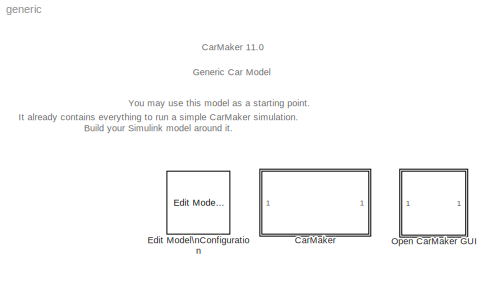
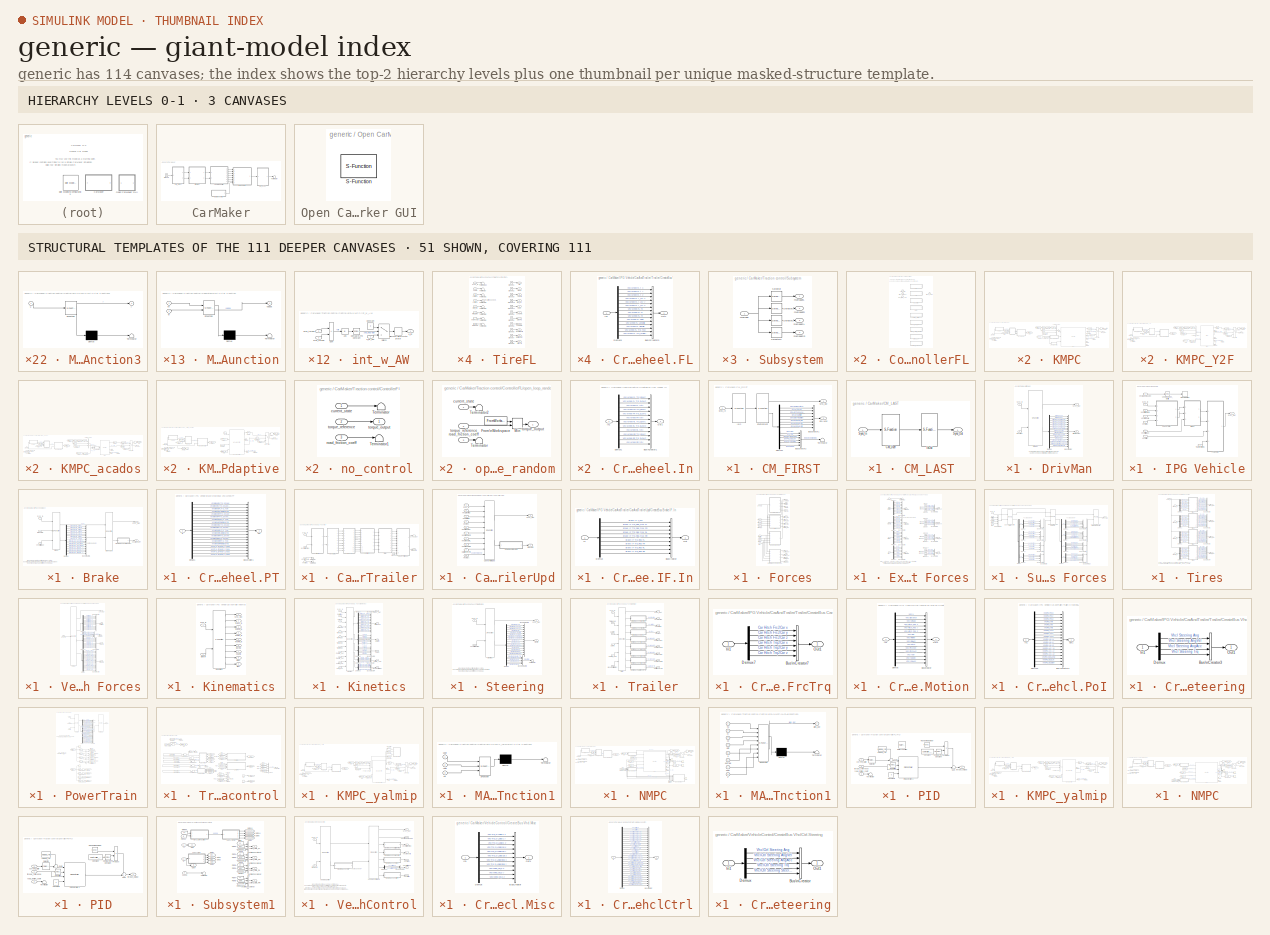
[diagram: thumbnail index - top-2 hierarchy levels (3 canvases) + 51 structural-template representatives of the remaining 111 canvases]
MODEL generic
KIND model
BLOCK [SubSystem] CarMaker
  Ports = []
  RequestExecContextInheritance = off
  SID = 1726
  TreatAsAtomicUnit = on
BLOCK [SubSystem] CarMaker/CM_FIRST
  Ports = [1, 2]
  RequestExecContextInheritance = off
  SID = 1730
BLOCK [BusCreator] CarMaker/CM_FIRST/BusCreator1
  InheritFromInputs = on
  Inputs = 8
  Ports = [8, 1]
  SID = 1732
BLOCK [BusCreator] CarMaker/CM_FIRST/BusCreator2
  InheritFromInputs = on
  Inputs = 6
  Ports = [6, 1]
  SID = 1733
BLOCK [Demux] CarMaker/CM_FIRST/Demux1
  DisplayOption = none
  Outputs = 14
  Ports = [1, 14]
  SID = 1734
BLOCK [Outport] CarMaker/CM_FIRST/Env.Misc
  Port = 2
  SID = 1739
  VectorParamsAs1DForOutWhenUnconnected = off
BLOCK [S-Function] CarMaker/CM_FIRST/Environment
  EnableBusSupport = off
  FunctionName = CM_Sfun
  Parameters = 'Environment'
  Ports = [1, 2]
  SFcnIsStateOwnerBlock = off
  SFunctionDeploymentMode = off
  SID = 1735
BLOCK [S-Function] CarMaker/CM_FIRST/IoIn
  EnableBusSupport = off
  FunctionName = CM_Sfun
  Parameters = 'IoIn'
  Ports = [1, 1]
  SFcnIsStateOwnerBlock = off
  SFunctionDeploymentMode = off
  SID = 1736
BLOCK [Inport] CarMaker/CM_FIRST/Sync_In
  SID = 1731
BLOCK [Outport] CarMaker/CM_FIRST/Sync_Out
  SID = 1738
  VectorParamsAs1DForOutWhenUnconnected = off
BLOCK [Terminator] CarMaker/CM_FIRST/Terminator
  SID = 1737
BLOCK [SubSystem] CarMaker/CM_LAST
  Ports = [1, 1]
  RequestExecContextInheritance = off
  SID = 1740
BLOCK [S-Function] CarMaker/CM_LAST/CM_User
  EnableBusSupport = off
  FunctionName = CM_Sfun
  Parameters = 'CM_User'
  Ports = [1, 1]
  SFcnIsStateOwnerBlock = off
  SFunctionDeploymentMode = off
  SID = 1742
BLOCK [S-Function] CarMaker/CM_LAST/IoOut
  EnableBusSupport = off
  FunctionName = CM_Sfun
  Parameters = 'IoOut'
  Ports = [1, 1]
  SFcnIsStateOwnerBlock = off
  SFunctionDeploymentMode = off
  SID = 1743
BLOCK [Inport] CarMaker/CM_LAST/Sync_In
  SID = 1741
BLOCK [Outport] CarMaker/CM_LAST/Sync_Out
  SID = 1744
  VectorParamsAs1DForOutWhenUnconnected = off
BLOCK [SubSystem] CarMaker/DrivMan
  Ports = [2, 2]
  RequestExecContextInheritance = off
  SID = 1745
BLOCK [BusCreator] CarMaker/DrivMan/BusCreator
  InheritFromInputs = on
  Inputs = 17
  Ports = [17, 1]
  SID = 1748
BLOCK [Demux] CarMaker/DrivMan/Demux
  DisplayOption = none
  Outputs = 17
  Ports = [1, 17]
  SID = 1749
BLOCK [S-Function] CarMaker/DrivMan/DrivMan
  EnableBusSupport = off
  FunctionName = CM_Sfun
  Parameters = 'DrivMan'
  Ports = [2, 2]
  SFcnIsStateOwnerBlock = off
  SFunctionDeploymentMode = off
  SID = 1750
BLOCK [Outport] CarMaker/DrivMan/DrivMan.Out
  Port = 2
  SID = 1752
  VectorParamsAs1DForOutWhenUnconnected = off
BLOCK [Inport] CarMaker/DrivMan/Env.Misc
  Port = 2
  SID = 1747
BLOCK [Inport] CarMaker/DrivMan/Sync_In
  SID = 1746
BLOCK [Outport] CarMaker/DrivMan/Sync_Out
  SID = 1751
  VectorParamsAs1DForOutWhenUnconnected = off
BLOCK [Ground] CarMaker/Ground
  SID = 1754
BLOCK [SubSystem] CarMaker/IPG Vehicle
  Ports = [8, 1]
  RequestExecContextInheritance = off
  SID = 1755
BLOCK [SubSystem] CarMaker/IPG Vehicle/Brake
  Ports = [3, 2]
  RequestExecContextInheritance = off
  SID = 1763
BLOCK [S-Function] CarMaker/IPG Vehicle/Brake/Brake
  EnableBusSupport = off
  FunctionName = CM_Sfun
  Parameters = 'Brake'
  Ports = [3, 2]
  SFcnIsStateOwnerBlock = off
  SFunctionDeploymentMode = off
  SID = 1767
BLOCK [Inport] CarMaker/IPG Vehicle/Brake/Brake.IF.In
  Port = 2
  SID = 1765
BLOCK [S-Function] CarMaker/IPG Vehicle/Brake/BrakeUpd
  EnableBusSupport = off
  FunctionName = CM_Sfun
  Parameters = 'BrakeUpd'
  Ports = [2, 2]
  SFcnIsStateOwnerBlock = off
  SFunctionDeploymentMode = off
  SID = 1768
BLOCK [BusCreator] CarMaker/IPG Vehicle/Brake/BusCreator1
  InheritFromInputs = on
  Inputs = 16
  Ports = [16, 1]
  SID = 1769
BLOCK [SubSystem] CarMaker/IPG Vehicle/Brake/CreateBus Vhcl.Wheel.PT
  Ports = [1, 1]
  RequestExecContextInheritance = off
  SID = 1770
BLOCK [BusCreator] CarMaker/IPG Vehicle/Brake/CreateBus Vhcl.Wheel.PT/BusCreator1
  InheritFromInputs = on
  Inputs = 20
  Ports = [20, 1]
  SID = 1772
BLOCK [Demux] CarMaker/IPG Vehicle/Brake/CreateBus Vhcl.Wheel.PT/Demux1
  DisplayOption = none
  Outputs = 20
  Ports = [1, 20]
  SID = 1773
BLOCK [Inport] CarMaker/IPG Vehicle/Brake/CreateBus Vhcl.Wheel.PT/In
  SID = 1771
BLOCK [Outport] CarMaker/IPG Vehicle/Brake/CreateBus Vhcl.Wheel.PT/Out
  SID = 1774
  VectorParamsAs1DForOutWhenUnconnected = off
BLOCK [Demux] CarMaker/IPG Vehicle/Brake/Demux
  DisplayOption = none
  Outputs = 16
  Ports = [1, 16]
  SID = 1775
BLOCK [Inport] CarMaker/IPG Vehicle/Brake/Sync_In
  SID = 1764
BLOCK [Outport] CarMaker/IPG Vehicle/Brake/Sync_Out
  SID = 1776
  VectorParamsAs1DForOutWhenUnconnected = off
BLOCK [Outport] CarMaker/IPG Vehicle/Brake/Vhcl.Wheel.PT
  Port = 2
  SID = 1777
  VectorParamsAs1DForOutWhenUnconnected = off
BLOCK [Inport] CarMaker/IPG Vehicle/Brake/VhclCtrl.Brake
  Port = 3
  SID = 1766
BLOCK [SubSystem] CarMaker/IPG Vehicle/CarAndTrailer
  Ports = [4, 2]
  RequestExecContextInheritance = off
  SID = 1780
BLOCK [Outport] CarMaker/IPG Vehicle/CarAndTrailer/Brake.IF.In
  Port = 2
  SID = 2180
  VectorParamsAs1DForOutWhenUnconnected = off
BLOCK [SubSystem] CarMaker/IPG Vehicle/CarAndTrailer/CarAndTrailerUpd
  Ports = [10, 2]
  RequestExecContextInheritance = off
  SID = 1785
BLOCK [Outport] CarMaker/IPG Vehicle/CarAndTrailer/CarAndTrailerUpd/Brake.IF.In
  Port = 2
  SID = 1803
  VectorParamsAs1DForOutWhenUnconnected = off
BLOCK [Inport] CarMaker/IPG Vehicle/CarAndTrailer/CarAndTrailerUpd/Car.Hitch.FrcTrq
  Port = 9
  SID = 1794
BLOCK [S-Function] CarMaker/IPG Vehicle/CarAndTrailer/CarAndTrailerUpd/CarAndTrailerUpd
  EnableBusSupport = off
  FunctionName = CM_Sfun
  Parameters = 'CarAndTrUpd'
  Ports = [10, 2]
  SFcnIsStateOwnerBlock = off
  SFunctionDeploymentMode = off
  SID = 1796
BLOCK [SubSystem] CarMaker/IPG Vehicle/CarAndTrailer/CarAndTrailerUpd/CreateBus Brake.IF.In
  Ports = [1, 1]
  RequestExecContextInheritance = off
  SID = 1797
BLOCK [BusCreator] CarMaker/IPG Vehicle/CarAndTrailer/CarAndTrailerUpd/CreateBus Brake.IF.In/BusCreator
  InheritFromInputs = on
  Inputs = 9
  Ports = [9, 1]
  SID = 1799
BLOCK [Demux] CarMaker/IPG Vehicle/CarAndTrailer/CarAndTrailerUpd/CreateBus Brake.IF.In/Demux
  DisplayOption = none
  Outputs = 9
  Ports = [1, 9]
  SID = 1800
BLOCK [Inport] CarMaker/IPG Vehicle/CarAndTrailer/CarAndTrailerUpd/CreateBus Brake.IF.In/In
  SID = 1798
BLOCK [Outport] CarMaker/IPG Vehicle/CarAndTrailer/CarAndTrailerUpd/CreateBus Brake.IF.In/Out
  SID = 1801
  VectorParamsAs1DForOutWhenUnconnected = off
BLOCK [Inport] CarMaker/IPG Vehicle/CarAndTrailer/CarAndTrailerUpd/Sync_In
  SID = 1786
BLOCK [Outport] CarMaker/IPG Vehicle/CarAndTrailer/CarAndTrailerUpd/Sync_Out
  SID = 1802
  VectorParamsAs1DForOutWhenUnconnected = off
BLOCK [Inport] CarMaker/IPG Vehicle/CarAndTrailer/CarAndTrailerUpd/Vhcl.Fr1A
  Port = 10
  SID = 1795
BLOCK [Inport] CarMaker/IPG Vehicle/CarAndTrailer/CarAndTrailerUpd/Vhcl.Motion
  Port = 3
  SID = 1788
BLOCK [Inport] CarMaker/IPG Vehicle/CarAndTrailer/CarAndTrailerUpd/Vhcl.PoI
  Port = 4
  SID = 1789
BLOCK [Inport] CarMaker/IPG Vehicle/CarAndTrailer/CarAndTrailerUpd/Vhcl.Steering
  Port = 2
  SID = 1787
BLOCK [Inport] CarMaker/IPG Vehicle/CarAndTrailer/CarAndTrailerUpd/Vhcl.Wheel.FL
  Port = 5
  SID = 1790
BLOCK [Inport] CarMaker/IPG Vehicle/CarAndTrailer/CarAndTrailerUpd/Vhcl.Wheel.FR
  Port = 6
  SID = 1791
BLOCK [Inport] CarMaker/IPG Vehicle/CarAndTrailer/CarAndTrailerUpd/Vhcl.Wheel.RL
  Port = 7
  SID = 1792
BLOCK [Inport] CarMaker/IPG Vehicle/CarAndTrailer/CarAndTrailerUpd/Vhcl.Wheel.RR
  Port = 8
  SID = 1793
BLOCK [SubSystem] CarMaker/IPG Vehicle/CarAndTrailer/Forces
  Ports = [9, 12]
  RequestExecContextInheritance = off
  SID = 1804
BLOCK [Outport] CarMaker/IPG Vehicle/CarAndTrailer/Forces/Car.Aero
  Port = 3
  SID = 2055
  VectorParamsAs1DForOutWhenUnconnected = off
BLOCK [Outport] CarMaker/IPG Vehicle/CarAndTrailer/Forces/Car.Load
  Port = 4
  SID = 2056
  VectorParamsAs1DForOutWhenUnconnected = off
BLOCK [Outport] CarMaker/IPG Vehicle/CarAndTrailer/Forces/Car.Virtual
  Port = 2
  SID = 2054
  VectorParamsAs1DForOutWhenUnconnected = off
BLOCK [SubSystem] CarMaker/IPG Vehicle/CarAndTrailer/Forces/External Suspension Forces
  Ports = [5, 4]
  RequestExecContextInheritance = off
  SID = 1814
BLOCK [BusCreator] CarMaker/IPG Vehicle/CarAndTrailer/Forces/External Suspension Forces/Bus\nCreator
  DisplayOption = bar
  InheritFromInputs = on
  Inputs = 8
  Ports = [8, 1]
  SID = 1820
BLOCK [BusCreator] CarMaker/IPG Vehicle/CarAndTrailer/Forces/External Suspension Forces/Bus\nCreator1
  DisplayOption = bar
  InheritFromInputs = on
  Inputs = 4
  Ports = [4, 1]
  SID = 1821
BLOCK [BusCreator] CarMaker/IPG Vehicle/CarAndTrailer/Forces/External Suspension Forces/Bus\nCreator2
  DisplayOption = bar
  InheritFromInputs = on
  Inputs = 4
  Ports = [4, 1]
  SID = 1822
BLOCK [BusCreator] CarMaker/IPG Vehicle/CarAndTrailer/Forces/External Suspension Forces/Bus\nCreator3
  DisplayOption = bar
  InheritFromInputs = on
  Inputs = 4
  Ports = [4, 1]
  SID = 1823
BLOCK [BusCreator] CarMaker/IPG Vehicle/CarAndTrailer/Forces/External Suspension Forces/Bus\nCreator4
  DisplayOption = bar
  InheritFromInputs = on
  Inputs = 4
  Ports = [4, 1]
  SID = 1824
BLOCK [BusCreator] CarMaker/IPG Vehicle/CarAndTrailer/Forces/External Suspension Forces/Bus\nCreator5
  DisplayOption = bar
  InheritFromInputs = on
  Inputs = 8
  Ports = [8, 1]
  SID = 1825
BLOCK [BusCreator] CarMaker/IPG Vehicle/CarAndTrailer/Forces/External Suspension Forces/Bus\nCreator6
  DisplayOption = bar
  InheritFromInputs = on
  Inputs = 8
  Ports = [8, 1]
  SID = 1826
BLOCK [BusCreator] CarMaker/IPG Vehicle/CarAndTrailer/Forces/External Suspension Forces/Bus\nCreator7
  DisplayOption = bar
  InheritFromInputs = on
  Inputs = 8
  Ports = [8, 1]
  SID = 1827
BLOCK [Demux] CarMaker/IPG Vehicle/CarAndTrailer/Forces/External Suspension Forces/Demux1
  DisplayOption = none
  Outputs = 8
  Ports = [1, 8]
  SID = 1828
BLOCK [Demux] CarMaker/IPG Vehicle/CarAndTrailer/Forces/External Suspension Forces/Demux2
  DisplayOption = none
  Outputs = 8
  Ports = [1, 8]
  SID = 1829
BLOCK [Demux] CarMaker/IPG Vehicle/CarAndTrailer/Forces/External Suspension Forces/Demux3
  DisplayOption = none
  Outputs = 8
  Ports = [1, 8]
  SID = 1830
BLOCK [Demux] CarMaker/IPG Vehicle/CarAndTrailer/Forces/External Suspension Forces/Demux4
  DisplayOption = none
  Outputs = 8
  Ports = [1, 8]
  SID = 1831
BLOCK [Outport] CarMaker/IPG Vehicle/CarAndTrailer/Forces/External Suspension Forces/FBuf_ext
  Port = 4
  SID = 1856
  VectorParamsAs1DForOutWhenUnconnected = off
BLOCK [Outport] CarMaker/IPG Vehicle/CarAndTrailer/Forces/External Suspension Forces/FDamp_ext
  Port = 2
  SID = 1854
  VectorParamsAs1DForOutWhenUnconnected = off
BLOCK [Outport] CarMaker/IPG Vehicle/CarAndTrailer/Forces/External Suspension Forces/FSpring_ext
  SID = 1853
  VectorParamsAs1DForOutWhenUnconnected = off
BLOCK [Outport] CarMaker/IPG Vehicle/CarAndTrailer/Forces/External Suspension Forces/FStabi_ext
  Port = 3
  SID = 1855
  VectorParamsAs1DForOutWhenUnconnected = off
BLOCK [Ground] CarMaker/IPG Vehicle/CarAndTrailer/Forces/External Suspension Forces/Ground
  SID = 1832
BLOCK [Ground] CarMaker/IPG Vehicle/CarAndTrailer/Forces/External Suspension Forces/Ground1
  SID = 1833
BLOCK [Ground] CarMaker/IPG Vehicle/CarAndTrailer/Forces/External Suspension Forces/Ground10
  SID = 1834
BLOCK [Ground] CarMaker/IPG Vehicle/CarAndTrailer/Forces/External Suspension Forces/Ground11
  SID = 1835
BLOCK [Ground] CarMaker/IPG Vehicle/CarAndTrailer/Forces/External Suspension Forces/Ground12
  SID = 1836
BLOCK [Ground] CarMaker/IPG Vehicle/CarAndTrailer/Forces/External Suspension Forces/Ground13
  SID = 1837
BLOCK [Ground] CarMaker/IPG Vehicle/CarAndTrailer/Forces/External Suspension Forces/Ground14
  SID = 1838
BLOCK [Ground] CarMaker/IPG Vehicle/CarAndTrailer/Forces/External Suspension Forces/Ground15
  SID = 1839
BLOCK [Ground] CarMaker/IPG Vehicle/CarAndTrailer/Forces/External Suspension Forces/Ground2
  SID = 1840
BLOCK [Ground] CarMaker/IPG Vehicle/CarAndTrailer/Forces/External Suspension Forces/Ground3
  SID = 1841
BLOCK [Ground] CarMaker/IPG Vehicle/CarAndTrailer/Forces/External Suspension Forces/Ground4
  SID = 1842
BLOCK [Ground] CarMaker/IPG Vehicle/CarAndTrailer/Forces/External Suspension Forces/Ground5
  SID = 1843
BLOCK [Ground] CarMaker/IPG Vehicle/CarAndTrailer/Forces/External Suspension Forces/Ground6
  SID = 1844
BLOCK [Ground] CarMaker/IPG Vehicle/CarAndTrailer/Forces/External Suspension Forces/Ground7
  SID = 1845
BLOCK [Ground] CarMaker/IPG Vehicle/CarAndTrailer/Forces/External Suspension Forces/Ground8
  SID = 1846
BLOCK [Ground] CarMaker/IPG Vehicle/CarAndTrailer/Forces/External Suspension Forces/Ground9
  SID = 1847
BLOCK [Inport] CarMaker/IPG Vehicle/CarAndTrailer/Forces/External Suspension Forces/Sync_In
  SID = 1815
BLOCK [Terminator] CarMaker/IPG Vehicle/CarAndTrailer/Forces/External Suspension Forces/Terminator1
  SID = 1848
BLOCK [Terminator] CarMaker/IPG Vehicle/CarAndTrailer/Forces/External Suspension Forces/Terminator12
  SID = 1849
BLOCK [Terminator] CarMaker/IPG Vehicle/CarAndTrailer/Forces/External Suspension Forces/Terminator2
  SID = 1850
BLOCK [Terminator] CarMaker/IPG Vehicle/CarAndTrailer/Forces/External Suspension Forces/Terminator3
  SID = 1851
BLOCK [Terminator] CarMaker/IPG Vehicle/CarAndTrailer/Forces/External Suspension Forces/Terminator4
  SID = 1852
BLOCK [Inport] CarMaker/IPG Vehicle/CarAndTrailer/Forces/External Suspension Forces/lBuf
  Port = 5
  SID = 1819
BLOCK [Inport] CarMaker/IPG Vehicle/CarAndTrailer/Forces/External Suspension Forces/lSpring
  Port = 2
  SID = 1816
BLOCK [Inport] CarMaker/IPG Vehicle/CarAndTrailer/Forces/External Suspension Forces/lStabi
  Port = 4
  SID = 1818
BLOCK [Inport] CarMaker/IPG Vehicle/CarAndTrailer/Forces/External Suspension Forces/vDamp
  Port = 3
  SID = 1817
BLOCK [Outport] CarMaker/IPG Vehicle/CarAndTrailer/Forces/FBuf_ext
  Port = 12
  SID = 2064
  VectorParamsAs1DForOutWhenUnconnected = off
BLOCK [Outport] CarMaker/IPG Vehicle/CarAndTrailer/Forces/FDamp_ext
  Port = 10
  SID = 2062
  VectorParamsAs1DForOutWhenUnconnected = off
BLOCK [Outport] CarMaker/IPG Vehicle/CarAndTrailer/Forces/FSpring_ext
  Port = 9
  SID = 2061
  VectorParamsAs1DForOutWhenUnconnected = off
BLOCK [Outport] CarMaker/IPG Vehicle/CarAndTrailer/Forces/FStabi_ext
  Port = 11
  SID = 2063
  VectorParamsAs1DForOutWhenUnconnected = off
BLOCK [SubSystem] CarMaker/IPG Vehicle/CarAndTrailer/Forces/Suspension Forces
  Ports = [5, 1]
  RequestExecContextInheritance = off
  SID = 2237
BLOCK [BusCreator] CarMaker/IPG Vehicle/CarAndTrailer/Forces/Suspension Forces/Bus\nCreator
  DisplayOption = bar
  InheritFromInputs = on
  Inputs = 4
  Ports = [4, 1]
  SID = 2243
BLOCK [BusCreator] CarMaker/IPG Vehicle/CarAndTrailer/Forces/Suspension Forces/Bus\nCreator1
  DisplayOption = bar
  InheritFromInputs = on
  Inputs = 4
  Ports = [4, 1]
  SID = 2244
BLOCK [BusCreator] CarMaker/IPG Vehicle/CarAndTrailer/Forces/Suspension Forces/Bus\nCreator10
  DisplayOption = bar
  InheritFromInputs = on
  Inputs = 4
  Ports = [4, 1]
  SID = 2245
BLOCK [BusCreator] CarMaker/IPG Vehicle/CarAndTrailer/Forces/Suspension Forces/Bus\nCreator2
  DisplayOption = bar
  InheritFromInputs = on
  Inputs = 4
  Ports = [4, 1]
  SID = 2246
BLOCK [BusCreator] CarMaker/IPG Vehicle/CarAndTrailer/Forces/Suspension Forces/Bus\nCreator3
  DisplayOption = bar
  InheritFromInputs = on
  Inputs = 4
  Ports = [4, 1]
  SID = 2247
BLOCK [BusCreator] CarMaker/IPG Vehicle/CarAndTrailer/Forces/Suspension Forces/Bus\nCreator4
  DisplayOption = bar
  InheritFromInputs = on
  Inputs = 6
  Ports = [6, 1]
  SID = 2248
BLOCK [BusCreator] CarMaker/IPG Vehicle/CarAndTrailer/Forces/Suspension Forces/Bus\nCreator5
  DisplayOption = bar
  InheritFromInputs = on
  Inputs = 6
  Ports = [6, 1]
  SID = 2249
BLOCK [BusCreator] CarMaker/IPG Vehicle/CarAndTrailer/Forces/Suspension Forces/Bus\nCreator6
  DisplayOption = bar
  InheritFromInputs = on
  Inputs = 6
  Ports = [6, 1]
  SID = 2250
BLOCK [BusCreator] CarMaker/IPG Vehicle/CarAndTrailer/Forces/Suspension Forces/Bus\nCreator7
  DisplayOption = bar
  InheritFromInputs = on
  Inputs = 6
  Ports = [6, 1]
  SID = 2251
BLOCK [BusCreator] CarMaker/IPG Vehicle/CarAndTrailer/Forces/Suspension Forces/Bus\nCreator8
  DisplayOption = bar
  InheritFromInputs = on
  Inputs = 4
  Ports = [4, 1]
  SID = 2252
BLOCK [BusCreator] CarMaker/IPG Vehicle/CarAndTrailer/Forces/Suspension Forces/Bus\nCreator9
  DisplayOption = bar
  InheritFromInputs = on
  Inputs = 4
  Ports = [4, 1]
  SID = 2253
BLOCK [Demux] CarMaker/IPG Vehicle/CarAndTrailer/Forces/Suspension Forces/Demux
  Ports = [1, 4]
  SID = 2254
BLOCK [Demux] CarMaker/IPG Vehicle/CarAndTrailer/Forces/Suspension Forces/Demux1
  Ports = [1, 4]
  SID = 2255
BLOCK [Demux] CarMaker/IPG Vehicle/CarAndTrailer/Forces/Suspension Forces/Demux2
  Ports = [1, 4]
  SID = 2256
BLOCK [Demux] CarMaker/IPG Vehicle/CarAndTrailer/Forces/Suspension Forces/Demux3
  Ports = [1, 4]
  SID = 2257
BLOCK [Demux] CarMaker/IPG Vehicle/CarAndTrailer/Forces/Suspension Forces/Demux4
  Ports = [1, 4]
  SID = 2258
BLOCK [Demux] CarMaker/IPG Vehicle/CarAndTrailer/Forces/Suspension Forces/Demux5
  Ports = [1, 4]
  SID = 2259
BLOCK [Demux] CarMaker/IPG Vehicle/CarAndTrailer/Forces/Suspension Forces/Demux6
  Outputs = 6
  Ports = [1, 6]
  SID = 2260
BLOCK [Demux] CarMaker/IPG Vehicle/CarAndTrailer/Forces/Suspension Forces/Demux7
  Outputs = 6
  Ports = [1, 6]
  SID = 2261
BLOCK [Demux] CarMaker/IPG Vehicle/CarAndTrailer/Forces/Suspension Forces/Demux8
  Outputs = 6
  Ports = [1, 6]
  SID = 2262
BLOCK [Demux] CarMaker/IPG Vehicle/CarAndTrailer/Forces/Suspension Forces/Demux9
  Outputs = 6
  Ports = [1, 6]
  SID = 2263
BLOCK [S-Function] CarMaker/IPG Vehicle/CarAndTrailer/Forces/Suspension Forces/Suspension Control Unit
  EnableBusSupport = off
  FunctionName = CM_Sfun
  Parameters = 'ForcesSuspControl'
  Ports = [2, 2]
  SFcnIsStateOwnerBlock = off
  SFunctionDeploymentMode = off
  SID = 2264
BLOCK [S-Function] CarMaker/IPG Vehicle/CarAndTrailer/Forces/Suspension Forces/Suspension Force Elements
  EnableBusSupport = off
  FunctionName = CM_Sfun
  Parameters = 'ForcesSusp'
  Ports = [3, 2]
  SFcnIsStateOwnerBlock = off
  SFunctionDeploymentMode = off
  SID = 2265
BLOCK [S-Function] CarMaker/IPG Vehicle/CarAndTrailer/Forces/Suspension Forces/Suspension Force Elements Update
  EnableBusSupport = off
  FunctionName = CM_Sfun
  Parameters = 'ForcesSuspUpd'
  Ports = [2, 1]
  SFcnIsStateOwnerBlock = off
  SFunctionDeploymentMode = off
  SID = 2266
BLOCK [Inport] CarMaker/IPG Vehicle/CarAndTrailer/Forces/Suspension Forces/Sync_In
  SID = 2238
BLOCK [Outport] CarMaker/IPG Vehicle/CarAndTrailer/Forces/Suspension Forces/Sync_Out
  SID = 2267
  VectorParamsAs1DForOutWhenUnconnected = off
BLOCK [Inport] CarMaker/IPG Vehicle/CarAndTrailer/Forces/Suspension Forces/lBuf
  Port = 5
  SID = 2242
BLOCK [Inport] CarMaker/IPG Vehicle/CarAndTrailer/Forces/Suspension Forces/lSpring
  Port = 2
  SID = 2239
BLOCK [Inport] CarMaker/IPG Vehicle/CarAndTrailer/Forces/Suspension Forces/lStabi
  Port = 4
  SID = 2241
BLOCK [Inport] CarMaker/IPG Vehicle/CarAndTrailer/Forces/Suspension Forces/vDamp
  Port = 3
  SID = 2240
BLOCK [Inport] CarMaker/IPG Vehicle/CarAndTrailer/Forces/Sync_In
  SID = 1805
BLOCK [Outport] CarMaker/IPG Vehicle/CarAndTrailer/Forces/Sync_Out
  SID = 2053
  VectorParamsAs1DForOutWhenUnconnected = off
BLOCK [Inport] CarMaker/IPG Vehicle/CarAndTrailer/Forces/TireFL_In
  Port = 2
  SID = 1806
BLOCK [Outport] CarMaker/IPG Vehicle/CarAndTrailer/Forces/TireFL_Out
  Port = 5
  SID = 2057
  VectorParamsAs1DForOutWhenUnconnected = off
BLOCK [Inport] CarMaker/IPG Vehicle/CarAndTrailer/Forces/TireFR_In
  Port = 3
  SID = 1807
BLOCK [Outport] CarMaker/IPG Vehicle/CarAndTrailer/Forces/TireFR_Out
  Port = 6
  SID = 2058
  VectorParamsAs1DForOutWhenUnconnected = off
BLOCK [Inport] CarMaker/IPG Vehicle/CarAndTrailer/Forces/TireRL_In
  Port = 4
  SID = 1808
BLOCK [Outport] CarMaker/IPG Vehicle/CarAndTrailer/Forces/TireRL_Out
  Port = 7
  SID = 2059
  VectorParamsAs1DForOutWhenUnconnected = off
BLOCK [Inport] CarMaker/IPG Vehicle/CarAndTrailer/Forces/TireRR_In
  Port = 5
  SID = 1809
BLOCK [Outport] CarMaker/IPG Vehicle/CarAndTrailer/Forces/TireRR_Out
  Port = 8
  SID = 2060
  VectorParamsAs1DForOutWhenUnconnected = off
BLOCK [SubSystem] CarMaker/IPG Vehicle/CarAndTrailer/Forces/Tires
  Ports = [5, 4]
  RequestExecContextInheritance = off
  SID = 1859
BLOCK [BusCreator] CarMaker/IPG Vehicle/CarAndTrailer/Forces/Tires/Bus\nCreator1
  DisplayOption = bar
  InheritFromInputs = on
  Inputs = 11
  Ports = [11, 1]
  SID = 1865
BLOCK [BusCreator] CarMaker/IPG Vehicle/CarAndTrailer/Forces/Tires/Bus\nCreator2
  DisplayOption = bar
  InheritFromInputs = on
  Inputs = 11
  Ports = [11, 1]
  SID = 1866
BLOCK [BusCreator] CarMaker/IPG Vehicle/CarAndTrailer/Forces/Tires/Bus\nCreator3
  DisplayOption = bar
  InheritFromInputs = on
  Inputs = 11
  Ports = [11, 1]
  SID = 1867
BLOCK [BusCreator] CarMaker/IPG Vehicle/CarAndTrailer/Forces/Tires/Bus\nCreator4
  DisplayOption = bar
  InheritFromInputs = on
  Inputs = 11
  Ports = [11, 1]
  SID = 1868
BLOCK [Demux] CarMaker/IPG Vehicle/CarAndTrailer/Forces/Tires/Demux1
  DisplayOption = none
  Outputs = 7
  Ports = [1, 7]
  SID = 1869
BLOCK [Demux] CarMaker/IPG Vehicle/CarAndTrailer/Forces/Tires/Demux2
  DisplayOption = none
  Outputs = 7
  Ports = [1, 7]
  SID = 1870
BLOCK [Demux] CarMaker/IPG Vehicle/CarAndTrailer/Forces/Tires/Demux3
  DisplayOption = none
  Outputs = 7
  Ports = [1, 7]
  SID = 1871
BLOCK [Demux] CarMaker/IPG Vehicle/CarAndTrailer/Forces/Tires/Demux8
  DisplayOption = none
  Outputs = 7
  Ports = [1, 7]
  SID = 1872
BLOCK [Inport] CarMaker/IPG Vehicle/CarAndTrailer/Forces/Tires/Sync_In
  SID = 1860
BLOCK [SubSystem] CarMaker/IPG Vehicle/CarAndTrailer/Forces/Tires/TireFL
  Ports = [8, 11]
  RequestExecContextInheritance = off
  SID = 1873
BLOCK [Outport] CarMaker/IPG Vehicle/CarAndTrailer/Forces/Tires/TireFL/AlignTrq
  Port = 11
  SID = 1911
  VectorParamsAs1DForOutWhenUnconnected = off
BLOCK [Outport] CarMaker/IPG Vehicle/CarAndTrailer/Forces/Tires/TireFL/Alpha
  Port = 2
  SID = 1902
  VectorParamsAs1DForOutWhenUnconnected = off
BLOCK [Ground] CarMaker/IPG Vehicle/CarAndTrailer/Forces/Tires/TireFL/Ground1
  SID = 1882
BLOCK [Ground] CarMaker/IPG Vehicle/CarAndTrailer/Forces/Tires/TireFL/Ground10
  SID = 1883
BLOCK [Ground] CarMaker/IPG Vehicle/CarAndTrailer/Forces/Tires/TireFL/Ground11
  SID = 1884
BLOCK [Ground] CarMaker/IPG Vehicle/CarAndTrailer/Forces/Tires/TireFL/Ground2
  SID = 1885
BLOCK [Ground] CarMaker/IPG Vehicle/CarAndTrailer/Forces/Tires/TireFL/Ground3
  SID = 1886
BLOCK [Ground] CarMaker/IPG Vehicle/CarAndTrailer/Forces/Tires/TireFL/Ground4
  SID = 1887
BLOCK [Ground] CarMaker/IPG Vehicle/CarAndTrailer/Forces/Tires/TireFL/Ground5
  SID = 1888
BLOCK [Ground] CarMaker/IPG Vehicle/CarAndTrailer/Forces/Tires/TireFL/Ground6
  SID = 1889
BLOCK [Ground] CarMaker/IPG Vehicle/CarAndTrailer/Forces/Tires/TireFL/Ground7
  SID = 1890
BLOCK [Ground] CarMaker/IPG Vehicle/CarAndTrailer/Forces/Tires/TireFL/Ground8
  SID = 1891
BLOCK [Ground] CarMaker/IPG Vehicle/CarAndTrailer/Forces/Tires/TireFL/Ground9
  SID = 1892
BLOCK [Inport] CarMaker/IPG Vehicle/CarAndTrailer/Forces/Tires/TireFL/InclinAngle
  Port = 7
  SID = 1880
BLOCK [Inport] CarMaker/IPG Vehicle/CarAndTrailer/Forces/Tires/TireFL/Load
  Port = 2
  SID = 1875
BLOCK [Outport] CarMaker/IPG Vehicle/CarAndTrailer/Forces/Tires/TireFL/LoadFrc
  Port = 8
  SID = 1908
  VectorParamsAs1DForOutWhenUnconnected = off
BLOCK [Outport] CarMaker/IPG Vehicle/CarAndTrailer/Forces/Tires/TireFL/LongFrc
  Port = 6
  SID = 1906
  VectorParamsAs1DForOutWhenUnconnected = off
BLOCK [Outport] CarMaker/IPG Vehicle/CarAndTrailer/Forces/Tires/TireFL/OverturnTrq
  Port = 9
  SID = 1909
  VectorParamsAs1DForOutWhenUnconnected = off
BLOCK [Inport] CarMaker/IPG Vehicle/CarAndTrailer/Forces/Tires/TireFL/Rim_rotv
  Port = 5
  SID = 1878
BLOCK [Inport] CarMaker/IPG Vehicle/CarAndTrailer/Forces/Tires/TireFL/Rim_turnv
  Port = 6
  SID = 1879
BLOCK [Outport] CarMaker/IPG Vehicle/CarAndTrailer/Forces/Tires/TireFL/RollResist
  Port = 10
  SID = 1910
  VectorParamsAs1DForOutWhenUnconnected = off
BLOCK [Outport] CarMaker/IPG Vehicle/CarAndTrailer/Forces/Tires/TireFL/SideFrc
  Port = 7
  SID = 1907
  VectorParamsAs1DForOutWhenUnconnected = off
BLOCK [Outport] CarMaker/IPG Vehicle/CarAndTrailer/Forces/Tires/TireFL/Slp
  SID = 1901
  VectorParamsAs1DForOutWhenUnconnected = off
BLOCK [Inport] CarMaker/IPG Vehicle/CarAndTrailer/Forces/Tires/TireFL/Sync_In
  SID = 1874
BLOCK [Terminator] CarMaker/IPG Vehicle/CarAndTrailer/Forces/Tires/TireFL/Terminator
  SID = 1893
BLOCK [Terminator] CarMaker/IPG Vehicle/CarAndTrailer/Forces/Tires/TireFL/Terminator1
  SID = 1894
BLOCK [Terminator] CarMaker/IPG Vehicle/CarAndTrailer/Forces/Tires/TireFL/Terminator12
  SID = 1895
BLOCK [Terminator] CarMaker/IPG Vehicle/CarAndTrailer/Forces/Tires/TireFL/Terminator2
  SID = 1896
BLOCK [Terminator] CarMaker/IPG Vehicle/CarAndTrailer/Forces/Tires/TireFL/Terminator3
  SID = 1897
BLOCK [Terminator] CarMaker/IPG Vehicle/CarAndTrailer/Forces/Tires/TireFL/Terminator4
  SID = 1898
BLOCK [Terminator] CarMaker/IPG Vehicle/CarAndTrailer/Forces/Tires/TireFL/Terminator5
  SID = 1899
BLOCK [Terminator] CarMaker/IPG Vehicle/CarAndTrailer/Forces/Tires/TireFL/Terminator6
  SID = 1900
BLOCK [Outport] CarMaker/IPG Vehicle/CarAndTrailer/Forces/Tires/TireFL/TurnSlp
  Port = 3
  SID = 1903
  VectorParamsAs1DForOutWhenUnconnected = off
BLOCK [Inport] CarMaker/IPG Vehicle/CarAndTrailer/Forces/Tires/TireFL/muRoad
  Port = 8
  SID = 1881
BLOCK [Outport] CarMaker/IPG Vehicle/CarAndTrailer/Forces/Tires/TireFL/rBelt_eff
  Port = 4
  SID = 1904
  VectorParamsAs1DForOutWhenUnconnected = off
BLOCK [Outport] CarMaker/IPG Vehicle/CarAndTrailer/Forces/Tires/TireFL/vBelt
  Port = 5
  SID = 1905
  VectorParamsAs1DForOutWhenUnconnected = off
BLOCK [Inport] CarMaker/IPG Vehicle/CarAndTrailer/Forces/Tires/TireFL/vxtrans
  Port = 3
  SID = 1876
BLOCK [Inport] CarMaker/IPG Vehicle/CarAndTrailer/Forces/Tires/TireFL/vytrans
  Port = 4
  SID = 1877
BLOCK [Inport] CarMaker/IPG Vehicle/CarAndTrailer/Forces/Tires/TireFL_In
  Port = 2
  SID = 1861
BLOCK [Outport] CarMaker/IPG Vehicle/CarAndTrailer/Forces/Tires/TireFL_Out
  SID = 2033
  VectorParamsAs1DForOutWhenUnconnected = off
BLOCK [SubSystem] CarMaker/IPG Vehicle/CarAndTrailer/Forces/Tires/TireFR
  Ports = [8, 11]
  RequestExecContextInheritance = off
  SID = 1913
BLOCK [Outport] CarMaker/IPG Vehicle/CarAndTrailer/Forces/Tires/TireFR/AlignTrq
  Port = 11
  SID = 1951
  VectorParamsAs1DForOutWhenUnconnected = off
BLOCK [Outport] CarMaker/IPG Vehicle/CarAndTrailer/Forces/Tires/TireFR/Alpha
  Port = 2
  SID = 1942
  VectorParamsAs1DForOutWhenUnconnected = off
BLOCK [Ground] CarMaker/IPG Vehicle/CarAndTrailer/Forces/Tires/TireFR/Ground1
  SID = 1922
BLOCK [Ground] CarMaker/IPG Vehicle/CarAndTrailer/Forces/Tires/TireFR/Ground10
  SID = 1923
BLOCK [Ground] CarMaker/IPG Vehicle/CarAndTrailer/Forces/Tires/TireFR/Ground11
  SID = 1924
BLOCK [Ground] CarMaker/IPG Vehicle/CarAndTrailer/Forces/Tires/TireFR/Ground2
  SID = 1925
BLOCK [Ground] CarMaker/IPG Vehicle/CarAndTrailer/Forces/Tires/TireFR/Ground3
  SID = 1926
BLOCK [Ground] CarMaker/IPG Vehicle/CarAndTrailer/Forces/Tires/TireFR/Ground4
  SID = 1927
BLOCK [Ground] CarMaker/IPG Vehicle/CarAndTrailer/Forces/Tires/TireFR/Ground5
  SID = 1928
BLOCK [Ground] CarMaker/IPG Vehicle/CarAndTrailer/Forces/Tires/TireFR/Ground6
  SID = 1929
BLOCK [Ground] CarMaker/IPG Vehicle/CarAndTrailer/Forces/Tires/TireFR/Ground7
  SID = 1930
BLOCK [Ground] CarMaker/IPG Vehicle/CarAndTrailer/Forces/Tires/TireFR/Ground8
  SID = 1931
BLOCK [Ground] CarMaker/IPG Vehicle/CarAndTrailer/Forces/Tires/TireFR/Ground9
  SID = 1932
BLOCK [Inport] CarMaker/IPG Vehicle/CarAndTrailer/Forces/Tires/TireFR/InclinAngle
  Port = 7
  SID = 1920
BLOCK [Inport] CarMaker/IPG Vehicle/CarAndTrailer/Forces/Tires/TireFR/Load
  Port = 2
  SID = 1915
BLOCK [Outport] CarMaker/IPG Vehicle/CarAndTrailer/Forces/Tires/TireFR/LoadFrc
  Port = 8
  SID = 1948
  VectorParamsAs1DForOutWhenUnconnected = off
BLOCK [Outport] CarMaker/IPG Vehicle/CarAndTrailer/Forces/Tires/TireFR/LongFrc
  Port = 6
  SID = 1946
  VectorParamsAs1DForOutWhenUnconnected = off
BLOCK [Outport] CarMaker/IPG Vehicle/CarAndTrailer/Forces/Tires/TireFR/OverturnTrq
  Port = 9
  SID = 1949
  VectorParamsAs1DForOutWhenUnconnected = off
BLOCK [Inport] CarMaker/IPG Vehicle/CarAndTrailer/Forces/Tires/TireFR/Rim_rotv
  Port = 5
  SID = 1918
BLOCK [Inport] CarMaker/IPG Vehicle/CarAndTrailer/Forces/Tires/TireFR/Rim_turnv
  Port = 6
  SID = 1919
BLOCK [Outport] CarMaker/IPG Vehicle/CarAndTrailer/Forces/Tires/TireFR/RollResist
  Port = 10
  SID = 1950
  VectorParamsAs1DForOutWhenUnconnected = off
BLOCK [Outport] CarMaker/IPG Vehicle/CarAndTrailer/Forces/Tires/TireFR/SideFrc
  Port = 7
  SID = 1947
  VectorParamsAs1DForOutWhenUnconnected = off
BLOCK [Outport] CarMaker/IPG Vehicle/CarAndTrailer/Forces/Tires/TireFR/Slp
  SID = 1941
  VectorParamsAs1DForOutWhenUnconnected = off
BLOCK [Inport] CarMaker/IPG Vehicle/CarAndTrailer/Forces/Tires/TireFR/Sync_In
  SID = 1914
BLOCK [Terminator] CarMaker/IPG Vehicle/CarAndTrailer/Forces/Tires/TireFR/Terminator
  SID = 1933
BLOCK [Terminator] CarMaker/IPG Vehicle/CarAndTrailer/Forces/Tires/TireFR/Terminator1
  SID = 1934
BLOCK [Terminator] CarMaker/IPG Vehicle/CarAndTrailer/Forces/Tires/TireFR/Terminator12
  SID = 1935
BLOCK [Terminator] CarMaker/IPG Vehicle/CarAndTrailer/Forces/Tires/TireFR/Terminator2
  SID = 1936
BLOCK [Terminator] CarMaker/IPG Vehicle/CarAndTrailer/Forces/Tires/TireFR/Terminator3
  SID = 1937
BLOCK [Terminator] CarMaker/IPG Vehicle/CarAndTrailer/Forces/Tires/TireFR/Terminator4
  SID = 1938
BLOCK [Terminator] CarMaker/IPG Vehicle/CarAndTrailer/Forces/Tires/TireFR/Terminator5
  SID = 1939
BLOCK [Terminator] CarMaker/IPG Vehicle/CarAndTrailer/Forces/Tires/TireFR/Terminator6
  SID = 1940
BLOCK [Outport] CarMaker/IPG Vehicle/CarAndTrailer/Forces/Tires/TireFR/TurnSlp
  Port = 3
  SID = 1943
  VectorParamsAs1DForOutWhenUnconnected = off
BLOCK [Inport] CarMaker/IPG Vehicle/CarAndTrailer/Forces/Tires/TireFR/muRoad
  Port = 8
  SID = 1921
BLOCK [Outport] CarMaker/IPG Vehicle/CarAndTrailer/Forces/Tires/TireFR/rBelt_eff
  Port = 4
  SID = 1944
  VectorParamsAs1DForOutWhenUnconnected = off
BLOCK [Outport] CarMaker/IPG Vehicle/CarAndTrailer/Forces/Tires/TireFR/vBelt
  Port = 5
  SID = 1945
  VectorParamsAs1DForOutWhenUnconnected = off
BLOCK [Inport] CarMaker/IPG Vehicle/CarAndTrailer/Forces/Tires/TireFR/vxtrans
  Port = 3
  SID = 1916
BLOCK [Inport] CarMaker/IPG Vehicle/CarAndTrailer/Forces/Tires/TireFR/vytrans
  Port = 4
  SID = 1917
BLOCK [Inport] CarMaker/IPG Vehicle/CarAndTrailer/Forces/Tires/TireFR_In
  Port = 3
  SID = 1862
BLOCK [Outport] CarMaker/IPG Vehicle/CarAndTrailer/Forces/Tires/TireFR_Out
  Port = 2
  SID = 2034
  VectorParamsAs1DForOutWhenUnconnected = off
BLOCK [SubSystem] CarMaker/IPG Vehicle/CarAndTrailer/Forces/Tires/TireRL
  Ports = [8, 11]
  RequestExecContextInheritance = off
  SID = 1953
BLOCK [Outport] CarMaker/IPG Vehicle/CarAndTrailer/Forces/Tires/TireRL/AlignTrq
  Port = 11
  SID = 1991
  VectorParamsAs1DForOutWhenUnconnected = off
BLOCK [Outport] CarMaker/IPG Vehicle/CarAndTrailer/Forces/Tires/TireRL/Alpha
  Port = 2
  SID = 1982
  VectorParamsAs1DForOutWhenUnconnected = off
BLOCK [Ground] CarMaker/IPG Vehicle/CarAndTrailer/Forces/Tires/TireRL/Ground1
  SID = 1962
BLOCK [Ground] CarMaker/IPG Vehicle/CarAndTrailer/Forces/Tires/TireRL/Ground10
  SID = 1963
BLOCK [Ground] CarMaker/IPG Vehicle/CarAndTrailer/Forces/Tires/TireRL/Ground11
  SID = 1964
BLOCK [Ground] CarMaker/IPG Vehicle/CarAndTrailer/Forces/Tires/TireRL/Ground2
  SID = 1965
BLOCK [Ground] CarMaker/IPG Vehicle/CarAndTrailer/Forces/Tires/TireRL/Ground3
  SID = 1966
BLOCK [Ground] CarMaker/IPG Vehicle/CarAndTrailer/Forces/Tires/TireRL/Ground4
  SID = 1967
BLOCK [Ground] CarMaker/IPG Vehicle/CarAndTrailer/Forces/Tires/TireRL/Ground5
  SID = 1968
BLOCK [Ground] CarMaker/IPG Vehicle/CarAndTrailer/Forces/Tires/TireRL/Ground6
  SID = 1969
BLOCK [Ground] CarMaker/IPG Vehicle/CarAndTrailer/Forces/Tires/TireRL/Ground7
  SID = 1970
BLOCK [Ground] CarMaker/IPG Vehicle/CarAndTrailer/Forces/Tires/TireRL/Ground8
  SID = 1971
BLOCK [Ground] CarMaker/IPG Vehicle/CarAndTrailer/Forces/Tires/TireRL/Ground9
  SID = 1972
BLOCK [Inport] CarMaker/IPG Vehicle/CarAndTrailer/Forces/Tires/TireRL/InclinAngle
  Port = 7
  SID = 1960
BLOCK [Inport] CarMaker/IPG Vehicle/CarAndTrailer/Forces/Tires/TireRL/Load
  Port = 2
  SID = 1955
BLOCK [Outport] CarMaker/IPG Vehicle/CarAndTrailer/Forces/Tires/TireRL/LoadFrc
  Port = 8
  SID = 1988
  VectorParamsAs1DForOutWhenUnconnected = off
BLOCK [Outport] CarMaker/IPG Vehicle/CarAndTrailer/Forces/Tires/TireRL/LongFrc
  Port = 6
  SID = 1986
  VectorParamsAs1DForOutWhenUnconnected = off
BLOCK [Outport] CarMaker/IPG Vehicle/CarAndTrailer/Forces/Tires/TireRL/OverturnTrq
  Port = 9
  SID = 1989
  VectorParamsAs1DForOutWhenUnconnected = off
BLOCK [Inport] CarMaker/IPG Vehicle/CarAndTrailer/Forces/Tires/TireRL/Rim_rotv
  Port = 5
  SID = 1958
BLOCK [Inport] CarMaker/IPG Vehicle/CarAndTrailer/Forces/Tires/TireRL/Rim_turnv
  Port = 6
  SID = 1959
BLOCK [Outport] CarMaker/IPG Vehicle/CarAndTrailer/Forces/Tires/TireRL/RollResist
  Port = 10
  SID = 1990
  VectorParamsAs1DForOutWhenUnconnected = off
BLOCK [Outport] CarMaker/IPG Vehicle/CarAndTrailer/Forces/Tires/TireRL/SideFrc
  Port = 7
  SID = 1987
  VectorParamsAs1DForOutWhenUnconnected = off
BLOCK [Outport] CarMaker/IPG Vehicle/CarAndTrailer/Forces/Tires/TireRL/Slp
  SID = 1981
  VectorParamsAs1DForOutWhenUnconnected = off
BLOCK [Inport] CarMaker/IPG Vehicle/CarAndTrailer/Forces/Tires/TireRL/Sync_In
  SID = 1954
BLOCK [Terminator] CarMaker/IPG Vehicle/CarAndTrailer/Forces/Tires/TireRL/Terminator
  SID = 1973
BLOCK [Terminator] CarMaker/IPG Vehicle/CarAndTrailer/Forces/Tires/TireRL/Terminator1
  SID = 1974
BLOCK [Terminator] CarMaker/IPG Vehicle/CarAndTrailer/Forces/Tires/TireRL/Terminator12
  SID = 1975
BLOCK [Terminator] CarMaker/IPG Vehicle/CarAndTrailer/Forces/Tires/TireRL/Terminator2
  SID = 1976
BLOCK [Terminator] CarMaker/IPG Vehicle/CarAndTrailer/Forces/Tires/TireRL/Terminator3
  SID = 1977
BLOCK [Terminator] CarMaker/IPG Vehicle/CarAndTrailer/Forces/Tires/TireRL/Terminator4
  SID = 1978
BLOCK [Terminator] CarMaker/IPG Vehicle/CarAndTrailer/Forces/Tires/TireRL/Terminator5
  SID = 1979
BLOCK [Terminator] CarMaker/IPG Vehicle/CarAndTrailer/Forces/Tires/TireRL/Terminator6
  SID = 1980
BLOCK [Outport] CarMaker/IPG Vehicle/CarAndTrailer/Forces/Tires/TireRL/TurnSlp
  Port = 3
  SID = 1983
  VectorParamsAs1DForOutWhenUnconnected = off
BLOCK [Inport] CarMaker/IPG Vehicle/CarAndTrailer/Forces/Tires/TireRL/muRoad
  Port = 8
  SID = 1961
BLOCK [Outport] CarMaker/IPG Vehicle/CarAndTrailer/Forces/Tires/TireRL/rBelt_eff
  Port = 4
  SID = 1984
  VectorParamsAs1DForOutWhenUnconnected = off
BLOCK [Outport] CarMaker/IPG Vehicle/CarAndTrailer/Forces/Tires/TireRL/vBelt
  Port = 5
  SID = 1985
  VectorParamsAs1DForOutWhenUnconnected = off
BLOCK [Inport] CarMaker/IPG Vehicle/CarAndTrailer/Forces/Tires/TireRL/vxtrans
  Port = 3
  SID = 1956
BLOCK [Inport] CarMaker/IPG Vehicle/CarAndTrailer/Forces/Tires/TireRL/vytrans
  Port = 4
  SID = 1957
BLOCK [Inport] CarMaker/IPG Vehicle/CarAndTrailer/Forces/Tires/TireRL_In
  Port = 4
  SID = 1863
BLOCK [Outport] CarMaker/IPG Vehicle/CarAndTrailer/Forces/Tires/TireRL_Out
  Port = 3
  SID = 2035
  VectorParamsAs1DForOutWhenUnconnected = off
BLOCK [SubSystem] CarMaker/IPG Vehicle/CarAndTrailer/Forces/Tires/TireRR
  Ports = [8, 11]
  RequestExecContextInheritance = off
  SID = 1993
BLOCK [Outport] CarMaker/IPG Vehicle/CarAndTrailer/Forces/Tires/TireRR/AlignTrq
  Port = 11
  SID = 2031
  VectorParamsAs1DForOutWhenUnconnected = off
BLOCK [Outport] CarMaker/IPG Vehicle/CarAndTrailer/Forces/Tires/TireRR/Alpha
  Port = 2
  SID = 2022
  VectorParamsAs1DForOutWhenUnconnected = off
BLOCK [Ground] CarMaker/IPG Vehicle/CarAndTrailer/Forces/Tires/TireRR/Ground1
  SID = 2002
BLOCK [Ground] CarMaker/IPG Vehicle/CarAndTrailer/Forces/Tires/TireRR/Ground10
  SID = 2003
BLOCK [Ground] CarMaker/IPG Vehicle/CarAndTrailer/Forces/Tires/TireRR/Ground11
  SID = 2004
BLOCK [Ground] CarMaker/IPG Vehicle/CarAndTrailer/Forces/Tires/TireRR/Ground2
  SID = 2005
BLOCK [Ground] CarMaker/IPG Vehicle/CarAndTrailer/Forces/Tires/TireRR/Ground3
  SID = 2006
BLOCK [Ground] CarMaker/IPG Vehicle/CarAndTrailer/Forces/Tires/TireRR/Ground4
  SID = 2007
BLOCK [Ground] CarMaker/IPG Vehicle/CarAndTrailer/Forces/Tires/TireRR/Ground5
  SID = 2008
BLOCK [Ground] CarMaker/IPG Vehicle/CarAndTrailer/Forces/Tires/TireRR/Ground6
  SID = 2009
BLOCK [Ground] CarMaker/IPG Vehicle/CarAndTrailer/Forces/Tires/TireRR/Ground7
  SID = 2010
BLOCK [Ground] CarMaker/IPG Vehicle/CarAndTrailer/Forces/Tires/TireRR/Ground8
  SID = 2011
BLOCK [Ground] CarMaker/IPG Vehicle/CarAndTrailer/Forces/Tires/TireRR/Ground9
  SID = 2012
BLOCK [Inport] CarMaker/IPG Vehicle/CarAndTrailer/Forces/Tires/TireRR/InclinAngle
  Port = 7
  SID = 2000
BLOCK [Inport] CarMaker/IPG Vehicle/CarAndTrailer/Forces/Tires/TireRR/Load
  Port = 2
  SID = 1995
BLOCK [Outport] CarMaker/IPG Vehicle/CarAndTrailer/Forces/Tires/TireRR/LoadFrc
  Port = 8
  SID = 2028
  VectorParamsAs1DForOutWhenUnconnected = off
BLOCK [Outport] CarMaker/IPG Vehicle/CarAndTrailer/Forces/Tires/TireRR/LongFrc
  Port = 6
  SID = 2026
  VectorParamsAs1DForOutWhenUnconnected = off
BLOCK [Outport] CarMaker/IPG Vehicle/CarAndTrailer/Forces/Tires/TireRR/OverturnTrq
  Port = 9
  SID = 2029
  VectorParamsAs1DForOutWhenUnconnected = off
BLOCK [Inport] CarMaker/IPG Vehicle/CarAndTrailer/Forces/Tires/TireRR/Rim_rotv
  Port = 5
  SID = 1998
BLOCK [Inport] CarMaker/IPG Vehicle/CarAndTrailer/Forces/Tires/TireRR/Rim_turnv
  Port = 6
  SID = 1999
BLOCK [Outport] CarMaker/IPG Vehicle/CarAndTrailer/Forces/Tires/TireRR/RollResist
  Port = 10
  SID = 2030
  VectorParamsAs1DForOutWhenUnconnected = off
BLOCK [Outport] CarMaker/IPG Vehicle/CarAndTrailer/Forces/Tires/TireRR/SideFrc
  Port = 7
  SID = 2027
  VectorParamsAs1DForOutWhenUnconnected = off
BLOCK [Outport] CarMaker/IPG Vehicle/CarAndTrailer/Forces/Tires/TireRR/Slp
  SID = 2021
  VectorParamsAs1DForOutWhenUnconnected = off
BLOCK [Inport] CarMaker/IPG Vehicle/CarAndTrailer/Forces/Tires/TireRR/Sync_In
  SID = 1994
BLOCK [Terminator] CarMaker/IPG Vehicle/CarAndTrailer/Forces/Tires/TireRR/Terminator
  SID = 2013
BLOCK [Terminator] CarMaker/IPG Vehicle/CarAndTrailer/Forces/Tires/TireRR/Terminator1
  SID = 2014
BLOCK [Terminator] CarMaker/IPG Vehicle/CarAndTrailer/Forces/Tires/TireRR/Terminator12
  SID = 2015
BLOCK [Terminator] CarMaker/IPG Vehicle/CarAndTrailer/Forces/Tires/TireRR/Terminator2
  SID = 2016
BLOCK [Terminator] CarMaker/IPG Vehicle/CarAndTrailer/Forces/Tires/TireRR/Terminator3
  SID = 2017
BLOCK [Terminator] CarMaker/IPG Vehicle/CarAndTrailer/Forces/Tires/TireRR/Terminator4
  SID = 2018
BLOCK [Terminator] CarMaker/IPG Vehicle/CarAndTrailer/Forces/Tires/TireRR/Terminator5
  SID = 2019
BLOCK [Terminator] CarMaker/IPG Vehicle/CarAndTrailer/Forces/Tires/TireRR/Terminator6
  SID = 2020
BLOCK [Outport] CarMaker/IPG Vehicle/CarAndTrailer/Forces/Tires/TireRR/TurnSlp
  Port = 3
  SID = 2023
  VectorParamsAs1DForOutWhenUnconnected = off
BLOCK [Inport] CarMaker/IPG Vehicle/CarAndTrailer/Forces/Tires/TireRR/muRoad
  Port = 8
  SID = 2001
BLOCK [Outport] CarMaker/IPG Vehicle/CarAndTrailer/Forces/Tires/TireRR/rBelt_eff
  Port = 4
  SID = 2024
  VectorParamsAs1DForOutWhenUnconnected = off
BLOCK [Outport] CarMaker/IPG Vehicle/CarAndTrailer/Forces/Tires/TireRR/vBelt
  Port = 5
  SID = 2025
  VectorParamsAs1DForOutWhenUnconnected = off
BLOCK [Inport] CarMaker/IPG Vehicle/CarAndTrailer/Forces/Tires/TireRR/vxtrans
  Port = 3
  SID = 1996
BLOCK [Inport] CarMaker/IPG Vehicle/CarAndTrailer/Forces/Tires/TireRR/vytrans
  Port = 4
  SID = 1997
BLOCK [Inport] CarMaker/IPG Vehicle/CarAndTrailer/Forces/Tires/TireRR_In
  Port = 5
  SID = 1864
BLOCK [Outport] CarMaker/IPG Vehicle/CarAndTrailer/Forces/Tires/TireRR_Out
  Port = 4
  SID = 2036
  VectorParamsAs1DForOutWhenUnconnected = off
BLOCK [SubSystem] CarMaker/IPG Vehicle/CarAndTrailer/Forces/Vehicle Forces
  Ports = [1, 4]
  RequestExecContextInheritance = off
  SID = 2038
BLOCK [BusCreator] CarMaker/IPG Vehicle/CarAndTrailer/Forces/Vehicle Forces/BusCreator1
  InheritFromInputs = on
  Inputs = 4
  Ports = [4, 1]
  SID = 2042
BLOCK [BusCreator] CarMaker/IPG Vehicle/CarAndTrailer/Forces/Vehicle Forces/BusCreator2
  InheritFromInputs = on
  Inputs = 9
  Ports = [9, 1]
  SID = 2043
BLOCK [BusCreator] CarMaker/IPG Vehicle/CarAndTrailer/Forces/Vehicle Forces/Bus\nCreator1
  DisplayOption = bar
  InheritFromInputs = on
  Inputs = 12
  Ports = [12, 1]
  SID = 2040
BLOCK [BusCreator] CarMaker/IPG Vehicle/CarAndTrailer/Forces/Vehicle Forces/Bus\nCreator8
  DisplayOption = bar
  InheritFromInputs = on
  Inputs = 16
  Ports = [16, 1]
  SID = 2041
BLOCK [Outport] CarMaker/IPG Vehicle/CarAndTrailer/Forces/Vehicle Forces/Car.Aero
  Port = 3
  SID = 2051
  VectorParamsAs1DForOutWhenUnconnected = off
BLOCK [Outport] CarMaker/IPG Vehicle/CarAndTrailer/Forces/Vehicle Forces/Car.Load
  Port = 4
  SID = 2052
  VectorParamsAs1DForOutWhenUnconnected = off
BLOCK [Outport] CarMaker/IPG Vehicle/CarAndTrailer/Forces/Vehicle Forces/Car.Virtual
  Port = 2
  SID = 2050
  VectorParamsAs1DForOutWhenUnconnected = off
BLOCK [Demux] CarMaker/IPG Vehicle/CarAndTrailer/Forces/Vehicle Forces/Demux
  DisplayOption = none
  Outputs = 16
  Ports = [1, 16]
  SID = 2044
BLOCK [Demux] CarMaker/IPG Vehicle/CarAndTrailer/Forces/Vehicle Forces/Demux1
  DisplayOption = none
  Outputs = 12
  Ports = [1, 12]
  SID = 2045
BLOCK [Demux] CarMaker/IPG Vehicle/CarAndTrailer/Forces/Vehicle Forces/Demux2
  DisplayOption = none
  Outputs = 13
  Ports = [1, 13]
  SID = 2046
BLOCK [S-Function] CarMaker/IPG Vehicle/CarAndTrailer/Forces/Vehicle Forces/Forces
  EnableBusSupport = off
  FunctionName = CM_Sfun
  Parameters = 'Forces'
  Ports = [1, 4]
  SFcnIsStateOwnerBlock = off
  SFunctionDeploymentMode = off
  SID = 2047
BLOCK [Inport] CarMaker/IPG Vehicle/CarAndTrailer/Forces/Vehicle Forces/Sync_In
  SID = 2039
BLOCK [Outport] CarMaker/IPG Vehicle/CarAndTrailer/Forces/Vehicle Forces/Sync_Out
  SID = 2049
  VectorParamsAs1DForOutWhenUnconnected = off
BLOCK [Terminator] CarMaker/IPG Vehicle/CarAndTrailer/Forces/Vehicle Forces/Terminator
  SID = 2048
BLOCK [Inport] CarMaker/IPG Vehicle/CarAndTrailer/Forces/lBuf
  Port = 9
  SID = 1813
BLOCK [Inport] CarMaker/IPG Vehicle/CarAndTrailer/Forces/lSpring
  Port = 6
  SID = 1810
BLOCK [Inport] CarMaker/IPG Vehicle/CarAndTrailer/Forces/lStabi
  Port = 8
  SID = 1812
BLOCK [Inport] CarMaker/IPG Vehicle/CarAndTrailer/Forces/vDamp
  Port = 7
  SID = 1811
BLOCK [Ground] CarMaker/IPG Vehicle/CarAndTrailer/Ground
  SID = 2065
BLOCK [SubSystem] CarMaker/IPG Vehicle/CarAndTrailer/Kinematics
  Ports = [2, 9]
  RequestExecContextInheritance = off
  SID = 2066
BLOCK [S-Function] CarMaker/IPG Vehicle/CarAndTrailer/Kinematics/Kinematics
  EnableBusSupport = off
  FunctionName = CM_Sfun
  Parameters = 'Kinematics'
  Ports = [2, 9]
  SFcnIsStateOwnerBlock = off
  SFunctionDeploymentMode = off
  SID = 2069
BLOCK [Inport] CarMaker/IPG Vehicle/CarAndTrailer/Kinematics/Steer.IF
  Port = 2
  SID = 2068
BLOCK [Inport] CarMaker/IPG Vehicle/CarAndTrailer/Kinematics/Sync_In
  SID = 2067
BLOCK [Outport] CarMaker/IPG Vehicle/CarAndTrailer/Kinematics/Sync_Out
  SID = 2070
  VectorParamsAs1DForOutWhenUnconnected = off
BLOCK [Outport] CarMaker/IPG Vehicle/CarAndTrailer/Kinematics/TireFL_In
  Port = 2
  SID = 2071
  VectorParamsAs1DForOutWhenUnconnected = off
BLOCK [Outport] CarMaker/IPG Vehicle/CarAndTrailer/Kinematics/TireFR_In
  Port = 3
  SID = 2072
  VectorParamsAs1DForOutWhenUnconnected = off
BLOCK [Outport] CarMaker/IPG Vehicle/CarAndTrailer/Kinematics/TireRL_In
  Port = 4
  SID = 2073
  VectorParamsAs1DForOutWhenUnconnected = off
BLOCK [Outport] CarMaker/IPG Vehicle/CarAndTrailer/Kinematics/TireRR_In
  Port = 5
  SID = 2074
  VectorParamsAs1DForOutWhenUnconnected = off
BLOCK [Outport] CarMaker/IPG Vehicle/CarAndTrailer/Kinematics/lBuf
  Port = 9
  SID = 2078
  VectorParamsAs1DForOutWhenUnconnected = off
BLOCK [Outport] CarMaker/IPG Vehicle/CarAndTrailer/Kinematics/lSpring
  Port = 6
  SID = 2075
  VectorParamsAs1DForOutWhenUnconnected = off
BLOCK [Outport] CarMaker/IPG Vehicle/CarAndTrailer/Kinematics/lStabi
  Port = 8
  SID = 2077
  VectorParamsAs1DForOutWhenUnconnected = off
BLOCK [Outport] CarMaker/IPG Vehicle/CarAndTrailer/Kinematics/vDamp
  Port = 7
  SID = 2076
  VectorParamsAs1DForOutWhenUnconnected = off
BLOCK [SubSystem] CarMaker/IPG Vehicle/CarAndTrailer/Kinetics
  Ports = [12, 6]
  RequestExecContextInheritance = off
  SID = 2079
BLOCK [BusCreator] CarMaker/IPG Vehicle/CarAndTrailer/Kinetics/Bus\nCreator
  DisplayOption = bar
  InheritFromInputs = on
  Inputs = 4
  Ports = [4, 1]
  SID = 2092
BLOCK [BusCreator] CarMaker/IPG Vehicle/CarAndTrailer/Kinetics/Bus\nCreator1
  DisplayOption = bar
  InheritFromInputs = on
  Inputs = 12
  Ports = [12, 1]
  SID = 2093
BLOCK [BusCreator] CarMaker/IPG Vehicle/CarAndTrailer/Kinetics/Bus\nCreator2
  DisplayOption = bar
  InheritFromInputs = on
  Inputs = 6
  Ports = [6, 1]
  SID = 2094
BLOCK [BusCreator] CarMaker/IPG Vehicle/CarAndTrailer/Kinetics/Bus\nCreator3
  DisplayOption = bar
  InheritFromInputs = on
  Inputs = 6
  Ports = [6, 1]
  SID = 2095
BLOCK [BusCreator] CarMaker/IPG Vehicle/CarAndTrailer/Kinetics/Bus\nCreator4
  DisplayOption = bar
  InheritFromInputs = on
  Inputs = 4
  Ports = [4, 1]
  SID = 2096
BLOCK [Inport] CarMaker/IPG Vehicle/CarAndTrailer/Kinetics/Car.Aero
  Port = 3
  SID = 2082
BLOCK [Outport] CarMaker/IPG Vehicle/CarAndTrailer/Kinetics/Car.Fr1
  Port = 4
  SID = 2106
  VectorParamsAs1DForOutWhenUnconnected = off
BLOCK [Outport] CarMaker/IPG Vehicle/CarAndTrailer/Kinetics/Car.Hitch
  Port = 3
  SID = 2105
  VectorParamsAs1DForOutWhenUnconnected = off
BLOCK [Inport] CarMaker/IPG Vehicle/CarAndTrailer/Kinetics/Car.Load
  Port = 4
  SID = 2083
BLOCK [Outport] CarMaker/IPG Vehicle/CarAndTrailer/Kinetics/Car.Trq_T2W
  Port = 5
  SID = 2107
  VectorParamsAs1DForOutWhenUnconnected = off
BLOCK [Inport] CarMaker/IPG Vehicle/CarAndTrailer/Kinetics/Car.Virtual
  Port = 2
  SID = 2081
BLOCK [Demux] CarMaker/IPG Vehicle/CarAndTrailer/Kinetics/Demux
  DisplayOption = none
  Outputs = 12
  Ports = [1, 12]
  SID = 2097
BLOCK [Demux] CarMaker/IPG Vehicle/CarAndTrailer/Kinetics/Demux1
  DisplayOption = none
  Outputs = 6
  Ports = [1, 6]
  SID = 2098
BLOCK [Demux] CarMaker/IPG Vehicle/CarAndTrailer/Kinetics/Demux2
  DisplayOption = none
  Outputs = 6
  Ports = [1, 6]
  SID = 2099
BLOCK [Demux] CarMaker/IPG Vehicle/CarAndTrailer/Kinetics/Demux3
  DisplayOption = none
  Ports = [1, 4]
  SID = 2100
BLOCK [Demux] CarMaker/IPG Vehicle/CarAndTrailer/Kinetics/Demux4
  DisplayOption = none
  Ports = [1, 4]
  SID = 2101
BLOCK [Inport] CarMaker/IPG Vehicle/CarAndTrailer/Kinetics/FBuf_ext
  Port = 12
  SID = 2091
BLOCK [Inport] CarMaker/IPG Vehicle/CarAndTrailer/Kinetics/FDamp_ext
  Port = 10
  SID = 2089
BLOCK [Inport] CarMaker/IPG Vehicle/CarAndTrailer/Kinetics/FSpring_ext
  Port = 9
  SID = 2088
BLOCK [Inport] CarMaker/IPG Vehicle/CarAndTrailer/Kinetics/FStabi_ext
  Port = 11
  SID = 2090
BLOCK [S-Function] CarMaker/IPG Vehicle/CarAndTrailer/Kinetics/Kinetics
  EnableBusSupport = off
  FunctionName = CM_Sfun
  Parameters = 'Kinetics'
  Ports = [12, 6]
  SFcnIsStateOwnerBlock = off
  SFunctionDeploymentMode = off
  SID = 2102
BLOCK [Inport] CarMaker/IPG Vehicle/CarAndTrailer/Kinetics/Sync_In
  SID = 2080
BLOCK [Outport] CarMaker/IPG Vehicle/CarAndTrailer/Kinetics/Sync_Out
  SID = 2103
  VectorParamsAs1DForOutWhenUnconnected = off
BLOCK [Inport] CarMaker/IPG Vehicle/CarAndTrailer/Kinetics/TireFL.Out
  Port = 5
  SID = 2084
BLOCK [Inport] CarMaker/IPG Vehicle/CarAndTrailer/Kinetics/TireFR.Out
  Port = 6
  SID = 2085
BLOCK [Inport] CarMaker/IPG Vehicle/CarAndTrailer/Kinetics/TireRL.Out
  Port = 7
  SID = 2086
BLOCK [Inport] CarMaker/IPG Vehicle/CarAndTrailer/Kinetics/TireRR.Out
  Port = 8
  SID = 2087
BLOCK [Outport] CarMaker/IPG Vehicle/CarAndTrailer/Kinetics/Trailer.Load
  Port = 2
  SID = 2104
  VectorParamsAs1DForOutWhenUnconnected = off
BLOCK [Outport] CarMaker/IPG Vehicle/CarAndTrailer/Kinetics/WheelCarrier.Misc
  Port = 6
  SID = 2108
  VectorParamsAs1DForOutWhenUnconnected = off
BLOCK [SubSystem] CarMaker/IPG Vehicle/CarAndTrailer/Steering
  Ports = [2, 2]
  RequestExecContextInheritance = off
  SID = 2109
BLOCK [BusCreator] CarMaker/IPG Vehicle/CarAndTrailer/Steering/Bus\nCreator1
  DisplayOption = bar
  InheritFromInputs = on
  Inputs = 16
  Ports = [16, 1]
  SID = 2112
BLOCK [BusCreator] CarMaker/IPG Vehicle/CarAndTrailer/Steering/Bus\nCreator2
  DisplayOption = bar
  InheritFromInputs = on
  Inputs = 5
  Ports = [5, 1]
  SID = 2113
BLOCK [Demux] CarMaker/IPG Vehicle/CarAndTrailer/Steering/Demux
  DisplayOption = none
  Outputs = 21
  Ports = [1, 21]
  SID = 2114
BLOCK [Outport] CarMaker/IPG Vehicle/CarAndTrailer/Steering/Steer.IF
  Port = 2
  SID = 2118
  VectorParamsAs1DForOutWhenUnconnected = off
BLOCK [S-Function] CarMaker/IPG Vehicle/CarAndTrailer/Steering/Steering
  EnableBusSupport = off
  FunctionName = CM_Sfun
  Parameters = 'Steering'
  Ports = [2, 2]
  SFcnIsStateOwnerBlock = off
  SFunctionDeploymentMode = off
  SID = 2115
BLOCK [Inport] CarMaker/IPG Vehicle/CarAndTrailer/Steering/Sync_In
  SID = 2110
BLOCK [Outport] CarMaker/IPG Vehicle/CarAndTrailer/Steering/Sync_Out
  SID = 2117
  VectorParamsAs1DForOutWhenUnconnected = off
BLOCK [Terminator] CarMaker/IPG Vehicle/CarAndTrailer/Steering/Terminator
  SID = 2116
BLOCK [Inport] CarMaker/IPG Vehicle/CarAndTrailer/Steering/VhclCtrl.Steering
  Port = 2
  SID = 2111
BLOCK [Inport] CarMaker/IPG Vehicle/CarAndTrailer/Sync_In
  SID = 1781
BLOCK [Outport] CarMaker/IPG Vehicle/CarAndTrailer/Sync_Out
  SID = 2179
  VectorParamsAs1DForOutWhenUnconnected = off
BLOCK [Terminator] CarMaker/IPG Vehicle/CarAndTrailer/Terminator
  SID = 2120
BLOCK [Terminator] CarMaker/IPG Vehicle/CarAndTrailer/Terminator1
  SID = 2121
BLOCK [SubSystem] CarMaker/IPG Vehicle/CarAndTrailer/Trailer
  Ports = [6, 9]
  RequestExecContextInheritance = off
  SID = 2122
BLOCK [Inport] CarMaker/IPG Vehicle/CarAndTrailer/Trailer/Car.Fr1
  Port = 4
  SID = 2126
BLOCK [Inport] CarMaker/IPG Vehicle/CarAndTrailer/Trailer/Car.Hitch
  Port = 3
  SID = 2125
BLOCK [Outport] CarMaker/IPG Vehicle/CarAndTrailer/Trailer/Car.Hitch.FrcTrq
  Port = 9
  SID = 2178
  VectorParamsAs1DForOutWhenUnconnected = off
BLOCK [Inport] CarMaker/IPG Vehicle/CarAndTrailer/Trailer/Car.Trq_T2W
  Port = 5
  SID = 2127
BLOCK [SubSystem] CarMaker/IPG Vehicle/CarAndTrailer/Trailer/CreateBus Car.Hitch.FrcTrq
  Ports = [1, 1]
  RequestExecContextInheritance = off
  SID = 2129
BLOCK [BusCreator] CarMaker/IPG Vehicle/CarAndTrailer/Trailer/CreateBus Car.Hitch.FrcTrq/Bus\nCreator7
  DisplayOption = bar
  InheritFromInputs = on
  Inputs = 6
  Ports = [6, 1]
  SID = 2131
BLOCK [Demux] CarMaker/IPG Vehicle/CarAndTrailer/Trailer/CreateBus Car.Hitch.FrcTrq/Demux7
  DisplayOption = none
  Outputs = 6
  Ports = [1, 6]
  SID = 2132
BLOCK [Inport] CarMaker/IPG Vehicle/CarAndTrailer/Trailer/CreateBus Car.Hitch.FrcTrq/In1
  SID = 2130
BLOCK [Outport] CarMaker/IPG Vehicle/CarAndTrailer/Trailer/CreateBus Car.Hitch.FrcTrq/Out1
  SID = 2133
  VectorParamsAs1DForOutWhenUnconnected = off
BLOCK [SubSystem] CarMaker/IPG Vehicle/CarAndTrailer/Trailer/CreateBus Vhcl.Motion
  Ports = [1, 1]
  RequestExecContextInheritance = off
  SID = 2134
BLOCK [BusCreator] CarMaker/IPG Vehicle/CarAndTrailer/Trailer/CreateBus Vhcl.Motion/BusCreator
  InheritFromInputs = on
  Inputs = 15
  Ports = [15, 1]
  SID = 2136
BLOCK [Demux] CarMaker/IPG Vehicle/CarAndTrailer/Trailer/CreateBus Vhcl.Motion/Demux
  DisplayOption = none
  Outputs = 15
  Ports = [1, 15]
  SID = 2137
BLOCK [Inport] CarMaker/IPG Vehicle/CarAndTrailer/Trailer/CreateBus Vhcl.Motion/In1
  SID = 2135
BLOCK [Outport] CarMaker/IPG Vehicle/CarAndTrailer/Trailer/CreateBus Vhcl.Motion/Out1
  SID = 2138
  VectorParamsAs1DForOutWhenUnconnected = off
BLOCK [SubSystem] CarMaker/IPG Vehicle/CarAndTrailer/Trailer/CreateBus Vhcl.PoI
  Ports = [1, 1]
  RequestExecContextInheritance = off
  SID = 2139
BLOCK [BusCreator] CarMaker/IPG Vehicle/CarAndTrailer/Trailer/CreateBus Vhcl.PoI/Bus\nCreator3
  DisplayOption = bar
  InheritFromInputs = on
  Inputs = 18
  Ports = [18, 1]
  SID = 2141
BLOCK [Demux] CarMaker/IPG Vehicle/CarAndTrailer/Trailer/CreateBus Vhcl.PoI/Demux3
  DisplayOption = none
  Outputs = 18
  Ports = [1, 18]
  SID = 2142
BLOCK [Inport] CarMaker/IPG Vehicle/CarAndTrailer/Trailer/CreateBus Vhcl.PoI/In1
  SID = 2140
BLOCK [Outport] CarMaker/IPG Vehicle/CarAndTrailer/Trailer/CreateBus Vhcl.PoI/Out1
  SID = 2143
  VectorParamsAs1DForOutWhenUnconnected = off
BLOCK [SubSystem] CarMaker/IPG Vehicle/CarAndTrailer/Trailer/CreateBus Vhcl.Steering
  Ports = [1, 1]
  RequestExecContextInheritance = off
  SID = 2144
BLOCK [BusCreator] CarMaker/IPG Vehicle/CarAndTrailer/Trailer/CreateBus Vhcl.Steering/Bus\nCreator3
  DisplayOption = bar
  InheritFromInputs = on
  Inputs = 4
  Ports = [4, 1]
  SID = 2146
BLOCK [Demux] CarMaker/IPG Vehicle/CarAndTrailer/Trailer/CreateBus Vhcl.Steering/Demux
  DisplayOption = none
  Ports = [1, 4]
  SID = 2147
BLOCK [Inport] CarMaker/IPG Vehicle/CarAndTrailer/Trailer/CreateBus Vhcl.Steering/In1
  SID = 2145
BLOCK [Outport] CarMaker/IPG Vehicle/CarAndTrailer/Trailer/CreateBus Vhcl.Steering/Out1
  SID = 2148
  VectorParamsAs1DForOutWhenUnconnected = off
BLOCK [SubSystem] CarMaker/IPG Vehicle/CarAndTrailer/Trailer/CreateBus Vhcl.Wheel.FL
  Ports = [1, 1]
  RequestExecContextInheritance = off
  SID = 2149
BLOCK [BusCreator] CarMaker/IPG Vehicle/CarAndTrailer/Trailer/CreateBus Vhcl.Wheel.FL/Bus\nCreator3
  DisplayOption = bar
  InheritFromInputs = on
  Inputs = 14
  Ports = [14, 1]
  SID = 2151
BLOCK [Demux] CarMaker/IPG Vehicle/CarAndTrailer/Trailer/CreateBus Vhcl.Wheel.FL/Demux3
  DisplayOption = none
  Outputs = 14
  Ports = [1, 14]
  SID = 2152
BLOCK [Inport] CarMaker/IPG Vehicle/CarAndTrailer/Trailer/CreateBus Vhcl.Wheel.FL/In1
  SID = 2150
BLOCK [Outport] CarMaker/IPG Vehicle/CarAndTrailer/Trailer/CreateBus Vhcl.Wheel.FL/Out1
  SID = 2153
  VectorParamsAs1DForOutWhenUnconnected = off
BLOCK [SubSystem] CarMaker/IPG Vehicle/CarAndTrailer/Trailer/CreateBus Vhcl.Wheel.FR
  Ports = [1, 1]
  RequestExecContextInheritance = off
  SID = 2154
BLOCK [BusCreator] CarMaker/IPG Vehicle/CarAndTrailer/Trailer/CreateBus Vhcl.Wheel.FR/Bus\nCreator3
  DisplayOption = bar
  InheritFromInputs = on
  Inputs = 14
  Ports = [14, 1]
  SID = 2156
BLOCK [Demux] CarMaker/IPG Vehicle/CarAndTrailer/Trailer/CreateBus Vhcl.Wheel.FR/Demux3
  DisplayOption = none
  Outputs = 14
  Ports = [1, 14]
  SID = 2157
BLOCK [Inport] CarMaker/IPG Vehicle/CarAndTrailer/Trailer/CreateBus Vhcl.Wheel.FR/In1
  SID = 2155
BLOCK [Outport] CarMaker/IPG Vehicle/CarAndTrailer/Trailer/CreateBus Vhcl.Wheel.FR/Out1
  SID = 2158
  VectorParamsAs1DForOutWhenUnconnected = off
BLOCK [SubSystem] CarMaker/IPG Vehicle/CarAndTrailer/Trailer/CreateBus Vhcl.Wheel.RL
  Ports = [1, 1]
  RequestExecContextInheritance = off
  SID = 2159
BLOCK [BusCreator] CarMaker/IPG Vehicle/CarAndTrailer/Trailer/CreateBus Vhcl.Wheel.RL/Bus\nCreator3
  DisplayOption = bar
  InheritFromInputs = on
  Inputs = 14
  Ports = [14, 1]
  SID = 2161
BLOCK [Demux] CarMaker/IPG Vehicle/CarAndTrailer/Trailer/CreateBus Vhcl.Wheel.RL/Demux3
  DisplayOption = none
  Outputs = 14
  Ports = [1, 14]
  SID = 2162
BLOCK [Inport] CarMaker/IPG Vehicle/CarAndTrailer/Trailer/CreateBus Vhcl.Wheel.RL/In1
  SID = 2160
BLOCK [Outport] CarMaker/IPG Vehicle/CarAndTrailer/Trailer/CreateBus Vhcl.Wheel.RL/Out1
  SID = 2163
  VectorParamsAs1DForOutWhenUnconnected = off
BLOCK [SubSystem] CarMaker/IPG Vehicle/CarAndTrailer/Trailer/CreateBus Vhcl.Wheel.RR
  Ports = [1, 1]
  RequestExecContextInheritance = off
  SID = 2164
BLOCK [BusCreator] CarMaker/IPG Vehicle/CarAndTrailer/Trailer/CreateBus Vhcl.Wheel.RR/Bus\nCreator3
  DisplayOption = bar
  InheritFromInputs = on
  Inputs = 14
  Ports = [14, 1]
  SID = 2166
BLOCK [Demux] CarMaker/IPG Vehicle/CarAndTrailer/Trailer/CreateBus Vhcl.Wheel.RR/Demux3
  DisplayOption = none
  Outputs = 14
  Ports = [1, 14]
  SID = 2167
BLOCK [Inport] CarMaker/IPG Vehicle/CarAndTrailer/Trailer/CreateBus Vhcl.Wheel.RR/In1
  SID = 2165
BLOCK [Outport] CarMaker/IPG Vehicle/CarAndTrailer/Trailer/CreateBus Vhcl.Wheel.RR/Out1
  SID = 2168
  VectorParamsAs1DForOutWhenUnconnected = off
BLOCK [Inport] CarMaker/IPG Vehicle/CarAndTrailer/Trailer/Sync_In
  SID = 2123
BLOCK [Outport] CarMaker/IPG Vehicle/CarAndTrailer/Trailer/Sync_Out
  SID = 2170
  VectorParamsAs1DForOutWhenUnconnected = off
BLOCK [S-Function] CarMaker/IPG Vehicle/CarAndTrailer/Trailer/Trailer
  EnableBusSupport = off
  FunctionName = CM_Sfun
  Parameters = 'Trailer'
  Ports = [6, 9]
  SFcnIsStateOwnerBlock = off
  SFunctionDeploymentMode = off
  SID = 2169
BLOCK [Inport] CarMaker/IPG Vehicle/CarAndTrailer/Trailer/Trailer.Load
  Port = 2
  SID = 2124
BLOCK [Outport] CarMaker/IPG Vehicle/CarAndTrailer/Trailer/Vhcl.Motion
  Port = 3
  SID = 2172
  VectorParamsAs1DForOutWhenUnconnected = off
BLOCK [Outport] CarMaker/IPG Vehicle/CarAndTrailer/Trailer/Vhcl.PoI
  Port = 4
  SID = 2173
  VectorParamsAs1DForOutWhenUnconnected = off
BLOCK [Outport] CarMaker/IPG Vehicle/CarAndTrailer/Trailer/Vhcl.Steering
  Port = 2
  SID = 2171
  VectorParamsAs1DForOutWhenUnconnected = off
BLOCK [Outport] CarMaker/IPG Vehicle/CarAndTrailer/Trailer/Vhcl.Wheel.FL
  Port = 5
  SID = 2174
  VectorParamsAs1DForOutWhenUnconnected = off
BLOCK [Outport] CarMaker/IPG Vehicle/CarAndTrailer/Trailer/Vhcl.Wheel.FR
  Port = 6
  SID = 2175
  VectorParamsAs1DForOutWhenUnconnected = off
BLOCK [Outport] CarMaker/IPG Vehicle/CarAndTrailer/Trailer/Vhcl.Wheel.RL
  Port = 7
  SID = 2176
  VectorParamsAs1DForOutWhenUnconnected = off
BLOCK [Outport] CarMaker/IPG Vehicle/CarAndTrailer/Trailer/Vhcl.Wheel.RR
  Port = 8
  SID = 2177
  VectorParamsAs1DForOutWhenUnconnected = off
BLOCK [Inport] CarMaker/IPG Vehicle/CarAndTrailer/Trailer/WheelCarrier.Misc
  Port = 6
  SID = 2128
BLOCK [Inport] CarMaker/IPG Vehicle/CarAndTrailer/Vhcl.Misc
  Port = 4
  SID = 1784
BLOCK [Inport] CarMaker/IPG Vehicle/CarAndTrailer/Vhcl.Wheel.In
  Port = 3
  SID = 1783
BLOCK [Inport] CarMaker/IPG Vehicle/CarAndTrailer/VhclCtrl.Steering
  Port = 2
  SID = 1782
BLOCK [SubSystem] CarMaker/IPG Vehicle/PowerTrain
  Ports = [4, 1]
  RequestExecContextInheritance = off
  SID = 2181
BLOCK [Gain] CarMaker/IPG Vehicle/PowerTrain/  1
  Commented = on
  Gain = -1
  SID = 2334
BLOCK [Gain] CarMaker/IPG Vehicle/PowerTrain/  2
  Commented = on
  Gain = -1
  SID = 2335
BLOCK [Gain] CarMaker/IPG Vehicle/PowerTrain/  3
  Commented = on
  Gain = -1
  SID = 2336
BLOCK [Gain] CarMaker/IPG Vehicle/PowerTrain/  4
  Commented = on
  Gain = -1
  SID = 2337
BLOCK [BusCreator] CarMaker/IPG Vehicle/PowerTrain/BusCreator1
  InheritFromInputs = on
  Inputs = 42
  Ports = [42, 1]
  SID = 2185
BLOCK [Demux] CarMaker/IPG Vehicle/PowerTrain/Demux1
  DisplayOption = none
  Outputs = 42
  Ports = [1, 42]
  SID = 2186
BLOCK [From] CarMaker/IPG Vehicle/PowerTrain/From
  Commented = on
  GotoTag = TractionCtrlTrqs
  SID = 2391
BLOCK [From] CarMaker/IPG Vehicle/PowerTrain/From1
  GotoTag = TractionCtrlTrqs
  SID = 2392
BLOCK [Goto] CarMaker/IPG Vehicle/PowerTrain/Goto
  GotoTag = TractionCtrlTrqs
  SID = 2390
BLOCK [S-Function] CarMaker/IPG Vehicle/PowerTrain/PowerTrain
  EnableBusSupport = off
  FunctionName = CM_Sfun
  Parameters = 'PowerTrain'
  Ports = [3, 2]
  SFcnIsStateOwnerBlock = off
  SFunctionDeploymentMode = off
  SID = 2187
BLOCK [S-Function] CarMaker/IPG Vehicle/PowerTrain/PowerTrainUpd
  EnableBusSupport = off
  FunctionName = CM_Sfun
  Parameters = 'PowerTrainUpd'
  Ports = [2, 1]
  SFcnIsStateOwnerBlock = off
  SFunctionDeploymentMode = off
  SID = 2188
BLOCK [Scope] CarMaker/IPG Vehicle/PowerTrain/Scope
  Commented = on
  Floating = off
  NumInputPorts = 1
  Ports = [1]
  SID = 2371
  ScopeSpecificationString = Simulink.scopes.TimeScopeBlockCfg('CurrentConfiguration', extmgr.ConfigurationSet(extmgr.Configuration('Core','General UI',true),extmgr.Configuration('Core','Source UI',true),extmgr.Configuration('Sources','WiredSimulink',true,'DataLoggingVariableName','ScopeData4'),extmgr.Configuration('Visuals','Time Domain',true,'SerializedDisplays',{struct('MinYLimReal','-1.00000','MaxYLimReal','1.00000','YLab...<+1608ch>
BLOCK [Scope] CarMaker/IPG Vehicle/PowerTrain/Scope1
  Floating = off
  NumInputPorts = 1
  Ports = [1]
  SID = 2377
  ScopeSpecificationString = Simulink.scopes.TimeScopeBlockCfg('CurrentConfiguration', extmgr.ConfigurationSet(extmgr.Configuration('Core','General UI',true),extmgr.Configuration('Core','Source UI',true),extmgr.Configuration('Sources','WiredSimulink',true,'DataLoggingVariableName','ScopeData5'),extmgr.Configuration('Visuals','Time Domain',true,'SerializedDisplays',{struct('MinYLimReal','-118.75','MaxYLimReal','1068.75','YLabe...<+1556ch>
BLOCK [Selector] CarMaker/IPG Vehicle/PowerTrain/Selector
  Commented = on
  IndexOptions = Index vector (dialog)
  Indices = 1
  InputPortWidth = 4
  OutputSizes = 1
  Ports = [1, 1]
  SID = 2346
BLOCK [Selector] CarMaker/IPG Vehicle/PowerTrain/Selector1
  Commented = on
  IndexOptions = Index vector (dialog)
  Indices = 2
  InputPortWidth = 4
  OutputSizes = 1
  Ports = [1, 1]
  SID = 2347
BLOCK [Selector] CarMaker/IPG Vehicle/PowerTrain/Selector2
  Commented = on
  IndexOptions = Index vector (dialog)
  Indices = 3
  InputPortWidth = 4
  OutputSizes = 1
  Ports = [1, 1]
  SID = 2348
BLOCK [Selector] CarMaker/IPG Vehicle/PowerTrain/Selector3
  Commented = on
  IndexOptions = Index vector (dialog)
  Indices = 4
  InputPortWidth = 4
  OutputSizes = 1
  Ports = [1, 1]
  SID = 2349
BLOCK [Selector] CarMaker/IPG Vehicle/PowerTrain/Selector4
  IndexOptions = Index vector (dialog)
  Indices = 1
  InputPortWidth = 4
  OutputSizes = 1
  Ports = [1, 1]
  SID = 2378
BLOCK [Selector] CarMaker/IPG Vehicle/PowerTrain/Selector5
  IndexOptions = Index vector (dialog)
  Indices = 2
  InputPortWidth = 4
  OutputSizes = 1
  Ports = [1, 1]
  SID = 2379
BLOCK [Selector] CarMaker/IPG Vehicle/PowerTrain/Selector6
  IndexOptions = Index vector (dialog)
  Indices = 3
  InputPortWidth = 4
  OutputSizes = 1
  Ports = [1, 1]
  SID = 2380
BLOCK [Selector] CarMaker/IPG Vehicle/PowerTrain/Selector7
  IndexOptions = Index vector (dialog)
  Indices = 4
  InputPortWidth = 4
  OutputSizes = 1
  Ports = [1, 1]
  SID = 2381
BLOCK [Inport] CarMaker/IPG Vehicle/PowerTrain/Sync_In
  SID = 2182
BLOCK [Outport] CarMaker/IPG Vehicle/PowerTrain/Sync_Out
  SID = 2189
  VectorParamsAs1DForOutWhenUnconnected = off
BLOCK [Inport] CarMaker/IPG Vehicle/PowerTrain/TractionCtrlTrqs
  Port = 4
  SID = 2330
BLOCK [Inport] CarMaker/IPG Vehicle/PowerTrain/Vhcl.Wheel.PT
  Port = 2
  SID = 2183
BLOCK [Inport] CarMaker/IPG Vehicle/PowerTrain/VhclCtrl.PT
  Port = 3
  SID = 2184
BLOCK [Reference] CarMaker/IPG Vehicle/PowerTrain/Write CM Dict  REF=CarMaker4SL/Write CM Dict
  Commented = on
  MultiThreadCoSim = auto
  Ports = [1]
  SID = 2338
  SourceBlock = CarMaker4SL/Write CM Dict
  SourceProductName = CarMaker4SL
  SourceType = Write CarMaker Dictionary Variable(s)
  xname = PT.WFL.Trq_Drive
  xsync = off
BLOCK [Reference] CarMaker/IPG Vehicle/PowerTrain/Write CM Dict1  REF=CarMaker4SL/Write CM Dict
  Commented = on
  MultiThreadCoSim = auto
  Ports = [1]
  SID = 2339
  SourceBlock = CarMaker4SL/Write CM Dict
  SourceProductName = CarMaker4SL
  SourceType = Write CarMaker Dictionary Variable(s)
  xname = PT.WFR.Trq_Drive
  xsync = off
BLOCK [Reference] CarMaker/IPG Vehicle/PowerTrain/Write CM Dict10  REF=CarMaker4SL/Write CM Dict
  MultiThreadCoSim = auto
  Ports = [1]
  SID = 2394
  SourceBlock = CarMaker4SL/Write CM Dict
  SourceProductName = CarMaker4SL
  SourceType = Write CarMaker Dictionary Variable(s)
  xname = PT.Control.Motor2.Trq_trg
  xsync = off
BLOCK [Reference] CarMaker/IPG Vehicle/PowerTrain/Write CM Dict11  REF=CarMaker4SL/Write CM Dict
  MultiThreadCoSim = auto
  Ports = [1]
  SID = 2395
  SourceBlock = CarMaker4SL/Write CM Dict
  SourceProductName = CarMaker4SL
  SourceType = Write CarMaker Dictionary Variable(s)
  xname = PT.Control.Motor3.Trq_trg
  xsync = off
BLOCK [Reference] CarMaker/IPG Vehicle/PowerTrain/Write CM Dict2  REF=CarMaker4SL/Write CM Dict
  Commented = on
  MultiThreadCoSim = auto
  Ports = [1]
  SID = 2340
  SourceBlock = CarMaker4SL/Write CM Dict
  SourceProductName = CarMaker4SL
  SourceType = Write CarMaker Dictionary Variable(s)
  xname = PT.WFL.Trq_Supp2WC
  xsync = off
BLOCK [Reference] CarMaker/IPG Vehicle/PowerTrain/Write CM Dict3  REF=CarMaker4SL/Write CM Dict
  Commented = on
  MultiThreadCoSim = auto
  Ports = [1]
  SID = 2341
  SourceBlock = CarMaker4SL/Write CM Dict
  SourceProductName = CarMaker4SL
  SourceType = Write CarMaker Dictionary Variable(s)
  xname = PT.WFR.Trq_Supp2WC
  xsync = off
BLOCK [Reference] CarMaker/IPG Vehicle/PowerTrain/Write CM Dict4  REF=CarMaker4SL/Write CM Dict
  Commented = on
  MultiThreadCoSim = auto
  Ports = [1]
  SID = 2342
  SourceBlock = CarMaker4SL/Write CM Dict
  SourceProductName = CarMaker4SL
  SourceType = Write CarMaker Dictionary Variable(s)
  xname = PT.WRL.Trq_Drive
  xsync = off
BLOCK [Reference] CarMaker/IPG Vehicle/PowerTrain/Write CM Dict5  REF=CarMaker4SL/Write CM Dict
  Commented = on
  MultiThreadCoSim = auto
  Ports = [1]
  SID = 2343
  SourceBlock = CarMaker4SL/Write CM Dict
  SourceProductName = CarMaker4SL
  SourceType = Write CarMaker Dictionary Variable(s)
  xname = PT.WRR.Trq_Drive
  xsync = off
BLOCK [Reference] CarMaker/IPG Vehicle/PowerTrain/Write CM Dict6  REF=CarMaker4SL/Write CM Dict
  Commented = on
  MultiThreadCoSim = auto
  Ports = [1]
  SID = 2344
  SourceBlock = CarMaker4SL/Write CM Dict
  SourceProductName = CarMaker4SL
  SourceType = Write CarMaker Dictionary Variable(s)
  xname = PT.WRL.Trq_Supp2WC
  xsync = off
BLOCK [Reference] CarMaker/IPG Vehicle/PowerTrain/Write CM Dict7  REF=CarMaker4SL/Write CM Dict
  Commented = on
  MultiThreadCoSim = auto
  Ports = [1]
  SID = 2345
  SourceBlock = CarMaker4SL/Write CM Dict
  SourceProductName = CarMaker4SL
  SourceType = Write CarMaker Dictionary Variable(s)
  xname = PT.WRR.Trq_Supp2WC
  xsync = off
BLOCK [Reference] CarMaker/IPG Vehicle/PowerTrain/Write CM Dict8  REF=CarMaker4SL/Write CM Dict
  MultiThreadCoSim = auto
  Ports = [1]
  SID = 2382
  SourceBlock = CarMaker4SL/Write CM Dict
  SourceProductName = CarMaker4SL
  SourceType = Write CarMaker Dictionary Variable(s)
  xname = PT.Control.Motor.Trq_trg
  xsync = off
BLOCK [Reference] CarMaker/IPG Vehicle/PowerTrain/Write CM Dict9  REF=CarMaker4SL/Write CM Dict
  MultiThreadCoSim = auto
  Ports = [1]
  SID = 2393
  SourceBlock = CarMaker4SL/Write CM Dict
  SourceProductName = CarMaker4SL
  SourceType = Write CarMaker Dictionary Variable(s)
  xname = PT.Control.Motor1.Trq_trg
  xsync = off
BLOCK [ZeroOrderHold] CarMaker/IPG Vehicle/PowerTrain/Zero-Order\nHold
  SID = 2609
  SampleTime = 1e-3
BLOCK [ZeroOrderHold] CarMaker/IPG Vehicle/PowerTrain/Zero-Order\nHold1
  SID = 2613
  SampleTime = 1e-3
BLOCK [ZeroOrderHold] CarMaker/IPG Vehicle/PowerTrain/Zero-Order\nHold2
  SID = 2614
  SampleTime = 1e-3
BLOCK [ZeroOrderHold] CarMaker/IPG Vehicle/PowerTrain/Zero-Order\nHold3
  SID = 2615
  SampleTime = 1e-3
BLOCK [Stop] CarMaker/IPG Vehicle/Stop Simulation
  SID = 2192
BLOCK [Inport] CarMaker/IPG Vehicle/Sync_In
  SID = 1756
BLOCK [Outport] CarMaker/IPG Vehicle/Sync_Out
  SID = 2194
  VectorParamsAs1DForOutWhenUnconnected = off
BLOCK [Inport] CarMaker/IPG Vehicle/TractionCtrlTrqs
  Port = 8
  SID = 2350
BLOCK [Reference] CarMaker/IPG Vehicle/VehicleSource_BuiltIn  REF=simulink/Logic and Bit\nOperations/Compare\nTo Constant
  OutDataTypeStr = boolean
  Ports = [1, 1]
  RTWMemSecDataConstants = Inherit from model
  RTWMemSecDataInternal = Inherit from model
  RTWMemSecDataParameters = Inherit from model
  RTWMemSecFuncExecute = Inherit from model
  RTWMemSecFuncInitTerm = Inherit from model
  SID = 2193
  SourceBlock = simulink/Logic and Bit\nOperations/Compare\nTo Constant
  SourceProductBaseCode = SL
  SourceType = Compare To Constant
  ZeroCross = off
  const = 1
  relop = ~=
BLOCK [Inport] CarMaker/IPG Vehicle/Vhcl.Misc
  Port = 5
  SID = 1760
BLOCK [Inport] CarMaker/IPG Vehicle/Vhcl.Model.Source
  Port = 2
  SID = 1757
BLOCK [Inport] CarMaker/IPG Vehicle/Vhcl.Wheel.In
  Port = 4
  SID = 1759
BLOCK [Inport] CarMaker/IPG Vehicle/VhclCtrl.Brake
  Port = 6
  SID = 1761
BLOCK [Inport] CarMaker/IPG Vehicle/VhclCtrl.PT
  Port = 7
  SID = 1762
BLOCK [Inport] CarMaker/IPG Vehicle/VhclCtrl.Steering
  Port = 3
  SID = 1758
BLOCK [Terminator] CarMaker/Terminator
  SID = 2195
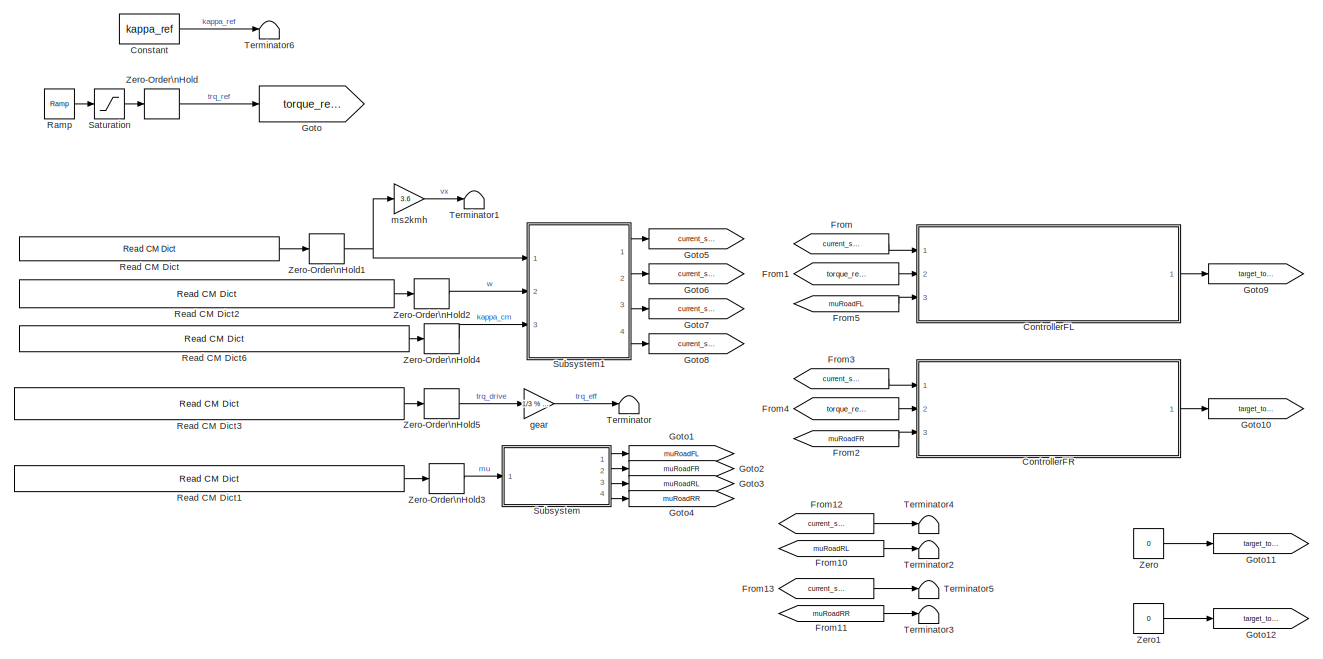
[diagram: CarMaker/Traction control - part 1/2, most of the canvas]
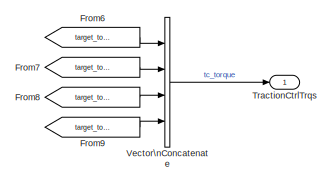
[diagram: CarMaker/Traction control - part 2/2, middle right region]
BLOCK [SubSystem] CarMaker/Traction control
  Ports = [0, 1]
  RequestExecContextInheritance = off
  SID = 2351
BLOCK [Constant] CarMaker/Traction control/Constant
  SID = 3175
  SampleTime = Ts
  Value = kappa_ref
BLOCK [SubSystem] CarMaker/Traction control/ControllerFL
  Ports = [3, 1]
  RequestExecContextInheritance = off
  SID = 2406
  Variant = on
BLOCK [SubSystem] CarMaker/Traction control/ControllerFL/KMPC
  Ports = [3, 1]
  RequestExecContextInheritance = off
  SID = 3838
  VariantControl = controller_type == 2
BLOCK [Reference] CarMaker/Traction control/ControllerFL/KMPC/Compare\nTo Constant1  REF=simulink/Logic and Bit\nOperations/Compare\nTo Constant
  OutDataTypeStr = boolean
  Ports = [1, 1]
  RTWMemSecDataConstants = Inherit from model
  RTWMemSecDataInternal = Inherit from model
  RTWMemSecDataParameters = Inherit from model
  RTWMemSecFuncExecute = Inherit from model
  RTWMemSecFuncInitTerm = Inherit from model
  SID = 4051
  SourceBlock = simulink/Logic and Bit\nOperations/Compare\nTo Constant
  SourceProductBaseCode = SL
  SourceType = Compare To Constant
  ZeroCross = on
  const = 1
  relop = ==
BLOCK [Constant] CarMaker/Traction control/ControllerFL/KMPC/Constant
  SID = 4032
  SampleTime = Ts
  Value = kappa_ref
BLOCK [Delay] CarMaker/Traction control/ControllerFL/KMPC/Delay2
  DelayLength = 1
  InitialCondition = 0
  InputPortMap = u0
  Ports = [1, 1]
  SID = 4056
  SampleTime = Ts
BLOCK [From] CarMaker/Traction control/ControllerFL/KMPC/From10
  GotoTag = torque_reference
  SID = 4052
BLOCK [From] CarMaker/Traction control/ControllerFL/KMPC/From4
  GotoTag = torque_reference
  SID = 3851
BLOCK [From] CarMaker/Traction control/ControllerFL/KMPC/From7
  GotoTag = prev_torque
  SID = 3854
BLOCK [From] CarMaker/Traction control/ControllerFL/KMPC/From8
  GotoTag = current_ocp_state
  SID = 4028
BLOCK [From] CarMaker/Traction control/ControllerFL/KMPC/From9
  GotoTag = torque_reference
  SID = 4037
BLOCK [Gain] CarMaker/Traction control/ControllerFL/KMPC/Gain
  Gain = F
  Multiplication = Matrix(K*u)
  SID = 4036
BLOCK [Goto] CarMaker/Traction control/ControllerFL/KMPC/Goto
  GotoTag = torque_reference
  SID = 3855
BLOCK [Goto] CarMaker/Traction control/ControllerFL/KMPC/Goto2
  GotoTag = current_ocp_state
  SID = 3857
BLOCK [Goto] CarMaker/Traction control/ControllerFL/KMPC/Goto4
  GotoTag = prev_torque
  SID = 4057
BLOCK [SubSystem] CarMaker/Traction control/ControllerFL/KMPC/MATLAB Function
  ErrorFcn = Stateflow.Translate.translate
  PermitHierarchicalResolution = ExplicitOnly
  Ports = [2, 1]
  RequestExecContextInheritance = off
  SFBlockType = MATLAB Function
  SID = 3860
  TreatAsAtomicUnit = on
BLOCK [Demux] CarMaker/Traction control/ControllerFL/KMPC/MATLAB Function/ Demux 
  Outputs = 1
  Ports = [1, 1]
  SID = 3860::23
BLOCK [S-Function] CarMaker/Traction control/ControllerFL/KMPC/MATLAB Function/ SFunction 
  EnableBusSupport = on
  FunctionName = sf_sfun
  Parameters = R
  PortCounts = [2 2]
  Ports = [2, 2]
  SFcnIsStateOwnerBlock = off
  SFunctionDeploymentMode = off
  SID = 3860::22
  Tag = Stateflow S-Function 18
BLOCK [Terminator] CarMaker/Traction control/ControllerFL/KMPC/MATLAB Function/ Terminator 
  SID = 3860::24
BLOCK [Inport] CarMaker/Traction control/ControllerFL/KMPC/MATLAB Function/current_state
  Port = 2
  SID = 3860::1
BLOCK [Inport] CarMaker/Traction control/ControllerFL/KMPC/MATLAB Function/e_int
  SID = 3860::25
BLOCK [Outport] CarMaker/Traction control/ControllerFL/KMPC/MATLAB Function/ocp_state
  SID = 3860::5
BLOCK [SubSystem] CarMaker/Traction control/ControllerFL/KMPC/MATLAB Function3
  ErrorFcn = Stateflow.Translate.translate
  PermitHierarchicalResolution = ExplicitOnly
  Ports = [1, 1]
  RequestExecContextInheritance = off
  SFBlockType = MATLAB Function
  SID = 4038
  TreatAsAtomicUnit = on
BLOCK [Demux] CarMaker/Traction control/ControllerFL/KMPC/MATLAB Function3/ Demux 
  Outputs = 1
  Ports = [1, 1]
  SID = 4038::23
BLOCK [S-Function] CarMaker/Traction control/ControllerFL/KMPC/MATLAB Function3/ SFunction 
  EnableBusSupport = on
  FunctionName = sf_sfun
  Parameters = N
  PortCounts = [1 2]
  Ports = [1, 2]
  SFcnIsStateOwnerBlock = off
  SFunctionDeploymentMode = off
  SID = 4038::22
  Tag = Stateflow S-Function 28
BLOCK [Terminator] CarMaker/Traction control/ControllerFL/KMPC/MATLAB Function3/ Terminator 
  SID = 4038::24
BLOCK [Inport] CarMaker/Traction control/ControllerFL/KMPC/MATLAB Function3/u
  SID = 4038::1
BLOCK [Outport] CarMaker/Traction control/ControllerFL/KMPC/MATLAB Function3/y
  SID = 4038::5
BLOCK [SubSystem] CarMaker/Traction control/ControllerFL/KMPC/MATLAB Function5
  ErrorFcn = Stateflow.Translate.translate
  PermitHierarchicalResolution = ExplicitOnly
  Ports = [1, 1]
  RequestExecContextInheritance = off
  SFBlockType = MATLAB Function
  SID = 4040
  TreatAsAtomicUnit = on
BLOCK [Demux] CarMaker/Traction control/ControllerFL/KMPC/MATLAB Function5/ Demux 
  Outputs = 1
  Ports = [1, 1]
  SID = 4040::23
BLOCK [S-Function] CarMaker/Traction control/ControllerFL/KMPC/MATLAB Function5/ SFunction 
  EnableBusSupport = on
  FunctionName = sf_sfun
  Parameters = N,w_u
  PortCounts = [1 2]
  Ports = [1, 2]
  SFcnIsStateOwnerBlock = off
  SFunctionDeploymentMode = off
  SID = 4040::22
  Tag = Stateflow S-Function 29
BLOCK [Terminator] CarMaker/Traction control/ControllerFL/KMPC/MATLAB Function5/ Terminator 
  SID = 4040::24
BLOCK [Inport] CarMaker/Traction control/ControllerFL/KMPC/MATLAB Function5/T
  SID = 4040::1
BLOCK [Outport] CarMaker/Traction control/ControllerFL/KMPC/MATLAB Function5/y
  SID = 4040::5
BLOCK [Selector] CarMaker/Traction control/ControllerFL/KMPC/Selector3
  IndexOptions = Index vector (dialog)
  Indices = 1:2
  InputPortWidth = 3
  OutputSizes = 1
  Ports = [1, 1]
  SID = 4027
BLOCK [Selector] CarMaker/Traction control/ControllerFL/KMPC/Selector4
  IndexOptions = Index vector (dialog)
  Indices = 3
  InputPortWidth = 3
  OutputSizes = 1
  Ports = [1, 1]
  SID = 4031
BLOCK [Terminator] CarMaker/Traction control/ControllerFL/KMPC/Terminator
  SID = 4058
BLOCK [Terminator] CarMaker/Traction control/ControllerFL/KMPC/Terminator3
  SID = 4047
BLOCK [Terminator] CarMaker/Traction control/ControllerFL/KMPC/Terminator4
  SID = 4048
BLOCK [Terminator] CarMaker/Traction control/ControllerFL/KMPC/Terminator5
  SID = 4049
BLOCK [Terminator] CarMaker/Traction control/ControllerFL/KMPC/Terminator6
  SID = 4055
BLOCK [Concatenate] CarMaker/Traction control/ControllerFL/KMPC/Vector\nConcatenate1
  NumInputs = 3
  Ports = [3, 1]
  SID = 4030
BLOCK [Inport] CarMaker/Traction control/ControllerFL/KMPC/current_state
  SID = 3839
BLOCK [SubSystem] CarMaker/Traction control/ControllerFL/KMPC/e_int_dot
  ErrorFcn = Stateflow.Translate.translate
  PermitHierarchicalResolution = ExplicitOnly
  Ports = [1, 1]
  RequestExecContextInheritance = off
  SFBlockType = MATLAB Function
  SID = 3875
  TreatAsAtomicUnit = on
BLOCK [Demux] CarMaker/Traction control/ControllerFL/KMPC/e_int_dot/ Demux 
  Outputs = 1
  Ports = [1, 1]
  SID = 3875::23
BLOCK [S-Function] CarMaker/Traction control/ControllerFL/KMPC/e_int_dot/ SFunction 
  EnableBusSupport = on
  FunctionName = sf_sfun
  Parameters = R,kappa_ref
  PortCounts = [1 2]
  Ports = [1, 2]
  SFcnIsStateOwnerBlock = off
  SFunctionDeploymentMode = off
  SID = 3875::22
  Tag = Stateflow S-Function 22
BLOCK [Terminator] CarMaker/Traction control/ControllerFL/KMPC/e_int_dot/ Terminator 
  SID = 3875::24
BLOCK [Inport] CarMaker/Traction control/ControllerFL/KMPC/e_int_dot/current_state
  SID = 3875::1
BLOCK [Outport] CarMaker/Traction control/ControllerFL/KMPC/e_int_dot/e_int_dot
  SID = 3875::5
BLOCK [SubSystem] CarMaker/Traction control/ControllerFL/KMPC/int_w_AW
  Ports = [3, 1]
  RequestExecContextInheritance = off
  SID = 3876
BLOCK [Abs] CarMaker/Traction control/ControllerFL/KMPC/int_w_AW/Abs
  SID = 3880
  SaturateOnIntegerOverflow = off
BLOCK [Reference] CarMaker/Traction control/ControllerFL/KMPC/int_w_AW/Compare\nTo Constant  REF=simulink/Logic and Bit\nOperations/Compare\nTo Constant
  OutDataTypeStr = boolean
  Ports = [1, 1]
  RTWMemSecDataConstants = Inherit from model
  RTWMemSecDataInternal = Inherit from model
  RTWMemSecDataParameters = Inherit from model
  RTWMemSecFuncExecute = Inherit from model
  RTWMemSecFuncInitTerm = Inherit from model
  SID = 3881
  SourceBlock = simulink/Logic and Bit\nOperations/Compare\nTo Constant
  SourceProductBaseCode = SL
  SourceType = Compare To Constant
  ZeroCross = on
  const = 1
  relop = <=
BLOCK [Constant] CarMaker/Traction control/ControllerFL/KMPC/int_w_AW/Constant
  SID = 3882
  SampleTime = Ts
  Value = 0
BLOCK [DiscreteIntegrator] CarMaker/Traction control/ControllerFL/KMPC/int_w_AW/Discrete-Time\nIntegrator
  ICPrevOutput = DiscIntNeverNeededParam
  ICPrevScaledInput = DiscIntNeverNeededParam
  InitialConditionSetting = Auto
  LimitOutput = on
  Ports = [1, 1]
  SID = 3883
  SampleTime = Ts
BLOCK [Sum] CarMaker/Traction control/ControllerFL/KMPC/int_w_AW/Sum
  IconShape = rectangular
  Inputs = |+-
  Ports = [2, 1]
  SID = 3884
BLOCK [Switch] CarMaker/Traction control/ControllerFL/KMPC/int_w_AW/Switch
  Criteria = u2 > Threshold
  InputSameDT = off
  SID = 3885
  SaturateOnIntegerOverflow = off
BLOCK [Outport] CarMaker/Traction control/ControllerFL/KMPC/int_w_AW/e_int
  SID = 3886
BLOCK [Inport] CarMaker/Traction control/ControllerFL/KMPC/int_w_AW/e_int_dot
  SID = 3877
BLOCK [Inport] CarMaker/Traction control/ControllerFL/KMPC/int_w_AW/max_torque
  Port = 3
  SID = 3879
BLOCK [Inport] CarMaker/Traction control/ControllerFL/KMPC/int_w_AW/prev_torque
  Port = 2
  SID = 3878
BLOCK [S-Function] CarMaker/Traction control/ControllerFL/KMPC/kmpc
  EnableBusSupport = off
  FunctionName = kmpc_simulinkBlock
  Ports = [3, 6]
  SFcnIsStateOwnerBlock = off
  SFunctionDeploymentMode = off
  SFunctionModules = kmpc kmpc_simulinkBlock
  SID = 4025
BLOCK [MATLABFcn] CarMaker/Traction control/ControllerFL/KMPC/lift
  MATLABFcn = lifting_function(u)
  Ports = [1, 1]
  SID = 4035
BLOCK [MATLABFcn] CarMaker/Traction control/ControllerFL/KMPC/normalize_input
  MATLABFcn = mapstd_custom('apply',u,PU)
  Ports = [1, 1]
  SID = 4046
BLOCK [MATLABFcn] CarMaker/Traction control/ControllerFL/KMPC/normalize_state
  MATLABFcn = mapstd_custom('apply',u,PX)
  Ports = [1, 1]
  SID = 4034
BLOCK [Inport] CarMaker/Traction control/ControllerFL/KMPC/road_friction_coeff
  Port = 3
  SID = 3841
BLOCK [Gain] CarMaker/Traction control/ControllerFL/KMPC/s2ms
  Gain = 1e3
  SID = 4054
BLOCK [Switch] CarMaker/Traction control/ControllerFL/KMPC/safety_switch
  Criteria = u2 > Threshold
  InputSameDT = off
  SID = 4053
  SaturateOnIntegerOverflow = off
BLOCK [Outport] CarMaker/Traction control/ControllerFL/KMPC/torque_output
  SID = 4050
BLOCK [Inport] CarMaker/Traction control/ControllerFL/KMPC/torque_reference
  Port = 2
  SID = 3840
BLOCK [MATLABFcn] CarMaker/Traction control/ControllerFL/KMPC/unnormalize
  MATLABFcn = mapstd_custom('reverse',u,PU)
  Ports = [1, 1]
  SID = 4042
BLOCK [SubSystem] CarMaker/Traction control/ControllerFL/KMPC_Y2F
  Ports = [3, 1]
  RequestExecContextInheritance = off
  SID = 5209
  VariantControl = controller_type == 8
BLOCK [Reference] CarMaker/Traction control/ControllerFL/KMPC_Y2F/Compare\nTo Constant1  REF=simulink/Logic and Bit\nOperations/Compare\nTo Constant
  OutDataTypeStr = boolean
  Ports = [1, 1]
  RTWMemSecDataConstants = Inherit from model
  RTWMemSecDataInternal = Inherit from model
  RTWMemSecDataParameters = Inherit from model
  RTWMemSecFuncExecute = Inherit from model
  RTWMemSecFuncInitTerm = Inherit from model
  SID = 5213
  SourceBlock = simulink/Logic and Bit\nOperations/Compare\nTo Constant
  SourceProductBaseCode = SL
  SourceType = Compare To Constant
  ZeroCross = on
  const = 1
  relop = ==
BLOCK [Constant] CarMaker/Traction control/ControllerFL/KMPC_Y2F/Constant
  SID = 5214
  SampleTime = Ts
  Value = kappa_ref
BLOCK [Delay] CarMaker/Traction control/ControllerFL/KMPC_Y2F/Delay2
  DelayLength = 1
  InitialCondition = 0
  InputPortMap = u0
  Ports = [1, 1]
  SID = 5215
  SampleTime = Ts
BLOCK [From] CarMaker/Traction control/ControllerFL/KMPC_Y2F/From10
  GotoTag = torque_reference
  SID = 5216
BLOCK [From] CarMaker/Traction control/ControllerFL/KMPC_Y2F/From4
  GotoTag = torque_reference
  SID = 5217
BLOCK [From] CarMaker/Traction control/ControllerFL/KMPC_Y2F/From7
  GotoTag = prev_torque
  SID = 5218
BLOCK [From] CarMaker/Traction control/ControllerFL/KMPC_Y2F/From8
  GotoTag = current_ocp_state
  SID = 5219
BLOCK [From] CarMaker/Traction control/ControllerFL/KMPC_Y2F/From9
  GotoTag = torque_reference
  SID = 5220
BLOCK [Goto] CarMaker/Traction control/ControllerFL/KMPC_Y2F/Goto
  GotoTag = torque_reference
  SID = 5221
BLOCK [Goto] CarMaker/Traction control/ControllerFL/KMPC_Y2F/Goto2
  GotoTag = current_ocp_state
  SID = 5222
BLOCK [Goto] CarMaker/Traction control/ControllerFL/KMPC_Y2F/Goto4
  GotoTag = prev_torque
  SID = 5223
BLOCK [SubSystem] CarMaker/Traction control/ControllerFL/KMPC_Y2F/MATLAB Function
  ErrorFcn = Stateflow.Translate.translate
  PermitHierarchicalResolution = ExplicitOnly
  Ports = [2, 1]
  RequestExecContextInheritance = off
  SFBlockType = MATLAB Function
  SID = 5224
  TreatAsAtomicUnit = on
BLOCK [Demux] CarMaker/Traction control/ControllerFL/KMPC_Y2F/MATLAB Function/ Demux 
  Outputs = 1
  Ports = [1, 1]
  SID = 5224::23
BLOCK [S-Function] CarMaker/Traction control/ControllerFL/KMPC_Y2F/MATLAB Function/ SFunction 
  EnableBusSupport = on
  FunctionName = sf_sfun
  Parameters = R
  PortCounts = [2 2]
  Ports = [2, 2]
  SFcnIsStateOwnerBlock = off
  SFunctionDeploymentMode = off
  SID = 5224::22
  Tag = Stateflow S-Function 14
BLOCK [Terminator] CarMaker/Traction control/ControllerFL/KMPC_Y2F/MATLAB Function/ Terminator 
  SID = 5224::24
BLOCK [Inport] CarMaker/Traction control/ControllerFL/KMPC_Y2F/MATLAB Function/current_state
  Port = 2
  SID = 5224::1
BLOCK [Inport] CarMaker/Traction control/ControllerFL/KMPC_Y2F/MATLAB Function/e_int
  SID = 5224::25
BLOCK [Outport] CarMaker/Traction control/ControllerFL/KMPC_Y2F/MATLAB Function/ocp_state
  SID = 5224::5
BLOCK [Selector] CarMaker/Traction control/ControllerFL/KMPC_Y2F/Selector
  IndexOptions = Index vector (dialog)
  Indices = 1
  InputPortWidth = N
  OutputSizes = 1
  Ports = [1, 1]
  SID = 5230
BLOCK [Selector] CarMaker/Traction control/ControllerFL/KMPC_Y2F/Selector3
  IndexOptions = Index vector (dialog)
  Indices = 1:2
  InputPortWidth = 3
  OutputSizes = 1
  Ports = [1, 1]
  SID = 5231
BLOCK [Selector] CarMaker/Traction control/ControllerFL/KMPC_Y2F/Selector4
  IndexOptions = Index vector (dialog)
  Indices = 3
  InputPortWidth = 3
  OutputSizes = 1
  Ports = [1, 1]
  SID = 5232
BLOCK [Terminator] CarMaker/Traction control/ControllerFL/KMPC_Y2F/Terminator
  SID = 5233
BLOCK [Terminator] CarMaker/Traction control/ControllerFL/KMPC_Y2F/Terminator1
  SID = 5304
BLOCK [Terminator] CarMaker/Traction control/ControllerFL/KMPC_Y2F/Terminator2
  SID = 5305
BLOCK [Terminator] CarMaker/Traction control/ControllerFL/KMPC_Y2F/Terminator3
  SID = 5234
BLOCK [Terminator] CarMaker/Traction control/ControllerFL/KMPC_Y2F/Terminator6
  SID = 5235
BLOCK [Concatenate] CarMaker/Traction control/ControllerFL/KMPC_Y2F/Vector\nConcatenate1
  NumInputs = 3
  Ports = [3, 1]
  SID = 5236
BLOCK [Inport] CarMaker/Traction control/ControllerFL/KMPC_Y2F/current_state
  SID = 5210
BLOCK [SubSystem] CarMaker/Traction control/ControllerFL/KMPC_Y2F/e_int_dot
  ErrorFcn = Stateflow.Translate.translate
  PermitHierarchicalResolution = ExplicitOnly
  Ports = [1, 1]
  RequestExecContextInheritance = off
  SFBlockType = MATLAB Function
  SID = 5237
  TreatAsAtomicUnit = on
BLOCK [Demux] CarMaker/Traction control/ControllerFL/KMPC_Y2F/e_int_dot/ Demux 
  Outputs = 1
  Ports = [1, 1]
  SID = 5237::23
BLOCK [S-Function] CarMaker/Traction control/ControllerFL/KMPC_Y2F/e_int_dot/ SFunction 
  EnableBusSupport = on
  FunctionName = sf_sfun
  Parameters = R,kappa_ref
  PortCounts = [1 2]
  Ports = [1, 2]
  SFcnIsStateOwnerBlock = off
  SFunctionDeploymentMode = off
  SID = 5237::22
  Tag = Stateflow S-Function 23
BLOCK [Terminator] CarMaker/Traction control/ControllerFL/KMPC_Y2F/e_int_dot/ Terminator 
  SID = 5237::24
BLOCK [Inport] CarMaker/Traction control/ControllerFL/KMPC_Y2F/e_int_dot/current_state
  SID = 5237::1
BLOCK [Outport] CarMaker/Traction control/ControllerFL/KMPC_Y2F/e_int_dot/e_int_dot
  SID = 5237::5
BLOCK [SubSystem] CarMaker/Traction control/ControllerFL/KMPC_Y2F/int_w_AW
  Ports = [3, 1]
  RequestExecContextInheritance = off
  SID = 5238
BLOCK [Abs] CarMaker/Traction control/ControllerFL/KMPC_Y2F/int_w_AW/Abs
  SID = 5242
  SaturateOnIntegerOverflow = off
BLOCK [Reference] CarMaker/Traction control/ControllerFL/KMPC_Y2F/int_w_AW/Compare\nTo Constant  REF=simulink/Logic and Bit\nOperations/Compare\nTo Constant
  OutDataTypeStr = boolean
  Ports = [1, 1]
  RTWMemSecDataConstants = Inherit from model
  RTWMemSecDataInternal = Inherit from model
  RTWMemSecDataParameters = Inherit from model
  RTWMemSecFuncExecute = Inherit from model
  RTWMemSecFuncInitTerm = Inherit from model
  SID = 5243
  SourceBlock = simulink/Logic and Bit\nOperations/Compare\nTo Constant
  SourceProductBaseCode = SL
  SourceType = Compare To Constant
  ZeroCross = on
  const = 1
  relop = <=
BLOCK [Constant] CarMaker/Traction control/ControllerFL/KMPC_Y2F/int_w_AW/Constant
  SID = 5244
  SampleTime = Ts
  Value = 0
BLOCK [DiscreteIntegrator] CarMaker/Traction control/ControllerFL/KMPC_Y2F/int_w_AW/Discrete-Time\nIntegrator
  ICPrevOutput = DiscIntNeverNeededParam
  ICPrevScaledInput = DiscIntNeverNeededParam
  InitialConditionSetting = Auto
  Ports = [1, 1]
  SID = 5245
  SampleTime = Ts
BLOCK [Sum] CarMaker/Traction control/ControllerFL/KMPC_Y2F/int_w_AW/Sum
  IconShape = rectangular
  Inputs = |+-
  Ports = [2, 1]
  SID = 5246
BLOCK [Switch] CarMaker/Traction control/ControllerFL/KMPC_Y2F/int_w_AW/Switch
  Criteria = u2 > Threshold
  InputSameDT = off
  SID = 5247
  SaturateOnIntegerOverflow = off
BLOCK [Outport] CarMaker/Traction control/ControllerFL/KMPC_Y2F/int_w_AW/e_int
  SID = 5248
BLOCK [Inport] CarMaker/Traction control/ControllerFL/KMPC_Y2F/int_w_AW/e_int_dot
  SID = 5239
BLOCK [Inport] CarMaker/Traction control/ControllerFL/KMPC_Y2F/int_w_AW/max_torque
  Port = 3
  SID = 5241
BLOCK [Inport] CarMaker/Traction control/ControllerFL/KMPC_Y2F/int_w_AW/prev_torque
  Port = 2
  SID = 5240
BLOCK [Reference] CarMaker/Traction control/ControllerFL/KMPC_Y2F/kmpc  REF=y2f_simulink_lib/kmpc
  MultiThreadCoSim = auto
  Ports = [2, 6]
  SID = 5303
  SourceBlock = y2f_simulink_lib/kmpc
BLOCK [MATLABFcn] CarMaker/Traction control/ControllerFL/KMPC_Y2F/lift
  MATLABFcn = lifting_function(u)
  Ports = [1, 1]
  SID = 5249
BLOCK [MATLABFcn] CarMaker/Traction control/ControllerFL/KMPC_Y2F/normalize_input
  MATLABFcn = mapstd_custom('apply',u,PU)
  Ports = [1, 1]
  SID = 5250
BLOCK [MATLABFcn] CarMaker/Traction control/ControllerFL/KMPC_Y2F/normalize_state
  MATLABFcn = mapstd_custom('apply',u,PX)
  Ports = [1, 1]
  SID = 5251
BLOCK [Inport] CarMaker/Traction control/ControllerFL/KMPC_Y2F/road_friction_coeff
  Port = 3
  SID = 5212
BLOCK [Gain] CarMaker/Traction control/ControllerFL/KMPC_Y2F/s2ms
  Gain = 1e3
  SID = 5252
BLOCK [Switch] CarMaker/Traction control/ControllerFL/KMPC_Y2F/safety_switch
  Criteria = u2 > Threshold
  InputSameDT = off
  SID = 5253
  SaturateOnIntegerOverflow = off
BLOCK [Outport] CarMaker/Traction control/ControllerFL/KMPC_Y2F/torque_output
  SID = 5255
BLOCK [Inport] CarMaker/Traction control/ControllerFL/KMPC_Y2F/torque_reference
  Port = 2
  SID = 5211
BLOCK [MATLABFcn] CarMaker/Traction control/ControllerFL/KMPC_Y2F/unnormalize_input
  MATLABFcn = mapstd_custom('reverse',u,PU)
  Ports = [1, 1]
  SID = 5254
BLOCK [SubSystem] CarMaker/Traction control/ControllerFL/KMPC_acados
  Ports = [3, 1]
  RequestExecContextInheritance = off
  SID = 5351
  VariantControl = controller_type == 9
BLOCK [Reference] CarMaker/Traction control/ControllerFL/KMPC_acados/Compare\nTo Constant1  REF=simulink/Logic and Bit\nOperations/Compare\nTo Constant
  OutDataTypeStr = boolean
  Ports = [1, 1]
  RTWMemSecDataConstants = Inherit from model
  RTWMemSecDataInternal = Inherit from model
  RTWMemSecDataParameters = Inherit from model
  RTWMemSecFuncExecute = Inherit from model
  RTWMemSecFuncInitTerm = Inherit from model
  SID = 5355
  SourceBlock = simulink/Logic and Bit\nOperations/Compare\nTo Constant
  SourceProductBaseCode = SL
  SourceType = Compare To Constant
  ZeroCross = on
  const = 0
  relop = ==
BLOCK [Constant] CarMaker/Traction control/ControllerFL/KMPC_acados/Constant
  SID = 5356
  SampleTime = Ts
  Value = kappa_ref
BLOCK [Delay] CarMaker/Traction control/ControllerFL/KMPC_acados/Delay2
  DelayLength = 1
  InitialCondition = 0
  InputPortMap = u0
  Ports = [1, 1]
  SID = 5357
  SampleTime = Ts
BLOCK [From] CarMaker/Traction control/ControllerFL/KMPC_acados/From10
  GotoTag = torque_reference
  SID = 5358
BLOCK [From] CarMaker/Traction control/ControllerFL/KMPC_acados/From4
  GotoTag = torque_reference
  SID = 5359
BLOCK [From] CarMaker/Traction control/ControllerFL/KMPC_acados/From7
  GotoTag = prev_torque
  SID = 5360
BLOCK [From] CarMaker/Traction control/ControllerFL/KMPC_acados/From8
  GotoTag = current_ocp_state
  SID = 5361
BLOCK [From] CarMaker/Traction control/ControllerFL/KMPC_acados/From9
  GotoTag = torque_reference
  SID = 5362
BLOCK [Goto] CarMaker/Traction control/ControllerFL/KMPC_acados/Goto
  GotoTag = torque_reference
  SID = 5363
BLOCK [Goto] CarMaker/Traction control/ControllerFL/KMPC_acados/Goto2
  GotoTag = current_ocp_state
  SID = 5364
BLOCK [Goto] CarMaker/Traction control/ControllerFL/KMPC_acados/Goto4
  GotoTag = prev_torque
  SID = 5365
BLOCK [S-Function] CarMaker/Traction control/ControllerFL/KMPC_acados/KMPC
  EnableBusSupport = off
  FunctionName = acados_solver_sfunction_kmpc_acados
  Ports = [1, 4]
  SFcnIsStateOwnerBlock = off
  SFunctionDeploymentMode = off
  SID = 5396
BLOCK [SubSystem] CarMaker/Traction control/ControllerFL/KMPC_acados/MATLAB Function
  ErrorFcn = Stateflow.Translate.translate
  PermitHierarchicalResolution = ExplicitOnly
  Ports = [2, 1]
  RequestExecContextInheritance = off
  SFBlockType = MATLAB Function
  SID = 5366
  TreatAsAtomicUnit = on
BLOCK [Demux] CarMaker/Traction control/ControllerFL/KMPC_acados/MATLAB Function/ Demux 
  Outputs = 1
  Ports = [1, 1]
  SID = 5366::23
BLOCK [S-Function] CarMaker/Traction control/ControllerFL/KMPC_acados/MATLAB Function/ SFunction 
  EnableBusSupport = on
  FunctionName = sf_sfun
  Parameters = R
  PortCounts = [2 2]
  Ports = [2, 2]
  SFcnIsStateOwnerBlock = off
  SFunctionDeploymentMode = off
  SID = 5366::22
  Tag = Stateflow S-Function 11
BLOCK [Terminator] CarMaker/Traction control/ControllerFL/KMPC_acados/MATLAB Function/ Terminator 
  SID = 5366::24
BLOCK [Inport] CarMaker/Traction control/ControllerFL/KMPC_acados/MATLAB Function/current_state
  Port = 2
  SID = 5366::1
BLOCK [Inport] CarMaker/Traction control/ControllerFL/KMPC_acados/MATLAB Function/e_int
  SID = 5366::25
BLOCK [Outport] CarMaker/Traction control/ControllerFL/KMPC_acados/MATLAB Function/ocp_state
  SID = 5366::5
BLOCK [SubSystem] CarMaker/Traction control/ControllerFL/KMPC_acados/MATLAB Function1
  ErrorFcn = Stateflow.Translate.translate
  PermitHierarchicalResolution = ExplicitOnly
  Ports = [1, 1]
  RequestExecContextInheritance = off
  SFBlockType = MATLAB Function
  SID = 5399
  TreatAsAtomicUnit = on
BLOCK [Demux] CarMaker/Traction control/ControllerFL/KMPC_acados/MATLAB Function1/ Demux 
  Outputs = 1
  Ports = [1, 1]
  SID = 5399::23
BLOCK [S-Function] CarMaker/Traction control/ControllerFL/KMPC_acados/MATLAB Function1/ SFunction 
  EnableBusSupport = on
  FunctionName = sf_sfun
  PortCounts = [1 2]
  Ports = [1, 2]
  SFcnIsStateOwnerBlock = off
  SFunctionDeploymentMode = off
  SID = 5399::22
  Tag = Stateflow S-Function 34
BLOCK [Terminator] CarMaker/Traction control/ControllerFL/KMPC_acados/MATLAB Function1/ Terminator 
  SID = 5399::24
BLOCK [Inport] CarMaker/Traction control/ControllerFL/KMPC_acados/MATLAB Function1/u
  SID = 5399::1
BLOCK [Outport] CarMaker/Traction control/ControllerFL/KMPC_acados/MATLAB Function1/y
  SID = 5399::5
BLOCK [Selector] CarMaker/Traction control/ControllerFL/KMPC_acados/Selector
  IndexOptions = Index vector (dialog)
  Indices = 1
  InputPortWidth = N
  OutputSizes = 1
  Ports = [1, 1]
  SID = 5445
BLOCK [Selector] CarMaker/Traction control/ControllerFL/KMPC_acados/Selector3
  IndexOptions = Index vector (dialog)
  Indices = 1:2
  InputPortWidth = 3
  OutputSizes = 1
  Ports = [1, 1]
  SID = 5368
BLOCK [Selector] CarMaker/Traction control/ControllerFL/KMPC_acados/Selector4
  IndexOptions = Index vector (dialog)
  Indices = 3
  InputPortWidth = 3
  OutputSizes = 1
  Ports = [1, 1]
  SID = 5369
BLOCK [Terminator] CarMaker/Traction control/ControllerFL/KMPC_acados/Terminator
  SID = 5370
BLOCK [Terminator] CarMaker/Traction control/ControllerFL/KMPC_acados/Terminator1
  SID = 5371
BLOCK [Terminator] CarMaker/Traction control/ControllerFL/KMPC_acados/Terminator6
  SID = 5374
BLOCK [Concatenate] CarMaker/Traction control/ControllerFL/KMPC_acados/Vector\nConcatenate
  Ports = [2, 1]
  SID = 5397
BLOCK [Concatenate] CarMaker/Traction control/ControllerFL/KMPC_acados/Vector\nConcatenate1
  NumInputs = 3
  Ports = [3, 1]
  SID = 5375
BLOCK [Inport] CarMaker/Traction control/ControllerFL/KMPC_acados/current_state
  SID = 5352
BLOCK [SubSystem] CarMaker/Traction control/ControllerFL/KMPC_acados/e_int_dot
  ErrorFcn = Stateflow.Translate.translate
  PermitHierarchicalResolution = ExplicitOnly
  Ports = [1, 1]
  RequestExecContextInheritance = off
  SFBlockType = MATLAB Function
  SID = 5376
  TreatAsAtomicUnit = on
BLOCK [Demux] CarMaker/Traction control/ControllerFL/KMPC_acados/e_int_dot/ Demux 
  Outputs = 1
  Ports = [1, 1]
  SID = 5376::23
BLOCK [S-Function] CarMaker/Traction control/ControllerFL/KMPC_acados/e_int_dot/ SFunction 
  EnableBusSupport = on
  FunctionName = sf_sfun
  Parameters = R,kappa_ref
  PortCounts = [1 2]
  Ports = [1, 2]
  SFcnIsStateOwnerBlock = off
  SFunctionDeploymentMode = off
  SID = 5376::22
  Tag = Stateflow S-Function 33
BLOCK [Terminator] CarMaker/Traction control/ControllerFL/KMPC_acados/e_int_dot/ Terminator 
  SID = 5376::24
BLOCK [Inport] CarMaker/Traction control/ControllerFL/KMPC_acados/e_int_dot/current_state
  SID = 5376::1
BLOCK [Outport] CarMaker/Traction control/ControllerFL/KMPC_acados/e_int_dot/e_int_dot
  SID = 5376::5
BLOCK [SubSystem] CarMaker/Traction control/ControllerFL/KMPC_acados/int_w_AW
  Ports = [3, 1]
  RequestExecContextInheritance = off
  SID = 5377
BLOCK [Abs] CarMaker/Traction control/ControllerFL/KMPC_acados/int_w_AW/Abs
  SID = 5381
  SaturateOnIntegerOverflow = off
BLOCK [Reference] CarMaker/Traction control/ControllerFL/KMPC_acados/int_w_AW/Compare\nTo Constant  REF=simulink/Logic and Bit\nOperations/Compare\nTo Constant
  OutDataTypeStr = boolean
  Ports = [1, 1]
  RTWMemSecDataConstants = Inherit from model
  RTWMemSecDataInternal = Inherit from model
  RTWMemSecDataParameters = Inherit from model
  RTWMemSecFuncExecute = Inherit from model
  RTWMemSecFuncInitTerm = Inherit from model
  SID = 5382
  SourceBlock = simulink/Logic and Bit\nOperations/Compare\nTo Constant
  SourceProductBaseCode = SL
  SourceType = Compare To Constant
  ZeroCross = on
  const = 1
  relop = <=
BLOCK [Constant] CarMaker/Traction control/ControllerFL/KMPC_acados/int_w_AW/Constant
  SID = 5383
  SampleTime = Ts
  Value = 0
BLOCK [DiscreteIntegrator] CarMaker/Traction control/ControllerFL/KMPC_acados/int_w_AW/Discrete-Time\nIntegrator
  ICPrevOutput = DiscIntNeverNeededParam
  ICPrevScaledInput = DiscIntNeverNeededParam
  InitialConditionSetting = Auto
  Ports = [1, 1]
  SID = 5384
  SampleTime = Ts
BLOCK [Sum] CarMaker/Traction control/ControllerFL/KMPC_acados/int_w_AW/Sum
  IconShape = rectangular
  Inputs = |+-
  Ports = [2, 1]
  SID = 5385
BLOCK [Switch] CarMaker/Traction control/ControllerFL/KMPC_acados/int_w_AW/Switch
  Criteria = u2 > Threshold
  InputSameDT = off
  SID = 5386
  SaturateOnIntegerOverflow = off
BLOCK [Outport] CarMaker/Traction control/ControllerFL/KMPC_acados/int_w_AW/e_int
  SID = 5387
BLOCK [Inport] CarMaker/Traction control/ControllerFL/KMPC_acados/int_w_AW/e_int_dot
  SID = 5378
BLOCK [Inport] CarMaker/Traction control/ControllerFL/KMPC_acados/int_w_AW/max_torque
  Port = 3
  SID = 5380
BLOCK [Inport] CarMaker/Traction control/ControllerFL/KMPC_acados/int_w_AW/prev_torque
  Port = 2
  SID = 5379
BLOCK [MATLABFcn] CarMaker/Traction control/ControllerFL/KMPC_acados/lift
  MATLABFcn = lifting_function(u)
  Ports = [1, 1]
  SID = 5389
BLOCK [MATLABFcn] CarMaker/Traction control/ControllerFL/KMPC_acados/normalize_input
  MATLABFcn = mapstd_custom('apply',u,PU)
  Ports = [1, 1]
  SID = 5390
BLOCK [MATLABFcn] CarMaker/Traction control/ControllerFL/KMPC_acados/normalize_state
  MATLABFcn = mapstd_custom('apply',u,PX)
  Ports = [1, 1]
  SID = 5391
BLOCK [Inport] CarMaker/Traction control/ControllerFL/KMPC_acados/road_friction_coeff
  Port = 3
  SID = 5354
BLOCK [Gain] CarMaker/Traction control/ControllerFL/KMPC_acados/s2ms
  Gain = 1e3
  SID = 5392
BLOCK [Switch] CarMaker/Traction control/ControllerFL/KMPC_acados/safety_switch
  Criteria = u2 > Threshold
  InputSameDT = off
  SID = 5393
  SaturateOnIntegerOverflow = off
BLOCK [Outport] CarMaker/Traction control/ControllerFL/KMPC_acados/torque_output
  SID = 5395
BLOCK [Inport] CarMaker/Traction control/ControllerFL/KMPC_acados/torque_reference
  Port = 2
  SID = 5353
BLOCK [MATLABFcn] CarMaker/Traction control/ControllerFL/KMPC_acados/unnormalize_input
  MATLABFcn = mapstd_custom('reverse',u,PU)
  Ports = [1, 1]
  SID = 5394
BLOCK [SubSystem] CarMaker/Traction control/ControllerFL/KMPC_yalmip
  Ports = [3, 1]
  RequestExecContextInheritance = off
  SID = 4211
  VariantControl = controller_type == 5
BLOCK [Reference] CarMaker/Traction control/ControllerFL/KMPC_yalmip/Compare\nTo Constant1  REF=simulink/Logic and Bit\nOperations/Compare\nTo Constant
  OutDataTypeStr = boolean
  Ports = [1, 1]
  RTWMemSecDataConstants = Inherit from model
  RTWMemSecDataInternal = Inherit from model
  RTWMemSecDataParameters = Inherit from model
  RTWMemSecFuncExecute = Inherit from model
  RTWMemSecFuncInitTerm = Inherit from model
  SID = 4215
  SourceBlock = simulink/Logic and Bit\nOperations/Compare\nTo Constant
  SourceProductBaseCode = SL
  SourceType = Compare To Constant
  ZeroCross = on
  const = 0
  relop = ==
BLOCK [Constant] CarMaker/Traction control/ControllerFL/KMPC_yalmip/Constant
  SID = 4216
  SampleTime = Ts
  Value = kappa_ref
BLOCK [Delay] CarMaker/Traction control/ControllerFL/KMPC_yalmip/Delay2
  DelayLength = 1
  InitialCondition = 0
  InputPortMap = u0
  Ports = [1, 1]
  SID = 4217
  SampleTime = Ts
BLOCK [From] CarMaker/Traction control/ControllerFL/KMPC_yalmip/From10
  GotoTag = torque_reference
  SID = 4218
BLOCK [From] CarMaker/Traction control/ControllerFL/KMPC_yalmip/From4
  GotoTag = torque_reference
  SID = 4219
BLOCK [From] CarMaker/Traction control/ControllerFL/KMPC_yalmip/From7
  GotoTag = prev_torque
  SID = 4220
BLOCK [From] CarMaker/Traction control/ControllerFL/KMPC_yalmip/From8
  GotoTag = current_ocp_state
  SID = 4221
BLOCK [From] CarMaker/Traction control/ControllerFL/KMPC_yalmip/From9
  GotoTag = torque_reference
  SID = 4222
BLOCK [Goto] CarMaker/Traction control/ControllerFL/KMPC_yalmip/Goto
  GotoTag = torque_reference
  SID = 4224
BLOCK [Goto] CarMaker/Traction control/ControllerFL/KMPC_yalmip/Goto2
  GotoTag = current_ocp_state
  SID = 4225
BLOCK [Goto] CarMaker/Traction control/ControllerFL/KMPC_yalmip/Goto4
  GotoTag = prev_torque
  SID = 4226
BLOCK [SubSystem] CarMaker/Traction control/ControllerFL/KMPC_yalmip/MATLAB Function
  ErrorFcn = Stateflow.Translate.translate
  PermitHierarchicalResolution = ExplicitOnly
  Ports = [2, 1]
  RequestExecContextInheritance = off
  SFBlockType = MATLAB Function
  SID = 4227
  TreatAsAtomicUnit = on
BLOCK [Demux] CarMaker/Traction control/ControllerFL/KMPC_yalmip/MATLAB Function/ Demux 
  Outputs = 1
  Ports = [1, 1]
  SID = 4227::23
BLOCK [S-Function] CarMaker/Traction control/ControllerFL/KMPC_yalmip/MATLAB Function/ SFunction 
  EnableBusSupport = on
  FunctionName = sf_sfun
  Parameters = R
  PortCounts = [2 2]
  Ports = [2, 2]
  SFcnIsStateOwnerBlock = off
  SFunctionDeploymentMode = off
  SID = 4227::22
  Tag = Stateflow S-Function 24
BLOCK [Terminator] CarMaker/Traction control/ControllerFL/KMPC_yalmip/MATLAB Function/ Terminator 
  SID = 4227::24
BLOCK [Inport] CarMaker/Traction control/ControllerFL/KMPC_yalmip/MATLAB Function/current_state
  Port = 2
  SID = 4227::1
BLOCK [Inport] CarMaker/Traction control/ControllerFL/KMPC_yalmip/MATLAB Function/e_int
  SID = 4227::25
BLOCK [Outport] CarMaker/Traction control/ControllerFL/KMPC_yalmip/MATLAB Function/ocp_state
  SID = 4227::5
BLOCK [SubSystem] CarMaker/Traction control/ControllerFL/KMPC_yalmip/MATLAB Function1
  Commented = on
  ErrorFcn = Stateflow.Translate.translate
  PermitHierarchicalResolution = ExplicitOnly
  Ports = [3]
  RequestExecContextInheritance = off
  SFBlockType = MATLAB Function
  SID = 4479
  TreatAsAtomicUnit = on
BLOCK [Demux] CarMaker/Traction control/ControllerFL/KMPC_yalmip/MATLAB Function1/ Demux 
  Outputs = 1
  Ports = [1, 1]
  SID = 4479::23
BLOCK [S-Function] CarMaker/Traction control/ControllerFL/KMPC_yalmip/MATLAB Function1/ SFunction 
  EnableBusSupport = on
  FunctionName = sf_sfun
  Parameters = Alift,PU
  PortCounts = [3 1]
  Ports = [3, 1]
  SFcnIsStateOwnerBlock = off
  SFunctionDeploymentMode = off
  SID = 4479::22
  Tag = Stateflow S-Function 30
BLOCK [Terminator] CarMaker/Traction control/ControllerFL/KMPC_yalmip/MATLAB Function1/ Terminator 
  SID = 4479::24
BLOCK [Inport] CarMaker/Traction control/ControllerFL/KMPC_yalmip/MATLAB Function1/uopt
  SID = 4479::1
BLOCK [Inport] CarMaker/Traction control/ControllerFL/KMPC_yalmip/MATLAB Function1/yopt
  Port = 2
  SID = 4479::25
BLOCK [Inport] CarMaker/Traction control/ControllerFL/KMPC_yalmip/MATLAB Function1/z0
  Port = 3
  SID = 4479::28
BLOCK [MATLABSystem] CarMaker/Traction control/ControllerFL/KMPC_yalmip/MATLAB System
  MaskDisplay = disp('kmpc_yalmip');\nport_label('input',1,'z0');\nport_label('input',2,'T_ref');\nport_label('output',1,'uopt');\nport_label('output',2,'yopt');\nport_label('output',3,'exitflag');\nport_label('output',4,'solvetime');\n
  MaskType = kmpc_yalmip
  N = N
  Ports = [2, 4]
  SID = 4258
  SimulateUsing = Interpreted execution
  System = kmpc_yalmip
  Ts = Ts
  ny = 3
BLOCK [RateTransition] CarMaker/Traction control/ControllerFL/KMPC_yalmip/Rate Transition
  Commented = on
  OutPortSampleTime = 0.5
  SID = 4482
BLOCK [RateTransition] CarMaker/Traction control/ControllerFL/KMPC_yalmip/Rate Transition1
  Commented = on
  OutPortSampleTime = 0.5
  SID = 4483
BLOCK [RateTransition] CarMaker/Traction control/ControllerFL/KMPC_yalmip/Rate Transition2
  Commented = on
  OutPortSampleTime = 0.5
  SID = 4484
BLOCK [Selector] CarMaker/Traction control/ControllerFL/KMPC_yalmip/Selector
  IndexOptions = Index vector (dialog)
  Indices = 1
  InputPortWidth = N
  OutputSizes = 1
  Ports = [1, 1]
  SID = 4433
BLOCK [Selector] CarMaker/Traction control/ControllerFL/KMPC_yalmip/Selector3
  IndexOptions = Index vector (dialog)
  Indices = 1:2
  InputPortWidth = 3
  OutputSizes = 1
  Ports = [1, 1]
  SID = 4230
BLOCK [Selector] CarMaker/Traction control/ControllerFL/KMPC_yalmip/Selector4
  IndexOptions = Index vector (dialog)
  Indices = 3
  InputPortWidth = 3
  OutputSizes = 1
  Ports = [1, 1]
  SID = 4231
BLOCK [Terminator] CarMaker/Traction control/ControllerFL/KMPC_yalmip/Terminator
  SID = 4232
BLOCK [Terminator] CarMaker/Traction control/ControllerFL/KMPC_yalmip/Terminator3
  SID = 4233
BLOCK [Terminator] CarMaker/Traction control/ControllerFL/KMPC_yalmip/Terminator6
  SID = 4236
BLOCK [Concatenate] CarMaker/Traction control/ControllerFL/KMPC_yalmip/Vector\nConcatenate1
  NumInputs = 3
  Ports = [3, 1]
  SID = 4237
BLOCK [Inport] CarMaker/Traction control/ControllerFL/KMPC_yalmip/current_state
  SID = 4212
BLOCK [SubSystem] CarMaker/Traction control/ControllerFL/KMPC_yalmip/e_int_dot
  ErrorFcn = Stateflow.Translate.translate
  PermitHierarchicalResolution = ExplicitOnly
  Ports = [1, 1]
  RequestExecContextInheritance = off
  SFBlockType = MATLAB Function
  SID = 4238
  TreatAsAtomicUnit = on
BLOCK [Demux] CarMaker/Traction control/ControllerFL/KMPC_yalmip/e_int_dot/ Demux 
  Outputs = 1
  Ports = [1, 1]
  SID = 4238::23
BLOCK [S-Function] CarMaker/Traction control/ControllerFL/KMPC_yalmip/e_int_dot/ SFunction 
  EnableBusSupport = on
  FunctionName = sf_sfun
  Parameters = R,kappa_ref
  PortCounts = [1 2]
  Ports = [1, 2]
  SFcnIsStateOwnerBlock = off
  SFunctionDeploymentMode = off
  SID = 4238::22
  Tag = Stateflow S-Function 27
BLOCK [Terminator] CarMaker/Traction control/ControllerFL/KMPC_yalmip/e_int_dot/ Terminator 
  SID = 4238::24
BLOCK [Inport] CarMaker/Traction control/ControllerFL/KMPC_yalmip/e_int_dot/current_state
  SID = 4238::1
BLOCK [Outport] CarMaker/Traction control/ControllerFL/KMPC_yalmip/e_int_dot/e_int_dot
  SID = 4238::5
BLOCK [SubSystem] CarMaker/Traction control/ControllerFL/KMPC_yalmip/int_w_AW
  Ports = [3, 1]
  RequestExecContextInheritance = off
  SID = 4239
BLOCK [Abs] CarMaker/Traction control/ControllerFL/KMPC_yalmip/int_w_AW/Abs
  SID = 4243
  SaturateOnIntegerOverflow = off
BLOCK [Reference] CarMaker/Traction control/ControllerFL/KMPC_yalmip/int_w_AW/Compare\nTo Constant  REF=simulink/Logic and Bit\nOperations/Compare\nTo Constant
  OutDataTypeStr = boolean
  Ports = [1, 1]
  RTWMemSecDataConstants = Inherit from model
  RTWMemSecDataInternal = Inherit from model
  RTWMemSecDataParameters = Inherit from model
  RTWMemSecFuncExecute = Inherit from model
  RTWMemSecFuncInitTerm = Inherit from model
  SID = 4244
  SourceBlock = simulink/Logic and Bit\nOperations/Compare\nTo Constant
  SourceProductBaseCode = SL
  SourceType = Compare To Constant
  ZeroCross = on
  const = 1
  relop = <=
BLOCK [Constant] CarMaker/Traction control/ControllerFL/KMPC_yalmip/int_w_AW/Constant
  SID = 4245
  SampleTime = Ts
  Value = 0
BLOCK [DiscreteIntegrator] CarMaker/Traction control/ControllerFL/KMPC_yalmip/int_w_AW/Discrete-Time\nIntegrator
  ICPrevOutput = DiscIntNeverNeededParam
  ICPrevScaledInput = DiscIntNeverNeededParam
  InitialConditionSetting = Auto
  Ports = [1, 1]
  SID = 4246
  SampleTime = Ts
BLOCK [Sum] CarMaker/Traction control/ControllerFL/KMPC_yalmip/int_w_AW/Sum
  IconShape = rectangular
  Inputs = |+-
  Ports = [2, 1]
  SID = 4247
BLOCK [Switch] CarMaker/Traction control/ControllerFL/KMPC_yalmip/int_w_AW/Switch
  Criteria = u2 > Threshold
  InputSameDT = off
  SID = 4248
  SaturateOnIntegerOverflow = off
BLOCK [Outport] CarMaker/Traction control/ControllerFL/KMPC_yalmip/int_w_AW/e_int
  SID = 4249
BLOCK [Inport] CarMaker/Traction control/ControllerFL/KMPC_yalmip/int_w_AW/e_int_dot
  SID = 4240
BLOCK [Inport] CarMaker/Traction control/ControllerFL/KMPC_yalmip/int_w_AW/max_torque
  Port = 3
  SID = 4242
BLOCK [Inport] CarMaker/Traction control/ControllerFL/KMPC_yalmip/int_w_AW/prev_torque
  Port = 2
  SID = 4241
BLOCK [MATLABFcn] CarMaker/Traction control/ControllerFL/KMPC_yalmip/lift
  MATLABFcn = lifting_function(u)
  Ports = [1, 1]
  SID = 4251
BLOCK [MATLABFcn] CarMaker/Traction control/ControllerFL/KMPC_yalmip/normalize_input
  MATLABFcn = mapstd_custom('apply',u,PU)
  Ports = [1, 1]
  SID = 4252
BLOCK [MATLABFcn] CarMaker/Traction control/ControllerFL/KMPC_yalmip/normalize_state
  MATLABFcn = mapstd_custom('apply',u,PX)
  Ports = [1, 1]
  SID = 4253
BLOCK [Inport] CarMaker/Traction control/ControllerFL/KMPC_yalmip/road_friction_coeff
  Port = 3
  SID = 4214
BLOCK [Gain] CarMaker/Traction control/ControllerFL/KMPC_yalmip/s2ms
  Gain = 1e3
  SID = 4254
BLOCK [Switch] CarMaker/Traction control/ControllerFL/KMPC_yalmip/safety_switch
  Criteria = u2 > Threshold
  InputSameDT = off
  SID = 4255
  SaturateOnIntegerOverflow = off
BLOCK [Outport] CarMaker/Traction control/ControllerFL/KMPC_yalmip/torque_output
  SID = 4257
BLOCK [Inport] CarMaker/Traction control/ControllerFL/KMPC_yalmip/torque_reference
  Port = 2
  SID = 4213
BLOCK [MATLABFcn] CarMaker/Traction control/ControllerFL/KMPC_yalmip/unnormalize_input
  MATLABFcn = mapstd_custom('reverse',u,PU)
  Ports = [1, 1]
  SID = 4256
BLOCK [SubSystem] CarMaker/Traction control/ControllerFL/KMPC_yalmip_adaptive
  Ports = [3, 1]
  RequestExecContextInheritance = off
  SID = 4839
  VariantControl = controller_type == 6
BLOCK [Reference] CarMaker/Traction control/ControllerFL/KMPC_yalmip_adaptive/Compare\nTo Constant1  REF=simulink/Logic and Bit\nOperations/Compare\nTo Constant
  OutDataTypeStr = boolean
  Ports = [1, 1]
  RTWMemSecDataConstants = Inherit from model
  RTWMemSecDataInternal = Inherit from model
  RTWMemSecDataParameters = Inherit from model
  RTWMemSecFuncExecute = Inherit from model
  RTWMemSecFuncInitTerm = Inherit from model
  SID = 4843
  SourceBlock = simulink/Logic and Bit\nOperations/Compare\nTo Constant
  SourceProductBaseCode = SL
  SourceType = Compare To Constant
  ZeroCross = on
  const = 0
  relop = ==
BLOCK [Constant] CarMaker/Traction control/ControllerFL/KMPC_yalmip_adaptive/Constant
  SID = 5121
  SampleTime = Ts
  Value = kappa_ref
BLOCK [Delay] CarMaker/Traction control/ControllerFL/KMPC_yalmip_adaptive/Delay2
  DelayLength = 1
  InitialCondition = 0
  InputPortMap = u0
  Ports = [1, 1]
  SID = 4845
  SampleTime = Ts
BLOCK [From] CarMaker/Traction control/ControllerFL/KMPC_yalmip_adaptive/From
  GotoTag = vx
  SID = 5124
BLOCK [From] CarMaker/Traction control/ControllerFL/KMPC_yalmip_adaptive/From10
  GotoTag = torque_reference
  SID = 4846
BLOCK [From] CarMaker/Traction control/ControllerFL/KMPC_yalmip_adaptive/From4
  GotoTag = torque_reference
  SID = 4847
BLOCK [From] CarMaker/Traction control/ControllerFL/KMPC_yalmip_adaptive/From7
  GotoTag = prev_torque
  SID = 4848
BLOCK [From] CarMaker/Traction control/ControllerFL/KMPC_yalmip_adaptive/From8
  GotoTag = current_ocp_state
  SID = 4849
BLOCK [From] CarMaker/Traction control/ControllerFL/KMPC_yalmip_adaptive/From9
  GotoTag = torque_reference
  SID = 4850
BLOCK [Goto] CarMaker/Traction control/ControllerFL/KMPC_yalmip_adaptive/Goto
  GotoTag = torque_reference
  SID = 4851
BLOCK [Goto] CarMaker/Traction control/ControllerFL/KMPC_yalmip_adaptive/Goto1
  GotoTag = vx
  SID = 5123
BLOCK [Goto] CarMaker/Traction control/ControllerFL/KMPC_yalmip_adaptive/Goto2
  GotoTag = current_ocp_state
  SID = 4852
BLOCK [Goto] CarMaker/Traction control/ControllerFL/KMPC_yalmip_adaptive/Goto4
  GotoTag = prev_torque
  SID = 4853
BLOCK [SubSystem] CarMaker/Traction control/ControllerFL/KMPC_yalmip_adaptive/MATLAB Function
  ErrorFcn = Stateflow.Translate.translate
  PermitHierarchicalResolution = ExplicitOnly
  Ports = [2, 1]
  RequestExecContextInheritance = off
  SFBlockType = MATLAB Function
  SID = 4854
  TreatAsAtomicUnit = on
BLOCK [Demux] CarMaker/Traction control/ControllerFL/KMPC_yalmip_adaptive/MATLAB Function/ Demux 
  Outputs = 1
  Ports = [1, 1]
  SID = 4854::23
BLOCK [S-Function] CarMaker/Traction control/ControllerFL/KMPC_yalmip_adaptive/MATLAB Function/ SFunction 
  EnableBusSupport = on
  FunctionName = sf_sfun
  Parameters = R
  PortCounts = [2 2]
  Ports = [2, 2]
  SFcnIsStateOwnerBlock = off
  SFunctionDeploymentMode = off
  SID = 4854::22
  Tag = Stateflow S-Function 13
BLOCK [Terminator] CarMaker/Traction control/ControllerFL/KMPC_yalmip_adaptive/MATLAB Function/ Terminator 
  SID = 4854::24
BLOCK [Inport] CarMaker/Traction control/ControllerFL/KMPC_yalmip_adaptive/MATLAB Function/current_state
  Port = 2
  SID = 4854::1
BLOCK [Inport] CarMaker/Traction control/ControllerFL/KMPC_yalmip_adaptive/MATLAB Function/e_int
  SID = 4854::25
BLOCK [Outport] CarMaker/Traction control/ControllerFL/KMPC_yalmip_adaptive/MATLAB Function/ocp_state
  SID = 4854::5
BLOCK [MATLABSystem] CarMaker/Traction control/ControllerFL/KMPC_yalmip_adaptive/MATLAB System
  MaskDisplay = disp('kmpc_yalmip_adaptive');\nport_label('input',1,'vx');\nport_label('input',2,'ocp_state');\nport_label('input',3,'kappa_ref');\nport_label('input',4,'T_ref');\nport_label('output',1,'uopt');\nport_label('output',2,'yopt');\nport_label('output',3,'exitflag');\nport_label('output',4,'solvetime');\n
  MaskType = kmpc_yalmip_adaptive
  N = 5
  Ports = [4, 4]
  SID = 4856
  SimulateUsing = Interpreted execution
  System = kmpc_yalmip_adaptive
  Ts = 2e-3
  ny = 3
BLOCK [Selector] CarMaker/Traction control/ControllerFL/KMPC_yalmip_adaptive/Selector
  IndexOptions = Index vector (dialog)
  Indices = 1
  InputPortWidth = N
  OutputSizes = 1
  Ports = [1, 1]
  SID = 4860
BLOCK [Selector] CarMaker/Traction control/ControllerFL/KMPC_yalmip_adaptive/Selector1
  IndexOptions = Index vector (dialog)
  Indices = 1
  InputPortWidth = 3
  OutputSizes = 1
  Ports = [1, 1]
  SID = 5122
BLOCK [Terminator] CarMaker/Traction control/ControllerFL/KMPC_yalmip_adaptive/Terminator
  SID = 4863
BLOCK [Terminator] CarMaker/Traction control/ControllerFL/KMPC_yalmip_adaptive/Terminator3
  SID = 4864
BLOCK [Terminator] CarMaker/Traction control/ControllerFL/KMPC_yalmip_adaptive/Terminator6
  SID = 4865
BLOCK [Inport] CarMaker/Traction control/ControllerFL/KMPC_yalmip_adaptive/current_state
  SID = 4840
BLOCK [SubSystem] CarMaker/Traction control/ControllerFL/KMPC_yalmip_adaptive/e_int_dot
  ErrorFcn = Stateflow.Translate.translate
  PermitHierarchicalResolution = ExplicitOnly
  Ports = [1, 1]
  RequestExecContextInheritance = off
  SFBlockType = MATLAB Function
  SID = 4867
  TreatAsAtomicUnit = on
BLOCK [Demux] CarMaker/Traction control/ControllerFL/KMPC_yalmip_adaptive/e_int_dot/ Demux 
  Outputs = 1
  Ports = [1, 1]
  SID = 4867::23
BLOCK [S-Function] CarMaker/Traction control/ControllerFL/KMPC_yalmip_adaptive/e_int_dot/ SFunction 
  EnableBusSupport = on
  FunctionName = sf_sfun
  Parameters = R,kappa_ref
  PortCounts = [1 2]
  Ports = [1, 2]
  SFcnIsStateOwnerBlock = off
  SFunctionDeploymentMode = off
  SID = 4867::22
  Tag = Stateflow S-Function 15
BLOCK [Terminator] CarMaker/Traction control/ControllerFL/KMPC_yalmip_adaptive/e_int_dot/ Terminator 
  SID = 4867::24
BLOCK [Inport] CarMaker/Traction control/ControllerFL/KMPC_yalmip_adaptive/e_int_dot/current_state
  SID = 4867::1
BLOCK [Outport] CarMaker/Traction control/ControllerFL/KMPC_yalmip_adaptive/e_int_dot/e_int_dot
  SID = 4867::5
BLOCK [SubSystem] CarMaker/Traction control/ControllerFL/KMPC_yalmip_adaptive/int_w_AW
  Ports = [3, 1]
  RequestExecContextInheritance = off
  SID = 4868
BLOCK [Abs] CarMaker/Traction control/ControllerFL/KMPC_yalmip_adaptive/int_w_AW/Abs
  SID = 4872
  SaturateOnIntegerOverflow = off
BLOCK [Reference] CarMaker/Traction control/ControllerFL/KMPC_yalmip_adaptive/int_w_AW/Compare\nTo Constant  REF=simulink/Logic and Bit\nOperations/Compare\nTo Constant
  OutDataTypeStr = boolean
  Ports = [1, 1]
  RTWMemSecDataConstants = Inherit from model
  RTWMemSecDataInternal = Inherit from model
  RTWMemSecDataParameters = Inherit from model
  RTWMemSecFuncExecute = Inherit from model
  RTWMemSecFuncInitTerm = Inherit from model
  SID = 4873
  SourceBlock = simulink/Logic and Bit\nOperations/Compare\nTo Constant
  SourceProductBaseCode = SL
  SourceType = Compare To Constant
  ZeroCross = on
  const = 1
  relop = <=
BLOCK [Constant] CarMaker/Traction control/ControllerFL/KMPC_yalmip_adaptive/int_w_AW/Constant
  SID = 4874
  SampleTime = Ts
  Value = 0
BLOCK [DiscreteIntegrator] CarMaker/Traction control/ControllerFL/KMPC_yalmip_adaptive/int_w_AW/Discrete-Time\nIntegrator
  ICPrevOutput = DiscIntNeverNeededParam
  ICPrevScaledInput = DiscIntNeverNeededParam
  InitialConditionSetting = Auto
  Ports = [1, 1]
  SID = 4875
  SampleTime = Ts
BLOCK [Sum] CarMaker/Traction control/ControllerFL/KMPC_yalmip_adaptive/int_w_AW/Sum
  IconShape = rectangular
  Inputs = |+-
  Ports = [2, 1]
  SID = 4876
BLOCK [Switch] CarMaker/Traction control/ControllerFL/KMPC_yalmip_adaptive/int_w_AW/Switch
  Criteria = u2 > Threshold
  InputSameDT = off
  SID = 4877
  SaturateOnIntegerOverflow = off
BLOCK [Outport] CarMaker/Traction control/ControllerFL/KMPC_yalmip_adaptive/int_w_AW/e_int
  SID = 4878
BLOCK [Inport] CarMaker/Traction control/ControllerFL/KMPC_yalmip_adaptive/int_w_AW/e_int_dot
  SID = 4869
BLOCK [Inport] CarMaker/Traction control/ControllerFL/KMPC_yalmip_adaptive/int_w_AW/max_torque
  Port = 3
  SID = 4871
BLOCK [Inport] CarMaker/Traction control/ControllerFL/KMPC_yalmip_adaptive/int_w_AW/prev_torque
  Port = 2
  SID = 4870
BLOCK [Inport] CarMaker/Traction control/ControllerFL/KMPC_yalmip_adaptive/road_friction_coeff
  Port = 3
  SID = 4842
BLOCK [Gain] CarMaker/Traction control/ControllerFL/KMPC_yalmip_adaptive/s2ms
  Gain = 1e3
  SID = 4882
BLOCK [Switch] CarMaker/Traction control/ControllerFL/KMPC_yalmip_adaptive/safety_switch
  Criteria = u2 > Threshold
  InputSameDT = off
  SID = 4883
  SaturateOnIntegerOverflow = off
BLOCK [Outport] CarMaker/Traction control/ControllerFL/KMPC_yalmip_adaptive/torque_output
  SID = 4885
BLOCK [Inport] CarMaker/Traction control/ControllerFL/KMPC_yalmip_adaptive/torque_reference
  Port = 2
  SID = 4841
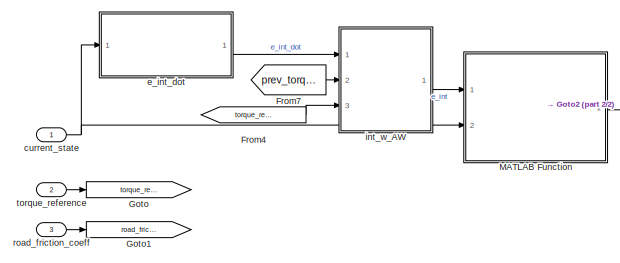
[diagram: CarMaker/Traction control/ControllerFL/NMPC - part 1/2, top left region]
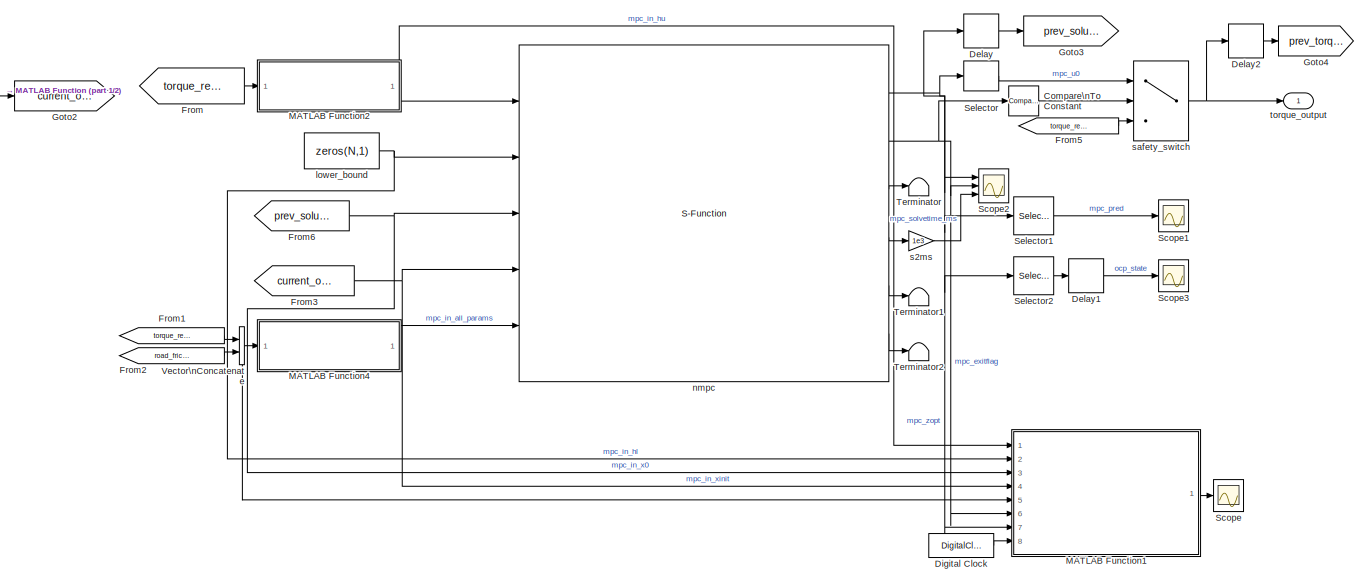
[diagram: CarMaker/Traction control/ControllerFL/NMPC - part 2/2, center side, full height]
BLOCK [SubSystem] CarMaker/Traction control/ControllerFL/NMPC
  Ports = [3, 1]
  RequestExecContextInheritance = off
  SID = 2410
  VariantControl = controller_type == 1
BLOCK [Reference] CarMaker/Traction control/ControllerFL/NMPC/Compare\nTo Constant  REF=simulink/Logic and Bit\nOperations/Compare\nTo Constant
  OutDataTypeStr = boolean
  Ports = [1, 1]
  RTWMemSecDataConstants = Inherit from model
  RTWMemSecDataInternal = Inherit from model
  RTWMemSecDataParameters = Inherit from model
  RTWMemSecFuncExecute = Inherit from model
  RTWMemSecFuncInitTerm = Inherit from model
  SID = 2905
  SourceBlock = simulink/Logic and Bit\nOperations/Compare\nTo Constant
  SourceProductBaseCode = SL
  SourceType = Compare To Constant
  ZeroCross = on
  const = 1
  relop = ==
BLOCK [Delay] CarMaker/Traction control/ControllerFL/NMPC/Delay
  DelayLength = 1
  InitialCondition = repmat([0;0;w0;0],N,1)
  InputPortMap = u0
  Ports = [1, 1]
  SID = 3025
  SampleTime = Ts
BLOCK [Delay] CarMaker/Traction control/ControllerFL/NMPC/Delay1
  DelayLength = 1
  InitialCondition = 0
  InputPortMap = u0
  Ports = [1, 1]
  SID = 3093
  SampleTime = Ts
BLOCK [Delay] CarMaker/Traction control/ControllerFL/NMPC/Delay2
  DelayLength = 1
  InitialCondition = 0
  InputPortMap = u0
  Ports = [1, 1]
  SID = 3185
  SampleTime = Ts
BLOCK [DigitalClock] CarMaker/Traction control/ControllerFL/NMPC/Digital Clock
  Commented = on
  SID = 3364
  SampleTime = Ts
BLOCK [From] CarMaker/Traction control/ControllerFL/NMPC/From
  GotoTag = torque_reference
  SID = 2414
BLOCK [From] CarMaker/Traction control/ControllerFL/NMPC/From1
  GotoTag = torque_reference
  SID = 2415
BLOCK [From] CarMaker/Traction control/ControllerFL/NMPC/From2
  GotoTag = road_friction_coeff
  SID = 2416
BLOCK [From] CarMaker/Traction control/ControllerFL/NMPC/From3
  GotoTag = current_ocp_state
  SID = 2417
BLOCK [From] CarMaker/Traction control/ControllerFL/NMPC/From4
  GotoTag = torque_reference
  SID = 3371
BLOCK [From] CarMaker/Traction control/ControllerFL/NMPC/From5
  GotoTag = torque_reference
  SID = 2907
BLOCK [From] CarMaker/Traction control/ControllerFL/NMPC/From6
  GotoTag = prev_solution
  SID = 3024
BLOCK [From] CarMaker/Traction control/ControllerFL/NMPC/From7
  GotoTag = prev_torque
  SID = 3193
BLOCK [Goto] CarMaker/Traction control/ControllerFL/NMPC/Goto
  GotoTag = torque_reference
  SID = 2418
BLOCK [Goto] CarMaker/Traction control/ControllerFL/NMPC/Goto1
  GotoTag = road_friction_coeff
  SID = 2419
BLOCK [Goto] CarMaker/Traction control/ControllerFL/NMPC/Goto2
  GotoTag = current_ocp_state
  SID = 2420
BLOCK [Goto] CarMaker/Traction control/ControllerFL/NMPC/Goto3
  GotoTag = prev_solution
  SID = 3023
BLOCK [Goto] CarMaker/Traction control/ControllerFL/NMPC/Goto4
  GotoTag = prev_torque
  SID = 3184
BLOCK [SubSystem] CarMaker/Traction control/ControllerFL/NMPC/MATLAB Function
  ErrorFcn = Stateflow.Translate.translate
  PermitHierarchicalResolution = ExplicitOnly
  Ports = [2, 1]
  RequestExecContextInheritance = off
  SFBlockType = MATLAB Function
  SID = 2422
  TreatAsAtomicUnit = on
BLOCK [Demux] CarMaker/Traction control/ControllerFL/NMPC/MATLAB Function/ Demux 
  Outputs = 1
  Ports = [1, 1]
  SID = 2422::23
BLOCK [S-Function] CarMaker/Traction control/ControllerFL/NMPC/MATLAB Function/ SFunction 
  EnableBusSupport = on
  FunctionName = sf_sfun
  Parameters = R
  PortCounts = [2 2]
  Ports = [2, 2]
  SFcnIsStateOwnerBlock = off
  SFunctionDeploymentMode = off
  SID = 2422::22
  Tag = Stateflow S-Function 1
BLOCK [Terminator] CarMaker/Traction control/ControllerFL/NMPC/MATLAB Function/ Terminator 
  SID = 2422::24
BLOCK [Inport] CarMaker/Traction control/ControllerFL/NMPC/MATLAB Function/current_state
  Port = 2
  SID = 2422::1
BLOCK [Inport] CarMaker/Traction control/ControllerFL/NMPC/MATLAB Function/e_int
  SID = 2422::25
BLOCK [Outport] CarMaker/Traction control/ControllerFL/NMPC/MATLAB Function/ocp_state
  SID = 2422::5
BLOCK [SubSystem] CarMaker/Traction control/ControllerFL/NMPC/MATLAB Function1
  Commented = on
  ErrorFcn = Stateflow.Translate.translate
  PermitHierarchicalResolution = ExplicitOnly
  Ports = [8, 1]
  RequestExecContextInheritance = off
  SFBlockType = MATLAB Function
  SID = 3020
  TreatAsAtomicUnit = on
BLOCK [Demux] CarMaker/Traction control/ControllerFL/NMPC/MATLAB Function1/ Demux 
  Outputs = 1
  Ports = [1, 1]
  SID = 3020::23
BLOCK [S-Function] CarMaker/Traction control/ControllerFL/NMPC/MATLAB Function1/ SFunction 
  EnableBusSupport = on
  FunctionName = sf_sfun
  Parameters = N
  PortCounts = [8 2]
  Ports = [8, 2]
  SFcnIsStateOwnerBlock = off
  SFunctionDeploymentMode = off
  SID = 3020::22
  Tag = Stateflow S-Function 12
BLOCK [Terminator] CarMaker/Traction control/ControllerFL/NMPC/MATLAB Function1/ Terminator 
  SID = 3020::24
BLOCK [Outport] CarMaker/Traction control/ControllerFL/NMPC/MATLAB Function1/alles_gut
  SID = 3020::5
BLOCK [Inport] CarMaker/Traction control/ControllerFL/NMPC/MATLAB Function1/exitflag
  Port = 6
  SID = 3020::30
BLOCK [Inport] CarMaker/Traction control/ControllerFL/NMPC/MATLAB Function1/hl
  Port = 2
  SID = 3020::25
BLOCK [Inport] CarMaker/Traction control/ControllerFL/NMPC/MATLAB Function1/hu
  SID = 3020::1
BLOCK [Inport] CarMaker/Traction control/ControllerFL/NMPC/MATLAB Function1/p
  Port = 5
  SID = 3020::28
BLOCK [Inport] CarMaker/Traction control/ControllerFL/NMPC/MATLAB Function1/t
  Port = 8
  SID = 3020::32
BLOCK [Inport] CarMaker/Traction control/ControllerFL/NMPC/MATLAB Function1/x0
  Port = 3
  SID = 3020::26
BLOCK [Inport] CarMaker/Traction control/ControllerFL/NMPC/MATLAB Function1/xinit
  Port = 4
  SID = 3020::27
BLOCK [Inport] CarMaker/Traction control/ControllerFL/NMPC/MATLAB Function1/zopt
  Port = 7
  SID = 3020::31
BLOCK [SubSystem] CarMaker/Traction control/ControllerFL/NMPC/MATLAB Function2
  ErrorFcn = Stateflow.Translate.translate
  PermitHierarchicalResolution = ExplicitOnly
  Ports = [1, 1]
  RequestExecContextInheritance = off
  SFBlockType = MATLAB Function
  SID = 2424
  TreatAsAtomicUnit = on
BLOCK [Demux] CarMaker/Traction control/ControllerFL/NMPC/MATLAB Function2/ Demux 
  Outputs = 1
  Ports = [1, 1]
  SID = 2424::23
BLOCK [S-Function] CarMaker/Traction control/ControllerFL/NMPC/MATLAB Function2/ SFunction 
  EnableBusSupport = on
  FunctionName = sf_sfun
  Parameters = N
  PortCounts = [1 2]
  Ports = [1, 2]
  SFcnIsStateOwnerBlock = off
  SFunctionDeploymentMode = off
  SID = 2424::22
  Tag = Stateflow S-Function 3
BLOCK [Terminator] CarMaker/Traction control/ControllerFL/NMPC/MATLAB Function2/ Terminator 
  SID = 2424::24
BLOCK [Inport] CarMaker/Traction control/ControllerFL/NMPC/MATLAB Function2/u
  SID = 2424::1
BLOCK [Outport] CarMaker/Traction control/ControllerFL/NMPC/MATLAB Function2/y
  SID = 2424::5
BLOCK [SubSystem] CarMaker/Traction control/ControllerFL/NMPC/MATLAB Function4
  ErrorFcn = Stateflow.Translate.translate
  PermitHierarchicalResolution = ExplicitOnly
  Ports = [1, 1]
  RequestExecContextInheritance = off
  SFBlockType = MATLAB Function
  SID = 2426
  TreatAsAtomicUnit = on
BLOCK [Demux] CarMaker/Traction control/ControllerFL/NMPC/MATLAB Function4/ Demux 
  Outputs = 1
  Ports = [1, 1]
  SID = 2426::23
BLOCK [S-Function] CarMaker/Traction control/ControllerFL/NMPC/MATLAB Function4/ SFunction 
  EnableBusSupport = on
  FunctionName = sf_sfun
  Parameters = N
  PortCounts = [1 2]
  Ports = [1, 2]
  SFcnIsStateOwnerBlock = off
  SFunctionDeploymentMode = off
  SID = 2426::22
  Tag = Stateflow S-Function 5
BLOCK [Terminator] CarMaker/Traction control/ControllerFL/NMPC/MATLAB Function4/ Terminator 
  SID = 2426::24
BLOCK [Inport] CarMaker/Traction control/ControllerFL/NMPC/MATLAB Function4/u
  SID = 2426::1
BLOCK [Outport] CarMaker/Traction control/ControllerFL/NMPC/MATLAB Function4/y
  SID = 2426::5
BLOCK [Scope] CarMaker/Traction control/ControllerFL/NMPC/Scope
  Commented = on
  Floating = off
  NumInputPorts = 1
  Ports = [1]
  SID = 3087
  ScopeSpecificationString = Simulink.scopes.TimeScopeBlockCfg('CurrentConfiguration', extmgr.ConfigurationSet(extmgr.Configuration('Core','General UI',true),extmgr.Configuration('Core','Source UI',true),extmgr.Configuration('Sources','WiredSimulink',true,'DataLoggingVariableName','ScopeData1'),extmgr.Configuration('Visuals','Time Domain',true,'SerializedDisplays',{struct('MinYLimReal','0.9','MaxYLimReal','1.1','YLabelReal','...<+1366ch>
BLOCK [Scope] CarMaker/Traction control/ControllerFL/NMPC/Scope1
  Floating = off
  NumInputPorts = 1
  Ports = [1]
  SID = 3095
  ScopeSpecificationString = Simulink.scopes.TimeScopeBlockCfg('CurrentConfiguration', extmgr.ConfigurationSet(extmgr.Configuration('Core','General UI',true),extmgr.Configuration('Core','Source UI',true),extmgr.Configuration('Sources','WiredSimulink',true,'DataLoggingVariableName','ScopeData2'),extmgr.Configuration('Visuals','Time Domain',true,'SerializedDisplays',{struct('MinYLimReal','-0.16498','MaxYLimReal','1.48483','YLab...<+1433ch>
BLOCK [Scope] CarMaker/Traction control/ControllerFL/NMPC/Scope2
  Floating = off
  NumInputPorts = 3
  Ports = [3]
  SID = 2428
  ScopeSpecificationString = Simulink.scopes.TimeScopeBlockCfg('CurrentConfiguration', extmgr.ConfigurationSet(extmgr.Configuration('Core','General UI',true),extmgr.Configuration('Core','Source UI',true),extmgr.Configuration('Sources','WiredSimulink',true,'DataLoggingVariableName','ScopeData1'),extmgr.Configuration('Visuals','Time Domain',true,'SerializedDisplays',{struct('MinYLimReal','-31.8479','MaxYLimReal','281.31643','YL...<+2997ch>
BLOCK [Scope] CarMaker/Traction control/ControllerFL/NMPC/Scope3
  Floating = off
  NumInputPorts = 1
  Ports = [1]
  SID = 3096
  ScopeSpecificationString = Simulink.scopes.TimeScopeBlockCfg('CurrentConfiguration', extmgr.ConfigurationSet(extmgr.Configuration('Core','General UI',true),extmgr.Configuration('Core','Source UI',true),extmgr.Configuration('Sources','WiredSimulink',true,'DataLoggingVariableName','ScopeData3'),extmgr.Configuration('Visuals','Time Domain',true,'SerializedDisplays',{struct('MinYLimReal','-0.76481','MaxYLimReal','1.56861','YLab...<+1437ch>
BLOCK [Selector] CarMaker/Traction control/ControllerFL/NMPC/Selector
  IndexOptions = Index vector (dialog)
  Indices = 1
  InputPortWidth = N*4
  OutputSizes = 1
  Ports = [1, 1]
  SID = 3021
BLOCK [Selector] CarMaker/Traction control/ControllerFL/NMPC/Selector1
  IndexOptions = Index vector (dialog)
  Indices = [6 8]
  InputPortWidth = 4*N
  OutputSizes = 1
  Ports = [1, 1]
  SID = 3090
BLOCK [Selector] CarMaker/Traction control/ControllerFL/NMPC/Selector2
  IndexOptions = Index vector (dialog)
  Indices = [2 4]
  InputPortWidth = 4*N
  OutputSizes = 1
  Ports = [1, 1]
  SID = 3092
BLOCK [Terminator] CarMaker/Traction control/ControllerFL/NMPC/Terminator
  SID = 2429
BLOCK [Terminator] CarMaker/Traction control/ControllerFL/NMPC/Terminator1
  SID = 2430
BLOCK [Terminator] CarMaker/Traction control/ControllerFL/NMPC/Terminator2
  SID = 2431
BLOCK [Concatenate] CarMaker/Traction control/ControllerFL/NMPC/Vector\nConcatenate
  Ports = [2, 1]
  SID = 2433
BLOCK [Inport] CarMaker/Traction control/ControllerFL/NMPC/current_state
  SID = 2411
BLOCK [SubSystem] CarMaker/Traction control/ControllerFL/NMPC/e_int_dot
  ErrorFcn = Stateflow.Translate.translate
  PermitHierarchicalResolution = ExplicitOnly
  Ports = [1, 1]
  RequestExecContextInheritance = off
  SFBlockType = MATLAB Function
  SID = 2848
  TreatAsAtomicUnit = on
BLOCK [Demux] CarMaker/Traction control/ControllerFL/NMPC/e_int_dot/ Demux 
  Outputs = 1
  Ports = [1, 1]
  SID = 2848::23
BLOCK [S-Function] CarMaker/Traction control/ControllerFL/NMPC/e_int_dot/ SFunction 
  EnableBusSupport = on
  FunctionName = sf_sfun
  Parameters = R,kappa_ref
  PortCounts = [1 2]
  Ports = [1, 2]
  SFcnIsStateOwnerBlock = off
  SFunctionDeploymentMode = off
  SID = 2848::22
  Tag = Stateflow S-Function 6
BLOCK [Terminator] CarMaker/Traction control/ControllerFL/NMPC/e_int_dot/ Terminator 
  SID = 2848::24
BLOCK [Inport] CarMaker/Traction control/ControllerFL/NMPC/e_int_dot/current_state
  SID = 2848::1
BLOCK [Outport] CarMaker/Traction control/ControllerFL/NMPC/e_int_dot/e_int_dot
  SID = 2848::5
BLOCK [SubSystem] CarMaker/Traction control/ControllerFL/NMPC/int_w_AW
  Ports = [3, 1]
  RequestExecContextInheritance = off
  SID = 3181
BLOCK [Abs] CarMaker/Traction control/ControllerFL/NMPC/int_w_AW/Abs
  SID = 3197
  SaturateOnIntegerOverflow = off
BLOCK [Reference] CarMaker/Traction control/ControllerFL/NMPC/int_w_AW/Compare\nTo Constant  REF=simulink/Logic and Bit\nOperations/Compare\nTo Constant
  OutDataTypeStr = boolean
  Ports = [1, 1]
  RTWMemSecDataConstants = Inherit from model
  RTWMemSecDataInternal = Inherit from model
  RTWMemSecDataParameters = Inherit from model
  RTWMemSecFuncExecute = Inherit from model
  RTWMemSecFuncInitTerm = Inherit from model
  SID = 3199
  SourceBlock = simulink/Logic and Bit\nOperations/Compare\nTo Constant
  SourceProductBaseCode = SL
  SourceType = Compare To Constant
  ZeroCross = on
  const = 1
  relop = <=
BLOCK [Constant] CarMaker/Traction control/ControllerFL/NMPC/int_w_AW/Constant
  SID = 3191
  SampleTime = Ts
  Value = 0
BLOCK [DiscreteIntegrator] CarMaker/Traction control/ControllerFL/NMPC/int_w_AW/Discrete-Time\nIntegrator
  ICPrevOutput = DiscIntNeverNeededParam
  ICPrevScaledInput = DiscIntNeverNeededParam
  InitialConditionSetting = Auto
  LimitOutput = on
  Ports = [1, 1]
  SID = 3170
  SampleTime = Ts
BLOCK [Sum] CarMaker/Traction control/ControllerFL/NMPC/int_w_AW/Sum
  IconShape = rectangular
  Inputs = |+-
  Ports = [2, 1]
  SID = 3195
BLOCK [Switch] CarMaker/Traction control/ControllerFL/NMPC/int_w_AW/Switch
  Criteria = u2 > Threshold
  InputSameDT = off
  SID = 3189
  SaturateOnIntegerOverflow = off
BLOCK [Outport] CarMaker/Traction control/ControllerFL/NMPC/int_w_AW/e_int
  SID = 3183
BLOCK [Inport] CarMaker/Traction control/ControllerFL/NMPC/int_w_AW/e_int_dot
  SID = 3182
BLOCK [Inport] CarMaker/Traction control/ControllerFL/NMPC/int_w_AW/max_torque
  Port = 3
  SID = 3188
BLOCK [Inport] CarMaker/Traction control/ControllerFL/NMPC/int_w_AW/prev_torque
  Port = 2
  SID = 3187
BLOCK [Constant] CarMaker/Traction control/ControllerFL/NMPC/lower_bound
  SID = 2436
  SampleTime = Ts
  Value = zeros(N,1)
BLOCK [S-Function] CarMaker/Traction control/ControllerFL/NMPC/nmpc
  EnableBusSupport = off
  FunctionName = nmpc_simulinkBlock
  Ports = [5, 6]
  SFcnIsStateOwnerBlock = off
  SFunctionDeploymentMode = off
  SFunctionModules = nmpc nmpc_simulinkBlock
  SID = 2437
BLOCK [Inport] CarMaker/Traction control/ControllerFL/NMPC/road_friction_coeff
  Port = 3
  SID = 2413
BLOCK [Gain] CarMaker/Traction control/ControllerFL/NMPC/s2ms
  Gain = 1e3
  SID = 3162
BLOCK [Switch] CarMaker/Traction control/ControllerFL/NMPC/safety_switch
  Criteria = u2 > Threshold
  InputSameDT = off
  SID = 2906
  SaturateOnIntegerOverflow = off
BLOCK [Outport] CarMaker/Traction control/ControllerFL/NMPC/torque_output
  SID = 2438
BLOCK [Inport] CarMaker/Traction control/ControllerFL/NMPC/torque_reference
  Port = 2
  SID = 2412
BLOCK [SubSystem] CarMaker/Traction control/ControllerFL/PID
  Ports = [3, 1]
  RequestExecContextInheritance = off
  SID = 2753
  VariantControl = controller_type == 3 || controller_type == 4
BLOCK [Reference] CarMaker/Traction control/ControllerFL/PID/Compare\nTo Constant  REF=simulink/Logic and Bit\nOperations/Compare\nTo Constant
  OutDataTypeStr = boolean
  Ports = [1, 1]
  RTWMemSecDataConstants = Inherit from model
  RTWMemSecDataInternal = Inherit from model
  RTWMemSecDataParameters = Inherit from model
  RTWMemSecFuncExecute = Inherit from model
  RTWMemSecFuncInitTerm = Inherit from model
  SID = 4203
  SourceBlock = simulink/Logic and Bit\nOperations/Compare\nTo Constant
  SourceProductBaseCode = SL
  SourceType = Compare To Constant
  ZeroCross = on
  const = 4
  relop = ==
BLOCK [Constant] CarMaker/Traction control/ControllerFL/PID/Constant
  SID = 4199
  SampleTime = Ts
  Value = controller_type
BLOCK [Constant] CarMaker/Traction control/ControllerFL/PID/Constant1
  SID = 2757
  SampleTime = Ts
  Value = 0
BLOCK [Reference] CarMaker/Traction control/ControllerFL/PID/IsPositive  REF=simulink/Logic and Bit\nOperations/Compare\nTo Zero
  OutDataTypeStr = boolean
  Ports = [1, 1]
  RTWMemSecDataConstants = Inherit from model
  RTWMemSecDataInternal = Inherit from model
  RTWMemSecDataParameters = Inherit from model
  RTWMemSecFuncExecute = Inherit from model
  RTWMemSecFuncInitTerm = Inherit from model
  SID = 2963
  SourceBlock = simulink/Logic and Bit\nOperations/Compare\nTo Zero
  SourceProductBaseCode = SL
  SourceType = Compare To Zero
  ZeroCross = on
  relop = >
BLOCK [Reference] CarMaker/Traction control/ControllerFL/PID/PID Controller1  REF=pid_lib/PID Controller
  AWVariant = DiscClampingParallel
  AntiWindupMode = clamping
  Controller = PI
  ControllerParametersSource = internal
  D = 0
  DGainOutDataTypeStr = Inherit: Inherit via internal rule
  DOutMax = []
  DOutMin = []
  DParamDataTypeStr = Inherit: Inherit via internal rule
  DParamMax = []
  DParamMin = []
  DProdOutDataTypeStr = Inherit: Inherit via internal rule
  DVariant = Disabled
  DerivativeFilterVariant = Disabled
  DifferentiatorICPrevScaledInput = 0
  DifferentiatorOutDataTypeStr = Inherit: Inherit via internal rule
  DifferentiatorOutMax = []
  DifferentiatorOutMin = []
  DivideOutDataTypeStr = Inherit: Inherit via internal rule
  DivideOutMax = []
  DivideOutMin = []
  ExternalReset = rising
  ExternalResetVariant = ExternalReset
  ExternalSaturationOutDataTypeStr = Inherit: Same as second input
  FdbkBlocksVariant = Forward
  FilterContinuousStateAttributes = ''
  FilterDiffDenAccumDataTypeStr = Inherit: Inherit via internal rule
  FilterDiffDenProductOutputDataTypeStr = Inherit: Inherit via internal rule
  FilterDiffNumAccumDataTypeStr = Inherit: Inherit via internal rule
  FilterDiffNumProductOutputDataTypeStr = Inherit: Inherit via internal rule
  FilterDiffOutCoefDataTypeStr = Inherit: Inherit via internal rule
  FilterDiffOutCoefMax = []
  FilterDiffOutCoefMin = []
  FilterICVariant = Disabled
  FilterMethod = Forward Euler
  FilterOutDataTypeStr = Inherit: Inherit via internal rule
  FilterOutMax = []
  FilterOutMin = []
  FilterRTWStateStorageClass = Auto
  FilterStateMustResolveToSignalObject = off
  Form = Parallel
  I = I
  IGainOutDataTypeStr = Inherit: Inherit via internal rule
  IOutMax = []
  IOutMin = []
  IParamDataTypeStr = Inherit: Inherit via internal rule
  IParamMax = []
  IParamMin = []
  IProdOutDataTypeStr = Inherit: Inherit via internal rule
  IVariant = InternalParameters
  IdealPFdbkVariant = Disabled
  IdealPVariant = Disabled
  IgnoreLimit = off
  InitialConditionForFilter = 0
  InitialConditionForIntegrator = 0
  InitialConditionSetting = Auto
  InitialConditionSource = internal
  IntegratorContinuousStateAttributes = ''
  IntegratorICVariant = InternalICs
  IntegratorMethod = Forward Euler
  IntegratorOutDataTypeStr = Inherit: Inherit via internal rule
  IntegratorOutMax = []
  IntegratorOutMin = []
  IntegratorRTWStateStorageClass = Auto
  IntegratorStateMustResolveToSignalObject = off
  IntegratorVariant = Discrete
  Kb = 1
  KbOutDataTypeStr = Inherit: Inherit via internal rule
  KbOutMax = []
  KbOutMin = []
  KbParamDataTypeStr = Inherit: Inherit via internal rule
  KbParamMax = []
  KbParamMin = []
  Kt = 1
  KtOutDataTypeStr = Inherit: Inherit via internal rule
  KtOutMax = []
  KtOutMin = []
  KtParamDataTypeStr = Inherit: Inherit via internal rule
  KtParamMax = []
  KtParamMin = []
  LimitOutput = on
  LinearizeAsGain = on
  LockScale = off
  LowerSaturationLimit = 0
  N = 100
  NCopyVariant = Disabled_SignalSpec
  NGainOutDataTypeStr = Inherit: Inherit via internal rule
  NOutMax = []
  NOutMin = []
  NParamDataTypeStr = Inherit: Inherit via internal rule
  NParamMax = []
  NParamMin = []
  NProdOutDataTypeStr = Inherit: Inherit via internal rule
  NTsProdOutDataTypeStr = Inherit: Inherit via internal rule
  NTsProdOutMax = []
  NTsProdOutMin = []
  NVariant = Disabled
  P = P
  PCopyVariant = Disabled
  PGainOutDataTypeStr = Inherit: Inherit via internal rule
  POutMax = []
  POutMin = []
  PParamDataTypeStr = Inherit: Inherit via internal rule
  PParamMax = []
  PParamMin = []
  PProdOutDataTypeStr = Inherit: Inherit via internal rule
  ParallelPVariant = InternalParameters
  Ports = [4, 1]
  RTWMemSecDataConstants = Inherit from model
  RTWMemSecDataInternal = Inherit from model
  RTWMemSecDataParameters = Inherit from model
  RTWMemSecFuncExecute = Inherit from model
  RTWMemSecFuncInitTerm = Inherit from model
  ReciprocalOutDataTypeStr = Inherit: Inherit via internal rule
  ReciprocalOutMax = []
  ReciprocalOutMin = []
  RndMeth = Floor
  SID = 2760
  SampleTime = -1
  SatFdbkVariant = Disabled
  SatLimitsSource = external
  SatVariant = External
  SaturateOnIntegerOverflow = off
  SaturationOutDataTypeStr = Inherit: Same as input
  SaturationOutMax = []
  SaturationOutMin = []
  SourceBlock = pid_lib/PID Controller
  SourceProductBaseCode = SL
  SourceType = PID 1dof
  SumAccumDataTypeStr = Inherit: Inherit via internal rule
  SumDAccumDataTypeStr = Inherit: Inherit via internal rule
  SumDOutDataTypeStr = Inherit: Inherit via internal rule
  SumDOutMax = []
  SumDOutMin = []
  SumDenAccumDataTypeStr = Inherit: Inherit via internal rule
  SumDenOutDataTypeStr = Inherit: Inherit via internal rule
  SumDenOutMax = []
  SumDenOutMin = []
  SumFdbkVariant = Disabled
  SumI1AccumDataTypeStr = Inherit: Inherit via internal rule
  SumI1OutDataTypeStr = Inherit: Inherit via internal rule
  SumI1OutMax = []
  SumI1OutMin = []
  SumI2AccumDataTypeStr = Inherit: Inherit via internal rule
  SumI2OutDataTypeStr = Inherit: Inherit via internal rule
  SumI2OutMax = []
  SumI2OutMin = []
  SumI3AccumDataTypeStr = Inherit: Inherit via internal rule
  SumI3OutDataTypeStr = Inherit: Inherit via internal rule
  SumI3OutMax = []
  SumI3OutMin = []
  SumI4AccumDataTypeStr = Inherit: Inherit via internal rule
  SumI4OutDataTypeStr = Inherit: Inherit via internal rule
  SumI4OutMax = []
  SumI4OutMin = []
  SumNumAccumDataTypeStr = Inherit: Inherit via internal rule
  SumNumOutDataTypeStr = Inherit: Inherit via internal rule
  SumNumOutMax = []
  SumNumOutMin = []
  SumOutDataTypeStr = Inherit: Inherit via internal rule
  SumOutMax = []
  SumOutMin = []
  SumVariant = Sum_PI
  TRSumVariant = Passthrough
  TRVariant = Disabled
  TimeDomain = Discrete-time
  TrackingMode = off
  TsampFilterVariant = InternalTs
  TsampIntegralVariant = Passthrough
  TsampNgainVariant = Passthrough
  TunerSelectOption = Transfer Function Based (PID Tuner App)
  UdiffTsProdOutDataTypeStr = Inherit: Inherit via internal rule
  UdiffTsProdOutMax = []
  UdiffTsProdOutMin = []
  UintegralTsProdOutDataTypeStr = Inherit: Inherit via internal rule
  UintegralTsProdOutMax = []
  UintegralTsProdOutMin = []
  UngainTsProdOutDataTypeStr = Inherit: Inherit via internal rule
  UngainTsProdOutMax = []
  UngainTsProdOutMin = []
  UpperSaturationLimit = 500
  UseExternalTs = off
  UseFilter = on
  ZeroCross = on
BLOCK [Product] CarMaker/Traction control/ControllerFL/PID/Product
  Ports = [2, 1]
  SID = 4206
BLOCK [RandomNumber] CarMaker/Traction control/ControllerFL/PID/Random\nNumber
  SID = 4209
  SampleTime = Ts
  Seed = 42
  Variance = 200
BLOCK [RateTransition] CarMaker/Traction control/ControllerFL/PID/Rate Transition
  SID = 5169
BLOCK [Selector] CarMaker/Traction control/ControllerFL/PID/Selector
  IndexOptions = Index vector (dialog)
  Indices = 3
  InputPortWidth = 3
  OutputSizes = 1
  Ports = [1, 1]
  SID = 2791
BLOCK [Sum] CarMaker/Traction control/ControllerFL/PID/Sum
  Inputs = ++|
  Ports = [2, 1]
  SID = 4210
BLOCK [Sum] CarMaker/Traction control/ControllerFL/PID/Sum1
  Inputs = +-|
  Ports = [2, 1]
  SID = 2762
BLOCK [Terminator] CarMaker/Traction control/ControllerFL/PID/Terminator
  SID = 2763
BLOCK [Inport] CarMaker/Traction control/ControllerFL/PID/current_state
  SID = 2754
BLOCK [Constant] CarMaker/Traction control/ControllerFL/PID/kappa_ref
  SID = 2847
  SampleTime = Ts
  Value = kappa_ref
BLOCK [Inport] CarMaker/Traction control/ControllerFL/PID/road_friction_coeff
  Port = 3
  SID = 2756
BLOCK [Outport] CarMaker/Traction control/ControllerFL/PID/torque_output
  SID = 2765
BLOCK [Inport] CarMaker/Traction control/ControllerFL/PID/torque_reference
  Port = 2
  SID = 2755
BLOCK [Inport] CarMaker/Traction control/ControllerFL/current_state
  SID = 2407
BLOCK [SubSystem] CarMaker/Traction control/ControllerFL/no_control
  Ports = [3, 1]
  RequestExecContextInheritance = off
  SID = 2452
  VariantControl = controller_type == 0
BLOCK [Terminator] CarMaker/Traction control/ControllerFL/no_control/Terminator
  SID = 2456
BLOCK [Terminator] CarMaker/Traction control/ControllerFL/no_control/Terminator1
  SID = 2457
BLOCK [Inport] CarMaker/Traction control/ControllerFL/no_control/current_state
  SID = 2453
BLOCK [Inport] CarMaker/Traction control/ControllerFL/no_control/road_friction_coeff
  Port = 3
  SID = 2455
BLOCK [Outport] CarMaker/Traction control/ControllerFL/no_control/torque_output
  SID = 2458
BLOCK [Inport] CarMaker/Traction control/ControllerFL/no_control/torque_reference
  Port = 2
  SID = 2454
BLOCK [SubSystem] CarMaker/Traction control/ControllerFL/open_loop_random
  Ports = [3, 1]
  RequestExecContextInheritance = off
  SID = 4580
  VariantControl = controller_type == 7
BLOCK [FromWorkspace] CarMaker/Traction control/ControllerFL/open_loop_random/From\nWorkspace
  SID = 4629
  SampleTime = Ts
  VariableName = sim_input
BLOCK [MinMax] CarMaker/Traction control/ControllerFL/open_loop_random/Min
  Inputs = 2
  Ports = [2, 1]
  SID = 4820
BLOCK [Terminator] CarMaker/Traction control/ControllerFL/open_loop_random/Terminator
  SID = 4604
BLOCK [Terminator] CarMaker/Traction control/ControllerFL/open_loop_random/Terminator2
  SID = 4628
BLOCK [Inport] CarMaker/Traction control/ControllerFL/open_loop_random/current_state
  SID = 4581
BLOCK [Inport] CarMaker/Traction control/ControllerFL/open_loop_random/road_friction_coeff
  Port = 3
  SID = 4583
BLOCK [Outport] CarMaker/Traction control/ControllerFL/open_loop_random/torque_output
  SID = 4631
BLOCK [Inport] CarMaker/Traction control/ControllerFL/open_loop_random/torque_reference
  Port = 2
  SID = 4582
BLOCK [Inport] CarMaker/Traction control/ControllerFL/road_friction_coeff
  Port = 3
  SID = 2409
BLOCK [Outport] CarMaker/Traction control/ControllerFL/torque_output
  SID = 2459
BLOCK [Inport] CarMaker/Traction control/ControllerFL/torque_reference
  Port = 2
  SID = 2408
BLOCK [SubSystem] CarMaker/Traction control/ControllerFR
  Ports = [3, 1]
  RequestExecContextInheritance = off
  SID = 4886
  Variant = on
BLOCK [SubSystem] CarMaker/Traction control/ControllerFR/KMPC
  Ports = [3, 1]
  RequestExecContextInheritance = off
  SID = 4890
  VariantControl = controller_type == 2
BLOCK [Reference] CarMaker/Traction control/ControllerFR/KMPC/Compare\nTo Constant1  REF=simulink/Logic and Bit\nOperations/Compare\nTo Constant
  OutDataTypeStr = boolean
  Ports = [1, 1]
  RTWMemSecDataConstants = Inherit from model
  RTWMemSecDataInternal = Inherit from model
  RTWMemSecDataParameters = Inherit from model
  RTWMemSecFuncExecute = Inherit from model
  RTWMemSecFuncInitTerm = Inherit from model
  SID = 4894
  SourceBlock = simulink/Logic and Bit\nOperations/Compare\nTo Constant
  SourceProductBaseCode = SL
  SourceType = Compare To Constant
  ZeroCross = on
  const = 1
  relop = ==
BLOCK [Constant] CarMaker/Traction control/ControllerFR/KMPC/Constant
  SID = 4895
  SampleTime = Ts
  Value = kappa_ref
BLOCK [Delay] CarMaker/Traction control/ControllerFR/KMPC/Delay2
  DelayLength = 1
  InitialCondition = 0
  InputPortMap = u0
  Ports = [1, 1]
  SID = 4896
  SampleTime = Ts
BLOCK [From] CarMaker/Traction control/ControllerFR/KMPC/From10
  GotoTag = torque_reference
  SID = 4897
BLOCK [From] CarMaker/Traction control/ControllerFR/KMPC/From4
  GotoTag = torque_reference
  SID = 4898
BLOCK [From] CarMaker/Traction control/ControllerFR/KMPC/From7
  GotoTag = prev_torque
  SID = 4899
BLOCK [From] CarMaker/Traction control/ControllerFR/KMPC/From8
  GotoTag = current_ocp_state
  SID = 4900
BLOCK [From] CarMaker/Traction control/ControllerFR/KMPC/From9
  GotoTag = torque_reference
  SID = 4901
BLOCK [Gain] CarMaker/Traction control/ControllerFR/KMPC/Gain
  Gain = F
  Multiplication = Matrix(K*u)
  SID = 4902
BLOCK [Goto] CarMaker/Traction control/ControllerFR/KMPC/Goto
  GotoTag = torque_reference
  SID = 4903
BLOCK [Goto] CarMaker/Traction control/ControllerFR/KMPC/Goto2
  GotoTag = current_ocp_state
  SID = 4904
BLOCK [Goto] CarMaker/Traction control/ControllerFR/KMPC/Goto4
  GotoTag = prev_torque
  SID = 4905
BLOCK [SubSystem] CarMaker/Traction control/ControllerFR/KMPC/MATLAB Function
  ErrorFcn = Stateflow.Translate.translate
  PermitHierarchicalResolution = ExplicitOnly
  Ports = [2, 1]
  RequestExecContextInheritance = off
  SFBlockType = MATLAB Function
  SID = 4906
  TreatAsAtomicUnit = on
BLOCK [Demux] CarMaker/Traction control/ControllerFR/KMPC/MATLAB Function/ Demux 
  Outputs = 1
  Ports = [1, 1]
  SID = 4906::23
BLOCK [S-Function] CarMaker/Traction control/ControllerFR/KMPC/MATLAB Function/ SFunction 
  EnableBusSupport = on
  FunctionName = sf_sfun
  Parameters = R
  PortCounts = [2 2]
  Ports = [2, 2]
  SFcnIsStateOwnerBlock = off
  SFunctionDeploymentMode = off
  SID = 4906::22
  Tag = Stateflow S-Function 2
BLOCK [Terminator] CarMaker/Traction control/ControllerFR/KMPC/MATLAB Function/ Terminator 
  SID = 4906::24
BLOCK [Inport] CarMaker/Traction control/ControllerFR/KMPC/MATLAB Function/current_state
  Port = 2
  SID = 4906::1
BLOCK [Inport] CarMaker/Traction control/ControllerFR/KMPC/MATLAB Function/e_int
  SID = 4906::25
BLOCK [Outport] CarMaker/Traction control/ControllerFR/KMPC/MATLAB Function/ocp_state
  SID = 4906::5
BLOCK [SubSystem] CarMaker/Traction control/ControllerFR/KMPC/MATLAB Function3
  ErrorFcn = Stateflow.Translate.translate
  PermitHierarchicalResolution = ExplicitOnly
  Ports = [1, 1]
  RequestExecContextInheritance = off
  SFBlockType = MATLAB Function
  SID = 4907
  TreatAsAtomicUnit = on
BLOCK [Demux] CarMaker/Traction control/ControllerFR/KMPC/MATLAB Function3/ Demux 
  Outputs = 1
  Ports = [1, 1]
  SID = 4907::23
BLOCK [S-Function] CarMaker/Traction control/ControllerFR/KMPC/MATLAB Function3/ SFunction 
  EnableBusSupport = on
  FunctionName = sf_sfun
  Parameters = N
  PortCounts = [1 2]
  Ports = [1, 2]
  SFcnIsStateOwnerBlock = off
  SFunctionDeploymentMode = off
  SID = 4907::22
  Tag = Stateflow S-Function 4
BLOCK [Terminator] CarMaker/Traction control/ControllerFR/KMPC/MATLAB Function3/ Terminator 
  SID = 4907::24
BLOCK [Inport] CarMaker/Traction control/ControllerFR/KMPC/MATLAB Function3/u
  SID = 4907::1
BLOCK [Outport] CarMaker/Traction control/ControllerFR/KMPC/MATLAB Function3/y
  SID = 4907::5
BLOCK [SubSystem] CarMaker/Traction control/ControllerFR/KMPC/MATLAB Function5
  ErrorFcn = Stateflow.Translate.translate
  PermitHierarchicalResolution = ExplicitOnly
  Ports = [1, 1]
  RequestExecContextInheritance = off
  SFBlockType = MATLAB Function
  SID = 4908
  TreatAsAtomicUnit = on
BLOCK [Demux] CarMaker/Traction control/ControllerFR/KMPC/MATLAB Function5/ Demux 
  Outputs = 1
  Ports = [1, 1]
  SID = 4908::23
BLOCK [S-Function] CarMaker/Traction control/ControllerFR/KMPC/MATLAB Function5/ SFunction 
  EnableBusSupport = on
  FunctionName = sf_sfun
  Parameters = N,w_u
  PortCounts = [1 2]
  Ports = [1, 2]
  SFcnIsStateOwnerBlock = off
  SFunctionDeploymentMode = off
  SID = 4908::22
  Tag = Stateflow S-Function 8
BLOCK [Terminator] CarMaker/Traction control/ControllerFR/KMPC/MATLAB Function5/ Terminator 
  SID = 4908::24
BLOCK [Inport] CarMaker/Traction control/ControllerFR/KMPC/MATLAB Function5/T
  SID = 4908::1
BLOCK [Outport] CarMaker/Traction control/ControllerFR/KMPC/MATLAB Function5/y
  SID = 4908::5
BLOCK [Selector] CarMaker/Traction control/ControllerFR/KMPC/Selector3
  IndexOptions = Index vector (dialog)
  Indices = 1:2
  InputPortWidth = 3
  OutputSizes = 1
  Ports = [1, 1]
  SID = 4909
BLOCK [Selector] CarMaker/Traction control/ControllerFR/KMPC/Selector4
  IndexOptions = Index vector (dialog)
  Indices = 3
  InputPortWidth = 3
  OutputSizes = 1
  Ports = [1, 1]
  SID = 4910
BLOCK [Terminator] CarMaker/Traction control/ControllerFR/KMPC/Terminator
  SID = 4911
BLOCK [Terminator] CarMaker/Traction control/ControllerFR/KMPC/Terminator3
  SID = 4912
BLOCK [Terminator] CarMaker/Traction control/ControllerFR/KMPC/Terminator4
  SID = 4913
BLOCK [Terminator] CarMaker/Traction control/ControllerFR/KMPC/Terminator5
  SID = 4914
BLOCK [Terminator] CarMaker/Traction control/ControllerFR/KMPC/Terminator6
  SID = 4915
BLOCK [Concatenate] CarMaker/Traction control/ControllerFR/KMPC/Vector\nConcatenate1
  NumInputs = 3
  Ports = [3, 1]
  SID = 4916
BLOCK [Inport] CarMaker/Traction control/ControllerFR/KMPC/current_state
  SID = 4891
BLOCK [SubSystem] CarMaker/Traction control/ControllerFR/KMPC/e_int_dot
  ErrorFcn = Stateflow.Translate.translate
  PermitHierarchicalResolution = ExplicitOnly
  Ports = [1, 1]
  RequestExecContextInheritance = off
  SFBlockType = MATLAB Function
  SID = 4917
  TreatAsAtomicUnit = on
BLOCK [Demux] CarMaker/Traction control/ControllerFR/KMPC/e_int_dot/ Demux 
  Outputs = 1
  Ports = [1, 1]
  SID = 4917::23
BLOCK [S-Function] CarMaker/Traction control/ControllerFR/KMPC/e_int_dot/ SFunction 
  EnableBusSupport = on
  FunctionName = sf_sfun
  Parameters = R,kappa_ref
  PortCounts = [1 2]
  Ports = [1, 2]
  SFcnIsStateOwnerBlock = off
  SFunctionDeploymentMode = off
  SID = 4917::22
  Tag = Stateflow S-Function 9
BLOCK [Terminator] CarMaker/Traction control/ControllerFR/KMPC/e_int_dot/ Terminator 
  SID = 4917::24
BLOCK [Inport] CarMaker/Traction control/ControllerFR/KMPC/e_int_dot/current_state
  SID = 4917::1
BLOCK [Outport] CarMaker/Traction control/ControllerFR/KMPC/e_int_dot/e_int_dot
  SID = 4917::5
BLOCK [SubSystem] CarMaker/Traction control/ControllerFR/KMPC/int_w_AW
  Ports = [3, 1]
  RequestExecContextInheritance = off
  SID = 4918
BLOCK [Abs] CarMaker/Traction control/ControllerFR/KMPC/int_w_AW/Abs
  SID = 4922
  SaturateOnIntegerOverflow = off
BLOCK [Reference] CarMaker/Traction control/ControllerFR/KMPC/int_w_AW/Compare\nTo Constant  REF=simulink/Logic and Bit\nOperations/Compare\nTo Constant
  OutDataTypeStr = boolean
  Ports = [1, 1]
  RTWMemSecDataConstants = Inherit from model
  RTWMemSecDataInternal = Inherit from model
  RTWMemSecDataParameters = Inherit from model
  RTWMemSecFuncExecute = Inherit from model
  RTWMemSecFuncInitTerm = Inherit from model
  SID = 4923
  SourceBlock = simulink/Logic and Bit\nOperations/Compare\nTo Constant
  SourceProductBaseCode = SL
  SourceType = Compare To Constant
  ZeroCross = on
  const = 1
  relop = <=
BLOCK [Constant] CarMaker/Traction control/ControllerFR/KMPC/int_w_AW/Constant
  SID = 4924
  SampleTime = Ts
  Value = 0
BLOCK [DiscreteIntegrator] CarMaker/Traction control/ControllerFR/KMPC/int_w_AW/Discrete-Time\nIntegrator
  ICPrevOutput = DiscIntNeverNeededParam
  ICPrevScaledInput = DiscIntNeverNeededParam
  InitialConditionSetting = Auto
  LimitOutput = on
  Ports = [1, 1]
  SID = 4925
  SampleTime = Ts
BLOCK [Sum] CarMaker/Traction control/ControllerFR/KMPC/int_w_AW/Sum
  IconShape = rectangular
  Inputs = |+-
  Ports = [2, 1]
  SID = 4926
BLOCK [Switch] CarMaker/Traction control/ControllerFR/KMPC/int_w_AW/Switch
  Criteria = u2 > Threshold
  InputSameDT = off
  SID = 4927
  SaturateOnIntegerOverflow = off
BLOCK [Outport] CarMaker/Traction control/ControllerFR/KMPC/int_w_AW/e_int
  SID = 4928
BLOCK [Inport] CarMaker/Traction control/ControllerFR/KMPC/int_w_AW/e_int_dot
  SID = 4919
BLOCK [Inport] CarMaker/Traction control/ControllerFR/KMPC/int_w_AW/max_torque
  Port = 3
  SID = 4921
BLOCK [Inport] CarMaker/Traction control/ControllerFR/KMPC/int_w_AW/prev_torque
  Port = 2
  SID = 4920
BLOCK [S-Function] CarMaker/Traction control/ControllerFR/KMPC/kmpc
  EnableBusSupport = off
  FunctionName = kmpc_simulinkBlock
  Ports = [3, 6]
  SFcnIsStateOwnerBlock = off
  SFunctionDeploymentMode = off
  SFunctionModules = kmpc kmpc_simulinkBlock
  SID = 4929
BLOCK [MATLABFcn] CarMaker/Traction control/ControllerFR/KMPC/lift
  MATLABFcn = lifting_function(u)
  Ports = [1, 1]
  SID = 4930
BLOCK [MATLABFcn] CarMaker/Traction control/ControllerFR/KMPC/normalize_input
  MATLABFcn = mapstd_custom('apply',u,PU)
  Ports = [1, 1]
  SID = 4931
BLOCK [MATLABFcn] CarMaker/Traction control/ControllerFR/KMPC/normalize_state
  MATLABFcn = mapstd_custom('apply',u,PX)
  Ports = [1, 1]
  SID = 4932
BLOCK [Inport] CarMaker/Traction control/ControllerFR/KMPC/road_friction_coeff
  Port = 3
  SID = 4893
BLOCK [Gain] CarMaker/Traction control/ControllerFR/KMPC/s2ms
  Gain = 1e3
  SID = 4933
BLOCK [Switch] CarMaker/Traction control/ControllerFR/KMPC/safety_switch
  Criteria = u2 > Threshold
  InputSameDT = off
  SID = 4934
  SaturateOnIntegerOverflow = off
BLOCK [Outport] CarMaker/Traction control/ControllerFR/KMPC/torque_output
  SID = 4936
BLOCK [Inport] CarMaker/Traction control/ControllerFR/KMPC/torque_reference
  Port = 2
  SID = 4892
BLOCK [MATLABFcn] CarMaker/Traction control/ControllerFR/KMPC/unnormalize
  MATLABFcn = mapstd_custom('reverse',u,PU)
  Ports = [1, 1]
  SID = 4935
BLOCK [SubSystem] CarMaker/Traction control/ControllerFR/KMPC_Y2F
  Ports = [3, 1]
  RequestExecContextInheritance = off
  SID = 5306
  VariantControl = controller_type == 8
BLOCK [Reference] CarMaker/Traction control/ControllerFR/KMPC_Y2F/Compare\nTo Constant1  REF=simulink/Logic and Bit\nOperations/Compare\nTo Constant
  OutDataTypeStr = boolean
  Ports = [1, 1]
  RTWMemSecDataConstants = Inherit from model
  RTWMemSecDataInternal = Inherit from model
  RTWMemSecDataParameters = Inherit from model
  RTWMemSecFuncExecute = Inherit from model
  RTWMemSecFuncInitTerm = Inherit from model
  SID = 5310
  SourceBlock = simulink/Logic and Bit\nOperations/Compare\nTo Constant
  SourceProductBaseCode = SL
  SourceType = Compare To Constant
  ZeroCross = on
  const = 1
  relop = ==
BLOCK [Constant] CarMaker/Traction control/ControllerFR/KMPC_Y2F/Constant
  SID = 5311
  SampleTime = Ts
  Value = kappa_ref
BLOCK [Delay] CarMaker/Traction control/ControllerFR/KMPC_Y2F/Delay2
  DelayLength = 1
  InitialCondition = 0
  InputPortMap = u0
  Ports = [1, 1]
  SID = 5312
  SampleTime = Ts
BLOCK [From] CarMaker/Traction control/ControllerFR/KMPC_Y2F/From10
  GotoTag = torque_reference
  SID = 5313
BLOCK [From] CarMaker/Traction control/ControllerFR/KMPC_Y2F/From4
  GotoTag = torque_reference
  SID = 5314
BLOCK [From] CarMaker/Traction control/ControllerFR/KMPC_Y2F/From7
  GotoTag = prev_torque
  SID = 5315
BLOCK [From] CarMaker/Traction control/ControllerFR/KMPC_Y2F/From8
  GotoTag = current_ocp_state
  SID = 5316
BLOCK [From] CarMaker/Traction control/ControllerFR/KMPC_Y2F/From9
  GotoTag = torque_reference
  SID = 5317
BLOCK [Goto] CarMaker/Traction control/ControllerFR/KMPC_Y2F/Goto
  GotoTag = torque_reference
  SID = 5318
BLOCK [Goto] CarMaker/Traction control/ControllerFR/KMPC_Y2F/Goto2
  GotoTag = current_ocp_state
  SID = 5319
BLOCK [Goto] CarMaker/Traction control/ControllerFR/KMPC_Y2F/Goto4
  GotoTag = prev_torque
  SID = 5320
BLOCK [SubSystem] CarMaker/Traction control/ControllerFR/KMPC_Y2F/MATLAB Function
  ErrorFcn = Stateflow.Translate.translate
  PermitHierarchicalResolution = ExplicitOnly
  Ports = [2, 1]
  RequestExecContextInheritance = off
  SFBlockType = MATLAB Function
  SID = 5321
  TreatAsAtomicUnit = on
BLOCK [Demux] CarMaker/Traction control/ControllerFR/KMPC_Y2F/MATLAB Function/ Demux 
  Outputs = 1
  Ports = [1, 1]
  SID = 5321::23
BLOCK [S-Function] CarMaker/Traction control/ControllerFR/KMPC_Y2F/MATLAB Function/ SFunction 
  EnableBusSupport = on
  FunctionName = sf_sfun
  Parameters = R
  PortCounts = [2 2]
  Ports = [2, 2]
  SFcnIsStateOwnerBlock = off
  SFunctionDeploymentMode = off
  SID = 5321::22
  Tag = Stateflow S-Function 19
BLOCK [Terminator] CarMaker/Traction control/ControllerFR/KMPC_Y2F/MATLAB Function/ Terminator 
  SID = 5321::24
BLOCK [Inport] CarMaker/Traction control/ControllerFR/KMPC_Y2F/MATLAB Function/current_state
  Port = 2
  SID = 5321::1
BLOCK [Inport] CarMaker/Traction control/ControllerFR/KMPC_Y2F/MATLAB Function/e_int
  SID = 5321::25
BLOCK [Outport] CarMaker/Traction control/ControllerFR/KMPC_Y2F/MATLAB Function/ocp_state
  SID = 5321::5
BLOCK [Selector] CarMaker/Traction control/ControllerFR/KMPC_Y2F/Selector
  IndexOptions = Index vector (dialog)
  Indices = 1
  InputPortWidth = N
  OutputSizes = 1
  Ports = [1, 1]
  SID = 5322
BLOCK [Selector] CarMaker/Traction control/ControllerFR/KMPC_Y2F/Selector3
  IndexOptions = Index vector (dialog)
  Indices = 1:2
  InputPortWidth = 3
  OutputSizes = 1
  Ports = [1, 1]
  SID = 5323
BLOCK [Selector] CarMaker/Traction control/ControllerFR/KMPC_Y2F/Selector4
  IndexOptions = Index vector (dialog)
  Indices = 3
  InputPortWidth = 3
  OutputSizes = 1
  Ports = [1, 1]
  SID = 5324
BLOCK [Terminator] CarMaker/Traction control/ControllerFR/KMPC_Y2F/Terminator
  SID = 5325
BLOCK [Terminator] CarMaker/Traction control/ControllerFR/KMPC_Y2F/Terminator1
  SID = 5326
BLOCK [Terminator] CarMaker/Traction control/ControllerFR/KMPC_Y2F/Terminator2
  SID = 5327
BLOCK [Terminator] CarMaker/Traction control/ControllerFR/KMPC_Y2F/Terminator3
  SID = 5328
BLOCK [Terminator] CarMaker/Traction control/ControllerFR/KMPC_Y2F/Terminator6
  SID = 5329
BLOCK [Concatenate] CarMaker/Traction control/ControllerFR/KMPC_Y2F/Vector\nConcatenate1
  NumInputs = 3
  Ports = [3, 1]
  SID = 5330
BLOCK [Inport] CarMaker/Traction control/ControllerFR/KMPC_Y2F/current_state
  SID = 5307
BLOCK [SubSystem] CarMaker/Traction control/ControllerFR/KMPC_Y2F/e_int_dot
  ErrorFcn = Stateflow.Translate.translate
  PermitHierarchicalResolution = ExplicitOnly
  Ports = [1, 1]
  RequestExecContextInheritance = off
  SFBlockType = MATLAB Function
  SID = 5331
  TreatAsAtomicUnit = on
BLOCK [Demux] CarMaker/Traction control/ControllerFR/KMPC_Y2F/e_int_dot/ Demux 
  Outputs = 1
  Ports = [1, 1]
  SID = 5331::23
BLOCK [S-Function] CarMaker/Traction control/ControllerFR/KMPC_Y2F/e_int_dot/ SFunction 
  EnableBusSupport = on
  FunctionName = sf_sfun
  Parameters = R,kappa_ref
  PortCounts = [1 2]
  Ports = [1, 2]
  SFcnIsStateOwnerBlock = off
  SFunctionDeploymentMode = off
  SID = 5331::22
  Tag = Stateflow S-Function 32
BLOCK [Terminator] CarMaker/Traction control/ControllerFR/KMPC_Y2F/e_int_dot/ Terminator 
  SID = 5331::24
BLOCK [Inport] CarMaker/Traction control/ControllerFR/KMPC_Y2F/e_int_dot/current_state
  SID = 5331::1
BLOCK [Outport] CarMaker/Traction control/ControllerFR/KMPC_Y2F/e_int_dot/e_int_dot
  SID = 5331::5
BLOCK [SubSystem] CarMaker/Traction control/ControllerFR/KMPC_Y2F/int_w_AW
  Ports = [3, 1]
  RequestExecContextInheritance = off
  SID = 5332
BLOCK [Abs] CarMaker/Traction control/ControllerFR/KMPC_Y2F/int_w_AW/Abs
  SID = 5336
  SaturateOnIntegerOverflow = off
BLOCK [Reference] CarMaker/Traction control/ControllerFR/KMPC_Y2F/int_w_AW/Compare\nTo Constant  REF=simulink/Logic and Bit\nOperations/Compare\nTo Constant
  OutDataTypeStr = boolean
  Ports = [1, 1]
  RTWMemSecDataConstants = Inherit from model
  RTWMemSecDataInternal = Inherit from model
  RTWMemSecDataParameters = Inherit from model
  RTWMemSecFuncExecute = Inherit from model
  RTWMemSecFuncInitTerm = Inherit from model
  SID = 5337
  SourceBlock = simulink/Logic and Bit\nOperations/Compare\nTo Constant
  SourceProductBaseCode = SL
  SourceType = Compare To Constant
  ZeroCross = on
  const = 1
  relop = <=
BLOCK [Constant] CarMaker/Traction control/ControllerFR/KMPC_Y2F/int_w_AW/Constant
  SID = 5338
  SampleTime = Ts
  Value = 0
BLOCK [DiscreteIntegrator] CarMaker/Traction control/ControllerFR/KMPC_Y2F/int_w_AW/Discrete-Time\nIntegrator
  ICPrevOutput = DiscIntNeverNeededParam
  ICPrevScaledInput = DiscIntNeverNeededParam
  InitialConditionSetting = Auto
  Ports = [1, 1]
  SID = 5339
  SampleTime = Ts
BLOCK [Sum] CarMaker/Traction control/ControllerFR/KMPC_Y2F/int_w_AW/Sum
  IconShape = rectangular
  Inputs = |+-
  Ports = [2, 1]
  SID = 5340
BLOCK [Switch] CarMaker/Traction control/ControllerFR/KMPC_Y2F/int_w_AW/Switch
  Criteria = u2 > Threshold
  InputSameDT = off
  SID = 5341
  SaturateOnIntegerOverflow = off
BLOCK [Outport] CarMaker/Traction control/ControllerFR/KMPC_Y2F/int_w_AW/e_int
  SID = 5342
BLOCK [Inport] CarMaker/Traction control/ControllerFR/KMPC_Y2F/int_w_AW/e_int_dot
  SID = 5333
BLOCK [Inport] CarMaker/Traction control/ControllerFR/KMPC_Y2F/int_w_AW/max_torque
  Port = 3
  SID = 5335
BLOCK [Inport] CarMaker/Traction control/ControllerFR/KMPC_Y2F/int_w_AW/prev_torque
  Port = 2
  SID = 5334
BLOCK [Reference] CarMaker/Traction control/ControllerFR/KMPC_Y2F/kmpc  REF=y2f_simulink_lib/kmpc
  MultiThreadCoSim = auto
  Ports = [2, 6]
  SID = 5343
  SourceBlock = y2f_simulink_lib/kmpc
BLOCK [MATLABFcn] CarMaker/Traction control/ControllerFR/KMPC_Y2F/lift
  MATLABFcn = lifting_function(u)
  Ports = [1, 1]
  SID = 5344
BLOCK [MATLABFcn] CarMaker/Traction control/ControllerFR/KMPC_Y2F/normalize_input
  MATLABFcn = mapstd_custom('apply',u,PU)
  Ports = [1, 1]
  SID = 5345
BLOCK [MATLABFcn] CarMaker/Traction control/ControllerFR/KMPC_Y2F/normalize_state
  MATLABFcn = mapstd_custom('apply',u,PX)
  Ports = [1, 1]
  SID = 5346
BLOCK [Inport] CarMaker/Traction control/ControllerFR/KMPC_Y2F/road_friction_coeff
  Port = 3
  SID = 5309
BLOCK [Gain] CarMaker/Traction control/ControllerFR/KMPC_Y2F/s2ms
  Gain = 1e3
  SID = 5347
BLOCK [Switch] CarMaker/Traction control/ControllerFR/KMPC_Y2F/safety_switch
  Criteria = u2 > Threshold
  InputSameDT = off
  SID = 5348
  SaturateOnIntegerOverflow = off
BLOCK [Outport] CarMaker/Traction control/ControllerFR/KMPC_Y2F/torque_output
  SID = 5350
BLOCK [Inport] CarMaker/Traction control/ControllerFR/KMPC_Y2F/torque_reference
  Port = 2
  SID = 5308
BLOCK [MATLABFcn] CarMaker/Traction control/ControllerFR/KMPC_Y2F/unnormalize_input
  MATLABFcn = mapstd_custom('reverse',u,PU)
  Ports = [1, 1]
  SID = 5349
BLOCK [SubSystem] CarMaker/Traction control/ControllerFR/KMPC_acados
  Ports = [3, 1]
  RequestExecContextInheritance = off
  SID = 5400
  VariantControl = controller_type == 9
BLOCK [Reference] CarMaker/Traction control/ControllerFR/KMPC_acados/Compare\nTo Constant1  REF=simulink/Logic and Bit\nOperations/Compare\nTo Constant
  OutDataTypeStr = boolean
  Ports = [1, 1]
  RTWMemSecDataConstants = Inherit from model
  RTWMemSecDataInternal = Inherit from model
  RTWMemSecDataParameters = Inherit from model
  RTWMemSecFuncExecute = Inherit from model
  RTWMemSecFuncInitTerm = Inherit from model
  SID = 5404
  SourceBlock = simulink/Logic and Bit\nOperations/Compare\nTo Constant
  SourceProductBaseCode = SL
  SourceType = Compare To Constant
  ZeroCross = on
  const = 0
  relop = ==
BLOCK [Constant] CarMaker/Traction control/ControllerFR/KMPC_acados/Constant
  SID = 5405
  SampleTime = Ts
  Value = kappa_ref
BLOCK [Delay] CarMaker/Traction control/ControllerFR/KMPC_acados/Delay2
  DelayLength = 1
  InitialCondition = 0
  InputPortMap = u0
  Ports = [1, 1]
  SID = 5406
  SampleTime = Ts
BLOCK [From] CarMaker/Traction control/ControllerFR/KMPC_acados/From10
  GotoTag = torque_reference
  SID = 5407
BLOCK [From] CarMaker/Traction control/ControllerFR/KMPC_acados/From4
  GotoTag = torque_reference
  SID = 5408
BLOCK [From] CarMaker/Traction control/ControllerFR/KMPC_acados/From7
  GotoTag = prev_torque
  SID = 5409
BLOCK [From] CarMaker/Traction control/ControllerFR/KMPC_acados/From8
  GotoTag = current_ocp_state
  SID = 5410
BLOCK [From] CarMaker/Traction control/ControllerFR/KMPC_acados/From9
  GotoTag = torque_reference
  SID = 5411
BLOCK [Goto] CarMaker/Traction control/ControllerFR/KMPC_acados/Goto
  GotoTag = torque_reference
  SID = 5412
BLOCK [Goto] CarMaker/Traction control/ControllerFR/KMPC_acados/Goto2
  GotoTag = current_ocp_state
  SID = 5413
BLOCK [Goto] CarMaker/Traction control/ControllerFR/KMPC_acados/Goto4
  GotoTag = prev_torque
  SID = 5414
BLOCK [S-Function] CarMaker/Traction control/ControllerFR/KMPC_acados/KMPC
  EnableBusSupport = off
  FunctionName = acados_solver_sfunction_kmpc_acados
  Ports = [1, 4]
  SFcnIsStateOwnerBlock = off
  SFunctionDeploymentMode = off
  SID = 5415
BLOCK [SubSystem] CarMaker/Traction control/ControllerFR/KMPC_acados/MATLAB Function
  ErrorFcn = Stateflow.Translate.translate
  PermitHierarchicalResolution = ExplicitOnly
  Ports = [2, 1]
  RequestExecContextInheritance = off
  SFBlockType = MATLAB Function
  SID = 5416
  TreatAsAtomicUnit = on
BLOCK [Demux] CarMaker/Traction control/ControllerFR/KMPC_acados/MATLAB Function/ Demux 
  Outputs = 1
  Ports = [1, 1]
  SID = 5416::23
BLOCK [S-Function] CarMaker/Traction control/ControllerFR/KMPC_acados/MATLAB Function/ SFunction 
  EnableBusSupport = on
  FunctionName = sf_sfun
  Parameters = R
  PortCounts = [2 2]
  Ports = [2, 2]
  SFcnIsStateOwnerBlock = off
  SFunctionDeploymentMode = off
  SID = 5416::22
  Tag = Stateflow S-Function 35
BLOCK [Terminator] CarMaker/Traction control/ControllerFR/KMPC_acados/MATLAB Function/ Terminator 
  SID = 5416::24
BLOCK [Inport] CarMaker/Traction control/ControllerFR/KMPC_acados/MATLAB Function/current_state
  Port = 2
  SID = 5416::1
BLOCK [Inport] CarMaker/Traction control/ControllerFR/KMPC_acados/MATLAB Function/e_int
  SID = 5416::25
BLOCK [Outport] CarMaker/Traction control/ControllerFR/KMPC_acados/MATLAB Function/ocp_state
  SID = 5416::5
BLOCK [SubSystem] CarMaker/Traction control/ControllerFR/KMPC_acados/MATLAB Function1
  ErrorFcn = Stateflow.Translate.translate
  PermitHierarchicalResolution = ExplicitOnly
  Ports = [1, 1]
  RequestExecContextInheritance = off
  SFBlockType = MATLAB Function
  SID = 5417
  TreatAsAtomicUnit = on
BLOCK [Demux] CarMaker/Traction control/ControllerFR/KMPC_acados/MATLAB Function1/ Demux 
  Outputs = 1
  Ports = [1, 1]
  SID = 5417::23
BLOCK [S-Function] CarMaker/Traction control/ControllerFR/KMPC_acados/MATLAB Function1/ SFunction 
  EnableBusSupport = on
  FunctionName = sf_sfun
  PortCounts = [1 2]
  Ports = [1, 2]
  SFcnIsStateOwnerBlock = off
  SFunctionDeploymentMode = off
  SID = 5417::22
  Tag = Stateflow S-Function 36
BLOCK [Terminator] CarMaker/Traction control/ControllerFR/KMPC_acados/MATLAB Function1/ Terminator 
  SID = 5417::24
BLOCK [Inport] CarMaker/Traction control/ControllerFR/KMPC_acados/MATLAB Function1/u
  SID = 5417::1
BLOCK [Outport] CarMaker/Traction control/ControllerFR/KMPC_acados/MATLAB Function1/y
  SID = 5417::5
BLOCK [Selector] CarMaker/Traction control/ControllerFR/KMPC_acados/Selector
  IndexOptions = Index vector (dialog)
  Indices = 1
  InputPortWidth = N
  OutputSizes = 1
  Ports = [1, 1]
  SID = 5446
BLOCK [Selector] CarMaker/Traction control/ControllerFR/KMPC_acados/Selector3
  IndexOptions = Index vector (dialog)
  Indices = 1:2
  InputPortWidth = 3
  OutputSizes = 1
  Ports = [1, 1]
  SID = 5418
BLOCK [Selector] CarMaker/Traction control/ControllerFR/KMPC_acados/Selector4
  IndexOptions = Index vector (dialog)
  Indices = 3
  InputPortWidth = 3
  OutputSizes = 1
  Ports = [1, 1]
  SID = 5419
BLOCK [Terminator] CarMaker/Traction control/ControllerFR/KMPC_acados/Terminator
  SID = 5420
BLOCK [Terminator] CarMaker/Traction control/ControllerFR/KMPC_acados/Terminator1
  SID = 5421
BLOCK [Terminator] CarMaker/Traction control/ControllerFR/KMPC_acados/Terminator6
  SID = 5422
BLOCK [Concatenate] CarMaker/Traction control/ControllerFR/KMPC_acados/Vector\nConcatenate
  Ports = [2, 1]
  SID = 5423
BLOCK [Concatenate] CarMaker/Traction control/ControllerFR/KMPC_acados/Vector\nConcatenate1
  NumInputs = 3
  Ports = [3, 1]
  SID = 5424
BLOCK [Inport] CarMaker/Traction control/ControllerFR/KMPC_acados/current_state
  SID = 5401
BLOCK [SubSystem] CarMaker/Traction control/ControllerFR/KMPC_acados/e_int_dot
  ErrorFcn = Stateflow.Translate.translate
  PermitHierarchicalResolution = ExplicitOnly
  Ports = [1, 1]
  RequestExecContextInheritance = off
  SFBlockType = MATLAB Function
  SID = 5425
  TreatAsAtomicUnit = on
BLOCK [Demux] CarMaker/Traction control/ControllerFR/KMPC_acados/e_int_dot/ Demux 
  Outputs = 1
  Ports = [1, 1]
  SID = 5425::23
BLOCK [S-Function] CarMaker/Traction control/ControllerFR/KMPC_acados/e_int_dot/ SFunction 
  EnableBusSupport = on
  FunctionName = sf_sfun
  Parameters = R,kappa_ref
  PortCounts = [1 2]
  Ports = [1, 2]
  SFcnIsStateOwnerBlock = off
  SFunctionDeploymentMode = off
  SID = 5425::22
  Tag = Stateflow S-Function 37
BLOCK [Terminator] CarMaker/Traction control/ControllerFR/KMPC_acados/e_int_dot/ Terminator 
  SID = 5425::24
BLOCK [Inport] CarMaker/Traction control/ControllerFR/KMPC_acados/e_int_dot/current_state
  SID = 5425::1
BLOCK [Outport] CarMaker/Traction control/ControllerFR/KMPC_acados/e_int_dot/e_int_dot
  SID = 5425::5
BLOCK [SubSystem] CarMaker/Traction control/ControllerFR/KMPC_acados/int_w_AW
  Ports = [3, 1]
  RequestExecContextInheritance = off
  SID = 5426
BLOCK [Abs] CarMaker/Traction control/ControllerFR/KMPC_acados/int_w_AW/Abs
  SID = 5430
  SaturateOnIntegerOverflow = off
BLOCK [Reference] CarMaker/Traction control/ControllerFR/KMPC_acados/int_w_AW/Compare\nTo Constant  REF=simulink/Logic and Bit\nOperations/Compare\nTo Constant
  OutDataTypeStr = boolean
  Ports = [1, 1]
  RTWMemSecDataConstants = Inherit from model
  RTWMemSecDataInternal = Inherit from model
  RTWMemSecDataParameters = Inherit from model
  RTWMemSecFuncExecute = Inherit from model
  RTWMemSecFuncInitTerm = Inherit from model
  SID = 5431
  SourceBlock = simulink/Logic and Bit\nOperations/Compare\nTo Constant
  SourceProductBaseCode = SL
  SourceType = Compare To Constant
  ZeroCross = on
  const = 1
  relop = <=
BLOCK [Constant] CarMaker/Traction control/ControllerFR/KMPC_acados/int_w_AW/Constant
  SID = 5432
  SampleTime = Ts
  Value = 0
BLOCK [DiscreteIntegrator] CarMaker/Traction control/ControllerFR/KMPC_acados/int_w_AW/Discrete-Time\nIntegrator
  ICPrevOutput = DiscIntNeverNeededParam
  ICPrevScaledInput = DiscIntNeverNeededParam
  InitialConditionSetting = Auto
  Ports = [1, 1]
  SID = 5433
  SampleTime = Ts
BLOCK [Sum] CarMaker/Traction control/ControllerFR/KMPC_acados/int_w_AW/Sum
  IconShape = rectangular
  Inputs = |+-
  Ports = [2, 1]
  SID = 5434
BLOCK [Switch] CarMaker/Traction control/ControllerFR/KMPC_acados/int_w_AW/Switch
  Criteria = u2 > Threshold
  InputSameDT = off
  SID = 5435
  SaturateOnIntegerOverflow = off
BLOCK [Outport] CarMaker/Traction control/ControllerFR/KMPC_acados/int_w_AW/e_int
  SID = 5436
BLOCK [Inport] CarMaker/Traction control/ControllerFR/KMPC_acados/int_w_AW/e_int_dot
  SID = 5427
BLOCK [Inport] CarMaker/Traction control/ControllerFR/KMPC_acados/int_w_AW/max_torque
  Port = 3
  SID = 5429
BLOCK [Inport] CarMaker/Traction control/ControllerFR/KMPC_acados/int_w_AW/prev_torque
  Port = 2
  SID = 5428
BLOCK [MATLABFcn] CarMaker/Traction control/ControllerFR/KMPC_acados/lift
  MATLABFcn = lifting_function(u)
  Ports = [1, 1]
  SID = 5437
BLOCK [MATLABFcn] CarMaker/Traction control/ControllerFR/KMPC_acados/normalize_input
  MATLABFcn = mapstd_custom('apply',u,PU)
  Ports = [1, 1]
  SID = 5438
BLOCK [MATLABFcn] CarMaker/Traction control/ControllerFR/KMPC_acados/normalize_state
  MATLABFcn = mapstd_custom('apply',u,PX)
  Ports = [1, 1]
  SID = 5439
BLOCK [Inport] CarMaker/Traction control/ControllerFR/KMPC_acados/road_friction_coeff
  Port = 3
  SID = 5403
BLOCK [Gain] CarMaker/Traction control/ControllerFR/KMPC_acados/s2ms
  Gain = 1e3
  SID = 5440
BLOCK [Switch] CarMaker/Traction control/ControllerFR/KMPC_acados/safety_switch
  Criteria = u2 > Threshold
  InputSameDT = off
  SID = 5441
  SaturateOnIntegerOverflow = off
BLOCK [Outport] CarMaker/Traction control/ControllerFR/KMPC_acados/torque_output
  SID = 5443
BLOCK [Inport] CarMaker/Traction control/ControllerFR/KMPC_acados/torque_reference
  Port = 2
  SID = 5402
BLOCK [MATLABFcn] CarMaker/Traction control/ControllerFR/KMPC_acados/unnormalize_input
  MATLABFcn = mapstd_custom('reverse',u,PU)
  Ports = [1, 1]
  SID = 5442
BLOCK [SubSystem] CarMaker/Traction control/ControllerFR/KMPC_yalmip
  Ports = [3, 1]
  RequestExecContextInheritance = off
  SID = 4937
  VariantControl = controller_type == 5
BLOCK [Reference] CarMaker/Traction control/ControllerFR/KMPC_yalmip/Compare\nTo Constant1  REF=simulink/Logic and Bit\nOperations/Compare\nTo Constant
  OutDataTypeStr = boolean
  Ports = [1, 1]
  RTWMemSecDataConstants = Inherit from model
  RTWMemSecDataInternal = Inherit from model
  RTWMemSecDataParameters = Inherit from model
  RTWMemSecFuncExecute = Inherit from model
  RTWMemSecFuncInitTerm = Inherit from model
  SID = 4941
  SourceBlock = simulink/Logic and Bit\nOperations/Compare\nTo Constant
  SourceProductBaseCode = SL
  SourceType = Compare To Constant
  ZeroCross = on
  const = 0
  relop = ==
BLOCK [Constant] CarMaker/Traction control/ControllerFR/KMPC_yalmip/Constant
  SID = 4942
  SampleTime = Ts
  Value = kappa_ref
BLOCK [Delay] CarMaker/Traction control/ControllerFR/KMPC_yalmip/Delay2
  DelayLength = 1
  InitialCondition = 0
  InputPortMap = u0
  Ports = [1, 1]
  SID = 4943
  SampleTime = Ts
BLOCK [From] CarMaker/Traction control/ControllerFR/KMPC_yalmip/From10
  GotoTag = torque_reference
  SID = 4944
BLOCK [From] CarMaker/Traction control/ControllerFR/KMPC_yalmip/From4
  GotoTag = torque_reference
  SID = 4945
BLOCK [From] CarMaker/Traction control/ControllerFR/KMPC_yalmip/From7
  GotoTag = prev_torque
  SID = 4946
BLOCK [From] CarMaker/Traction control/ControllerFR/KMPC_yalmip/From8
  GotoTag = current_ocp_state
  SID = 4947
BLOCK [From] CarMaker/Traction control/ControllerFR/KMPC_yalmip/From9
  GotoTag = torque_reference
  SID = 4948
BLOCK [Goto] CarMaker/Traction control/ControllerFR/KMPC_yalmip/Goto
  GotoTag = torque_reference
  SID = 4949
BLOCK [Goto] CarMaker/Traction control/ControllerFR/KMPC_yalmip/Goto2
  GotoTag = current_ocp_state
  SID = 4950
BLOCK [Goto] CarMaker/Traction control/ControllerFR/KMPC_yalmip/Goto4
  GotoTag = prev_torque
  SID = 4951
BLOCK [SubSystem] CarMaker/Traction control/ControllerFR/KMPC_yalmip/MATLAB Function
  ErrorFcn = Stateflow.Translate.translate
  PermitHierarchicalResolution = ExplicitOnly
  Ports = [2, 1]
  RequestExecContextInheritance = off
  SFBlockType = MATLAB Function
  SID = 4952
  TreatAsAtomicUnit = on
BLOCK [Demux] CarMaker/Traction control/ControllerFR/KMPC_yalmip/MATLAB Function/ Demux 
  Outputs = 1
  Ports = [1, 1]
  SID = 4952::23
BLOCK [S-Function] CarMaker/Traction control/ControllerFR/KMPC_yalmip/MATLAB Function/ SFunction 
  EnableBusSupport = on
  FunctionName = sf_sfun
  Parameters = R
  PortCounts = [2 2]
  Ports = [2, 2]
  SFcnIsStateOwnerBlock = off
  SFunctionDeploymentMode = off
  SID = 4952::22
  Tag = Stateflow S-Function 10
BLOCK [Terminator] CarMaker/Traction control/ControllerFR/KMPC_yalmip/MATLAB Function/ Terminator 
  SID = 4952::24
BLOCK [Inport] CarMaker/Traction control/ControllerFR/KMPC_yalmip/MATLAB Function/current_state
  Port = 2
  SID = 4952::1
BLOCK [Inport] CarMaker/Traction control/ControllerFR/KMPC_yalmip/MATLAB Function/e_int
  SID = 4952::25
BLOCK [Outport] CarMaker/Traction control/ControllerFR/KMPC_yalmip/MATLAB Function/ocp_state
  SID = 4952::5
BLOCK [MATLABSystem] CarMaker/Traction control/ControllerFR/KMPC_yalmip/MATLAB System
  MaskDisplay = disp('kmpc_yalmip');\nport_label('input',1,'z0');\nport_label('input',2,'T_ref');\nport_label('output',1,'uopt');\nport_label('output',2,'yopt');\nport_label('output',3,'exitflag');\nport_label('output',4,'solvetime');\n
  MaskType = kmpc_yalmip
  N = N
  Ports = [2, 4]
  SID = 4954
  SimulateUsing = Interpreted execution
  System = kmpc_yalmip
  Ts = Ts
  ny = 3
BLOCK [Selector] CarMaker/Traction control/ControllerFR/KMPC_yalmip/Selector
  IndexOptions = Index vector (dialog)
  Indices = 1
  InputPortWidth = N
  OutputSizes = 1
  Ports = [1, 1]
  SID = 4958
BLOCK [Selector] CarMaker/Traction control/ControllerFR/KMPC_yalmip/Selector3
  IndexOptions = Index vector (dialog)
  Indices = 1:2
  InputPortWidth = 3
  OutputSizes = 1
  Ports = [1, 1]
  SID = 4959
BLOCK [Selector] CarMaker/Traction control/ControllerFR/KMPC_yalmip/Selector4
  IndexOptions = Index vector (dialog)
  Indices = 3
  InputPortWidth = 3
  OutputSizes = 1
  Ports = [1, 1]
  SID = 4960
BLOCK [Terminator] CarMaker/Traction control/ControllerFR/KMPC_yalmip/Terminator
  SID = 4961
BLOCK [Terminator] CarMaker/Traction control/ControllerFR/KMPC_yalmip/Terminator3
  SID = 4962
BLOCK [Terminator] CarMaker/Traction control/ControllerFR/KMPC_yalmip/Terminator6
  SID = 4963
BLOCK [Concatenate] CarMaker/Traction control/ControllerFR/KMPC_yalmip/Vector\nConcatenate1
  NumInputs = 3
  Ports = [3, 1]
  SID = 4964
BLOCK [Inport] CarMaker/Traction control/ControllerFR/KMPC_yalmip/current_state
  SID = 4938
BLOCK [SubSystem] CarMaker/Traction control/ControllerFR/KMPC_yalmip/e_int_dot
  ErrorFcn = Stateflow.Translate.translate
  PermitHierarchicalResolution = ExplicitOnly
  Ports = [1, 1]
  RequestExecContextInheritance = off
  SFBlockType = MATLAB Function
  SID = 4965
  TreatAsAtomicUnit = on
BLOCK [Demux] CarMaker/Traction control/ControllerFR/KMPC_yalmip/e_int_dot/ Demux 
  Outputs = 1
  Ports = [1, 1]
  SID = 4965::23
BLOCK [S-Function] CarMaker/Traction control/ControllerFR/KMPC_yalmip/e_int_dot/ SFunction 
  EnableBusSupport = on
  FunctionName = sf_sfun
  Parameters = R,kappa_ref
  PortCounts = [1 2]
  Ports = [1, 2]
  SFcnIsStateOwnerBlock = off
  SFunctionDeploymentMode = off
  SID = 4965::22
  Tag = Stateflow S-Function 16
BLOCK [Terminator] CarMaker/Traction control/ControllerFR/KMPC_yalmip/e_int_dot/ Terminator 
  SID = 4965::24
BLOCK [Inport] CarMaker/Traction control/ControllerFR/KMPC_yalmip/e_int_dot/current_state
  SID = 4965::1
BLOCK [Outport] CarMaker/Traction control/ControllerFR/KMPC_yalmip/e_int_dot/e_int_dot
  SID = 4965::5
BLOCK [SubSystem] CarMaker/Traction control/ControllerFR/KMPC_yalmip/int_w_AW
  Ports = [3, 1]
  RequestExecContextInheritance = off
  SID = 4966
BLOCK [Abs] CarMaker/Traction control/ControllerFR/KMPC_yalmip/int_w_AW/Abs
  SID = 4970
  SaturateOnIntegerOverflow = off
BLOCK [Reference] CarMaker/Traction control/ControllerFR/KMPC_yalmip/int_w_AW/Compare\nTo Constant  REF=simulink/Logic and Bit\nOperations/Compare\nTo Constant
  OutDataTypeStr = boolean
  Ports = [1, 1]
  RTWMemSecDataConstants = Inherit from model
  RTWMemSecDataInternal = Inherit from model
  RTWMemSecDataParameters = Inherit from model
  RTWMemSecFuncExecute = Inherit from model
  RTWMemSecFuncInitTerm = Inherit from model
  SID = 4971
  SourceBlock = simulink/Logic and Bit\nOperations/Compare\nTo Constant
  SourceProductBaseCode = SL
  SourceType = Compare To Constant
  ZeroCross = on
  const = 1
  relop = <=
BLOCK [Constant] CarMaker/Traction control/ControllerFR/KMPC_yalmip/int_w_AW/Constant
  SID = 4972
  SampleTime = Ts
  Value = 0
BLOCK [DiscreteIntegrator] CarMaker/Traction control/ControllerFR/KMPC_yalmip/int_w_AW/Discrete-Time\nIntegrator
  ICPrevOutput = DiscIntNeverNeededParam
  ICPrevScaledInput = DiscIntNeverNeededParam
  InitialConditionSetting = Auto
  Ports = [1, 1]
  SID = 4973
  SampleTime = Ts
BLOCK [Sum] CarMaker/Traction control/ControllerFR/KMPC_yalmip/int_w_AW/Sum
  IconShape = rectangular
  Inputs = |+-
  Ports = [2, 1]
  SID = 4974
BLOCK [Switch] CarMaker/Traction control/ControllerFR/KMPC_yalmip/int_w_AW/Switch
  Criteria = u2 > Threshold
  InputSameDT = off
  SID = 4975
  SaturateOnIntegerOverflow = off
BLOCK [Outport] CarMaker/Traction control/ControllerFR/KMPC_yalmip/int_w_AW/e_int
  SID = 4976
BLOCK [Inport] CarMaker/Traction control/ControllerFR/KMPC_yalmip/int_w_AW/e_int_dot
  SID = 4967
BLOCK [Inport] CarMaker/Traction control/ControllerFR/KMPC_yalmip/int_w_AW/max_torque
  Port = 3
  SID = 4969
BLOCK [Inport] CarMaker/Traction control/ControllerFR/KMPC_yalmip/int_w_AW/prev_torque
  Port = 2
  SID = 4968
BLOCK [MATLABFcn] CarMaker/Traction control/ControllerFR/KMPC_yalmip/lift
  MATLABFcn = lifting_function(u)
  Ports = [1, 1]
  SID = 4977
BLOCK [MATLABFcn] CarMaker/Traction control/ControllerFR/KMPC_yalmip/normalize_input
  MATLABFcn = mapstd_custom('apply',u,PU)
  Ports = [1, 1]
  SID = 4978
BLOCK [MATLABFcn] CarMaker/Traction control/ControllerFR/KMPC_yalmip/normalize_state
  MATLABFcn = mapstd_custom('apply',u,PX)
  Ports = [1, 1]
  SID = 4979
BLOCK [Inport] CarMaker/Traction control/ControllerFR/KMPC_yalmip/road_friction_coeff
  Port = 3
  SID = 4940
BLOCK [Gain] CarMaker/Traction control/ControllerFR/KMPC_yalmip/s2ms
  Gain = 1e3
  SID = 4980
BLOCK [Switch] CarMaker/Traction control/ControllerFR/KMPC_yalmip/safety_switch
  Criteria = u2 > Threshold
  InputSameDT = off
  SID = 4981
  SaturateOnIntegerOverflow = off
BLOCK [Outport] CarMaker/Traction control/ControllerFR/KMPC_yalmip/torque_output
  SID = 4983
BLOCK [Inport] CarMaker/Traction control/ControllerFR/KMPC_yalmip/torque_reference
  Port = 2
  SID = 4939
BLOCK [MATLABFcn] CarMaker/Traction control/ControllerFR/KMPC_yalmip/unnormalize_input
  MATLABFcn = mapstd_custom('reverse',u,PU)
  Ports = [1, 1]
  SID = 4982
BLOCK [SubSystem] CarMaker/Traction control/ControllerFR/KMPC_yalmip_adaptive
  Ports = [3, 1]
  RequestExecContextInheritance = off
  SID = 5125
  VariantControl = controller_type == 6
BLOCK [Reference] CarMaker/Traction control/ControllerFR/KMPC_yalmip_adaptive/Compare\nTo Constant1  REF=simulink/Logic and Bit\nOperations/Compare\nTo Constant
  OutDataTypeStr = boolean
  Ports = [1, 1]
  RTWMemSecDataConstants = Inherit from model
  RTWMemSecDataInternal = Inherit from model
  RTWMemSecDataParameters = Inherit from model
  RTWMemSecFuncExecute = Inherit from model
  RTWMemSecFuncInitTerm = Inherit from model
  SID = 5129
  SourceBlock = simulink/Logic and Bit\nOperations/Compare\nTo Constant
  SourceProductBaseCode = SL
  SourceType = Compare To Constant
  ZeroCross = on
  const = 0
  relop = ==
BLOCK [Constant] CarMaker/Traction control/ControllerFR/KMPC_yalmip_adaptive/Constant
  SID = 5130
  SampleTime = Ts
  Value = kappa_ref
BLOCK [Delay] CarMaker/Traction control/ControllerFR/KMPC_yalmip_adaptive/Delay2
  DelayLength = 1
  InitialCondition = 0
  InputPortMap = u0
  Ports = [1, 1]
  SID = 5131
  SampleTime = Ts
BLOCK [From] CarMaker/Traction control/ControllerFR/KMPC_yalmip_adaptive/From
  GotoTag = vx
  SID = 5132
BLOCK [From] CarMaker/Traction control/ControllerFR/KMPC_yalmip_adaptive/From10
  GotoTag = torque_reference
  SID = 5133
BLOCK [From] CarMaker/Traction control/ControllerFR/KMPC_yalmip_adaptive/From4
  GotoTag = torque_reference
  SID = 5134
BLOCK [From] CarMaker/Traction control/ControllerFR/KMPC_yalmip_adaptive/From7
  GotoTag = prev_torque
  SID = 5135
BLOCK [From] CarMaker/Traction control/ControllerFR/KMPC_yalmip_adaptive/From8
  GotoTag = current_ocp_state
  SID = 5136
BLOCK [From] CarMaker/Traction control/ControllerFR/KMPC_yalmip_adaptive/From9
  GotoTag = torque_reference
  SID = 5137
BLOCK [Goto] CarMaker/Traction control/ControllerFR/KMPC_yalmip_adaptive/Goto
  GotoTag = torque_reference
  SID = 5138
BLOCK [Goto] CarMaker/Traction control/ControllerFR/KMPC_yalmip_adaptive/Goto1
  GotoTag = vx
  SID = 5139
BLOCK [Goto] CarMaker/Traction control/ControllerFR/KMPC_yalmip_adaptive/Goto2
  GotoTag = current_ocp_state
  SID = 5140
BLOCK [Goto] CarMaker/Traction control/ControllerFR/KMPC_yalmip_adaptive/Goto4
  GotoTag = prev_torque
  SID = 5141
BLOCK [SubSystem] CarMaker/Traction control/ControllerFR/KMPC_yalmip_adaptive/MATLAB Function
  ErrorFcn = Stateflow.Translate.translate
  PermitHierarchicalResolution = ExplicitOnly
  Ports = [2, 1]
  RequestExecContextInheritance = off
  SFBlockType = MATLAB Function
  SID = 5142
  TreatAsAtomicUnit = on
BLOCK [Demux] CarMaker/Traction control/ControllerFR/KMPC_yalmip_adaptive/MATLAB Function/ Demux 
  Outputs = 1
  Ports = [1, 1]
  SID = 5142::23
BLOCK [S-Function] CarMaker/Traction control/ControllerFR/KMPC_yalmip_adaptive/MATLAB Function/ SFunction 
  EnableBusSupport = on
  FunctionName = sf_sfun
  Parameters = R
  PortCounts = [2 2]
  Ports = [2, 2]
  SFcnIsStateOwnerBlock = off
  SFunctionDeploymentMode = off
  SID = 5142::22
  Tag = Stateflow S-Function 17
BLOCK [Terminator] CarMaker/Traction control/ControllerFR/KMPC_yalmip_adaptive/MATLAB Function/ Terminator 
  SID = 5142::24
BLOCK [Inport] CarMaker/Traction control/ControllerFR/KMPC_yalmip_adaptive/MATLAB Function/current_state
  Port = 2
  SID = 5142::1
BLOCK [Inport] CarMaker/Traction control/ControllerFR/KMPC_yalmip_adaptive/MATLAB Function/e_int
  SID = 5142::25
BLOCK [Outport] CarMaker/Traction control/ControllerFR/KMPC_yalmip_adaptive/MATLAB Function/ocp_state
  SID = 5142::5
BLOCK [MATLABSystem] CarMaker/Traction control/ControllerFR/KMPC_yalmip_adaptive/MATLAB System
  MaskDisplay = disp('kmpc_yalmip_adaptive');\nport_label('input',1,'vx');\nport_label('input',2,'ocp_state');\nport_label('input',3,'kappa_ref');\nport_label('input',4,'T_ref');\nport_label('output',1,'uopt');\nport_label('output',2,'yopt');\nport_label('output',3,'exitflag');\nport_label('output',4,'solvetime');\n
  MaskType = kmpc_yalmip_adaptive
  N = 5
  Ports = [4, 4]
  SID = 5144
  SimulateUsing = Interpreted execution
  System = kmpc_yalmip_adaptive
  Ts = 2e-3
  ny = 3
BLOCK [Selector] CarMaker/Traction control/ControllerFR/KMPC_yalmip_adaptive/Selector
  IndexOptions = Index vector (dialog)
  Indices = 1
  InputPortWidth = N
  OutputSizes = 1
  Ports = [1, 1]
  SID = 5148
BLOCK [Selector] CarMaker/Traction control/ControllerFR/KMPC_yalmip_adaptive/Selector1
  IndexOptions = Index vector (dialog)
  Indices = 1
  InputPortWidth = 3
  OutputSizes = 1
  Ports = [1, 1]
  SID = 5149
BLOCK [Terminator] CarMaker/Traction control/ControllerFR/KMPC_yalmip_adaptive/Terminator
  SID = 5150
BLOCK [Terminator] CarMaker/Traction control/ControllerFR/KMPC_yalmip_adaptive/Terminator3
  SID = 5151
BLOCK [Terminator] CarMaker/Traction control/ControllerFR/KMPC_yalmip_adaptive/Terminator6
  SID = 5152
BLOCK [Inport] CarMaker/Traction control/ControllerFR/KMPC_yalmip_adaptive/current_state
  SID = 5126
BLOCK [SubSystem] CarMaker/Traction control/ControllerFR/KMPC_yalmip_adaptive/e_int_dot
  ErrorFcn = Stateflow.Translate.translate
  PermitHierarchicalResolution = ExplicitOnly
  Ports = [1, 1]
  RequestExecContextInheritance = off
  SFBlockType = MATLAB Function
  SID = 5153
  TreatAsAtomicUnit = on
BLOCK [Demux] CarMaker/Traction control/ControllerFR/KMPC_yalmip_adaptive/e_int_dot/ Demux 
  Outputs = 1
  Ports = [1, 1]
  SID = 5153::23
BLOCK [S-Function] CarMaker/Traction control/ControllerFR/KMPC_yalmip_adaptive/e_int_dot/ SFunction 
  EnableBusSupport = on
  FunctionName = sf_sfun
  Parameters = R,kappa_ref
  PortCounts = [1 2]
  Ports = [1, 2]
  SFcnIsStateOwnerBlock = off
  SFunctionDeploymentMode = off
  SID = 5153::22
  Tag = Stateflow S-Function 20
BLOCK [Terminator] CarMaker/Traction control/ControllerFR/KMPC_yalmip_adaptive/e_int_dot/ Terminator 
  SID = 5153::24
BLOCK [Inport] CarMaker/Traction control/ControllerFR/KMPC_yalmip_adaptive/e_int_dot/current_state
  SID = 5153::1
BLOCK [Outport] CarMaker/Traction control/ControllerFR/KMPC_yalmip_adaptive/e_int_dot/e_int_dot
  SID = 5153::5
BLOCK [SubSystem] CarMaker/Traction control/ControllerFR/KMPC_yalmip_adaptive/int_w_AW
  Ports = [3, 1]
  RequestExecContextInheritance = off
  SID = 5154
BLOCK [Abs] CarMaker/Traction control/ControllerFR/KMPC_yalmip_adaptive/int_w_AW/Abs
  SID = 5158
  SaturateOnIntegerOverflow = off
BLOCK [Reference] CarMaker/Traction control/ControllerFR/KMPC_yalmip_adaptive/int_w_AW/Compare\nTo Constant  REF=simulink/Logic and Bit\nOperations/Compare\nTo Constant
  OutDataTypeStr = boolean
  Ports = [1, 1]
  RTWMemSecDataConstants = Inherit from model
  RTWMemSecDataInternal = Inherit from model
  RTWMemSecDataParameters = Inherit from model
  RTWMemSecFuncExecute = Inherit from model
  RTWMemSecFuncInitTerm = Inherit from model
  SID = 5159
  SourceBlock = simulink/Logic and Bit\nOperations/Compare\nTo Constant
  SourceProductBaseCode = SL
  SourceType = Compare To Constant
  ZeroCross = on
  const = 1
  relop = <=
BLOCK [Constant] CarMaker/Traction control/ControllerFR/KMPC_yalmip_adaptive/int_w_AW/Constant
  SID = 5160
  SampleTime = Ts
  Value = 0
BLOCK [DiscreteIntegrator] CarMaker/Traction control/ControllerFR/KMPC_yalmip_adaptive/int_w_AW/Discrete-Time\nIntegrator
  ICPrevOutput = DiscIntNeverNeededParam
  ICPrevScaledInput = DiscIntNeverNeededParam
  InitialConditionSetting = Auto
  Ports = [1, 1]
  SID = 5161
  SampleTime = Ts
BLOCK [Sum] CarMaker/Traction control/ControllerFR/KMPC_yalmip_adaptive/int_w_AW/Sum
  IconShape = rectangular
  Inputs = |+-
  Ports = [2, 1]
  SID = 5162
BLOCK [Switch] CarMaker/Traction control/ControllerFR/KMPC_yalmip_adaptive/int_w_AW/Switch
  Criteria = u2 > Threshold
  InputSameDT = off
  SID = 5163
  SaturateOnIntegerOverflow = off
BLOCK [Outport] CarMaker/Traction control/ControllerFR/KMPC_yalmip_adaptive/int_w_AW/e_int
  SID = 5164
BLOCK [Inport] CarMaker/Traction control/ControllerFR/KMPC_yalmip_adaptive/int_w_AW/e_int_dot
  SID = 5155
BLOCK [Inport] CarMaker/Traction control/ControllerFR/KMPC_yalmip_adaptive/int_w_AW/max_torque
  Port = 3
  SID = 5157
BLOCK [Inport] CarMaker/Traction control/ControllerFR/KMPC_yalmip_adaptive/int_w_AW/prev_torque
  Port = 2
  SID = 5156
BLOCK [Inport] CarMaker/Traction control/ControllerFR/KMPC_yalmip_adaptive/road_friction_coeff
  Port = 3
  SID = 5128
BLOCK [Gain] CarMaker/Traction control/ControllerFR/KMPC_yalmip_adaptive/s2ms
  Gain = 1e3
  SID = 5165
BLOCK [Switch] CarMaker/Traction control/ControllerFR/KMPC_yalmip_adaptive/safety_switch
  Criteria = u2 > Threshold
  InputSameDT = off
  SID = 5166
  SaturateOnIntegerOverflow = off
BLOCK [Outport] CarMaker/Traction control/ControllerFR/KMPC_yalmip_adaptive/torque_output
  SID = 5168
BLOCK [Inport] CarMaker/Traction control/ControllerFR/KMPC_yalmip_adaptive/torque_reference
  Port = 2
  SID = 5127
BLOCK [SubSystem] CarMaker/Traction control/ControllerFR/NMPC
  Ports = [3, 1]
  RequestExecContextInheritance = off
  SID = 5031
  VariantControl = controller_type == 1
BLOCK [Reference] CarMaker/Traction control/ControllerFR/NMPC/Compare\nTo Constant  REF=simulink/Logic and Bit\nOperations/Compare\nTo Constant
  OutDataTypeStr = boolean
  Ports = [1, 1]
  RTWMemSecDataConstants = Inherit from model
  RTWMemSecDataInternal = Inherit from model
  RTWMemSecDataParameters = Inherit from model
  RTWMemSecFuncExecute = Inherit from model
  RTWMemSecFuncInitTerm = Inherit from model
  SID = 5035
  SourceBlock = simulink/Logic and Bit\nOperations/Compare\nTo Constant
  SourceProductBaseCode = SL
  SourceType = Compare To Constant
  ZeroCross = on
  const = 1
  relop = ==
BLOCK [Delay] CarMaker/Traction control/ControllerFR/NMPC/Delay
  DelayLength = 1
  InitialCondition = repmat([0;0;w0;0],N,1)
  InputPortMap = u0
  Ports = [1, 1]
  SID = 5036
  SampleTime = Ts
BLOCK [Delay] CarMaker/Traction control/ControllerFR/NMPC/Delay1
  DelayLength = 1
  InitialCondition = 0
  InputPortMap = u0
  Ports = [1, 1]
  SID = 5037
  SampleTime = Ts
BLOCK [Delay] CarMaker/Traction control/ControllerFR/NMPC/Delay2
  DelayLength = 1
  InitialCondition = 0
  InputPortMap = u0
  Ports = [1, 1]
  SID = 5038
  SampleTime = Ts
BLOCK [From] CarMaker/Traction control/ControllerFR/NMPC/From
  GotoTag = torque_reference
  SID = 5040
BLOCK [From] CarMaker/Traction control/ControllerFR/NMPC/From1
  GotoTag = torque_reference
  SID = 5041
BLOCK [From] CarMaker/Traction control/ControllerFR/NMPC/From2
  GotoTag = road_friction_coeff
  SID = 5042
BLOCK [From] CarMaker/Traction control/ControllerFR/NMPC/From3
  GotoTag = current_ocp_state
  SID = 5043
BLOCK [From] CarMaker/Traction control/ControllerFR/NMPC/From4
  GotoTag = torque_reference
  SID = 5044
BLOCK [From] CarMaker/Traction control/ControllerFR/NMPC/From5
  GotoTag = torque_reference
  SID = 5045
BLOCK [From] CarMaker/Traction control/ControllerFR/NMPC/From6
  GotoTag = prev_solution
  SID = 5046
BLOCK [From] CarMaker/Traction control/ControllerFR/NMPC/From7
  GotoTag = prev_torque
  SID = 5047
BLOCK [Goto] CarMaker/Traction control/ControllerFR/NMPC/Goto
  GotoTag = torque_reference
  SID = 5048
BLOCK [Goto] CarMaker/Traction control/ControllerFR/NMPC/Goto1
  GotoTag = road_friction_coeff
  SID = 5049
BLOCK [Goto] CarMaker/Traction control/ControllerFR/NMPC/Goto2
  GotoTag = current_ocp_state
  SID = 5050
BLOCK [Goto] CarMaker/Traction control/ControllerFR/NMPC/Goto3
  GotoTag = prev_solution
  SID = 5051
BLOCK [Goto] CarMaker/Traction control/ControllerFR/NMPC/Goto4
  GotoTag = prev_torque
  SID = 5052
BLOCK [SubSystem] CarMaker/Traction control/ControllerFR/NMPC/MATLAB Function
  ErrorFcn = Stateflow.Translate.translate
  PermitHierarchicalResolution = ExplicitOnly
  Ports = [2, 1]
  RequestExecContextInheritance = off
  SFBlockType = MATLAB Function
  SID = 5053
  TreatAsAtomicUnit = on
BLOCK [Demux] CarMaker/Traction control/ControllerFR/NMPC/MATLAB Function/ Demux 
  Outputs = 1
  Ports = [1, 1]
  SID = 5053::23
BLOCK [S-Function] CarMaker/Traction control/ControllerFR/NMPC/MATLAB Function/ SFunction 
  EnableBusSupport = on
  FunctionName = sf_sfun
  Parameters = R
  PortCounts = [2 2]
  Ports = [2, 2]
  SFcnIsStateOwnerBlock = off
  SFunctionDeploymentMode = off
  SID = 5053::22
  Tag = Stateflow S-Function 21
BLOCK [Terminator] CarMaker/Traction control/ControllerFR/NMPC/MATLAB Function/ Terminator 
  SID = 5053::24
BLOCK [Inport] CarMaker/Traction control/ControllerFR/NMPC/MATLAB Function/current_state
  Port = 2
  SID = 5053::1
BLOCK [Inport] CarMaker/Traction control/ControllerFR/NMPC/MATLAB Function/e_int
  SID = 5053::25
BLOCK [Outport] CarMaker/Traction control/ControllerFR/NMPC/MATLAB Function/ocp_state
  SID = 5053::5
BLOCK [SubSystem] CarMaker/Traction control/ControllerFR/NMPC/MATLAB Function2
  ErrorFcn = Stateflow.Translate.translate
  PermitHierarchicalResolution = ExplicitOnly
  Ports = [1, 1]
  RequestExecContextInheritance = off
  SFBlockType = MATLAB Function
  SID = 5055
  TreatAsAtomicUnit = on
BLOCK [Demux] CarMaker/Traction control/ControllerFR/NMPC/MATLAB Function2/ Demux 
  Outputs = 1
  Ports = [1, 1]
  SID = 5055::23
BLOCK [S-Function] CarMaker/Traction control/ControllerFR/NMPC/MATLAB Function2/ SFunction 
  EnableBusSupport = on
  FunctionName = sf_sfun
  Parameters = N
  PortCounts = [1 2]
  Ports = [1, 2]
  SFcnIsStateOwnerBlock = off
  SFunctionDeploymentMode = off
  SID = 5055::22
  Tag = Stateflow S-Function 25
BLOCK [Terminator] CarMaker/Traction control/ControllerFR/NMPC/MATLAB Function2/ Terminator 
  SID = 5055::24
BLOCK [Inport] CarMaker/Traction control/ControllerFR/NMPC/MATLAB Function2/u
  SID = 5055::1
BLOCK [Outport] CarMaker/Traction control/ControllerFR/NMPC/MATLAB Function2/y
  SID = 5055::5
BLOCK [SubSystem] CarMaker/Traction control/ControllerFR/NMPC/MATLAB Function4
  ErrorFcn = Stateflow.Translate.translate
  PermitHierarchicalResolution = ExplicitOnly
  Ports = [1, 1]
  RequestExecContextInheritance = off
  SFBlockType = MATLAB Function
  SID = 5056
  TreatAsAtomicUnit = on
BLOCK [Demux] CarMaker/Traction control/ControllerFR/NMPC/MATLAB Function4/ Demux 
  Outputs = 1
  Ports = [1, 1]
  SID = 5056::23
BLOCK [S-Function] CarMaker/Traction control/ControllerFR/NMPC/MATLAB Function4/ SFunction 
  EnableBusSupport = on
  FunctionName = sf_sfun
  Parameters = N
  PortCounts = [1 2]
  Ports = [1, 2]
  SFcnIsStateOwnerBlock = off
  SFunctionDeploymentMode = off
  SID = 5056::22
  Tag = Stateflow S-Function 26
BLOCK [Terminator] CarMaker/Traction control/ControllerFR/NMPC/MATLAB Function4/ Terminator 
  SID = 5056::24
BLOCK [Inport] CarMaker/Traction control/ControllerFR/NMPC/MATLAB Function4/u
  SID = 5056::1
BLOCK [Outport] CarMaker/Traction control/ControllerFR/NMPC/MATLAB Function4/y
  SID = 5056::5
BLOCK [Scope] CarMaker/Traction control/ControllerFR/NMPC/Scope1
  Floating = off
  NumInputPorts = 1
  Ports = [1]
  SID = 5058
  ScopeSpecificationString = Simulink.scopes.TimeScopeBlockCfg('CurrentConfiguration', extmgr.ConfigurationSet(extmgr.Configuration('Core','General UI',true),extmgr.Configuration('Core','Source UI',true),extmgr.Configuration('Sources','WiredSimulink',true,'DataLoggingVariableName','ScopeData2'),extmgr.Configuration('Visuals','Time Domain',true,'SerializedDisplays',{struct('MinYLimReal','-0.16498','MaxYLimReal','1.48483','YLab...<+1433ch>
BLOCK [Scope] CarMaker/Traction control/ControllerFR/NMPC/Scope2
  Floating = off
  NumInputPorts = 3
  Ports = [3]
  SID = 5059
  ScopeSpecificationString = Simulink.scopes.TimeScopeBlockCfg('CurrentConfiguration', extmgr.ConfigurationSet(extmgr.Configuration('Core','General UI',true),extmgr.Configuration('Core','Source UI',true),extmgr.Configuration('Sources','WiredSimulink',true,'DataLoggingVariableName','ScopeData1'),extmgr.Configuration('Visuals','Time Domain',true,'SerializedDisplays',{struct('MinYLimReal','-31.8479','MaxYLimReal','281.31643','YL...<+2997ch>
BLOCK [Scope] CarMaker/Traction control/ControllerFR/NMPC/Scope3
  Floating = off
  NumInputPorts = 1
  Ports = [1]
  SID = 5060
  ScopeSpecificationString = Simulink.scopes.TimeScopeBlockCfg('CurrentConfiguration', extmgr.ConfigurationSet(extmgr.Configuration('Core','General UI',true),extmgr.Configuration('Core','Source UI',true),extmgr.Configuration('Sources','WiredSimulink',true,'DataLoggingVariableName','ScopeData3'),extmgr.Configuration('Visuals','Time Domain',true,'SerializedDisplays',{struct('MinYLimReal','-0.76481','MaxYLimReal','1.56861','YLab...<+1437ch>
BLOCK [Selector] CarMaker/Traction control/ControllerFR/NMPC/Selector
  IndexOptions = Index vector (dialog)
  Indices = 1
  InputPortWidth = N*4
  OutputSizes = 1
  Ports = [1, 1]
  SID = 5061
BLOCK [Selector] CarMaker/Traction control/ControllerFR/NMPC/Selector1
  IndexOptions = Index vector (dialog)
  Indices = [6 8]
  InputPortWidth = 4*N
  OutputSizes = 1
  Ports = [1, 1]
  SID = 5062
BLOCK [Selector] CarMaker/Traction control/ControllerFR/NMPC/Selector2
  IndexOptions = Index vector (dialog)
  Indices = [2 4]
  InputPortWidth = 4*N
  OutputSizes = 1
  Ports = [1, 1]
  SID = 5063
BLOCK [Terminator] CarMaker/Traction control/ControllerFR/NMPC/Terminator
  SID = 5064
BLOCK [Terminator] CarMaker/Traction control/ControllerFR/NMPC/Terminator1
  SID = 5065
BLOCK [Terminator] CarMaker/Traction control/ControllerFR/NMPC/Terminator2
  SID = 5066
BLOCK [Concatenate] CarMaker/Traction control/ControllerFR/NMPC/Vector\nConcatenate
  Ports = [2, 1]
  SID = 5067
BLOCK [Inport] CarMaker/Traction control/ControllerFR/NMPC/current_state
  SID = 5032
BLOCK [SubSystem] CarMaker/Traction control/ControllerFR/NMPC/e_int_dot
  ErrorFcn = Stateflow.Translate.translate
  PermitHierarchicalResolution = ExplicitOnly
  Ports = [1, 1]
  RequestExecContextInheritance = off
  SFBlockType = MATLAB Function
  SID = 5068
  TreatAsAtomicUnit = on
BLOCK [Demux] CarMaker/Traction control/ControllerFR/NMPC/e_int_dot/ Demux 
  Outputs = 1
  Ports = [1, 1]
  SID = 5068::23
BLOCK [S-Function] CarMaker/Traction control/ControllerFR/NMPC/e_int_dot/ SFunction 
  EnableBusSupport = on
  FunctionName = sf_sfun
  Parameters = R,kappa_ref
  PortCounts = [1 2]
  Ports = [1, 2]
  SFcnIsStateOwnerBlock = off
  SFunctionDeploymentMode = off
  SID = 5068::22
  Tag = Stateflow S-Function 31
BLOCK [Terminator] CarMaker/Traction control/ControllerFR/NMPC/e_int_dot/ Terminator 
  SID = 5068::24
BLOCK [Inport] CarMaker/Traction control/ControllerFR/NMPC/e_int_dot/current_state
  SID = 5068::1
BLOCK [Outport] CarMaker/Traction control/ControllerFR/NMPC/e_int_dot/e_int_dot
  SID = 5068::5
BLOCK [SubSystem] CarMaker/Traction control/ControllerFR/NMPC/int_w_AW
  Ports = [3, 1]
  RequestExecContextInheritance = off
  SID = 5069
BLOCK [Abs] CarMaker/Traction control/ControllerFR/NMPC/int_w_AW/Abs
  SID = 5073
  SaturateOnIntegerOverflow = off
BLOCK [Reference] CarMaker/Traction control/ControllerFR/NMPC/int_w_AW/Compare\nTo Constant  REF=simulink/Logic and Bit\nOperations/Compare\nTo Constant
  OutDataTypeStr = boolean
  Ports = [1, 1]
  RTWMemSecDataConstants = Inherit from model
  RTWMemSecDataInternal = Inherit from model
  RTWMemSecDataParameters = Inherit from model
  RTWMemSecFuncExecute = Inherit from model
  RTWMemSecFuncInitTerm = Inherit from model
  SID = 5074
  SourceBlock = simulink/Logic and Bit\nOperations/Compare\nTo Constant
  SourceProductBaseCode = SL
  SourceType = Compare To Constant
  ZeroCross = on
  const = 1
  relop = <=
BLOCK [Constant] CarMaker/Traction control/ControllerFR/NMPC/int_w_AW/Constant
  SID = 5075
  SampleTime = Ts
  Value = 0
BLOCK [DiscreteIntegrator] CarMaker/Traction control/ControllerFR/NMPC/int_w_AW/Discrete-Time\nIntegrator
  ICPrevOutput = DiscIntNeverNeededParam
  ICPrevScaledInput = DiscIntNeverNeededParam
  InitialConditionSetting = Auto
  LimitOutput = on
  Ports = [1, 1]
  SID = 5076
  SampleTime = Ts
BLOCK [Sum] CarMaker/Traction control/ControllerFR/NMPC/int_w_AW/Sum
  IconShape = rectangular
  Inputs = |+-
  Ports = [2, 1]
  SID = 5077
BLOCK [Switch] CarMaker/Traction control/ControllerFR/NMPC/int_w_AW/Switch
  Criteria = u2 > Threshold
  InputSameDT = off
  SID = 5078
  SaturateOnIntegerOverflow = off
BLOCK [Outport] CarMaker/Traction control/ControllerFR/NMPC/int_w_AW/e_int
  SID = 5079
BLOCK [Inport] CarMaker/Traction control/ControllerFR/NMPC/int_w_AW/e_int_dot
  SID = 5070
BLOCK [Inport] CarMaker/Traction control/ControllerFR/NMPC/int_w_AW/max_torque
  Port = 3
  SID = 5072
BLOCK [Inport] CarMaker/Traction control/ControllerFR/NMPC/int_w_AW/prev_torque
  Port = 2
  SID = 5071
BLOCK [Constant] CarMaker/Traction control/ControllerFR/NMPC/lower_bound
  SID = 5080
  SampleTime = Ts
  Value = zeros(N,1)
BLOCK [S-Function] CarMaker/Traction control/ControllerFR/NMPC/nmpc
  EnableBusSupport = off
  FunctionName = nmpc_simulinkBlock
  Ports = [5, 6]
  SFcnIsStateOwnerBlock = off
  SFunctionDeploymentMode = off
  SFunctionModules = nmpc nmpc_simulinkBlock
  SID = 5081
BLOCK [Inport] CarMaker/Traction control/ControllerFR/NMPC/road_friction_coeff
  Port = 3
  SID = 5034
BLOCK [Gain] CarMaker/Traction control/ControllerFR/NMPC/s2ms
  Gain = 1e3
  SID = 5082
BLOCK [Switch] CarMaker/Traction control/ControllerFR/NMPC/safety_switch
  Criteria = u2 > Threshold
  InputSameDT = off
  SID = 5083
  SaturateOnIntegerOverflow = off
BLOCK [Outport] CarMaker/Traction control/ControllerFR/NMPC/torque_output
  SID = 5084
BLOCK [Inport] CarMaker/Traction control/ControllerFR/NMPC/torque_reference
  Port = 2
  SID = 5033
BLOCK [SubSystem] CarMaker/Traction control/ControllerFR/PID
  Ports = [3, 1]
  RequestExecContextInheritance = off
  SID = 5085
  VariantControl = controller_type == 3 || controller_type == 4
BLOCK [Reference] CarMaker/Traction control/ControllerFR/PID/Compare\nTo Constant  REF=simulink/Logic and Bit\nOperations/Compare\nTo Constant
  OutDataTypeStr = boolean
  Ports = [1, 1]
  RTWMemSecDataConstants = Inherit from model
  RTWMemSecDataInternal = Inherit from model
  RTWMemSecDataParameters = Inherit from model
  RTWMemSecFuncExecute = Inherit from model
  RTWMemSecFuncInitTerm = Inherit from model
  SID = 5089
  SourceBlock = simulink/Logic and Bit\nOperations/Compare\nTo Constant
  SourceProductBaseCode = SL
  SourceType = Compare To Constant
  ZeroCross = on
  const = 4
  relop = ==
BLOCK [Constant] CarMaker/Traction control/ControllerFR/PID/Constant
  SID = 5090
  SampleTime = Ts
  Value = controller_type
BLOCK [Constant] CarMaker/Traction control/ControllerFR/PID/Constant1
  SID = 5091
  SampleTime = Ts
  Value = 0
BLOCK [Reference] CarMaker/Traction control/ControllerFR/PID/IsPositive  REF=simulink/Logic and Bit\nOperations/Compare\nTo Zero
  OutDataTypeStr = boolean
  Ports = [1, 1]
  RTWMemSecDataConstants = Inherit from model
  RTWMemSecDataInternal = Inherit from model
  RTWMemSecDataParameters = Inherit from model
  RTWMemSecFuncExecute = Inherit from model
  RTWMemSecFuncInitTerm = Inherit from model
  SID = 5092
  SourceBlock = simulink/Logic and Bit\nOperations/Compare\nTo Zero
  SourceProductBaseCode = SL
  SourceType = Compare To Zero
  ZeroCross = on
  relop = >
BLOCK [Reference] CarMaker/Traction control/ControllerFR/PID/PID Controller1  REF=pid_lib/PID Controller
  AWVariant = DiscClampingParallel
  AntiWindupMode = clamping
  Controller = PI
  ControllerParametersSource = internal
  D = 0
  DGainOutDataTypeStr = Inherit: Inherit via internal rule
  DOutMax = []
  DOutMin = []
  DParamDataTypeStr = Inherit: Inherit via internal rule
  DParamMax = []
  DParamMin = []
  DProdOutDataTypeStr = Inherit: Inherit via internal rule
  DVariant = Disabled
  DerivativeFilterVariant = Disabled
  DifferentiatorICPrevScaledInput = 0
  DifferentiatorOutDataTypeStr = Inherit: Inherit via internal rule
  DifferentiatorOutMax = []
  DifferentiatorOutMin = []
  DivideOutDataTypeStr = Inherit: Inherit via internal rule
  DivideOutMax = []
  DivideOutMin = []
  ExternalReset = rising
  ExternalResetVariant = ExternalReset
  ExternalSaturationOutDataTypeStr = Inherit: Same as second input
  FdbkBlocksVariant = Forward
  FilterContinuousStateAttributes = ''
  FilterDiffDenAccumDataTypeStr = Inherit: Inherit via internal rule
  FilterDiffDenProductOutputDataTypeStr = Inherit: Inherit via internal rule
  FilterDiffNumAccumDataTypeStr = Inherit: Inherit via internal rule
  FilterDiffNumProductOutputDataTypeStr = Inherit: Inherit via internal rule
  FilterDiffOutCoefDataTypeStr = Inherit: Inherit via internal rule
  FilterDiffOutCoefMax = []
  FilterDiffOutCoefMin = []
  FilterICVariant = Disabled
  FilterMethod = Forward Euler
  FilterOutDataTypeStr = Inherit: Inherit via internal rule
  FilterOutMax = []
  FilterOutMin = []
  FilterRTWStateStorageClass = Auto
  FilterStateMustResolveToSignalObject = off
  Form = Parallel
  I = I
  IGainOutDataTypeStr = Inherit: Inherit via internal rule
  IOutMax = []
  IOutMin = []
  IParamDataTypeStr = Inherit: Inherit via internal rule
  IParamMax = []
  IParamMin = []
  IProdOutDataTypeStr = Inherit: Inherit via internal rule
  IVariant = InternalParameters
  IdealPFdbkVariant = Disabled
  IdealPVariant = Disabled
  IgnoreLimit = off
  InitialConditionForFilter = 0
  InitialConditionForIntegrator = 0
  InitialConditionSetting = Auto
  InitialConditionSource = internal
  IntegratorContinuousStateAttributes = ''
  IntegratorICVariant = InternalICs
  IntegratorMethod = Forward Euler
  IntegratorOutDataTypeStr = Inherit: Inherit via internal rule
  IntegratorOutMax = []
  IntegratorOutMin = []
  IntegratorRTWStateStorageClass = Auto
  IntegratorStateMustResolveToSignalObject = off
  IntegratorVariant = Discrete
  Kb = 1
  KbOutDataTypeStr = Inherit: Inherit via internal rule
  KbOutMax = []
  KbOutMin = []
  KbParamDataTypeStr = Inherit: Inherit via internal rule
  KbParamMax = []
  KbParamMin = []
  Kt = 1
  KtOutDataTypeStr = Inherit: Inherit via internal rule
  KtOutMax = []
  KtOutMin = []
  KtParamDataTypeStr = Inherit: Inherit via internal rule
  KtParamMax = []
  KtParamMin = []
  LimitOutput = on
  LinearizeAsGain = on
  LockScale = off
  LowerSaturationLimit = 0
  N = 100
  NCopyVariant = Disabled_SignalSpec
  NGainOutDataTypeStr = Inherit: Inherit via internal rule
  NOutMax = []
  NOutMin = []
  NParamDataTypeStr = Inherit: Inherit via internal rule
  NParamMax = []
  NParamMin = []
  NProdOutDataTypeStr = Inherit: Inherit via internal rule
  NTsProdOutDataTypeStr = Inherit: Inherit via internal rule
  NTsProdOutMax = []
  NTsProdOutMin = []
  NVariant = Disabled
  P = P
  PCopyVariant = Disabled
  PGainOutDataTypeStr = Inherit: Inherit via internal rule
  POutMax = []
  POutMin = []
  PParamDataTypeStr = Inherit: Inherit via internal rule
  PParamMax = []
  PParamMin = []
  PProdOutDataTypeStr = Inherit: Inherit via internal rule
  ParallelPVariant = InternalParameters
  Ports = [4, 1]
  RTWMemSecDataConstants = Inherit from model
  RTWMemSecDataInternal = Inherit from model
  RTWMemSecDataParameters = Inherit from model
  RTWMemSecFuncExecute = Inherit from model
  RTWMemSecFuncInitTerm = Inherit from model
  ReciprocalOutDataTypeStr = Inherit: Inherit via internal rule
  ReciprocalOutMax = []
  ReciprocalOutMin = []
  RndMeth = Floor
  SID = 5093
  SampleTime = -1
  SatFdbkVariant = Disabled
  SatLimitsSource = external
  SatVariant = External
  SaturateOnIntegerOverflow = off
  SaturationOutDataTypeStr = Inherit: Same as input
  SaturationOutMax = []
  SaturationOutMin = []
  SourceBlock = pid_lib/PID Controller
  SourceProductBaseCode = SL
  SourceType = PID 1dof
  SumAccumDataTypeStr = Inherit: Inherit via internal rule
  SumDAccumDataTypeStr = Inherit: Inherit via internal rule
  SumDOutDataTypeStr = Inherit: Inherit via internal rule
  SumDOutMax = []
  SumDOutMin = []
  SumDenAccumDataTypeStr = Inherit: Inherit via internal rule
  SumDenOutDataTypeStr = Inherit: Inherit via internal rule
  SumDenOutMax = []
  SumDenOutMin = []
  SumFdbkVariant = Disabled
  SumI1AccumDataTypeStr = Inherit: Inherit via internal rule
  SumI1OutDataTypeStr = Inherit: Inherit via internal rule
  SumI1OutMax = []
  SumI1OutMin = []
  SumI2AccumDataTypeStr = Inherit: Inherit via internal rule
  SumI2OutDataTypeStr = Inherit: Inherit via internal rule
  SumI2OutMax = []
  SumI2OutMin = []
  SumI3AccumDataTypeStr = Inherit: Inherit via internal rule
  SumI3OutDataTypeStr = Inherit: Inherit via internal rule
  SumI3OutMax = []
  SumI3OutMin = []
  SumI4AccumDataTypeStr = Inherit: Inherit via internal rule
  SumI4OutDataTypeStr = Inherit: Inherit via internal rule
  SumI4OutMax = []
  SumI4OutMin = []
  SumNumAccumDataTypeStr = Inherit: Inherit via internal rule
  SumNumOutDataTypeStr = Inherit: Inherit via internal rule
  SumNumOutMax = []
  SumNumOutMin = []
  SumOutDataTypeStr = Inherit: Inherit via internal rule
  SumOutMax = []
  SumOutMin = []
  SumVariant = Sum_PI
  TRSumVariant = Passthrough
  TRVariant = Disabled
  TimeDomain = Discrete-time
  TrackingMode = off
  TsampFilterVariant = InternalTs
  TsampIntegralVariant = Passthrough
  TsampNgainVariant = Passthrough
  TunerSelectOption = Transfer Function Based (PID Tuner App)
  UdiffTsProdOutDataTypeStr = Inherit: Inherit via internal rule
  UdiffTsProdOutMax = []
  UdiffTsProdOutMin = []
  UintegralTsProdOutDataTypeStr = Inherit: Inherit via internal rule
  UintegralTsProdOutMax = []
  UintegralTsProdOutMin = []
  UngainTsProdOutDataTypeStr = Inherit: Inherit via internal rule
  UngainTsProdOutMax = []
  UngainTsProdOutMin = []
  UpperSaturationLimit = 500
  UseExternalTs = off
  UseFilter = on
  ZeroCross = on
BLOCK [Product] CarMaker/Traction control/ControllerFR/PID/Product
  Ports = [2, 1]
  SID = 5094
BLOCK [RandomNumber] CarMaker/Traction control/ControllerFR/PID/Random\nNumber
  SID = 5095
  SampleTime = Ts
  Seed = 42
  Variance = 200
BLOCK [Selector] CarMaker/Traction control/ControllerFR/PID/Selector
  IndexOptions = Index vector (dialog)
  Indices = 3
  InputPortWidth = 3
  OutputSizes = 1
  Ports = [1, 1]
  SID = 5096
BLOCK [Sum] CarMaker/Traction control/ControllerFR/PID/Sum
  Inputs = ++|
  Ports = [2, 1]
  SID = 5097
BLOCK [Sum] CarMaker/Traction control/ControllerFR/PID/Sum1
  Inputs = +-|
  Ports = [2, 1]
  SID = 5098
BLOCK [Terminator] CarMaker/Traction control/ControllerFR/PID/Terminator
  SID = 5099
BLOCK [Inport] CarMaker/Traction control/ControllerFR/PID/current_state
  SID = 5086
BLOCK [Constant] CarMaker/Traction control/ControllerFR/PID/kappa_ref
  SID = 5100
  SampleTime = Ts
  Value = kappa_ref
BLOCK [Inport] CarMaker/Traction control/ControllerFR/PID/road_friction_coeff
  Port = 3
  SID = 5088
BLOCK [Outport] CarMaker/Traction control/ControllerFR/PID/torque_output
  SID = 5101
BLOCK [Inport] CarMaker/Traction control/ControllerFR/PID/torque_reference
  Port = 2
  SID = 5087
BLOCK [Inport] CarMaker/Traction control/ControllerFR/current_state
  SID = 4887
BLOCK [SubSystem] CarMaker/Traction control/ControllerFR/no_control
  Ports = [3, 1]
  RequestExecContextInheritance = off
  SID = 5102
  VariantControl = controller_type == 0
BLOCK [Terminator] CarMaker/Traction control/ControllerFR/no_control/Terminator
  SID = 5106
BLOCK [Terminator] CarMaker/Traction control/ControllerFR/no_control/Terminator1
  SID = 5107
BLOCK [Inport] CarMaker/Traction control/ControllerFR/no_control/current_state
  SID = 5103
BLOCK [Inport] CarMaker/Traction control/ControllerFR/no_control/road_friction_coeff
  Port = 3
  SID = 5105
BLOCK [Outport] CarMaker/Traction control/ControllerFR/no_control/torque_output
  SID = 5108
BLOCK [Inport] CarMaker/Traction control/ControllerFR/no_control/torque_reference
  Port = 2
  SID = 5104
BLOCK [SubSystem] CarMaker/Traction control/ControllerFR/open_loop_random
  Ports = [3, 1]
  RequestExecContextInheritance = off
  SID = 5109
  VariantControl = controller_type == 7
BLOCK [FromWorkspace] CarMaker/Traction control/ControllerFR/open_loop_random/From\nWorkspace
  SID = 5113
  SampleTime = Ts
  VariableName = sim_input
BLOCK [MinMax] CarMaker/Traction control/ControllerFR/open_loop_random/Min
  Inputs = 2
  Ports = [2, 1]
  SID = 5114
BLOCK [Terminator] CarMaker/Traction control/ControllerFR/open_loop_random/Terminator
  SID = 5115
BLOCK [Terminator] CarMaker/Traction control/ControllerFR/open_loop_random/Terminator2
  SID = 5116
BLOCK [Inport] CarMaker/Traction control/ControllerFR/open_loop_random/current_state
  SID = 5110
BLOCK [Inport] CarMaker/Traction control/ControllerFR/open_loop_random/road_friction_coeff
  Port = 3
  SID = 5112
BLOCK [Outport] CarMaker/Traction control/ControllerFR/open_loop_random/torque_output
  SID = 5117
BLOCK [Inport] CarMaker/Traction control/ControllerFR/open_loop_random/torque_reference
  Port = 2
  SID = 5111
BLOCK [Inport] CarMaker/Traction control/ControllerFR/road_friction_coeff
  Port = 3
  SID = 4889
BLOCK [Outport] CarMaker/Traction control/ControllerFR/torque_output
  SID = 5118
BLOCK [Inport] CarMaker/Traction control/ControllerFR/torque_reference
  Port = 2
  SID = 4888
BLOCK [From] CarMaker/Traction control/From
  GotoTag = current_state_FL
  SID = 2525
BLOCK [From] CarMaker/Traction control/From1
  GotoTag = torque_reference
  SID = 2462
BLOCK [From] CarMaker/Traction control/From10
  GotoTag = muRoadRL
  SID = 2601
BLOCK [From] CarMaker/Traction control/From11
  GotoTag = muRoadRR
  SID = 2602
BLOCK [From] CarMaker/Traction control/From12
  GotoTag = current_state_RL
  SID = 2605
BLOCK [From] CarMaker/Traction control/From13
  GotoTag = current_state_RR
  SID = 2607
BLOCK [From] CarMaker/Traction control/From2
  GotoTag = muRoadFR
  SID = 2845
BLOCK [From] CarMaker/Traction control/From3
  GotoTag = current_state_FR
  SID = 2582
BLOCK [From] CarMaker/Traction control/From4
  GotoTag = torque_reference
  SID = 2583
BLOCK [From] CarMaker/Traction control/From5
  GotoTag = muRoadFL
  SID = 2846
BLOCK [From] CarMaker/Traction control/From6
  GotoTag = target_torque_FL
  SID = 2592
BLOCK [From] CarMaker/Traction control/From7
  GotoTag = target_torque_FR
  SID = 2593
BLOCK [From] CarMaker/Traction control/From8
  GotoTag = target_torque_RL
  SID = 2594
BLOCK [From] CarMaker/Traction control/From9
  GotoTag = target_torque_RR
  SID = 2595
BLOCK [Goto] CarMaker/Traction control/Goto
  GotoTag = torque_reference
  SID = 2461
BLOCK [Goto] CarMaker/Traction control/Goto1
  GotoTag = muRoadFL
  SID = 2474
BLOCK [Goto] CarMaker/Traction control/Goto10
  GotoTag = target_torque_FR
  SID = 2589
BLOCK [Goto] CarMaker/Traction control/Goto11
  GotoTag = target_torque_RL
  SID = 2590
BLOCK [Goto] CarMaker/Traction control/Goto12
  GotoTag = target_torque_RR
  SID = 2591
BLOCK [Goto] CarMaker/Traction control/Goto2
  GotoTag = muRoadFR
  SID = 2475
BLOCK [Goto] CarMaker/Traction control/Goto3
  GotoTag = muRoadRL
  SID = 2476
BLOCK [Goto] CarMaker/Traction control/Goto4
  GotoTag = muRoadRR
  SID = 2477
BLOCK [Goto] CarMaker/Traction control/Goto5
  GotoTag = current_state_FL
  SID = 2521
BLOCK [Goto] CarMaker/Traction control/Goto6
  GotoTag = current_state_FR
  SID = 2522
BLOCK [Goto] CarMaker/Traction control/Goto7
  GotoTag = current_state_RL
  SID = 2523
BLOCK [Goto] CarMaker/Traction control/Goto8
  GotoTag = current_state_RR
  SID = 2524
BLOCK [Goto] CarMaker/Traction control/Goto9
  GotoTag = target_torque_FL
  SID = 2588
BLOCK [Reference] CarMaker/Traction control/Ramp  REF=simulink/Sources/Ramp
  InitialOutput = 0
  Ports = [0, 1]
  RTWMemSecDataConstants = Inherit from model
  RTWMemSecDataInternal = Inherit from model
  RTWMemSecDataParameters = Inherit from model
  RTWMemSecFuncExecute = Inherit from model
  RTWMemSecFuncInitTerm = Inherit from model
  SID = 2396
  SourceBlock = simulink/Sources/Ramp
  SourceProductBaseCode = SL
  SourceType = Ramp
  VectorParams1D = on
  slope = 250
  start = 0
BLOCK [Reference] CarMaker/Traction control/Read CM Dict  REF=CarMaker4SL/Read CM Dict
  MultiThreadCoSim = auto
  Ports = [0, 1]
  SID = 2356
  SourceBlock = CarMaker4SL/Read CM Dict
  SourceProductName = CarMaker4SL
  SourceType = Read CarMaker Dictionary Variable(s)
  xname = Car.vx
  xstime = Continuous
  xsync = off
BLOCK [Reference] CarMaker/Traction control/Read CM Dict1  REF=CarMaker4SL/Read CM Dict
  MultiThreadCoSim = auto
  Ports = [0, 1]
  SID = 2399
  SourceBlock = CarMaker4SL/Read CM Dict
  SourceProductName = CarMaker4SL
  SourceType = Read CarMaker Dictionary Variable(s)
  xname = Car.muRoadFL, Car.muRoadFR, Car.muRoadRL, Car.muRoadRR
  xstime = Continuous
  xsync = off
BLOCK [Reference] CarMaker/Traction control/Read CM Dict2  REF=CarMaker4SL/Read CM Dict
  MultiThreadCoSim = auto
  Ports = [0, 1]
  SID = 2357
  SourceBlock = CarMaker4SL/Read CM Dict
  SourceProductName = CarMaker4SL
  SourceType = Read CarMaker Dictionary Variable(s)
  xname = Car.WheelSpd_FL, Car.WheelSpd_FR, Car.WheelSpd_RL, Car.WheelSpd_RR
  xstime = Continuous
  xsync = off
BLOCK [Reference] CarMaker/Traction control/Read CM Dict3  REF=CarMaker4SL/Read CM Dict
  MultiThreadCoSim = auto
  Ports = [0, 1]
  SID = 2369
  SourceBlock = CarMaker4SL/Read CM Dict
  SourceProductName = CarMaker4SL
  SourceType = Read CarMaker Dictionary Variable(s)
  xname = PT.WFL.Trq_Drive, PT.WFR.Trq_Drive, PT.WRL.Trq_Drive, PT.WRR.Trq_Drive
  xstime = Continuous
  xsync = off
BLOCK [Reference] CarMaker/Traction control/Read CM Dict6  REF=CarMaker4SL/Read CM Dict
  MultiThreadCoSim = auto
  Ports = [0, 1]
  SID = 2365
  SourceBlock = CarMaker4SL/Read CM Dict
  SourceProductName = CarMaker4SL
  SourceType = Read CarMaker Dictionary Variable(s)
  xname = Car.LongSlipFL, Car.LongSlipFR, Car.LongSlipRL, Car.LongSlipRR
  xstime = Continuous
  xsync = off
BLOCK [Saturate] CarMaker/Traction control/Saturation
  LowerLimit = 0
  SID = 2700
  UpperLimit = 250 % Tmax
BLOCK [SubSystem] CarMaker/Traction control/Subsystem
  Ports = [1, 4]
  RequestExecContextInheritance = off
  SID = 2464
BLOCK [Selector] CarMaker/Traction control/Subsystem/Selector
  IndexOptions = Index vector (dialog)
  Indices = 1
  InputPortWidth = 4
  OutputSizes = 1
  Ports = [1, 1]
  SID = 2467
BLOCK [Selector] CarMaker/Traction control/Subsystem/Selector1
  IndexOptions = Index vector (dialog)
  Indices = 2
  InputPortWidth = 4
  OutputSizes = 1
  Ports = [1, 1]
  SID = 2468
BLOCK [Selector] CarMaker/Traction control/Subsystem/Selector2
  IndexOptions = Index vector (dialog)
  Indices = 3
  InputPortWidth = 4
  OutputSizes = 1
  Ports = [1, 1]
  SID = 2469
BLOCK [Selector] CarMaker/Traction control/Subsystem/Selector3
  IndexOptions = Index vector (dialog)
  Indices = 4
  InputPortWidth = 4
  OutputSizes = 1
  Ports = [1, 1]
  SID = 2470
BLOCK [Inport] CarMaker/Traction control/Subsystem/muRoad
  SID = 2465
BLOCK [Outport] CarMaker/Traction control/Subsystem/muRoadFL
  SID = 2466
BLOCK [Outport] CarMaker/Traction control/Subsystem/muRoadFR
  Port = 2
  SID = 2471
BLOCK [Outport] CarMaker/Traction control/Subsystem/muRoadRL
  Port = 3
  SID = 2472
BLOCK [Outport] CarMaker/Traction control/Subsystem/muRoadRR
  Port = 4
  SID = 2473
BLOCK [SubSystem] CarMaker/Traction control/Subsystem1
  Ports = [3, 4]
  RequestExecContextInheritance = off
  SID = 2478
BLOCK [From] CarMaker/Traction control/Subsystem1/From
  GotoTag = vx
  SID = 2505
BLOCK [From] CarMaker/Traction control/Subsystem1/From1
  GotoTag = vx
  SID = 2507
BLOCK [From] CarMaker/Traction control/Subsystem1/From10
  GotoTag = kappaRL
  SID = 2788
BLOCK [From] CarMaker/Traction control/Subsystem1/From11
  GotoTag = kappaRR
  SID = 2790
BLOCK [From] CarMaker/Traction control/Subsystem1/From12
  GotoTag = vx
  SID = 3367
BLOCK [From] CarMaker/Traction control/Subsystem1/From13
  GotoTag = w
  SID = 3369
BLOCK [From] CarMaker/Traction control/Subsystem1/From2
  GotoTag = wFL
  SID = 2513
BLOCK [From] CarMaker/Traction control/Subsystem1/From3
  GotoTag = wFR
  SID = 2514
BLOCK [From] CarMaker/Traction control/Subsystem1/From4
  GotoTag = wRL
  SID = 2517
BLOCK [From] CarMaker/Traction control/Subsystem1/From5
  GotoTag = wRR
  SID = 2518
BLOCK [From] CarMaker/Traction control/Subsystem1/From6
  GotoTag = vx
  SID = 2519
BLOCK [From] CarMaker/Traction control/Subsystem1/From7
  GotoTag = vx
  SID = 2520
BLOCK [From] CarMaker/Traction control/Subsystem1/From8
  GotoTag = kappaFL
  SID = 2784
BLOCK [From] CarMaker/Traction control/Subsystem1/From9
  GotoTag = kappaFR
  SID = 2786
BLOCK [Goto] CarMaker/Traction control/Subsystem1/Goto
  GotoTag = vx
  SID = 2503
BLOCK [Goto] CarMaker/Traction control/Subsystem1/Goto1
  GotoTag = wFL
  SID = 2508
BLOCK [Goto] CarMaker/Traction control/Subsystem1/Goto13
  GotoTag = kappaFL
  SID = 2628
BLOCK [Goto] CarMaker/Traction control/Subsystem1/Goto14
  GotoTag = kappaFR
  SID = 2629
BLOCK [Goto] CarMaker/Traction control/Subsystem1/Goto2
  GotoTag = wFR
  SID = 2509
BLOCK [Goto] CarMaker/Traction control/Subsystem1/Goto3
  GotoTag = wRL
  SID = 2510
BLOCK [Goto] CarMaker/Traction control/Subsystem1/Goto4
  GotoTag = wRR
  SID = 2511
BLOCK [Goto] CarMaker/Traction control/Subsystem1/Goto5
  GotoTag = kappaRL
  SID = 2781
BLOCK [Goto] CarMaker/Traction control/Subsystem1/Goto6
  GotoTag = kappaRR
  SID = 2782
BLOCK [Goto] CarMaker/Traction control/Subsystem1/Goto7
  GotoTag = w
  SID = 3368
BLOCK [SubSystem] CarMaker/Traction control/Subsystem1/MATLAB Function
  ErrorFcn = Stateflow.Translate.translate
  PermitHierarchicalResolution = ExplicitOnly
  Ports = [2, 1]
  RequestExecContextInheritance = off
  SFBlockType = MATLAB Function
  SID = 3366
  TreatAsAtomicUnit = on
BLOCK [Demux] CarMaker/Traction control/Subsystem1/MATLAB Function/ Demux 
  Outputs = 1
  Ports = [1, 1]
  SID = 3366::23
BLOCK [S-Function] CarMaker/Traction control/Subsystem1/MATLAB Function/ SFunction 
  EnableBusSupport = on
  FunctionName = sf_sfun
  Parameters = R
  PortCounts = [2 2]
  Ports = [2, 2]
  SFcnIsStateOwnerBlock = off
  SFunctionDeploymentMode = off
  SID = 3366::22
  Tag = Stateflow S-Function 7
BLOCK [Terminator] CarMaker/Traction control/Subsystem1/MATLAB Function/ Terminator 
  SID = 3366::24
BLOCK [Outport] CarMaker/Traction control/Subsystem1/MATLAB Function/kappa
  SID = 3366::5
BLOCK [Inport] CarMaker/Traction control/Subsystem1/MATLAB Function/vx
  SID = 3366::1
BLOCK [Inport] CarMaker/Traction control/Subsystem1/MATLAB Function/w
  Port = 2
  SID = 3366::25
BLOCK [SubSystem] CarMaker/Traction control/Subsystem1/Subsystem
  Ports = [1, 4]
  RequestExecContextInheritance = off
  SID = 2492
BLOCK [Selector] CarMaker/Traction control/Subsystem1/Subsystem/Selector
  IndexOptions = Index vector (dialog)
  Indices = 1
  InputPortWidth = 4
  OutputSizes = 1
  Ports = [1, 1]
  SID = 2494
BLOCK [Selector] CarMaker/Traction control/Subsystem1/Subsystem/Selector1
  IndexOptions = Index vector (dialog)
  Indices = 2
  InputPortWidth = 4
  OutputSizes = 1
  Ports = [1, 1]
  SID = 2495
BLOCK [Selector] CarMaker/Traction control/Subsystem1/Subsystem/Selector2
  IndexOptions = Index vector (dialog)
  Indices = 3
  InputPortWidth = 4
  OutputSizes = 1
  Ports = [1, 1]
  SID = 2496
BLOCK [Selector] CarMaker/Traction control/Subsystem1/Subsystem/Selector3
  IndexOptions = Index vector (dialog)
  Indices = 4
  InputPortWidth = 4
  OutputSizes = 1
  Ports = [1, 1]
  SID = 2497
BLOCK [Inport] CarMaker/Traction control/Subsystem1/Subsystem/w
  SID = 2493
BLOCK [Outport] CarMaker/Traction control/Subsystem1/Subsystem/wFL
  SID = 2498
BLOCK [Outport] CarMaker/Traction control/Subsystem1/Subsystem/wFR
  Port = 2
  SID = 2499
BLOCK [Outport] CarMaker/Traction control/Subsystem1/Subsystem/wRL
  Port = 3
  SID = 2500
BLOCK [Outport] CarMaker/Traction control/Subsystem1/Subsystem/wRR
  Port = 4
  SID = 2501
BLOCK [SubSystem] CarMaker/Traction control/Subsystem1/Subsystem2
  Ports = [1, 4]
  RequestExecContextInheritance = off
  SID = 2616
BLOCK [Selector] CarMaker/Traction control/Subsystem1/Subsystem2/Selector
  IndexOptions = Index vector (dialog)
  Indices = 1
  InputPortWidth = 4
  OutputSizes = 1
  Ports = [1, 1]
  SID = 2618
BLOCK [Selector] CarMaker/Traction control/Subsystem1/Subsystem2/Selector1
  IndexOptions = Index vector (dialog)
  Indices = 2
  InputPortWidth = 4
  OutputSizes = 1
  Ports = [1, 1]
  SID = 2619
BLOCK [Selector] CarMaker/Traction control/Subsystem1/Subsystem2/Selector2
  IndexOptions = Index vector (dialog)
  Indices = 3
  InputPortWidth = 4
  OutputSizes = 1
  Ports = [1, 1]
  SID = 2620
BLOCK [Selector] CarMaker/Traction control/Subsystem1/Subsystem2/Selector3
  IndexOptions = Index vector (dialog)
  Indices = 4
  InputPortWidth = 4
  OutputSizes = 1
  Ports = [1, 1]
  SID = 2621
BLOCK [Inport] CarMaker/Traction control/Subsystem1/Subsystem2/kappa
  SID = 2617
BLOCK [Outport] CarMaker/Traction control/Subsystem1/Subsystem2/kappaFL
  SID = 2622
BLOCK [Outport] CarMaker/Traction control/Subsystem1/Subsystem2/kappaFR
  Port = 2
  SID = 2623
BLOCK [Outport] CarMaker/Traction control/Subsystem1/Subsystem2/kappaRL
  Port = 3
  SID = 2624
BLOCK [Outport] CarMaker/Traction control/Subsystem1/Subsystem2/kappaRR
  Port = 4
  SID = 2625
BLOCK [Terminator] CarMaker/Traction control/Subsystem1/Terminator
  SID = 3370
BLOCK [Concatenate] CarMaker/Traction control/Subsystem1/Vector\nConcatenate
  NumInputs = 3
  Ports = [3, 1]
  SID = 2502
BLOCK [Concatenate] CarMaker/Traction control/Subsystem1/Vector\nConcatenate1
  NumInputs = 3
  Ports = [3, 1]
  SID = 2785
BLOCK [Concatenate] CarMaker/Traction control/Subsystem1/Vector\nConcatenate2
  NumInputs = 3
  Ports = [3, 1]
  SID = 2787
BLOCK [Concatenate] CarMaker/Traction control/Subsystem1/Vector\nConcatenate3
  NumInputs = 3
  Ports = [3, 1]
  SID = 2789
BLOCK [Outport] CarMaker/Traction control/Subsystem1/current_state_FL
  SID = 2488
BLOCK [Outport] CarMaker/Traction control/Subsystem1/current_state_FR
  Port = 2
  SID = 2489
BLOCK [Outport] CarMaker/Traction control/Subsystem1/current_state_RL
  Port = 3
  SID = 2490
BLOCK [Outport] CarMaker/Traction control/Subsystem1/current_state_RR
  Port = 4
  SID = 2491
BLOCK [Inport] CarMaker/Traction control/Subsystem1/kappa
  Port = 3
  SID = 2780
BLOCK [Inport] CarMaker/Traction control/Subsystem1/vx
  SID = 2479
BLOCK [Inport] CarMaker/Traction control/Subsystem1/w
  Port = 2
  SID = 2481
BLOCK [Terminator] CarMaker/Traction control/Terminator
  SID = 2482
BLOCK [Terminator] CarMaker/Traction control/Terminator1
  SID = 3165
BLOCK [Terminator] CarMaker/Traction control/Terminator2
  SID = 2603
BLOCK [Terminator] CarMaker/Traction control/Terminator3
  SID = 2604
BLOCK [Terminator] CarMaker/Traction control/Terminator4
  SID = 2606
BLOCK [Terminator] CarMaker/Traction control/Terminator5
  SID = 2608
BLOCK [Terminator] CarMaker/Traction control/Terminator6
  SID = 3176
BLOCK [Outport] CarMaker/Traction control/TractionCtrlTrqs
  SID = 2360
BLOCK [Concatenate] CarMaker/Traction control/Vector\nConcatenate
  NumInputs = 4
  Ports = [4, 1]
  SID = 2587
BLOCK [Constant] CarMaker/Traction control/Zero
  OutDataTypeStr = Inherit: Inherit via back propagation
  SID = 2585
  SampleTime = Ts
  Value = 0
BLOCK [ZeroOrderHold] CarMaker/Traction control/Zero-Order\nHold
  SID = 2596
  SampleTime = Ts
BLOCK [ZeroOrderHold] CarMaker/Traction control/Zero-Order\nHold1
  SID = 2597
  SampleTime = Ts
BLOCK [ZeroOrderHold] CarMaker/Traction control/Zero-Order\nHold2
  SID = 2598
  SampleTime = Ts
BLOCK [ZeroOrderHold] CarMaker/Traction control/Zero-Order\nHold3
  SID = 2599
  SampleTime = Ts
BLOCK [ZeroOrderHold] CarMaker/Traction control/Zero-Order\nHold4
  SID = 2698
  SampleTime = Ts
BLOCK [ZeroOrderHold] CarMaker/Traction control/Zero-Order\nHold5
  SID = 4630
  SampleTime = Ts
BLOCK [Constant] CarMaker/Traction control/Zero1
  OutDataTypeStr = Inherit: Inherit via back propagation
  SID = 2586
  SampleTime = Ts
  Value = 0
BLOCK [Gain] CarMaker/Traction control/gear
  Gain = 1/3  % gear ratio
  SID = 3365
BLOCK [Gain] CarMaker/Traction control/ms2kmh
  Gain = 3.6
  SID = 3164
BLOCK [SubSystem] CarMaker/VehicleControl
  Ports = [2, 7]
  RequestExecContextInheritance = off
  SID = 2196
BLOCK [BusCreator] CarMaker/VehicleControl/Bus\nCreator2
  DisplayOption = bar
  InheritFromInputs = on
  Inputs = 2
  Ports = [2, 1]
  SID = 2199
BLOCK [SubSystem] CarMaker/VehicleControl/CreateBus Vhcl.Misc
  Ports = [1, 1]
  RequestExecContextInheritance = off
  SID = 2200
BLOCK [BusCreator] CarMaker/VehicleControl/CreateBus Vhcl.Misc/BusCreator
  InheritFromInputs = on
  Inputs = 11
  Ports = [11, 1]
  SID = 2202
BLOCK [Demux] CarMaker/VehicleControl/CreateBus Vhcl.Misc/Demux
  DisplayOption = none
  Outputs = 11
  Ports = [1, 11]
  SID = 2203
BLOCK [Inport] CarMaker/VehicleControl/CreateBus Vhcl.Misc/In1
  SID = 2201
BLOCK [Outport] CarMaker/VehicleControl/CreateBus Vhcl.Misc/Out1
  SID = 2204
  VectorParamsAs1DForOutWhenUnconnected = off
BLOCK [SubSystem] CarMaker/VehicleControl/CreateBus Vhcl.Wheel.In
  Ports = [1, 1]
  RequestExecContextInheritance = off
  SID = 2205
BLOCK [BusCreator] CarMaker/VehicleControl/CreateBus Vhcl.Wheel.In/Bus\nCreator1
  DisplayOption = bar
  InheritFromInputs = on
  Inputs = 12
  Ports = [12, 1]
  SID = 2207
BLOCK [Demux] CarMaker/VehicleControl/CreateBus Vhcl.Wheel.In/Demux1
  DisplayOption = none
  Outputs = 12
  Ports = [1, 12]
  SID = 2208
BLOCK [Inport] CarMaker/VehicleControl/CreateBus Vhcl.Wheel.In/In1
  SID = 2206
BLOCK [Outport] CarMaker/VehicleControl/CreateBus Vhcl.Wheel.In/Out1
  SID = 2209
  VectorParamsAs1DForOutWhenUnconnected = off
BLOCK [SubSystem] CarMaker/VehicleControl/CreateBus VhclCtrl
  Ports = [1, 1]
  RequestExecContextInheritance = off
  SID = 2210
BLOCK [SubSystem] CarMaker/VehicleControl/CreateBus VhclCtrl.PT
  Ports = [1, 1]
  RequestExecContextInheritance = off
  SID = 2215
BLOCK [BusCreator] CarMaker/VehicleControl/CreateBus VhclCtrl.PT/BusCreator1
  InheritFromInputs = on
  Inputs = 12
  Ports = [12, 1]
  SID = 2217
BLOCK [Demux] CarMaker/VehicleControl/CreateBus VhclCtrl.PT/Demux1
  DisplayOption = none
  Outputs = 12
  Ports = [1, 12]
  SID = 2218
BLOCK [Inport] CarMaker/VehicleControl/CreateBus VhclCtrl.PT/In1
  SID = 2216
BLOCK [Outport] CarMaker/VehicleControl/CreateBus VhclCtrl.PT/Out1
  SID = 2219
  VectorParamsAs1DForOutWhenUnconnected = off
BLOCK [SubSystem] CarMaker/VehicleControl/CreateBus VhclCtrl.Steering
  Ports = [1, 1]
  RequestExecContextInheritance = off
  SID = 2220
BLOCK [BusCreator] CarMaker/VehicleControl/CreateBus VhclCtrl.Steering/Bus\nCreator
  DisplayOption = bar
  InheritFromInputs = on
  Inputs = 5
  Ports = [5, 1]
  SID = 2222
BLOCK [Demux] CarMaker/VehicleControl/CreateBus VhclCtrl.Steering/Demux
  DisplayOption = none
  Outputs = 5
  Ports = [1, 5]
  SID = 2223
BLOCK [Inport] CarMaker/VehicleControl/CreateBus VhclCtrl.Steering/In1
  SID = 2221
BLOCK [Outport] CarMaker/VehicleControl/CreateBus VhclCtrl.Steering/Out1
  SID = 2224
  VectorParamsAs1DForOutWhenUnconnected = off
BLOCK [BusCreator] CarMaker/VehicleControl/CreateBus VhclCtrl/BusCreator
  InheritFromInputs = on
  Inputs = 29
  Ports = [29, 1]
  SID = 2212
BLOCK [Demux] CarMaker/VehicleControl/CreateBus VhclCtrl/Demux
  DisplayOption = none
  Outputs = 29
  Ports = [1, 29]
  SID = 2213
BLOCK [Inport] CarMaker/VehicleControl/CreateBus VhclCtrl/In
  SID = 2211
BLOCK [Outport] CarMaker/VehicleControl/CreateBus VhclCtrl/Out
  SID = 2214
  VectorParamsAs1DForOutWhenUnconnected = off
BLOCK [Demux] CarMaker/VehicleControl/Demux2
  DisplayOption = none
  Outputs = 2
  Ports = [1, 2]
  SID = 2225
BLOCK [Inport] CarMaker/VehicleControl/DrivMan.In
  Port = 2
  SID = 2198
BLOCK [Inport] CarMaker/VehicleControl/Sync_In
  SID = 2197
BLOCK [Outport] CarMaker/VehicleControl/Sync_Out
  SID = 2228
  VectorParamsAs1DForOutWhenUnconnected = off
BLOCK [S-Function] CarMaker/VehicleControl/VehicleControl
  EnableBusSupport = off
  FunctionName = CM_Sfun
  Parameters = 'VehicleControl'
  Ports = [2, 2]
  SFcnIsStateOwnerBlock = off
  SFunctionDeploymentMode = off
  SID = 2226
BLOCK [S-Function] CarMaker/VehicleControl/VehicleControlUpd
  EnableBusSupport = off
  FunctionName = CM_Sfun
  Parameters = 'VehicleControlUpd'
  Ports = [2, 7]
  SFcnIsStateOwnerBlock = off
  SFunctionDeploymentMode = off
  SID = 2227
BLOCK [Outport] CarMaker/VehicleControl/Vhcl.Misc
  Port = 5
  SID = 2232
  VectorParamsAs1DForOutWhenUnconnected = off
BLOCK [Outport] CarMaker/VehicleControl/Vhcl.Model.Source
  Port = 2
  SID = 2229
  VectorParamsAs1DForOutWhenUnconnected = off
BLOCK [Outport] CarMaker/VehicleControl/Vhcl.Wheel.In
  Port = 4
  SID = 2231
  VectorParamsAs1DForOutWhenUnconnected = off
BLOCK [Outport] CarMaker/VehicleControl/VhclCtrl.Brake
  Port = 6
  SID = 2233
  VectorParamsAs1DForOutWhenUnconnected = off
BLOCK [Outport] CarMaker/VehicleControl/VhclCtrl.PT
  Port = 7
  SID = 2234
  VectorParamsAs1DForOutWhenUnconnected = off
BLOCK [Outport] CarMaker/VehicleControl/VhclCtrl.Steering
  Port = 3
  SID = 2230
  VectorParamsAs1DForOutWhenUnconnected = off
BLOCK [Reference] Edit Model\nConfiguration  REF=CarMaker4SL/Edit Model\nConfiguration
  MultiThreadCoSim = auto
  Ports = []
  SFunctionModules = ''
  SID = 1727
  SourceBlock = CarMaker4SL/Edit Model\nConfiguration
  SourceProductName = CarMaker4SL
BLOCK [SubSystem] Open CarMaker GUI
  LoadFcn = if ~length(which('cmself')), cmenv; end
  OpenFcn = cmblockmagic('gui_fix_display'); CM_Simulink
  Ports = []
  RequestExecContextInheritance = off
  SID = 1728
BLOCK [S-Function] Open CarMaker GUI/S-Function
  EnableBusSupport = off
  FunctionName = cm_gui
  Ports = []
  SFcnIsStateOwnerBlock = off
  SFunctionDeploymentMode = off
  SID = 1729
ANNOTATION (root): CarMaker 11.0
ANNOTATION (root): Generic Car Model
ANNOTATION (root): It already contains everything to run a simple CarMaker simulation.\nBuild your Simulink model around it.
ANNOTATION (root): You may use this model as a starting point.
ANNOTATION CarMaker/DrivMan: There's rarely a reason to override DrivMan signals.\nUse the VehicleControl interface for this purpose.
ANNOTATION CarMaker/IPG Vehicle/Brake: When replacing the entire braking system,\nbe sure to disable the IPG brake model by using the brake\nmodel 'Model Manager off' in the vehicle GUI.
ANNOTATION CarMaker/IPG Vehicle/CarAndTrailer/Forces/External Suspension Forces: Insert your suspension forces model here.
ANNOTATION CarMaker/IPG Vehicle/CarAndTrailer/Forces/External Suspension Forces: The FSpring_ext/FDamp_ext/FStabi_ext/FBuf_ext outputs of this subsystem will be\nactive if the SuspExtFrcs.Kind entry in the vehicle parameter file\nis either not present or is empty or has the value \"CM4SL\".
ANNOTATION CarMaker/IPG Vehicle/CarAndTrailer/Forces/Tires: The TireXX_Out signals will only be used if FileIdent is \"CarMaker-Tire-CM4SL\" in the tire parameter file!\nAn example parameter file can be found in Data/Tire/DT_CM4SL_UserTire.
ANNOTATION CarMaker/IPG Vehicle/CarAndTrailer/Forces/Tires/TireFL: Insert your tire model here.
ANNOTATION CarMaker/IPG Vehicle/CarAndTrailer/Forces/Tires/TireFR: Insert your tire model here.
ANNOTATION CarMaker/IPG Vehicle/CarAndTrailer/Forces/Tires/TireRL: Insert your tire model here.
ANNOTATION CarMaker/IPG Vehicle/CarAndTrailer/Forces/Tires/TireRR: Insert your tire model here.
ANNOTATION CarMaker/IPG Vehicle/CarAndTrailer/Steering: When replacing the entire steering system,\nbe sure to disable the IPG steering model by using the steering\nmodel 'Model Manager off' in the vehicle GUI.
ANNOTATION CarMaker/IPG Vehicle/PowerTrain: When replacing the entire powertrain,\nbe sure to disable the IPG powertrain model by using the powertrain\nmodel 'Model Manager off' in the vehicle GUI.
ANNOTATION CarMaker/Traction control/ControllerFL: \n \n 1) Add Subsystem or Model blocks as valid variant choices. \n 2) You cannot connect blocks at this level. At simulation, connectivity is automatically \n determined, based on the active variant and port name matching.
ANNOTATION CarMaker/Traction control/ControllerFR: \n \n 1) Add Subsystem or Model blocks as valid variant choices. \n 2) You cannot connect blocks at this level. At simulation, connectivity is automatically \n determined, based on the active variant and port name matching.
ANNOTATION CarMaker/VehicleControl: When implementing a vehicle control model,\nbe sure to add '-disablevehiclecontrol' to the command line arguments\nin the CarMaker Model Configuration block.\nOtherwise your model will possibly not see the original DrivMan signals\non its inputs, but those of a currently activated C-coded vehicle control model instead.
LINE CarMaker/CM_FIRST/BusCreator1:1 -> CarMaker/CM_FIRST/Env.Misc:1
LINE CarMaker/CM_FIRST/BusCreator2:1 -> CarMaker/CM_FIRST/Terminator:1
LINE CarMaker/CM_FIRST/Demux1:1 -> CarMaker/CM_FIRST/BusCreator1:1
LINE CarMaker/CM_FIRST/Demux1:10 -> CarMaker/CM_FIRST/BusCreator2:2
LINE CarMaker/CM_FIRST/Demux1:11 -> CarMaker/CM_FIRST/BusCreator2:3
LINE CarMaker/CM_FIRST/Demux1:12 -> CarMaker/CM_FIRST/BusCreator2:4
LINE CarMaker/CM_FIRST/Demux1:13 -> CarMaker/CM_FIRST/BusCreator2:5
LINE CarMaker/CM_FIRST/Demux1:14 -> CarMaker/CM_FIRST/BusCreator2:6
LINE CarMaker/CM_FIRST/Demux1:2 -> CarMaker/CM_FIRST/BusCreator1:2
LINE CarMaker/CM_FIRST/Demux1:3 -> CarMaker/CM_FIRST/BusCreator1:3
LINE CarMaker/CM_FIRST/Demux1:4 -> CarMaker/CM_FIRST/BusCreator1:4
LINE CarMaker/CM_FIRST/Demux1:5 -> CarMaker/CM_FIRST/BusCreator1:5
LINE CarMaker/CM_FIRST/Demux1:6 -> CarMaker/CM_FIRST/BusCreator1:6
LINE CarMaker/CM_FIRST/Demux1:7 -> CarMaker/CM_FIRST/BusCreator1:7
LINE CarMaker/CM_FIRST/Demux1:8 -> CarMaker/CM_FIRST/BusCreator1:8
LINE CarMaker/CM_FIRST/Demux1:9 -> CarMaker/CM_FIRST/BusCreator2:1
LINE CarMaker/CM_FIRST/Environment:1 -> CarMaker/CM_FIRST/Sync_Out:1
LINE CarMaker/CM_FIRST/Environment:2 -> CarMaker/CM_FIRST/Demux1:1
LINE CarMaker/CM_FIRST/IoIn:1 -> CarMaker/CM_FIRST/Environment:1
LINE CarMaker/CM_FIRST/Sync_In:1 -> CarMaker/CM_FIRST/IoIn:1
LINE CarMaker/CM_FIRST:1 -> CarMaker/DrivMan:1
LINE CarMaker/CM_FIRST:2 -> CarMaker/DrivMan:2
LINE CarMaker/CM_LAST/CM_User:1 -> CarMaker/CM_LAST/IoOut:1
LINE CarMaker/CM_LAST/IoOut:1 -> CarMaker/CM_LAST/Sync_Out:1
LINE CarMaker/CM_LAST/Sync_In:1 -> CarMaker/CM_LAST/CM_User:1
LINE CarMaker/CM_LAST:1 -> CarMaker/Terminator:1
LINE CarMaker/DrivMan/BusCreator:1 -> CarMaker/DrivMan/DrivMan.Out:1
LINE CarMaker/DrivMan/Demux:1 -> CarMaker/DrivMan/BusCreator:1
LINE CarMaker/DrivMan/Demux:10 -> CarMaker/DrivMan/BusCreator:10
LINE CarMaker/DrivMan/Demux:11 -> CarMaker/DrivMan/BusCreator:11
LINE CarMaker/DrivMan/Demux:12 -> CarMaker/DrivMan/BusCreator:12
LINE CarMaker/DrivMan/Demux:13 -> CarMaker/DrivMan/BusCreator:13
LINE CarMaker/DrivMan/Demux:14 -> CarMaker/DrivMan/BusCreator:14
LINE CarMaker/DrivMan/Demux:15 -> CarMaker/DrivMan/BusCreator:15
LINE CarMaker/DrivMan/Demux:16 -> CarMaker/DrivMan/BusCreator:16
LINE CarMaker/DrivMan/Demux:17 -> CarMaker/DrivMan/BusCreator:17
LINE CarMaker/DrivMan/Demux:2 -> CarMaker/DrivMan/BusCreator:2
LINE CarMaker/DrivMan/Demux:3 -> CarMaker/DrivMan/BusCreator:3
LINE CarMaker/DrivMan/Demux:4 -> CarMaker/DrivMan/BusCreator:4
LINE CarMaker/DrivMan/Demux:5 -> CarMaker/DrivMan/BusCreator:5
LINE CarMaker/DrivMan/Demux:6 -> CarMaker/DrivMan/BusCreator:6
LINE CarMaker/DrivMan/Demux:7 -> CarMaker/DrivMan/BusCreator:7
LINE CarMaker/DrivMan/Demux:8 -> CarMaker/DrivMan/BusCreator:8
LINE CarMaker/DrivMan/Demux:9 -> CarMaker/DrivMan/BusCreator:9
LINE CarMaker/DrivMan/DrivMan:1 -> CarMaker/DrivMan/Sync_Out:1
LINE CarMaker/DrivMan/DrivMan:2 -> CarMaker/DrivMan/Demux:1
LINE CarMaker/DrivMan/Env.Misc:1 -> CarMaker/DrivMan/DrivMan:2
LINE CarMaker/DrivMan/Sync_In:1 -> CarMaker/DrivMan/DrivMan:1
LINE CarMaker/DrivMan:1 -> CarMaker/VehicleControl:1
LINE CarMaker/DrivMan:2 -> CarMaker/VehicleControl:2
LINE CarMaker/Ground:1 -> CarMaker/CM_FIRST:1
LINE CarMaker/IPG Vehicle/Brake/Brake.IF.In:1 -> CarMaker/IPG Vehicle/Brake/Brake:2
LINE CarMaker/IPG Vehicle/Brake/Brake:1 -> CarMaker/IPG Vehicle/Brake/BrakeUpd:1
LINE CarMaker/IPG Vehicle/Brake/Brake:2 -> CarMaker/IPG Vehicle/Brake/Demux:1
LINE CarMaker/IPG Vehicle/Brake/BrakeUpd:1 -> CarMaker/IPG Vehicle/Brake/Sync_Out:1
LINE CarMaker/IPG Vehicle/Brake/BrakeUpd:2 -> CarMaker/IPG Vehicle/Brake/CreateBus Vhcl.Wheel.PT:1
LINE CarMaker/IPG Vehicle/Brake/BusCreator1:1 -> CarMaker/IPG Vehicle/Brake/BrakeUpd:2
LINE CarMaker/IPG Vehicle/Brake/CreateBus Vhcl.Wheel.PT/BusCreator1:1 -> CarMaker/IPG Vehicle/Brake/CreateBus Vhcl.Wheel.PT/Out:1
LINE CarMaker/IPG Vehicle/Brake/CreateBus Vhcl.Wheel.PT/Demux1:1 -> CarMaker/IPG Vehicle/Brake/CreateBus Vhcl.Wheel.PT/BusCreator1:1
LINE CarMaker/IPG Vehicle/Brake/CreateBus Vhcl.Wheel.PT/Demux1:10 -> CarMaker/IPG Vehicle/Brake/CreateBus Vhcl.Wheel.PT/BusCreator1:10
LINE CarMaker/IPG Vehicle/Brake/CreateBus Vhcl.Wheel.PT/Demux1:11 -> CarMaker/IPG Vehicle/Brake/CreateBus Vhcl.Wheel.PT/BusCreator1:11
LINE CarMaker/IPG Vehicle/Brake/CreateBus Vhcl.Wheel.PT/Demux1:12 -> CarMaker/IPG Vehicle/Brake/CreateBus Vhcl.Wheel.PT/BusCreator1:12
LINE CarMaker/IPG Vehicle/Brake/CreateBus Vhcl.Wheel.PT/Demux1:13 -> CarMaker/IPG Vehicle/Brake/CreateBus Vhcl.Wheel.PT/BusCreator1:13
LINE CarMaker/IPG Vehicle/Brake/CreateBus Vhcl.Wheel.PT/Demux1:14 -> CarMaker/IPG Vehicle/Brake/CreateBus Vhcl.Wheel.PT/BusCreator1:14
LINE CarMaker/IPG Vehicle/Brake/CreateBus Vhcl.Wheel.PT/Demux1:15 -> CarMaker/IPG Vehicle/Brake/CreateBus Vhcl.Wheel.PT/BusCreator1:15
LINE CarMaker/IPG Vehicle/Brake/CreateBus Vhcl.Wheel.PT/Demux1:16 -> CarMaker/IPG Vehicle/Brake/CreateBus Vhcl.Wheel.PT/BusCreator1:16
LINE CarMaker/IPG Vehicle/Brake/CreateBus Vhcl.Wheel.PT/Demux1:17 -> CarMaker/IPG Vehicle/Brake/CreateBus Vhcl.Wheel.PT/BusCreator1:17
LINE CarMaker/IPG Vehicle/Brake/CreateBus Vhcl.Wheel.PT/Demux1:18 -> CarMaker/IPG Vehicle/Brake/CreateBus Vhcl.Wheel.PT/BusCreator1:18
LINE CarMaker/IPG Vehicle/Brake/CreateBus Vhcl.Wheel.PT/Demux1:19 -> CarMaker/IPG Vehicle/Brake/CreateBus Vhcl.Wheel.PT/BusCreator1:19
LINE CarMaker/IPG Vehicle/Brake/CreateBus Vhcl.Wheel.PT/Demux1:2 -> CarMaker/IPG Vehicle/Brake/CreateBus Vhcl.Wheel.PT/BusCreator1:2
LINE CarMaker/IPG Vehicle/Brake/CreateBus Vhcl.Wheel.PT/Demux1:20 -> CarMaker/IPG Vehicle/Brake/CreateBus Vhcl.Wheel.PT/BusCreator1:20
LINE CarMaker/IPG Vehicle/Brake/CreateBus Vhcl.Wheel.PT/Demux1:3 -> CarMaker/IPG Vehicle/Brake/CreateBus Vhcl.Wheel.PT/BusCreator1:3
LINE CarMaker/IPG Vehicle/Brake/CreateBus Vhcl.Wheel.PT/Demux1:4 -> CarMaker/IPG Vehicle/Brake/CreateBus Vhcl.Wheel.PT/BusCreator1:4
LINE CarMaker/IPG Vehicle/Brake/CreateBus Vhcl.Wheel.PT/Demux1:5 -> CarMaker/IPG Vehicle/Brake/CreateBus Vhcl.Wheel.PT/BusCreator1:5
LINE CarMaker/IPG Vehicle/Brake/CreateBus Vhcl.Wheel.PT/Demux1:6 -> CarMaker/IPG Vehicle/Brake/CreateBus Vhcl.Wheel.PT/BusCreator1:6
LINE CarMaker/IPG Vehicle/Brake/CreateBus Vhcl.Wheel.PT/Demux1:7 -> CarMaker/IPG Vehicle/Brake/CreateBus Vhcl.Wheel.PT/BusCreator1:7
LINE CarMaker/IPG Vehicle/Brake/CreateBus Vhcl.Wheel.PT/Demux1:8 -> CarMaker/IPG Vehicle/Brake/CreateBus Vhcl.Wheel.PT/BusCreator1:8
LINE CarMaker/IPG Vehicle/Brake/CreateBus Vhcl.Wheel.PT/Demux1:9 -> CarMaker/IPG Vehicle/Brake/CreateBus Vhcl.Wheel.PT/BusCreator1:9
LINE CarMaker/IPG Vehicle/Brake/CreateBus Vhcl.Wheel.PT/In:1 -> CarMaker/IPG Vehicle/Brake/CreateBus Vhcl.Wheel.PT/Demux1:1
LINE CarMaker/IPG Vehicle/Brake/CreateBus Vhcl.Wheel.PT:1 -> CarMaker/IPG Vehicle/Brake/Vhcl.Wheel.PT:1
LINE CarMaker/IPG Vehicle/Brake/Demux:1 -> CarMaker/IPG Vehicle/Brake/BusCreator1:1
LINE CarMaker/IPG Vehicle/Brake/Demux:10 -> CarMaker/IPG Vehicle/Brake/BusCreator1:10
LINE CarMaker/IPG Vehicle/Brake/Demux:11 -> CarMaker/IPG Vehicle/Brake/BusCreator1:11
LINE CarMaker/IPG Vehicle/Brake/Demux:12 -> CarMaker/IPG Vehicle/Brake/BusCreator1:12
LINE CarMaker/IPG Vehicle/Brake/Demux:13 -> CarMaker/IPG Vehicle/Brake/BusCreator1:13
LINE CarMaker/IPG Vehicle/Brake/Demux:14 -> CarMaker/IPG Vehicle/Brake/BusCreator1:14
LINE CarMaker/IPG Vehicle/Brake/Demux:15 -> CarMaker/IPG Vehicle/Brake/BusCreator1:15
LINE CarMaker/IPG Vehicle/Brake/Demux:16 -> CarMaker/IPG Vehicle/Brake/BusCreator1:16
LINE CarMaker/IPG Vehicle/Brake/Demux:2 -> CarMaker/IPG Vehicle/Brake/BusCreator1:2
LINE CarMaker/IPG Vehicle/Brake/Demux:3 -> CarMaker/IPG Vehicle/Brake/BusCreator1:3
LINE CarMaker/IPG Vehicle/Brake/Demux:4 -> CarMaker/IPG Vehicle/Brake/BusCreator1:4
LINE CarMaker/IPG Vehicle/Brake/Demux:5 -> CarMaker/IPG Vehicle/Brake/BusCreator1:5
LINE CarMaker/IPG Vehicle/Brake/Demux:6 -> CarMaker/IPG Vehicle/Brake/BusCreator1:6
LINE CarMaker/IPG Vehicle/Brake/Demux:7 -> CarMaker/IPG Vehicle/Brake/BusCreator1:7
LINE CarMaker/IPG Vehicle/Brake/Demux:8 -> CarMaker/IPG Vehicle/Brake/BusCreator1:8
LINE CarMaker/IPG Vehicle/Brake/Demux:9 -> CarMaker/IPG Vehicle/Brake/BusCreator1:9
LINE CarMaker/IPG Vehicle/Brake/Sync_In:1 -> CarMaker/IPG Vehicle/Brake/Brake:1
LINE CarMaker/IPG Vehicle/Brake/VhclCtrl.Brake:1 -> CarMaker/IPG Vehicle/Brake/Brake:3
LINE CarMaker/IPG Vehicle/Brake:1 -> CarMaker/IPG Vehicle/PowerTrain:1
LINE CarMaker/IPG Vehicle/Brake:2 -> CarMaker/IPG Vehicle/PowerTrain:2
LINE CarMaker/IPG Vehicle/CarAndTrailer/CarAndTrailerUpd/Car.Hitch.FrcTrq:1 -> CarMaker/IPG Vehicle/CarAndTrailer/CarAndTrailerUpd/CarAndTrailerUpd:9
LINE CarMaker/IPG Vehicle/CarAndTrailer/CarAndTrailerUpd/CarAndTrailerUpd:1 -> CarMaker/IPG Vehicle/CarAndTrailer/CarAndTrailerUpd/Sync_Out:1
LINE CarMaker/IPG Vehicle/CarAndTrailer/CarAndTrailerUpd/CarAndTrailerUpd:2 -> CarMaker/IPG Vehicle/CarAndTrailer/CarAndTrailerUpd/CreateBus Brake.IF.In:1
LINE CarMaker/IPG Vehicle/CarAndTrailer/CarAndTrailerUpd/CreateBus Brake.IF.In/BusCreator:1 -> CarMaker/IPG Vehicle/CarAndTrailer/CarAndTrailerUpd/CreateBus Brake.IF.In/Out:1
LINE CarMaker/IPG Vehicle/CarAndTrailer/CarAndTrailerUpd/CreateBus Brake.IF.In/Demux:1 -> CarMaker/IPG Vehicle/CarAndTrailer/CarAndTrailerUpd/CreateBus Brake.IF.In/BusCreator:1
LINE CarMaker/IPG Vehicle/CarAndTrailer/CarAndTrailerUpd/CreateBus Brake.IF.In/Demux:2 -> CarMaker/IPG Vehicle/CarAndTrailer/CarAndTrailerUpd/CreateBus Brake.IF.In/BusCreator:2
LINE CarMaker/IPG Vehicle/CarAndTrailer/CarAndTrailerUpd/CreateBus Brake.IF.In/Demux:3 -> CarMaker/IPG Vehicle/CarAndTrailer/CarAndTrailerUpd/CreateBus Brake.IF.In/BusCreator:3
LINE CarMaker/IPG Vehicle/CarAndTrailer/CarAndTrailerUpd/CreateBus Brake.IF.In/Demux:4 -> CarMaker/IPG Vehicle/CarAndTrailer/CarAndTrailerUpd/CreateBus Brake.IF.In/BusCreator:4
LINE CarMaker/IPG Vehicle/CarAndTrailer/CarAndTrailerUpd/CreateBus Brake.IF.In/Demux:5 -> CarMaker/IPG Vehicle/CarAndTrailer/CarAndTrailerUpd/CreateBus Brake.IF.In/BusCreator:5
LINE CarMaker/IPG Vehicle/CarAndTrailer/CarAndTrailerUpd/CreateBus Brake.IF.In/Demux:6 -> CarMaker/IPG Vehicle/CarAndTrailer/CarAndTrailerUpd/CreateBus Brake.IF.In/BusCreator:6
LINE CarMaker/IPG Vehicle/CarAndTrailer/CarAndTrailerUpd/CreateBus Brake.IF.In/Demux:7 -> CarMaker/IPG Vehicle/CarAndTrailer/CarAndTrailerUpd/CreateBus Brake.IF.In/BusCreator:7
LINE CarMaker/IPG Vehicle/CarAndTrailer/CarAndTrailerUpd/CreateBus Brake.IF.In/Demux:8 -> CarMaker/IPG Vehicle/CarAndTrailer/CarAndTrailerUpd/CreateBus Brake.IF.In/BusCreator:8
LINE CarMaker/IPG Vehicle/CarAndTrailer/CarAndTrailerUpd/CreateBus Brake.IF.In/Demux:9 -> CarMaker/IPG Vehicle/CarAndTrailer/CarAndTrailerUpd/CreateBus Brake.IF.In/BusCreator:9
LINE CarMaker/IPG Vehicle/CarAndTrailer/CarAndTrailerUpd/CreateBus Brake.IF.In/In:1 -> CarMaker/IPG Vehicle/CarAndTrailer/CarAndTrailerUpd/CreateBus Brake.IF.In/Demux:1
LINE CarMaker/IPG Vehicle/CarAndTrailer/CarAndTrailerUpd/CreateBus Brake.IF.In:1 -> CarMaker/IPG Vehicle/CarAndTrailer/CarAndTrailerUpd/Brake.IF.In:1
LINE CarMaker/IPG Vehicle/CarAndTrailer/CarAndTrailerUpd/Sync_In:1 -> CarMaker/IPG Vehicle/CarAndTrailer/CarAndTrailerUpd/CarAndTrailerUpd:1
LINE CarMaker/IPG Vehicle/CarAndTrailer/CarAndTrailerUpd/Vhcl.Fr1A:1 -> CarMaker/IPG Vehicle/CarAndTrailer/CarAndTrailerUpd/CarAndTrailerUpd:10
LINE CarMaker/IPG Vehicle/CarAndTrailer/CarAndTrailerUpd/Vhcl.Motion:1 -> CarMaker/IPG Vehicle/CarAndTrailer/CarAndTrailerUpd/CarAndTrailerUpd:3
LINE CarMaker/IPG Vehicle/CarAndTrailer/CarAndTrailerUpd/Vhcl.PoI:1 -> CarMaker/IPG Vehicle/CarAndTrailer/CarAndTrailerUpd/CarAndTrailerUpd:4
LINE CarMaker/IPG Vehicle/CarAndTrailer/CarAndTrailerUpd/Vhcl.Steering:1 -> CarMaker/IPG Vehicle/CarAndTrailer/CarAndTrailerUpd/CarAndTrailerUpd:2
LINE CarMaker/IPG Vehicle/CarAndTrailer/CarAndTrailerUpd/Vhcl.Wheel.FL:1 -> CarMaker/IPG Vehicle/CarAndTrailer/CarAndTrailerUpd/CarAndTrailerUpd:5
LINE CarMaker/IPG Vehicle/CarAndTrailer/CarAndTrailerUpd/Vhcl.Wheel.FR:1 -> CarMaker/IPG Vehicle/CarAndTrailer/CarAndTrailerUpd/CarAndTrailerUpd:6
LINE CarMaker/IPG Vehicle/CarAndTrailer/CarAndTrailerUpd/Vhcl.Wheel.RL:1 -> CarMaker/IPG Vehicle/CarAndTrailer/CarAndTrailerUpd/CarAndTrailerUpd:7
LINE CarMaker/IPG Vehicle/CarAndTrailer/CarAndTrailerUpd/Vhcl.Wheel.RR:1 -> CarMaker/IPG Vehicle/CarAndTrailer/CarAndTrailerUpd/CarAndTrailerUpd:8
LINE CarMaker/IPG Vehicle/CarAndTrailer/CarAndTrailerUpd:1 -> CarMaker/IPG Vehicle/CarAndTrailer/Sync_Out:1
LINE CarMaker/IPG Vehicle/CarAndTrailer/CarAndTrailerUpd:2 -> CarMaker/IPG Vehicle/CarAndTrailer/Brake.IF.In:1
LINE CarMaker/IPG Vehicle/CarAndTrailer/Forces/External Suspension Forces/Bus\nCreator1:1 -> CarMaker/IPG Vehicle/CarAndTrailer/Forces/External Suspension Forces/FDamp_ext:1
LINE CarMaker/IPG Vehicle/CarAndTrailer/Forces/External Suspension Forces/Bus\nCreator2:1 -> CarMaker/IPG Vehicle/CarAndTrailer/Forces/External Suspension Forces/FSpring_ext:1
LINE CarMaker/IPG Vehicle/CarAndTrailer/Forces/External Suspension Forces/Bus\nCreator3:1 -> CarMaker/IPG Vehicle/CarAndTrailer/Forces/External Suspension Forces/FStabi_ext:1
LINE CarMaker/IPG Vehicle/CarAndTrailer/Forces/External Suspension Forces/Bus\nCreator4:1 -> CarMaker/IPG Vehicle/CarAndTrailer/Forces/External Suspension Forces/FBuf_ext:1
LINE CarMaker/IPG Vehicle/CarAndTrailer/Forces/External Suspension Forces/Bus\nCreator5:1 -> CarMaker/IPG Vehicle/CarAndTrailer/Forces/External Suspension Forces/Terminator2:1
LINE CarMaker/IPG Vehicle/CarAndTrailer/Forces/External Suspension Forces/Bus\nCreator6:1 -> CarMaker/IPG Vehicle/CarAndTrailer/Forces/External Suspension Forces/Terminator3:1
LINE CarMaker/IPG Vehicle/CarAndTrailer/Forces/External Suspension Forces/Bus\nCreator7:1 -> CarMaker/IPG Vehicle/CarAndTrailer/Forces/External Suspension Forces/Terminator4:1
LINE CarMaker/IPG Vehicle/CarAndTrailer/Forces/External Suspension Forces/Bus\nCreator:1 -> CarMaker/IPG Vehicle/CarAndTrailer/Forces/External Suspension Forces/Terminator1:1
LINE CarMaker/IPG Vehicle/CarAndTrailer/Forces/External Suspension Forces/Demux1:1 -> CarMaker/IPG Vehicle/CarAndTrailer/Forces/External Suspension Forces/Bus\nCreator:1
LINE CarMaker/IPG Vehicle/CarAndTrailer/Forces/External Suspension Forces/Demux1:2 -> CarMaker/IPG Vehicle/CarAndTrailer/Forces/External Suspension Forces/Bus\nCreator:2
LINE CarMaker/IPG Vehicle/CarAndTrailer/Forces/External Suspension Forces/Demux1:3 -> CarMaker/IPG Vehicle/CarAndTrailer/Forces/External Suspension Forces/Bus\nCreator:3
LINE CarMaker/IPG Vehicle/CarAndTrailer/Forces/External Suspension Forces/Demux1:4 -> CarMaker/IPG Vehicle/CarAndTrailer/Forces/External Suspension Forces/Bus\nCreator:4
LINE CarMaker/IPG Vehicle/CarAndTrailer/Forces/External Suspension Forces/Demux1:5 -> CarMaker/IPG Vehicle/CarAndTrailer/Forces/External Suspension Forces/Bus\nCreator:5
LINE CarMaker/IPG Vehicle/CarAndTrailer/Forces/External Suspension Forces/Demux1:6 -> CarMaker/IPG Vehicle/CarAndTrailer/Forces/External Suspension Forces/Bus\nCreator:6
LINE CarMaker/IPG Vehicle/CarAndTrailer/Forces/External Suspension Forces/Demux1:7 -> CarMaker/IPG Vehicle/CarAndTrailer/Forces/External Suspension Forces/Bus\nCreator:7
LINE CarMaker/IPG Vehicle/CarAndTrailer/Forces/External Suspension Forces/Demux1:8 -> CarMaker/IPG Vehicle/CarAndTrailer/Forces/External Suspension Forces/Bus\nCreator:8
LINE CarMaker/IPG Vehicle/CarAndTrailer/Forces/External Suspension Forces/Demux2:1 -> CarMaker/IPG Vehicle/CarAndTrailer/Forces/External Suspension Forces/Bus\nCreator5:1
LINE CarMaker/IPG Vehicle/CarAndTrailer/Forces/External Suspension Forces/Demux2:2 -> CarMaker/IPG Vehicle/CarAndTrailer/Forces/External Suspension Forces/Bus\nCreator5:2
LINE CarMaker/IPG Vehicle/CarAndTrailer/Forces/External Suspension Forces/Demux2:3 -> CarMaker/IPG Vehicle/CarAndTrailer/Forces/External Suspension Forces/Bus\nCreator5:3
LINE CarMaker/IPG Vehicle/CarAndTrailer/Forces/External Suspension Forces/Demux2:4 -> CarMaker/IPG Vehicle/CarAndTrailer/Forces/External Suspension Forces/Bus\nCreator5:4
LINE CarMaker/IPG Vehicle/CarAndTrailer/Forces/External Suspension Forces/Demux2:5 -> CarMaker/IPG Vehicle/CarAndTrailer/Forces/External Suspension Forces/Bus\nCreator5:5
LINE CarMaker/IPG Vehicle/CarAndTrailer/Forces/External Suspension Forces/Demux2:6 -> CarMaker/IPG Vehicle/CarAndTrailer/Forces/External Suspension Forces/Bus\nCreator5:6
LINE CarMaker/IPG Vehicle/CarAndTrailer/Forces/External Suspension Forces/Demux2:7 -> CarMaker/IPG Vehicle/CarAndTrailer/Forces/External Suspension Forces/Bus\nCreator5:7
LINE CarMaker/IPG Vehicle/CarAndTrailer/Forces/External Suspension Forces/Demux2:8 -> CarMaker/IPG Vehicle/CarAndTrailer/Forces/External Suspension Forces/Bus\nCreator5:8
LINE CarMaker/IPG Vehicle/CarAndTrailer/Forces/External Suspension Forces/Demux3:1 -> CarMaker/IPG Vehicle/CarAndTrailer/Forces/External Suspension Forces/Bus\nCreator6:1
LINE CarMaker/IPG Vehicle/CarAndTrailer/Forces/External Suspension Forces/Demux3:2 -> CarMaker/IPG Vehicle/CarAndTrailer/Forces/External Suspension Forces/Bus\nCreator6:2
LINE CarMaker/IPG Vehicle/CarAndTrailer/Forces/External Suspension Forces/Demux3:3 -> CarMaker/IPG Vehicle/CarAndTrailer/Forces/External Suspension Forces/Bus\nCreator6:3
LINE CarMaker/IPG Vehicle/CarAndTrailer/Forces/External Suspension Forces/Demux3:4 -> CarMaker/IPG Vehicle/CarAndTrailer/Forces/External Suspension Forces/Bus\nCreator6:4
LINE CarMaker/IPG Vehicle/CarAndTrailer/Forces/External Suspension Forces/Demux3:5 -> CarMaker/IPG Vehicle/CarAndTrailer/Forces/External Suspension Forces/Bus\nCreator6:5
LINE CarMaker/IPG Vehicle/CarAndTrailer/Forces/External Suspension Forces/Demux3:6 -> CarMaker/IPG Vehicle/CarAndTrailer/Forces/External Suspension Forces/Bus\nCreator6:6
LINE CarMaker/IPG Vehicle/CarAndTrailer/Forces/External Suspension Forces/Demux3:7 -> CarMaker/IPG Vehicle/CarAndTrailer/Forces/External Suspension Forces/Bus\nCreator6:7
LINE CarMaker/IPG Vehicle/CarAndTrailer/Forces/External Suspension Forces/Demux3:8 -> CarMaker/IPG Vehicle/CarAndTrailer/Forces/External Suspension Forces/Bus\nCreator6:8
LINE CarMaker/IPG Vehicle/CarAndTrailer/Forces/External Suspension Forces/Demux4:1 -> CarMaker/IPG Vehicle/CarAndTrailer/Forces/External Suspension Forces/Bus\nCreator7:1
LINE CarMaker/IPG Vehicle/CarAndTrailer/Forces/External Suspension Forces/Demux4:2 -> CarMaker/IPG Vehicle/CarAndTrailer/Forces/External Suspension Forces/Bus\nCreator7:2
LINE CarMaker/IPG Vehicle/CarAndTrailer/Forces/External Suspension Forces/Demux4:3 -> CarMaker/IPG Vehicle/CarAndTrailer/Forces/External Suspension Forces/Bus\nCreator7:3
LINE CarMaker/IPG Vehicle/CarAndTrailer/Forces/External Suspension Forces/Demux4:4 -> CarMaker/IPG Vehicle/CarAndTrailer/Forces/External Suspension Forces/Bus\nCreator7:4
LINE CarMaker/IPG Vehicle/CarAndTrailer/Forces/External Suspension Forces/Demux4:5 -> CarMaker/IPG Vehicle/CarAndTrailer/Forces/External Suspension Forces/Bus\nCreator7:5
LINE CarMaker/IPG Vehicle/CarAndTrailer/Forces/External Suspension Forces/Demux4:6 -> CarMaker/IPG Vehicle/CarAndTrailer/Forces/External Suspension Forces/Bus\nCreator7:6
LINE CarMaker/IPG Vehicle/CarAndTrailer/Forces/External Suspension Forces/Demux4:7 -> CarMaker/IPG Vehicle/CarAndTrailer/Forces/External Suspension Forces/Bus\nCreator7:7
LINE CarMaker/IPG Vehicle/CarAndTrailer/Forces/External Suspension Forces/Demux4:8 -> CarMaker/IPG Vehicle/CarAndTrailer/Forces/External Suspension Forces/Bus\nCreator7:8
LINE CarMaker/IPG Vehicle/CarAndTrailer/Forces/External Suspension Forces/Ground10:1 -> CarMaker/IPG Vehicle/CarAndTrailer/Forces/External Suspension Forces/Bus\nCreator3:3
LINE CarMaker/IPG Vehicle/CarAndTrailer/Forces/External Suspension Forces/Ground11:1 -> CarMaker/IPG Vehicle/CarAndTrailer/Forces/External Suspension Forces/Bus\nCreator3:4
LINE CarMaker/IPG Vehicle/CarAndTrailer/Forces/External Suspension Forces/Ground12:1 -> CarMaker/IPG Vehicle/CarAndTrailer/Forces/External Suspension Forces/Bus\nCreator4:3
LINE CarMaker/IPG Vehicle/CarAndTrailer/Forces/External Suspension Forces/Ground13:1 -> CarMaker/IPG Vehicle/CarAndTrailer/Forces/External Suspension Forces/Bus\nCreator4:4
LINE CarMaker/IPG Vehicle/CarAndTrailer/Forces/External Suspension Forces/Ground14:1 -> CarMaker/IPG Vehicle/CarAndTrailer/Forces/External Suspension Forces/Bus\nCreator4:1
LINE CarMaker/IPG Vehicle/CarAndTrailer/Forces/External Suspension Forces/Ground15:1 -> CarMaker/IPG Vehicle/CarAndTrailer/Forces/External Suspension Forces/Bus\nCreator4:2
LINE CarMaker/IPG Vehicle/CarAndTrailer/Forces/External Suspension Forces/Ground1:1 -> CarMaker/IPG Vehicle/CarAndTrailer/Forces/External Suspension Forces/Bus\nCreator2:2
LINE CarMaker/IPG Vehicle/CarAndTrailer/Forces/External Suspension Forces/Ground2:1 -> CarMaker/IPG Vehicle/CarAndTrailer/Forces/External Suspension Forces/Bus\nCreator2:3
LINE CarMaker/IPG Vehicle/CarAndTrailer/Forces/External Suspension Forces/Ground3:1 -> CarMaker/IPG Vehicle/CarAndTrailer/Forces/External Suspension Forces/Bus\nCreator2:4
LINE CarMaker/IPG Vehicle/CarAndTrailer/Forces/External Suspension Forces/Ground4:1 -> CarMaker/IPG Vehicle/CarAndTrailer/Forces/External Suspension Forces/Bus\nCreator1:1
LINE CarMaker/IPG Vehicle/CarAndTrailer/Forces/External Suspension Forces/Ground5:1 -> CarMaker/IPG Vehicle/CarAndTrailer/Forces/External Suspension Forces/Bus\nCreator1:2
LINE CarMaker/IPG Vehicle/CarAndTrailer/Forces/External Suspension Forces/Ground6:1 -> CarMaker/IPG Vehicle/CarAndTrailer/Forces/External Suspension Forces/Bus\nCreator1:3
LINE CarMaker/IPG Vehicle/CarAndTrailer/Forces/External Suspension Forces/Ground7:1 -> CarMaker/IPG Vehicle/CarAndTrailer/Forces/External Suspension Forces/Bus\nCreator1:4
LINE CarMaker/IPG Vehicle/CarAndTrailer/Forces/External Suspension Forces/Ground8:1 -> CarMaker/IPG Vehicle/CarAndTrailer/Forces/External Suspension Forces/Bus\nCreator3:1
LINE CarMaker/IPG Vehicle/CarAndTrailer/Forces/External Suspension Forces/Ground9:1 -> CarMaker/IPG Vehicle/CarAndTrailer/Forces/External Suspension Forces/Bus\nCreator3:2
LINE CarMaker/IPG Vehicle/CarAndTrailer/Forces/External Suspension Forces/Ground:1 -> CarMaker/IPG Vehicle/CarAndTrailer/Forces/External Suspension Forces/Bus\nCreator2:1
LINE CarMaker/IPG Vehicle/CarAndTrailer/Forces/External Suspension Forces/Sync_In:1 -> CarMaker/IPG Vehicle/CarAndTrailer/Forces/External Suspension Forces/Terminator12:1
LINE CarMaker/IPG Vehicle/CarAndTrailer/Forces/External Suspension Forces/lBuf:1 -> CarMaker/IPG Vehicle/CarAndTrailer/Forces/External Suspension Forces/Demux4:1
LINE CarMaker/IPG Vehicle/CarAndTrailer/Forces/External Suspension Forces/lSpring:1 -> CarMaker/IPG Vehicle/CarAndTrailer/Forces/External Suspension Forces/Demux1:1
LINE CarMaker/IPG Vehicle/CarAndTrailer/Forces/External Suspension Forces/lStabi:1 -> CarMaker/IPG Vehicle/CarAndTrailer/Forces/External Suspension Forces/Demux3:1
LINE CarMaker/IPG Vehicle/CarAndTrailer/Forces/External Suspension Forces/vDamp:1 -> CarMaker/IPG Vehicle/CarAndTrailer/Forces/External Suspension Forces/Demux2:1
LINE CarMaker/IPG Vehicle/CarAndTrailer/Forces/External Suspension Forces:1 -> CarMaker/IPG Vehicle/CarAndTrailer/Forces/FSpring_ext:1
LINE CarMaker/IPG Vehicle/CarAndTrailer/Forces/External Suspension Forces:2 -> CarMaker/IPG Vehicle/CarAndTrailer/Forces/FDamp_ext:1
LINE CarMaker/IPG Vehicle/CarAndTrailer/Forces/External Suspension Forces:3 -> CarMaker/IPG Vehicle/CarAndTrailer/Forces/FStabi_ext:1
LINE CarMaker/IPG Vehicle/CarAndTrailer/Forces/External Suspension Forces:4 -> CarMaker/IPG Vehicle/CarAndTrailer/Forces/FBuf_ext:1
LINE CarMaker/IPG Vehicle/CarAndTrailer/Forces/Suspension Forces/Bus\nCreator10:1 -> CarMaker/IPG Vehicle/CarAndTrailer/Forces/Suspension Forces/Suspension Force Elements Update:2
LINE CarMaker/IPG Vehicle/CarAndTrailer/Forces/Suspension Forces/Bus\nCreator1:1 -> CarMaker/IPG Vehicle/CarAndTrailer/Forces/Suspension Forces/Bus\nCreator9:2
LINE CarMaker/IPG Vehicle/CarAndTrailer/Forces/Suspension Forces/Bus\nCreator2:1 -> CarMaker/IPG Vehicle/CarAndTrailer/Forces/Suspension Forces/Bus\nCreator9:3
LINE CarMaker/IPG Vehicle/CarAndTrailer/Forces/Suspension Forces/Bus\nCreator3:1 -> CarMaker/IPG Vehicle/CarAndTrailer/Forces/Suspension Forces/Bus\nCreator9:4
LINE CarMaker/IPG Vehicle/CarAndTrailer/Forces/Suspension Forces/Bus\nCreator4:1 -> CarMaker/IPG Vehicle/CarAndTrailer/Forces/Suspension Forces/Bus\nCreator10:1
LINE CarMaker/IPG Vehicle/CarAndTrailer/Forces/Suspension Forces/Bus\nCreator5:1 -> CarMaker/IPG Vehicle/CarAndTrailer/Forces/Suspension Forces/Bus\nCreator10:2
LINE CarMaker/IPG Vehicle/CarAndTrailer/Forces/Suspension Forces/Bus\nCreator6:1 -> CarMaker/IPG Vehicle/CarAndTrailer/Forces/Suspension Forces/Bus\nCreator10:3
LINE CarMaker/IPG Vehicle/CarAndTrailer/Forces/Suspension Forces/Bus\nCreator7:1 -> CarMaker/IPG Vehicle/CarAndTrailer/Forces/Suspension Forces/Bus\nCreator10:4
NET CarMaker/IPG Vehicle/CarAndTrailer/Forces/Suspension Forces/Bus\nCreator8:1 -> CarMaker/IPG Vehicle/CarAndTrailer/Forces/Suspension Forces/Suspension Control Unit:2, CarMaker/IPG Vehicle/CarAndTrailer/Forces/Suspension Forces/Suspension Force Elements:2
LINE CarMaker/IPG Vehicle/CarAndTrailer/Forces/Suspension Forces/Bus\nCreator9:1 -> CarMaker/IPG Vehicle/CarAndTrailer/Forces/Suspension Forces/Suspension Force Elements:3
LINE CarMaker/IPG Vehicle/CarAndTrailer/Forces/Suspension Forces/Bus\nCreator:1 -> CarMaker/IPG Vehicle/CarAndTrailer/Forces/Suspension Forces/Bus\nCreator9:1
LINE CarMaker/IPG Vehicle/CarAndTrailer/Forces/Suspension Forces/Demux1:1 -> CarMaker/IPG Vehicle/CarAndTrailer/Forces/Suspension Forces/Demux6:1
LINE CarMaker/IPG Vehicle/CarAndTrailer/Forces/Suspension Forces/Demux1:2 -> CarMaker/IPG Vehicle/CarAndTrailer/Forces/Suspension Forces/Demux7:1
LINE CarMaker/IPG Vehicle/CarAndTrailer/Forces/Suspension Forces/Demux1:3 -> CarMaker/IPG Vehicle/CarAndTrailer/Forces/Suspension Forces/Demux8:1
LINE CarMaker/IPG Vehicle/CarAndTrailer/Forces/Suspension Forces/Demux1:4 -> CarMaker/IPG Vehicle/CarAndTrailer/Forces/Suspension Forces/Demux9:1
LINE CarMaker/IPG Vehicle/CarAndTrailer/Forces/Suspension Forces/Demux2:1 -> CarMaker/IPG Vehicle/CarAndTrailer/Forces/Suspension Forces/Bus\nCreator:1
LINE CarMaker/IPG Vehicle/CarAndTrailer/Forces/Suspension Forces/Demux2:2 -> CarMaker/IPG Vehicle/CarAndTrailer/Forces/Suspension Forces/Bus\nCreator:2
LINE CarMaker/IPG Vehicle/CarAndTrailer/Forces/Suspension Forces/Demux2:3 -> CarMaker/IPG Vehicle/CarAndTrailer/Forces/Suspension Forces/Bus\nCreator:3
LINE CarMaker/IPG Vehicle/CarAndTrailer/Forces/Suspension Forces/Demux2:4 -> CarMaker/IPG Vehicle/CarAndTrailer/Forces/Suspension Forces/Bus\nCreator:4
LINE CarMaker/IPG Vehicle/CarAndTrailer/Forces/Suspension Forces/Demux3:1 -> CarMaker/IPG Vehicle/CarAndTrailer/Forces/Suspension Forces/Bus\nCreator1:1
LINE CarMaker/IPG Vehicle/CarAndTrailer/Forces/Suspension Forces/Demux3:2 -> CarMaker/IPG Vehicle/CarAndTrailer/Forces/Suspension Forces/Bus\nCreator1:2
LINE CarMaker/IPG Vehicle/CarAndTrailer/Forces/Suspension Forces/Demux3:3 -> CarMaker/IPG Vehicle/CarAndTrailer/Forces/Suspension Forces/Bus\nCreator1:3
LINE CarMaker/IPG Vehicle/CarAndTrailer/Forces/Suspension Forces/Demux3:4 -> CarMaker/IPG Vehicle/CarAndTrailer/Forces/Suspension Forces/Bus\nCreator1:4
LINE CarMaker/IPG Vehicle/CarAndTrailer/Forces/Suspension Forces/Demux4:1 -> CarMaker/IPG Vehicle/CarAndTrailer/Forces/Suspension Forces/Bus\nCreator2:1
LINE CarMaker/IPG Vehicle/CarAndTrailer/Forces/Suspension Forces/Demux4:2 -> CarMaker/IPG Vehicle/CarAndTrailer/Forces/Suspension Forces/Bus\nCreator2:2
LINE CarMaker/IPG Vehicle/CarAndTrailer/Forces/Suspension Forces/Demux4:3 -> CarMaker/IPG Vehicle/CarAndTrailer/Forces/Suspension Forces/Bus\nCreator2:3
LINE CarMaker/IPG Vehicle/CarAndTrailer/Forces/Suspension Forces/Demux4:4 -> CarMaker/IPG Vehicle/CarAndTrailer/Forces/Suspension Forces/Bus\nCreator2:4
LINE CarMaker/IPG Vehicle/CarAndTrailer/Forces/Suspension Forces/Demux5:1 -> CarMaker/IPG Vehicle/CarAndTrailer/Forces/Suspension Forces/Bus\nCreator3:1
LINE CarMaker/IPG Vehicle/CarAndTrailer/Forces/Suspension Forces/Demux5:2 -> CarMaker/IPG Vehicle/CarAndTrailer/Forces/Suspension Forces/Bus\nCreator3:2
LINE CarMaker/IPG Vehicle/CarAndTrailer/Forces/Suspension Forces/Demux5:3 -> CarMaker/IPG Vehicle/CarAndTrailer/Forces/Suspension Forces/Bus\nCreator3:3
LINE CarMaker/IPG Vehicle/CarAndTrailer/Forces/Suspension Forces/Demux5:4 -> CarMaker/IPG Vehicle/CarAndTrailer/Forces/Suspension Forces/Bus\nCreator3:4
LINE CarMaker/IPG Vehicle/CarAndTrailer/Forces/Suspension Forces/Demux6:1 -> CarMaker/IPG Vehicle/CarAndTrailer/Forces/Suspension Forces/Bus\nCreator4:1
LINE CarMaker/IPG Vehicle/CarAndTrailer/Forces/Suspension Forces/Demux6:2 -> CarMaker/IPG Vehicle/CarAndTrailer/Forces/Suspension Forces/Bus\nCreator4:2
LINE CarMaker/IPG Vehicle/CarAndTrailer/Forces/Suspension Forces/Demux6:3 -> CarMaker/IPG Vehicle/CarAndTrailer/Forces/Suspension Forces/Bus\nCreator4:3
LINE CarMaker/IPG Vehicle/CarAndTrailer/Forces/Suspension Forces/Demux6:4 -> CarMaker/IPG Vehicle/CarAndTrailer/Forces/Suspension Forces/Bus\nCreator4:4
LINE CarMaker/IPG Vehicle/CarAndTrailer/Forces/Suspension Forces/Demux6:5 -> CarMaker/IPG Vehicle/CarAndTrailer/Forces/Suspension Forces/Bus\nCreator4:5
LINE CarMaker/IPG Vehicle/CarAndTrailer/Forces/Suspension Forces/Demux6:6 -> CarMaker/IPG Vehicle/CarAndTrailer/Forces/Suspension Forces/Bus\nCreator4:6
LINE CarMaker/IPG Vehicle/CarAndTrailer/Forces/Suspension Forces/Demux7:1 -> CarMaker/IPG Vehicle/CarAndTrailer/Forces/Suspension Forces/Bus\nCreator5:1
LINE CarMaker/IPG Vehicle/CarAndTrailer/Forces/Suspension Forces/Demux7:2 -> CarMaker/IPG Vehicle/CarAndTrailer/Forces/Suspension Forces/Bus\nCreator5:2
LINE CarMaker/IPG Vehicle/CarAndTrailer/Forces/Suspension Forces/Demux7:3 -> CarMaker/IPG Vehicle/CarAndTrailer/Forces/Suspension Forces/Bus\nCreator5:3
LINE CarMaker/IPG Vehicle/CarAndTrailer/Forces/Suspension Forces/Demux7:4 -> CarMaker/IPG Vehicle/CarAndTrailer/Forces/Suspension Forces/Bus\nCreator5:4
LINE CarMaker/IPG Vehicle/CarAndTrailer/Forces/Suspension Forces/Demux7:5 -> CarMaker/IPG Vehicle/CarAndTrailer/Forces/Suspension Forces/Bus\nCreator5:5
LINE CarMaker/IPG Vehicle/CarAndTrailer/Forces/Suspension Forces/Demux7:6 -> CarMaker/IPG Vehicle/CarAndTrailer/Forces/Suspension Forces/Bus\nCreator5:6
LINE CarMaker/IPG Vehicle/CarAndTrailer/Forces/Suspension Forces/Demux8:1 -> CarMaker/IPG Vehicle/CarAndTrailer/Forces/Suspension Forces/Bus\nCreator6:1
LINE CarMaker/IPG Vehicle/CarAndTrailer/Forces/Suspension Forces/Demux8:2 -> CarMaker/IPG Vehicle/CarAndTrailer/Forces/Suspension Forces/Bus\nCreator6:2
LINE CarMaker/IPG Vehicle/CarAndTrailer/Forces/Suspension Forces/Demux8:3 -> CarMaker/IPG Vehicle/CarAndTrailer/Forces/Suspension Forces/Bus\nCreator6:3
LINE CarMaker/IPG Vehicle/CarAndTrailer/Forces/Suspension Forces/Demux8:4 -> CarMaker/IPG Vehicle/CarAndTrailer/Forces/Suspension Forces/Bus\nCreator6:4
LINE CarMaker/IPG Vehicle/CarAndTrailer/Forces/Suspension Forces/Demux8:5 -> CarMaker/IPG Vehicle/CarAndTrailer/Forces/Suspension Forces/Bus\nCreator6:5
LINE CarMaker/IPG Vehicle/CarAndTrailer/Forces/Suspension Forces/Demux8:6 -> CarMaker/IPG Vehicle/CarAndTrailer/Forces/Suspension Forces/Bus\nCreator6:6
LINE CarMaker/IPG Vehicle/CarAndTrailer/Forces/Suspension Forces/Demux9:1 -> CarMaker/IPG Vehicle/CarAndTrailer/Forces/Suspension Forces/Bus\nCreator7:1
LINE CarMaker/IPG Vehicle/CarAndTrailer/Forces/Suspension Forces/Demux9:2 -> CarMaker/IPG Vehicle/CarAndTrailer/Forces/Suspension Forces/Bus\nCreator7:2
LINE CarMaker/IPG Vehicle/CarAndTrailer/Forces/Suspension Forces/Demux9:3 -> CarMaker/IPG Vehicle/CarAndTrailer/Forces/Suspension Forces/Bus\nCreator7:3
LINE CarMaker/IPG Vehicle/CarAndTrailer/Forces/Suspension Forces/Demux9:4 -> CarMaker/IPG Vehicle/CarAndTrailer/Forces/Suspension Forces/Bus\nCreator7:4
LINE CarMaker/IPG Vehicle/CarAndTrailer/Forces/Suspension Forces/Demux9:5 -> CarMaker/IPG Vehicle/CarAndTrailer/Forces/Suspension Forces/Bus\nCreator7:5
LINE CarMaker/IPG Vehicle/CarAndTrailer/Forces/Suspension Forces/Demux9:6 -> CarMaker/IPG Vehicle/CarAndTrailer/Forces/Suspension Forces/Bus\nCreator7:6
LINE CarMaker/IPG Vehicle/CarAndTrailer/Forces/Suspension Forces/Demux:1 -> CarMaker/IPG Vehicle/CarAndTrailer/Forces/Suspension Forces/Demux2:1
LINE CarMaker/IPG Vehicle/CarAndTrailer/Forces/Suspension Forces/Demux:2 -> CarMaker/IPG Vehicle/CarAndTrailer/Forces/Suspension Forces/Demux3:1
LINE CarMaker/IPG Vehicle/CarAndTrailer/Forces/Suspension Forces/Demux:3 -> CarMaker/IPG Vehicle/CarAndTrailer/Forces/Suspension Forces/Demux4:1
LINE CarMaker/IPG Vehicle/CarAndTrailer/Forces/Suspension Forces/Demux:4 -> CarMaker/IPG Vehicle/CarAndTrailer/Forces/Suspension Forces/Demux5:1
LINE CarMaker/IPG Vehicle/CarAndTrailer/Forces/Suspension Forces/Suspension Control Unit:1 -> CarMaker/IPG Vehicle/CarAndTrailer/Forces/Suspension Forces/Suspension Force Elements:1
LINE CarMaker/IPG Vehicle/CarAndTrailer/Forces/Suspension Forces/Suspension Control Unit:2 -> CarMaker/IPG Vehicle/CarAndTrailer/Forces/Suspension Forces/Demux:1
LINE CarMaker/IPG Vehicle/CarAndTrailer/Forces/Suspension Forces/Suspension Force Elements Update:1 -> CarMaker/IPG Vehicle/CarAndTrailer/Forces/Suspension Forces/Sync_Out:1
LINE CarMaker/IPG Vehicle/CarAndTrailer/Forces/Suspension Forces/Suspension Force Elements:1 -> CarMaker/IPG Vehicle/CarAndTrailer/Forces/Suspension Forces/Suspension Force Elements Update:1
LINE CarMaker/IPG Vehicle/CarAndTrailer/Forces/Suspension Forces/Suspension Force Elements:2 -> CarMaker/IPG Vehicle/CarAndTrailer/Forces/Suspension Forces/Demux1:1
LINE CarMaker/IPG Vehicle/CarAndTrailer/Forces/Suspension Forces/Sync_In:1 -> CarMaker/IPG Vehicle/CarAndTrailer/Forces/Suspension Forces/Suspension Control Unit:1
LINE CarMaker/IPG Vehicle/CarAndTrailer/Forces/Suspension Forces/lBuf:1 -> CarMaker/IPG Vehicle/CarAndTrailer/Forces/Suspension Forces/Bus\nCreator8:4
LINE CarMaker/IPG Vehicle/CarAndTrailer/Forces/Suspension Forces/lSpring:1 -> CarMaker/IPG Vehicle/CarAndTrailer/Forces/Suspension Forces/Bus\nCreator8:1
LINE CarMaker/IPG Vehicle/CarAndTrailer/Forces/Suspension Forces/lStabi:1 -> CarMaker/IPG Vehicle/CarAndTrailer/Forces/Suspension Forces/Bus\nCreator8:3
LINE CarMaker/IPG Vehicle/CarAndTrailer/Forces/Suspension Forces/vDamp:1 -> CarMaker/IPG Vehicle/CarAndTrailer/Forces/Suspension Forces/Bus\nCreator8:2
LINE CarMaker/IPG Vehicle/CarAndTrailer/Forces/Suspension Forces:1 -> CarMaker/IPG Vehicle/CarAndTrailer/Forces/Sync_Out:1
NET CarMaker/IPG Vehicle/CarAndTrailer/Forces/Sync_In:1 -> CarMaker/IPG Vehicle/CarAndTrailer/Forces/External Suspension Forces:1, CarMaker/IPG Vehicle/CarAndTrailer/Forces/Tires:1, CarMaker/IPG Vehicle/CarAndTrailer/Forces/Vehicle Forces:1
LINE CarMaker/IPG Vehicle/CarAndTrailer/Forces/TireFL_In:1 -> CarMaker/IPG Vehicle/CarAndTrailer/Forces/Tires:2
LINE CarMaker/IPG Vehicle/CarAndTrailer/Forces/TireFR_In:1 -> CarMaker/IPG Vehicle/CarAndTrailer/Forces/Tires:3
LINE CarMaker/IPG Vehicle/CarAndTrailer/Forces/TireRL_In:1 -> CarMaker/IPG Vehicle/CarAndTrailer/Forces/Tires:4
LINE CarMaker/IPG Vehicle/CarAndTrailer/Forces/TireRR_In:1 -> CarMaker/IPG Vehicle/CarAndTrailer/Forces/Tires:5
LINE CarMaker/IPG Vehicle/CarAndTrailer/Forces/Tires/Bus\nCreator1:1 -> CarMaker/IPG Vehicle/CarAndTrailer/Forces/Tires/TireFR_Out:1
LINE CarMaker/IPG Vehicle/CarAndTrailer/Forces/Tires/Bus\nCreator2:1 -> CarMaker/IPG Vehicle/CarAndTrailer/Forces/Tires/TireRL_Out:1
LINE CarMaker/IPG Vehicle/CarAndTrailer/Forces/Tires/Bus\nCreator3:1 -> CarMaker/IPG Vehicle/CarAndTrailer/Forces/Tires/TireFL_Out:1
LINE CarMaker/IPG Vehicle/CarAndTrailer/Forces/Tires/Bus\nCreator4:1 -> CarMaker/IPG Vehicle/CarAndTrailer/Forces/Tires/TireRR_Out:1
LINE CarMaker/IPG Vehicle/CarAndTrailer/Forces/Tires/Demux1:1 -> CarMaker/IPG Vehicle/CarAndTrailer/Forces/Tires/TireFR:2
LINE CarMaker/IPG Vehicle/CarAndTrailer/Forces/Tires/Demux1:2 -> CarMaker/IPG Vehicle/CarAndTrailer/Forces/Tires/TireFR:3
LINE CarMaker/IPG Vehicle/CarAndTrailer/Forces/Tires/Demux1:3 -> CarMaker/IPG Vehicle/CarAndTrailer/Forces/Tires/TireFR:4
LINE CarMaker/IPG Vehicle/CarAndTrailer/Forces/Tires/Demux1:4 -> CarMaker/IPG Vehicle/CarAndTrailer/Forces/Tires/TireFR:5
LINE CarMaker/IPG Vehicle/CarAndTrailer/Forces/Tires/Demux1:5 -> CarMaker/IPG Vehicle/CarAndTrailer/Forces/Tires/TireFR:6
LINE CarMaker/IPG Vehicle/CarAndTrailer/Forces/Tires/Demux1:6 -> CarMaker/IPG Vehicle/CarAndTrailer/Forces/Tires/TireFR:7
LINE CarMaker/IPG Vehicle/CarAndTrailer/Forces/Tires/Demux1:7 -> CarMaker/IPG Vehicle/CarAndTrailer/Forces/Tires/TireFR:8
LINE CarMaker/IPG Vehicle/CarAndTrailer/Forces/Tires/Demux2:1 -> CarMaker/IPG Vehicle/CarAndTrailer/Forces/Tires/TireRL:2
LINE CarMaker/IPG Vehicle/CarAndTrailer/Forces/Tires/Demux2:2 -> CarMaker/IPG Vehicle/CarAndTrailer/Forces/Tires/TireRL:3
LINE CarMaker/IPG Vehicle/CarAndTrailer/Forces/Tires/Demux2:3 -> CarMaker/IPG Vehicle/CarAndTrailer/Forces/Tires/TireRL:4
LINE CarMaker/IPG Vehicle/CarAndTrailer/Forces/Tires/Demux2:4 -> CarMaker/IPG Vehicle/CarAndTrailer/Forces/Tires/TireRL:5
LINE CarMaker/IPG Vehicle/CarAndTrailer/Forces/Tires/Demux2:5 -> CarMaker/IPG Vehicle/CarAndTrailer/Forces/Tires/TireRL:6
LINE CarMaker/IPG Vehicle/CarAndTrailer/Forces/Tires/Demux2:6 -> CarMaker/IPG Vehicle/CarAndTrailer/Forces/Tires/TireRL:7
LINE CarMaker/IPG Vehicle/CarAndTrailer/Forces/Tires/Demux2:7 -> CarMaker/IPG Vehicle/CarAndTrailer/Forces/Tires/TireRL:8
LINE CarMaker/IPG Vehicle/CarAndTrailer/Forces/Tires/Demux3:1 -> CarMaker/IPG Vehicle/CarAndTrailer/Forces/Tires/TireRR:2
LINE CarMaker/IPG Vehicle/CarAndTrailer/Forces/Tires/Demux3:2 -> CarMaker/IPG Vehicle/CarAndTrailer/Forces/Tires/TireRR:3
LINE CarMaker/IPG Vehicle/CarAndTrailer/Forces/Tires/Demux3:3 -> CarMaker/IPG Vehicle/CarAndTrailer/Forces/Tires/TireRR:4
LINE CarMaker/IPG Vehicle/CarAndTrailer/Forces/Tires/Demux3:4 -> CarMaker/IPG Vehicle/CarAndTrailer/Forces/Tires/TireRR:5
LINE CarMaker/IPG Vehicle/CarAndTrailer/Forces/Tires/Demux3:5 -> CarMaker/IPG Vehicle/CarAndTrailer/Forces/Tires/TireRR:6
LINE CarMaker/IPG Vehicle/CarAndTrailer/Forces/Tires/Demux3:6 -> CarMaker/IPG Vehicle/CarAndTrailer/Forces/Tires/TireRR:7
LINE CarMaker/IPG Vehicle/CarAndTrailer/Forces/Tires/Demux3:7 -> CarMaker/IPG Vehicle/CarAndTrailer/Forces/Tires/TireRR:8
LINE CarMaker/IPG Vehicle/CarAndTrailer/Forces/Tires/Demux8:1 -> CarMaker/IPG Vehicle/CarAndTrailer/Forces/Tires/TireFL:2
LINE CarMaker/IPG Vehicle/CarAndTrailer/Forces/Tires/Demux8:2 -> CarMaker/IPG Vehicle/CarAndTrailer/Forces/Tires/TireFL:3
LINE CarMaker/IPG Vehicle/CarAndTrailer/Forces/Tires/Demux8:3 -> CarMaker/IPG Vehicle/CarAndTrailer/Forces/Tires/TireFL:4
LINE CarMaker/IPG Vehicle/CarAndTrailer/Forces/Tires/Demux8:4 -> CarMaker/IPG Vehicle/CarAndTrailer/Forces/Tires/TireFL:5
LINE CarMaker/IPG Vehicle/CarAndTrailer/Forces/Tires/Demux8:5 -> CarMaker/IPG Vehicle/CarAndTrailer/Forces/Tires/TireFL:6
LINE CarMaker/IPG Vehicle/CarAndTrailer/Forces/Tires/Demux8:6 -> CarMaker/IPG Vehicle/CarAndTrailer/Forces/Tires/TireFL:7
LINE CarMaker/IPG Vehicle/CarAndTrailer/Forces/Tires/Demux8:7 -> CarMaker/IPG Vehicle/CarAndTrailer/Forces/Tires/TireFL:8
NET CarMaker/IPG Vehicle/CarAndTrailer/Forces/Tires/Sync_In:1 -> CarMaker/IPG Vehicle/CarAndTrailer/Forces/Tires/TireFL:1, CarMaker/IPG Vehicle/CarAndTrailer/Forces/Tires/TireFR:1, CarMaker/IPG Vehicle/CarAndTrailer/Forces/Tires/TireRL:1, CarMaker/IPG Vehicle/CarAndTrailer/Forces/Tires/TireRR:1
LINE CarMaker/IPG Vehicle/CarAndTrailer/Forces/Tires/TireFL/Ground10:1 -> CarMaker/IPG Vehicle/CarAndTrailer/Forces/Tires/TireFL/rBelt_eff:1
LINE CarMaker/IPG Vehicle/CarAndTrailer/Forces/Tires/TireFL/Ground11:1 -> CarMaker/IPG Vehicle/CarAndTrailer/Forces/Tires/TireFL/vBelt:1
LINE CarMaker/IPG Vehicle/CarAndTrailer/Forces/Tires/TireFL/Ground1:1 -> CarMaker/IPG Vehicle/CarAndTrailer/Forces/Tires/TireFL/Slp:1
LINE CarMaker/IPG Vehicle/CarAndTrailer/Forces/Tires/TireFL/Ground2:1 -> CarMaker/IPG Vehicle/CarAndTrailer/Forces/Tires/TireFL/Alpha:1
LINE CarMaker/IPG Vehicle/CarAndTrailer/Forces/Tires/TireFL/Ground3:1 -> CarMaker/IPG Vehicle/CarAndTrailer/Forces/Tires/TireFL/LongFrc:1
LINE CarMaker/IPG Vehicle/CarAndTrailer/Forces/Tires/TireFL/Ground4:1 -> CarMaker/IPG Vehicle/CarAndTrailer/Forces/Tires/TireFL/SideFrc:1
LINE CarMaker/IPG Vehicle/CarAndTrailer/Forces/Tires/TireFL/Ground5:1 -> CarMaker/IPG Vehicle/CarAndTrailer/Forces/Tires/TireFL/OverturnTrq:1
LINE CarMaker/IPG Vehicle/CarAndTrailer/Forces/Tires/TireFL/Ground6:1 -> CarMaker/IPG Vehicle/CarAndTrailer/Forces/Tires/TireFL/LoadFrc:1
LINE CarMaker/IPG Vehicle/CarAndTrailer/Forces/Tires/TireFL/Ground7:1 -> CarMaker/IPG Vehicle/CarAndTrailer/Forces/Tires/TireFL/RollResist:1
LINE CarMaker/IPG Vehicle/CarAndTrailer/Forces/Tires/TireFL/Ground8:1 -> CarMaker/IPG Vehicle/CarAndTrailer/Forces/Tires/TireFL/AlignTrq:1
LINE CarMaker/IPG Vehicle/CarAndTrailer/Forces/Tires/TireFL/Ground9:1 -> CarMaker/IPG Vehicle/CarAndTrailer/Forces/Tires/TireFL/TurnSlp:1
LINE CarMaker/IPG Vehicle/CarAndTrailer/Forces/Tires/TireFL/InclinAngle:1 -> CarMaker/IPG Vehicle/CarAndTrailer/Forces/Tires/TireFL/Terminator4:1
LINE CarMaker/IPG Vehicle/CarAndTrailer/Forces/Tires/TireFL/Load:1 -> CarMaker/IPG Vehicle/CarAndTrailer/Forces/Tires/TireFL/Terminator:1
LINE CarMaker/IPG Vehicle/CarAndTrailer/Forces/Tires/TireFL/Rim_rotv:1 -> CarMaker/IPG Vehicle/CarAndTrailer/Forces/Tires/TireFL/Terminator3:1
LINE CarMaker/IPG Vehicle/CarAndTrailer/Forces/Tires/TireFL/Rim_turnv:1 -> CarMaker/IPG Vehicle/CarAndTrailer/Forces/Tires/TireFL/Terminator6:1
LINE CarMaker/IPG Vehicle/CarAndTrailer/Forces/Tires/TireFL/Sync_In:1 -> CarMaker/IPG Vehicle/CarAndTrailer/Forces/Tires/TireFL/Terminator12:1
LINE CarMaker/IPG Vehicle/CarAndTrailer/Forces/Tires/TireFL/muRoad:1 -> CarMaker/IPG Vehicle/CarAndTrailer/Forces/Tires/TireFL/Terminator5:1
LINE CarMaker/IPG Vehicle/CarAndTrailer/Forces/Tires/TireFL/vxtrans:1 -> CarMaker/IPG Vehicle/CarAndTrailer/Forces/Tires/TireFL/Terminator1:1
LINE CarMaker/IPG Vehicle/CarAndTrailer/Forces/Tires/TireFL/vytrans:1 -> CarMaker/IPG Vehicle/CarAndTrailer/Forces/Tires/TireFL/Terminator2:1
LINE CarMaker/IPG Vehicle/CarAndTrailer/Forces/Tires/TireFL:1 -> CarMaker/IPG Vehicle/CarAndTrailer/Forces/Tires/Bus\nCreator3:1
LINE CarMaker/IPG Vehicle/CarAndTrailer/Forces/Tires/TireFL:10 -> CarMaker/IPG Vehicle/CarAndTrailer/Forces/Tires/Bus\nCreator3:10
LINE CarMaker/IPG Vehicle/CarAndTrailer/Forces/Tires/TireFL:11 -> CarMaker/IPG Vehicle/CarAndTrailer/Forces/Tires/Bus\nCreator3:11
LINE CarMaker/IPG Vehicle/CarAndTrailer/Forces/Tires/TireFL:2 -> CarMaker/IPG Vehicle/CarAndTrailer/Forces/Tires/Bus\nCreator3:2
LINE CarMaker/IPG Vehicle/CarAndTrailer/Forces/Tires/TireFL:3 -> CarMaker/IPG Vehicle/CarAndTrailer/Forces/Tires/Bus\nCreator3:3
LINE CarMaker/IPG Vehicle/CarAndTrailer/Forces/Tires/TireFL:4 -> CarMaker/IPG Vehicle/CarAndTrailer/Forces/Tires/Bus\nCreator3:4
LINE CarMaker/IPG Vehicle/CarAndTrailer/Forces/Tires/TireFL:5 -> CarMaker/IPG Vehicle/CarAndTrailer/Forces/Tires/Bus\nCreator3:5
LINE CarMaker/IPG Vehicle/CarAndTrailer/Forces/Tires/TireFL:6 -> CarMaker/IPG Vehicle/CarAndTrailer/Forces/Tires/Bus\nCreator3:6
LINE CarMaker/IPG Vehicle/CarAndTrailer/Forces/Tires/TireFL:7 -> CarMaker/IPG Vehicle/CarAndTrailer/Forces/Tires/Bus\nCreator3:7
LINE CarMaker/IPG Vehicle/CarAndTrailer/Forces/Tires/TireFL:8 -> CarMaker/IPG Vehicle/CarAndTrailer/Forces/Tires/Bus\nCreator3:8
LINE CarMaker/IPG Vehicle/CarAndTrailer/Forces/Tires/TireFL:9 -> CarMaker/IPG Vehicle/CarAndTrailer/Forces/Tires/Bus\nCreator3:9
LINE CarMaker/IPG Vehicle/CarAndTrailer/Forces/Tires/TireFL_In:1 -> CarMaker/IPG Vehicle/CarAndTrailer/Forces/Tires/Demux8:1
LINE CarMaker/IPG Vehicle/CarAndTrailer/Forces/Tires/TireFR/Ground10:1 -> CarMaker/IPG Vehicle/CarAndTrailer/Forces/Tires/TireFR/rBelt_eff:1
LINE CarMaker/IPG Vehicle/CarAndTrailer/Forces/Tires/TireFR/Ground11:1 -> CarMaker/IPG Vehicle/CarAndTrailer/Forces/Tires/TireFR/vBelt:1
LINE CarMaker/IPG Vehicle/CarAndTrailer/Forces/Tires/TireFR/Ground1:1 -> CarMaker/IPG Vehicle/CarAndTrailer/Forces/Tires/TireFR/Slp:1
LINE CarMaker/IPG Vehicle/CarAndTrailer/Forces/Tires/TireFR/Ground2:1 -> CarMaker/IPG Vehicle/CarAndTrailer/Forces/Tires/TireFR/Alpha:1
LINE CarMaker/IPG Vehicle/CarAndTrailer/Forces/Tires/TireFR/Ground3:1 -> CarMaker/IPG Vehicle/CarAndTrailer/Forces/Tires/TireFR/LongFrc:1
LINE CarMaker/IPG Vehicle/CarAndTrailer/Forces/Tires/TireFR/Ground4:1 -> CarMaker/IPG Vehicle/CarAndTrailer/Forces/Tires/TireFR/SideFrc:1
LINE CarMaker/IPG Vehicle/CarAndTrailer/Forces/Tires/TireFR/Ground5:1 -> CarMaker/IPG Vehicle/CarAndTrailer/Forces/Tires/TireFR/OverturnTrq:1
LINE CarMaker/IPG Vehicle/CarAndTrailer/Forces/Tires/TireFR/Ground6:1 -> CarMaker/IPG Vehicle/CarAndTrailer/Forces/Tires/TireFR/LoadFrc:1
LINE CarMaker/IPG Vehicle/CarAndTrailer/Forces/Tires/TireFR/Ground7:1 -> CarMaker/IPG Vehicle/CarAndTrailer/Forces/Tires/TireFR/RollResist:1
LINE CarMaker/IPG Vehicle/CarAndTrailer/Forces/Tires/TireFR/Ground8:1 -> CarMaker/IPG Vehicle/CarAndTrailer/Forces/Tires/TireFR/AlignTrq:1
LINE CarMaker/IPG Vehicle/CarAndTrailer/Forces/Tires/TireFR/Ground9:1 -> CarMaker/IPG Vehicle/CarAndTrailer/Forces/Tires/TireFR/TurnSlp:1
LINE CarMaker/IPG Vehicle/CarAndTrailer/Forces/Tires/TireFR/InclinAngle:1 -> CarMaker/IPG Vehicle/CarAndTrailer/Forces/Tires/TireFR/Terminator4:1
LINE CarMaker/IPG Vehicle/CarAndTrailer/Forces/Tires/TireFR/Load:1 -> CarMaker/IPG Vehicle/CarAndTrailer/Forces/Tires/TireFR/Terminator:1
LINE CarMaker/IPG Vehicle/CarAndTrailer/Forces/Tires/TireFR/Rim_rotv:1 -> CarMaker/IPG Vehicle/CarAndTrailer/Forces/Tires/TireFR/Terminator3:1
LINE CarMaker/IPG Vehicle/CarAndTrailer/Forces/Tires/TireFR/Rim_turnv:1 -> CarMaker/IPG Vehicle/CarAndTrailer/Forces/Tires/TireFR/Terminator6:1
LINE CarMaker/IPG Vehicle/CarAndTrailer/Forces/Tires/TireFR/Sync_In:1 -> CarMaker/IPG Vehicle/CarAndTrailer/Forces/Tires/TireFR/Terminator12:1
LINE CarMaker/IPG Vehicle/CarAndTrailer/Forces/Tires/TireFR/muRoad:1 -> CarMaker/IPG Vehicle/CarAndTrailer/Forces/Tires/TireFR/Terminator5:1
LINE CarMaker/IPG Vehicle/CarAndTrailer/Forces/Tires/TireFR/vxtrans:1 -> CarMaker/IPG Vehicle/CarAndTrailer/Forces/Tires/TireFR/Terminator1:1
LINE CarMaker/IPG Vehicle/CarAndTrailer/Forces/Tires/TireFR/vytrans:1 -> CarMaker/IPG Vehicle/CarAndTrailer/Forces/Tires/TireFR/Terminator2:1
LINE CarMaker/IPG Vehicle/CarAndTrailer/Forces/Tires/TireFR:1 -> CarMaker/IPG Vehicle/CarAndTrailer/Forces/Tires/Bus\nCreator1:1
LINE CarMaker/IPG Vehicle/CarAndTrailer/Forces/Tires/TireFR:10 -> CarMaker/IPG Vehicle/CarAndTrailer/Forces/Tires/Bus\nCreator1:10
LINE CarMaker/IPG Vehicle/CarAndTrailer/Forces/Tires/TireFR:11 -> CarMaker/IPG Vehicle/CarAndTrailer/Forces/Tires/Bus\nCreator1:11
LINE CarMaker/IPG Vehicle/CarAndTrailer/Forces/Tires/TireFR:2 -> CarMaker/IPG Vehicle/CarAndTrailer/Forces/Tires/Bus\nCreator1:2
LINE CarMaker/IPG Vehicle/CarAndTrailer/Forces/Tires/TireFR:3 -> CarMaker/IPG Vehicle/CarAndTrailer/Forces/Tires/Bus\nCreator1:3
LINE CarMaker/IPG Vehicle/CarAndTrailer/Forces/Tires/TireFR:4 -> CarMaker/IPG Vehicle/CarAndTrailer/Forces/Tires/Bus\nCreator1:4
LINE CarMaker/IPG Vehicle/CarAndTrailer/Forces/Tires/TireFR:5 -> CarMaker/IPG Vehicle/CarAndTrailer/Forces/Tires/Bus\nCreator1:5
LINE CarMaker/IPG Vehicle/CarAndTrailer/Forces/Tires/TireFR:6 -> CarMaker/IPG Vehicle/CarAndTrailer/Forces/Tires/Bus\nCreator1:6
LINE CarMaker/IPG Vehicle/CarAndTrailer/Forces/Tires/TireFR:7 -> CarMaker/IPG Vehicle/CarAndTrailer/Forces/Tires/Bus\nCreator1:7
LINE CarMaker/IPG Vehicle/CarAndTrailer/Forces/Tires/TireFR:8 -> CarMaker/IPG Vehicle/CarAndTrailer/Forces/Tires/Bus\nCreator1:8
LINE CarMaker/IPG Vehicle/CarAndTrailer/Forces/Tires/TireFR:9 -> CarMaker/IPG Vehicle/CarAndTrailer/Forces/Tires/Bus\nCreator1:9
LINE CarMaker/IPG Vehicle/CarAndTrailer/Forces/Tires/TireFR_In:1 -> CarMaker/IPG Vehicle/CarAndTrailer/Forces/Tires/Demux1:1
LINE CarMaker/IPG Vehicle/CarAndTrailer/Forces/Tires/TireRL/Ground10:1 -> CarMaker/IPG Vehicle/CarAndTrailer/Forces/Tires/TireRL/rBelt_eff:1
LINE CarMaker/IPG Vehicle/CarAndTrailer/Forces/Tires/TireRL/Ground11:1 -> CarMaker/IPG Vehicle/CarAndTrailer/Forces/Tires/TireRL/vBelt:1
LINE CarMaker/IPG Vehicle/CarAndTrailer/Forces/Tires/TireRL/Ground1:1 -> CarMaker/IPG Vehicle/CarAndTrailer/Forces/Tires/TireRL/Slp:1
LINE CarMaker/IPG Vehicle/CarAndTrailer/Forces/Tires/TireRL/Ground2:1 -> CarMaker/IPG Vehicle/CarAndTrailer/Forces/Tires/TireRL/Alpha:1
LINE CarMaker/IPG Vehicle/CarAndTrailer/Forces/Tires/TireRL/Ground3:1 -> CarMaker/IPG Vehicle/CarAndTrailer/Forces/Tires/TireRL/LongFrc:1
LINE CarMaker/IPG Vehicle/CarAndTrailer/Forces/Tires/TireRL/Ground4:1 -> CarMaker/IPG Vehicle/CarAndTrailer/Forces/Tires/TireRL/SideFrc:1
LINE CarMaker/IPG Vehicle/CarAndTrailer/Forces/Tires/TireRL/Ground5:1 -> CarMaker/IPG Vehicle/CarAndTrailer/Forces/Tires/TireRL/OverturnTrq:1
LINE CarMaker/IPG Vehicle/CarAndTrailer/Forces/Tires/TireRL/Ground6:1 -> CarMaker/IPG Vehicle/CarAndTrailer/Forces/Tires/TireRL/LoadFrc:1
LINE CarMaker/IPG Vehicle/CarAndTrailer/Forces/Tires/TireRL/Ground7:1 -> CarMaker/IPG Vehicle/CarAndTrailer/Forces/Tires/TireRL/RollResist:1
LINE CarMaker/IPG Vehicle/CarAndTrailer/Forces/Tires/TireRL/Ground8:1 -> CarMaker/IPG Vehicle/CarAndTrailer/Forces/Tires/TireRL/AlignTrq:1
LINE CarMaker/IPG Vehicle/CarAndTrailer/Forces/Tires/TireRL/Ground9:1 -> CarMaker/IPG Vehicle/CarAndTrailer/Forces/Tires/TireRL/TurnSlp:1
LINE CarMaker/IPG Vehicle/CarAndTrailer/Forces/Tires/TireRL/InclinAngle:1 -> CarMaker/IPG Vehicle/CarAndTrailer/Forces/Tires/TireRL/Terminator4:1
LINE CarMaker/IPG Vehicle/CarAndTrailer/Forces/Tires/TireRL/Load:1 -> CarMaker/IPG Vehicle/CarAndTrailer/Forces/Tires/TireRL/Terminator:1
LINE CarMaker/IPG Vehicle/CarAndTrailer/Forces/Tires/TireRL/Rim_rotv:1 -> CarMaker/IPG Vehicle/CarAndTrailer/Forces/Tires/TireRL/Terminator3:1
LINE CarMaker/IPG Vehicle/CarAndTrailer/Forces/Tires/TireRL/Rim_turnv:1 -> CarMaker/IPG Vehicle/CarAndTrailer/Forces/Tires/TireRL/Terminator6:1
LINE CarMaker/IPG Vehicle/CarAndTrailer/Forces/Tires/TireRL/Sync_In:1 -> CarMaker/IPG Vehicle/CarAndTrailer/Forces/Tires/TireRL/Terminator12:1
LINE CarMaker/IPG Vehicle/CarAndTrailer/Forces/Tires/TireRL/muRoad:1 -> CarMaker/IPG Vehicle/CarAndTrailer/Forces/Tires/TireRL/Terminator5:1
LINE CarMaker/IPG Vehicle/CarAndTrailer/Forces/Tires/TireRL/vxtrans:1 -> CarMaker/IPG Vehicle/CarAndTrailer/Forces/Tires/TireRL/Terminator1:1
LINE CarMaker/IPG Vehicle/CarAndTrailer/Forces/Tires/TireRL/vytrans:1 -> CarMaker/IPG Vehicle/CarAndTrailer/Forces/Tires/TireRL/Terminator2:1
LINE CarMaker/IPG Vehicle/CarAndTrailer/Forces/Tires/TireRL:1 -> CarMaker/IPG Vehicle/CarAndTrailer/Forces/Tires/Bus\nCreator2:1
LINE CarMaker/IPG Vehicle/CarAndTrailer/Forces/Tires/TireRL:10 -> CarMaker/IPG Vehicle/CarAndTrailer/Forces/Tires/Bus\nCreator2:10
LINE CarMaker/IPG Vehicle/CarAndTrailer/Forces/Tires/TireRL:11 -> CarMaker/IPG Vehicle/CarAndTrailer/Forces/Tires/Bus\nCreator2:11
LINE CarMaker/IPG Vehicle/CarAndTrailer/Forces/Tires/TireRL:2 -> CarMaker/IPG Vehicle/CarAndTrailer/Forces/Tires/Bus\nCreator2:2
LINE CarMaker/IPG Vehicle/CarAndTrailer/Forces/Tires/TireRL:3 -> CarMaker/IPG Vehicle/CarAndTrailer/Forces/Tires/Bus\nCreator2:3
LINE CarMaker/IPG Vehicle/CarAndTrailer/Forces/Tires/TireRL:4 -> CarMaker/IPG Vehicle/CarAndTrailer/Forces/Tires/Bus\nCreator2:4
LINE CarMaker/IPG Vehicle/CarAndTrailer/Forces/Tires/TireRL:5 -> CarMaker/IPG Vehicle/CarAndTrailer/Forces/Tires/Bus\nCreator2:5
LINE CarMaker/IPG Vehicle/CarAndTrailer/Forces/Tires/TireRL:6 -> CarMaker/IPG Vehicle/CarAndTrailer/Forces/Tires/Bus\nCreator2:6
LINE CarMaker/IPG Vehicle/CarAndTrailer/Forces/Tires/TireRL:7 -> CarMaker/IPG Vehicle/CarAndTrailer/Forces/Tires/Bus\nCreator2:7
LINE CarMaker/IPG Vehicle/CarAndTrailer/Forces/Tires/TireRL:8 -> CarMaker/IPG Vehicle/CarAndTrailer/Forces/Tires/Bus\nCreator2:8
LINE CarMaker/IPG Vehicle/CarAndTrailer/Forces/Tires/TireRL:9 -> CarMaker/IPG Vehicle/CarAndTrailer/Forces/Tires/Bus\nCreator2:9
LINE CarMaker/IPG Vehicle/CarAndTrailer/Forces/Tires/TireRL_In:1 -> CarMaker/IPG Vehicle/CarAndTrailer/Forces/Tires/Demux2:1
LINE CarMaker/IPG Vehicle/CarAndTrailer/Forces/Tires/TireRR/Ground10:1 -> CarMaker/IPG Vehicle/CarAndTrailer/Forces/Tires/TireRR/rBelt_eff:1
LINE CarMaker/IPG Vehicle/CarAndTrailer/Forces/Tires/TireRR/Ground11:1 -> CarMaker/IPG Vehicle/CarAndTrailer/Forces/Tires/TireRR/vBelt:1
LINE CarMaker/IPG Vehicle/CarAndTrailer/Forces/Tires/TireRR/Ground1:1 -> CarMaker/IPG Vehicle/CarAndTrailer/Forces/Tires/TireRR/Slp:1
LINE CarMaker/IPG Vehicle/CarAndTrailer/Forces/Tires/TireRR/Ground2:1 -> CarMaker/IPG Vehicle/CarAndTrailer/Forces/Tires/TireRR/Alpha:1
LINE CarMaker/IPG Vehicle/CarAndTrailer/Forces/Tires/TireRR/Ground3:1 -> CarMaker/IPG Vehicle/CarAndTrailer/Forces/Tires/TireRR/LongFrc:1
LINE CarMaker/IPG Vehicle/CarAndTrailer/Forces/Tires/TireRR/Ground4:1 -> CarMaker/IPG Vehicle/CarAndTrailer/Forces/Tires/TireRR/SideFrc:1
LINE CarMaker/IPG Vehicle/CarAndTrailer/Forces/Tires/TireRR/Ground5:1 -> CarMaker/IPG Vehicle/CarAndTrailer/Forces/Tires/TireRR/OverturnTrq:1
LINE CarMaker/IPG Vehicle/CarAndTrailer/Forces/Tires/TireRR/Ground6:1 -> CarMaker/IPG Vehicle/CarAndTrailer/Forces/Tires/TireRR/LoadFrc:1
LINE CarMaker/IPG Vehicle/CarAndTrailer/Forces/Tires/TireRR/Ground7:1 -> CarMaker/IPG Vehicle/CarAndTrailer/Forces/Tires/TireRR/RollResist:1
LINE CarMaker/IPG Vehicle/CarAndTrailer/Forces/Tires/TireRR/Ground8:1 -> CarMaker/IPG Vehicle/CarAndTrailer/Forces/Tires/TireRR/AlignTrq:1
LINE CarMaker/IPG Vehicle/CarAndTrailer/Forces/Tires/TireRR/Ground9:1 -> CarMaker/IPG Vehicle/CarAndTrailer/Forces/Tires/TireRR/TurnSlp:1
LINE CarMaker/IPG Vehicle/CarAndTrailer/Forces/Tires/TireRR/InclinAngle:1 -> CarMaker/IPG Vehicle/CarAndTrailer/Forces/Tires/TireRR/Terminator4:1
LINE CarMaker/IPG Vehicle/CarAndTrailer/Forces/Tires/TireRR/Load:1 -> CarMaker/IPG Vehicle/CarAndTrailer/Forces/Tires/TireRR/Terminator:1
LINE CarMaker/IPG Vehicle/CarAndTrailer/Forces/Tires/TireRR/Rim_rotv:1 -> CarMaker/IPG Vehicle/CarAndTrailer/Forces/Tires/TireRR/Terminator3:1
LINE CarMaker/IPG Vehicle/CarAndTrailer/Forces/Tires/TireRR/Rim_turnv:1 -> CarMaker/IPG Vehicle/CarAndTrailer/Forces/Tires/TireRR/Terminator6:1
LINE CarMaker/IPG Vehicle/CarAndTrailer/Forces/Tires/TireRR/Sync_In:1 -> CarMaker/IPG Vehicle/CarAndTrailer/Forces/Tires/TireRR/Terminator12:1
LINE CarMaker/IPG Vehicle/CarAndTrailer/Forces/Tires/TireRR/muRoad:1 -> CarMaker/IPG Vehicle/CarAndTrailer/Forces/Tires/TireRR/Terminator5:1
LINE CarMaker/IPG Vehicle/CarAndTrailer/Forces/Tires/TireRR/vxtrans:1 -> CarMaker/IPG Vehicle/CarAndTrailer/Forces/Tires/TireRR/Terminator1:1
LINE CarMaker/IPG Vehicle/CarAndTrailer/Forces/Tires/TireRR/vytrans:1 -> CarMaker/IPG Vehicle/CarAndTrailer/Forces/Tires/TireRR/Terminator2:1
LINE CarMaker/IPG Vehicle/CarAndTrailer/Forces/Tires/TireRR:1 -> CarMaker/IPG Vehicle/CarAndTrailer/Forces/Tires/Bus\nCreator4:1
LINE CarMaker/IPG Vehicle/CarAndTrailer/Forces/Tires/TireRR:10 -> CarMaker/IPG Vehicle/CarAndTrailer/Forces/Tires/Bus\nCreator4:10
LINE CarMaker/IPG Vehicle/CarAndTrailer/Forces/Tires/TireRR:11 -> CarMaker/IPG Vehicle/CarAndTrailer/Forces/Tires/Bus\nCreator4:11
LINE CarMaker/IPG Vehicle/CarAndTrailer/Forces/Tires/TireRR:2 -> CarMaker/IPG Vehicle/CarAndTrailer/Forces/Tires/Bus\nCreator4:2
LINE CarMaker/IPG Vehicle/CarAndTrailer/Forces/Tires/TireRR:3 -> CarMaker/IPG Vehicle/CarAndTrailer/Forces/Tires/Bus\nCreator4:3
LINE CarMaker/IPG Vehicle/CarAndTrailer/Forces/Tires/TireRR:4 -> CarMaker/IPG Vehicle/CarAndTrailer/Forces/Tires/Bus\nCreator4:4
LINE CarMaker/IPG Vehicle/CarAndTrailer/Forces/Tires/TireRR:5 -> CarMaker/IPG Vehicle/CarAndTrailer/Forces/Tires/Bus\nCreator4:5
LINE CarMaker/IPG Vehicle/CarAndTrailer/Forces/Tires/TireRR:6 -> CarMaker/IPG Vehicle/CarAndTrailer/Forces/Tires/Bus\nCreator4:6
LINE CarMaker/IPG Vehicle/CarAndTrailer/Forces/Tires/TireRR:7 -> CarMaker/IPG Vehicle/CarAndTrailer/Forces/Tires/Bus\nCreator4:7
LINE CarMaker/IPG Vehicle/CarAndTrailer/Forces/Tires/TireRR:8 -> CarMaker/IPG Vehicle/CarAndTrailer/Forces/Tires/Bus\nCreator4:8
LINE CarMaker/IPG Vehicle/CarAndTrailer/Forces/Tires/TireRR:9 -> CarMaker/IPG Vehicle/CarAndTrailer/Forces/Tires/Bus\nCreator4:9
LINE CarMaker/IPG Vehicle/CarAndTrailer/Forces/Tires/TireRR_In:1 -> CarMaker/IPG Vehicle/CarAndTrailer/Forces/Tires/Demux3:1
LINE CarMaker/IPG Vehicle/CarAndTrailer/Forces/Tires:1 -> CarMaker/IPG Vehicle/CarAndTrailer/Forces/TireFL_Out:1
LINE CarMaker/IPG Vehicle/CarAndTrailer/Forces/Tires:2 -> CarMaker/IPG Vehicle/CarAndTrailer/Forces/TireFR_Out:1
LINE CarMaker/IPG Vehicle/CarAndTrailer/Forces/Tires:3 -> CarMaker/IPG Vehicle/CarAndTrailer/Forces/TireRL_Out:1
LINE CarMaker/IPG Vehicle/CarAndTrailer/Forces/Tires:4 -> CarMaker/IPG Vehicle/CarAndTrailer/Forces/TireRR_Out:1
LINE CarMaker/IPG Vehicle/CarAndTrailer/Forces/Vehicle Forces/BusCreator1:1 -> CarMaker/IPG Vehicle/CarAndTrailer/Forces/Vehicle Forces/Terminator:1
LINE CarMaker/IPG Vehicle/CarAndTrailer/Forces/Vehicle Forces/BusCreator2:1 -> CarMaker/IPG Vehicle/CarAndTrailer/Forces/Vehicle Forces/Car.Aero:1
LINE CarMaker/IPG Vehicle/CarAndTrailer/Forces/Vehicle Forces/Bus\nCreator1:1 -> CarMaker/IPG Vehicle/CarAndTrailer/Forces/Vehicle Forces/Car.Virtual:1
LINE CarMaker/IPG Vehicle/CarAndTrailer/Forces/Vehicle Forces/Bus\nCreator8:1 -> CarMaker/IPG Vehicle/CarAndTrailer/Forces/Vehicle Forces/Car.Load:1
LINE CarMaker/IPG Vehicle/CarAndTrailer/Forces/Vehicle Forces/Demux1:1 -> CarMaker/IPG Vehicle/CarAndTrailer/Forces/Vehicle Forces/Bus\nCreator1:1
LINE CarMaker/IPG Vehicle/CarAndTrailer/Forces/Vehicle Forces/Demux1:10 -> CarMaker/IPG Vehicle/CarAndTrailer/Forces/Vehicle Forces/Bus\nCreator1:10
LINE CarMaker/IPG Vehicle/CarAndTrailer/Forces/Vehicle Forces/Demux1:11 -> CarMaker/IPG Vehicle/CarAndTrailer/Forces/Vehicle Forces/Bus\nCreator1:11
LINE CarMaker/IPG Vehicle/CarAndTrailer/Forces/Vehicle Forces/Demux1:12 -> CarMaker/IPG Vehicle/CarAndTrailer/Forces/Vehicle Forces/Bus\nCreator1:12
LINE CarMaker/IPG Vehicle/CarAndTrailer/Forces/Vehicle Forces/Demux1:2 -> CarMaker/IPG Vehicle/CarAndTrailer/Forces/Vehicle Forces/Bus\nCreator1:2
LINE CarMaker/IPG Vehicle/CarAndTrailer/Forces/Vehicle Forces/Demux1:3 -> CarMaker/IPG Vehicle/CarAndTrailer/Forces/Vehicle Forces/Bus\nCreator1:3
LINE CarMaker/IPG Vehicle/CarAndTrailer/Forces/Vehicle Forces/Demux1:4 -> CarMaker/IPG Vehicle/CarAndTrailer/Forces/Vehicle Forces/Bus\nCreator1:4
LINE CarMaker/IPG Vehicle/CarAndTrailer/Forces/Vehicle Forces/Demux1:5 -> CarMaker/IPG Vehicle/CarAndTrailer/Forces/Vehicle Forces/Bus\nCreator1:5
LINE CarMaker/IPG Vehicle/CarAndTrailer/Forces/Vehicle Forces/Demux1:6 -> CarMaker/IPG Vehicle/CarAndTrailer/Forces/Vehicle Forces/Bus\nCreator1:6
LINE CarMaker/IPG Vehicle/CarAndTrailer/Forces/Vehicle Forces/Demux1:7 -> CarMaker/IPG Vehicle/CarAndTrailer/Forces/Vehicle Forces/Bus\nCreator1:7
LINE CarMaker/IPG Vehicle/CarAndTrailer/Forces/Vehicle Forces/Demux1:8 -> CarMaker/IPG Vehicle/CarAndTrailer/Forces/Vehicle Forces/Bus\nCreator1:8
LINE CarMaker/IPG Vehicle/CarAndTrailer/Forces/Vehicle Forces/Demux1:9 -> CarMaker/IPG Vehicle/CarAndTrailer/Forces/Vehicle Forces/Bus\nCreator1:9
LINE CarMaker/IPG Vehicle/CarAndTrailer/Forces/Vehicle Forces/Demux2:1 -> CarMaker/IPG Vehicle/CarAndTrailer/Forces/Vehicle Forces/BusCreator1:1
LINE CarMaker/IPG Vehicle/CarAndTrailer/Forces/Vehicle Forces/Demux2:10 -> CarMaker/IPG Vehicle/CarAndTrailer/Forces/Vehicle Forces/BusCreator2:6
LINE CarMaker/IPG Vehicle/CarAndTrailer/Forces/Vehicle Forces/Demux2:11 -> CarMaker/IPG Vehicle/CarAndTrailer/Forces/Vehicle Forces/BusCreator2:7
LINE CarMaker/IPG Vehicle/CarAndTrailer/Forces/Vehicle Forces/Demux2:12 -> CarMaker/IPG Vehicle/CarAndTrailer/Forces/Vehicle Forces/BusCreator2:8
LINE CarMaker/IPG Vehicle/CarAndTrailer/Forces/Vehicle Forces/Demux2:13 -> CarMaker/IPG Vehicle/CarAndTrailer/Forces/Vehicle Forces/BusCreator2:9
LINE CarMaker/IPG Vehicle/CarAndTrailer/Forces/Vehicle Forces/Demux2:2 -> CarMaker/IPG Vehicle/CarAndTrailer/Forces/Vehicle Forces/BusCreator1:2
LINE CarMaker/IPG Vehicle/CarAndTrailer/Forces/Vehicle Forces/Demux2:3 -> CarMaker/IPG Vehicle/CarAndTrailer/Forces/Vehicle Forces/BusCreator1:3
LINE CarMaker/IPG Vehicle/CarAndTrailer/Forces/Vehicle Forces/Demux2:4 -> CarMaker/IPG Vehicle/CarAndTrailer/Forces/Vehicle Forces/BusCreator1:4
LINE CarMaker/IPG Vehicle/CarAndTrailer/Forces/Vehicle Forces/Demux2:5 -> CarMaker/IPG Vehicle/CarAndTrailer/Forces/Vehicle Forces/BusCreator2:1
LINE CarMaker/IPG Vehicle/CarAndTrailer/Forces/Vehicle Forces/Demux2:6 -> CarMaker/IPG Vehicle/CarAndTrailer/Forces/Vehicle Forces/BusCreator2:2
LINE CarMaker/IPG Vehicle/CarAndTrailer/Forces/Vehicle Forces/Demux2:7 -> CarMaker/IPG Vehicle/CarAndTrailer/Forces/Vehicle Forces/BusCreator2:3
LINE CarMaker/IPG Vehicle/CarAndTrailer/Forces/Vehicle Forces/Demux2:8 -> CarMaker/IPG Vehicle/CarAndTrailer/Forces/Vehicle Forces/BusCreator2:4
LINE CarMaker/IPG Vehicle/CarAndTrailer/Forces/Vehicle Forces/Demux2:9 -> CarMaker/IPG Vehicle/CarAndTrailer/Forces/Vehicle Forces/BusCreator2:5
LINE CarMaker/IPG Vehicle/CarAndTrailer/Forces/Vehicle Forces/Demux:1 -> CarMaker/IPG Vehicle/CarAndTrailer/Forces/Vehicle Forces/Bus\nCreator8:1
LINE CarMaker/IPG Vehicle/CarAndTrailer/Forces/Vehicle Forces/Demux:10 -> CarMaker/IPG Vehicle/CarAndTrailer/Forces/Vehicle Forces/Bus\nCreator8:10
LINE CarMaker/IPG Vehicle/CarAndTrailer/Forces/Vehicle Forces/Demux:11 -> CarMaker/IPG Vehicle/CarAndTrailer/Forces/Vehicle Forces/Bus\nCreator8:11
LINE CarMaker/IPG Vehicle/CarAndTrailer/Forces/Vehicle Forces/Demux:12 -> CarMaker/IPG Vehicle/CarAndTrailer/Forces/Vehicle Forces/Bus\nCreator8:12
LINE CarMaker/IPG Vehicle/CarAndTrailer/Forces/Vehicle Forces/Demux:13 -> CarMaker/IPG Vehicle/CarAndTrailer/Forces/Vehicle Forces/Bus\nCreator8:13
LINE CarMaker/IPG Vehicle/CarAndTrailer/Forces/Vehicle Forces/Demux:14 -> CarMaker/IPG Vehicle/CarAndTrailer/Forces/Vehicle Forces/Bus\nCreator8:14
LINE CarMaker/IPG Vehicle/CarAndTrailer/Forces/Vehicle Forces/Demux:15 -> CarMaker/IPG Vehicle/CarAndTrailer/Forces/Vehicle Forces/Bus\nCreator8:15
LINE CarMaker/IPG Vehicle/CarAndTrailer/Forces/Vehicle Forces/Demux:16 -> CarMaker/IPG Vehicle/CarAndTrailer/Forces/Vehicle Forces/Bus\nCreator8:16
LINE CarMaker/IPG Vehicle/CarAndTrailer/Forces/Vehicle Forces/Demux:2 -> CarMaker/IPG Vehicle/CarAndTrailer/Forces/Vehicle Forces/Bus\nCreator8:2
LINE CarMaker/IPG Vehicle/CarAndTrailer/Forces/Vehicle Forces/Demux:3 -> CarMaker/IPG Vehicle/CarAndTrailer/Forces/Vehicle Forces/Bus\nCreator8:3
LINE CarMaker/IPG Vehicle/CarAndTrailer/Forces/Vehicle Forces/Demux:4 -> CarMaker/IPG Vehicle/CarAndTrailer/Forces/Vehicle Forces/Bus\nCreator8:4
LINE CarMaker/IPG Vehicle/CarAndTrailer/Forces/Vehicle Forces/Demux:5 -> CarMaker/IPG Vehicle/CarAndTrailer/Forces/Vehicle Forces/Bus\nCreator8:5
LINE CarMaker/IPG Vehicle/CarAndTrailer/Forces/Vehicle Forces/Demux:6 -> CarMaker/IPG Vehicle/CarAndTrailer/Forces/Vehicle Forces/Bus\nCreator8:6
LINE CarMaker/IPG Vehicle/CarAndTrailer/Forces/Vehicle Forces/Demux:7 -> CarMaker/IPG Vehicle/CarAndTrailer/Forces/Vehicle Forces/Bus\nCreator8:7
LINE CarMaker/IPG Vehicle/CarAndTrailer/Forces/Vehicle Forces/Demux:8 -> CarMaker/IPG Vehicle/CarAndTrailer/Forces/Vehicle Forces/Bus\nCreator8:8
LINE CarMaker/IPG Vehicle/CarAndTrailer/Forces/Vehicle Forces/Demux:9 -> CarMaker/IPG Vehicle/CarAndTrailer/Forces/Vehicle Forces/Bus\nCreator8:9
LINE CarMaker/IPG Vehicle/CarAndTrailer/Forces/Vehicle Forces/Forces:1 -> CarMaker/IPG Vehicle/CarAndTrailer/Forces/Vehicle Forces/Sync_Out:1
LINE CarMaker/IPG Vehicle/CarAndTrailer/Forces/Vehicle Forces/Forces:2 -> CarMaker/IPG Vehicle/CarAndTrailer/Forces/Vehicle Forces/Demux1:1
LINE CarMaker/IPG Vehicle/CarAndTrailer/Forces/Vehicle Forces/Forces:3 -> CarMaker/IPG Vehicle/CarAndTrailer/Forces/Vehicle Forces/Demux2:1
LINE CarMaker/IPG Vehicle/CarAndTrailer/Forces/Vehicle Forces/Forces:4 -> CarMaker/IPG Vehicle/CarAndTrailer/Forces/Vehicle Forces/Demux:1
LINE CarMaker/IPG Vehicle/CarAndTrailer/Forces/Vehicle Forces/Sync_In:1 -> CarMaker/IPG Vehicle/CarAndTrailer/Forces/Vehicle Forces/Forces:1
LINE CarMaker/IPG Vehicle/CarAndTrailer/Forces/Vehicle Forces:1 -> CarMaker/IPG Vehicle/CarAndTrailer/Forces/Suspension Forces:1
LINE CarMaker/IPG Vehicle/CarAndTrailer/Forces/Vehicle Forces:2 -> CarMaker/IPG Vehicle/CarAndTrailer/Forces/Car.Virtual:1
LINE CarMaker/IPG Vehicle/CarAndTrailer/Forces/Vehicle Forces:3 -> CarMaker/IPG Vehicle/CarAndTrailer/Forces/Car.Aero:1
LINE CarMaker/IPG Vehicle/CarAndTrailer/Forces/Vehicle Forces:4 -> CarMaker/IPG Vehicle/CarAndTrailer/Forces/Car.Load:1
NET CarMaker/IPG Vehicle/CarAndTrailer/Forces/lBuf:1 -> CarMaker/IPG Vehicle/CarAndTrailer/Forces/External Suspension Forces:5, CarMaker/IPG Vehicle/CarAndTrailer/Forces/Suspension Forces:5
NET CarMaker/IPG Vehicle/CarAndTrailer/Forces/lSpring:1 -> CarMaker/IPG Vehicle/CarAndTrailer/Forces/External Suspension Forces:2, CarMaker/IPG Vehicle/CarAndTrailer/Forces/Suspension Forces:2
NET CarMaker/IPG Vehicle/CarAndTrailer/Forces/lStabi:1 -> CarMaker/IPG Vehicle/CarAndTrailer/Forces/External Suspension Forces:4, CarMaker/IPG Vehicle/CarAndTrailer/Forces/Suspension Forces:4
NET CarMaker/IPG Vehicle/CarAndTrailer/Forces/vDamp:1 -> CarMaker/IPG Vehicle/CarAndTrailer/Forces/External Suspension Forces:3, CarMaker/IPG Vehicle/CarAndTrailer/Forces/Suspension Forces:3
LINE CarMaker/IPG Vehicle/CarAndTrailer/Forces:1 -> CarMaker/IPG Vehicle/CarAndTrailer/Kinetics:1
LINE CarMaker/IPG Vehicle/CarAndTrailer/Forces:10 -> CarMaker/IPG Vehicle/CarAndTrailer/Kinetics:10
LINE CarMaker/IPG Vehicle/CarAndTrailer/Forces:11 -> CarMaker/IPG Vehicle/CarAndTrailer/Kinetics:11
LINE CarMaker/IPG Vehicle/CarAndTrailer/Forces:12 -> CarMaker/IPG Vehicle/CarAndTrailer/Kinetics:12
LINE CarMaker/IPG Vehicle/CarAndTrailer/Forces:2 -> CarMaker/IPG Vehicle/CarAndTrailer/Kinetics:2
LINE CarMaker/IPG Vehicle/CarAndTrailer/Forces:3 -> CarMaker/IPG Vehicle/CarAndTrailer/Kinetics:3
LINE CarMaker/IPG Vehicle/CarAndTrailer/Forces:4 -> CarMaker/IPG Vehicle/CarAndTrailer/Kinetics:4
LINE CarMaker/IPG Vehicle/CarAndTrailer/Forces:5 -> CarMaker/IPG Vehicle/CarAndTrailer/Kinetics:5
LINE CarMaker/IPG Vehicle/CarAndTrailer/Forces:6 -> CarMaker/IPG Vehicle/CarAndTrailer/Kinetics:6
LINE CarMaker/IPG Vehicle/CarAndTrailer/Forces:7 -> CarMaker/IPG Vehicle/CarAndTrailer/Kinetics:7
LINE CarMaker/IPG Vehicle/CarAndTrailer/Forces:8 -> CarMaker/IPG Vehicle/CarAndTrailer/Kinetics:8
LINE CarMaker/IPG Vehicle/CarAndTrailer/Forces:9 -> CarMaker/IPG Vehicle/CarAndTrailer/Kinetics:9
LINE CarMaker/IPG Vehicle/CarAndTrailer/Ground:1 -> CarMaker/IPG Vehicle/CarAndTrailer/CarAndTrailerUpd:10
LINE CarMaker/IPG Vehicle/CarAndTrailer/Kinematics/Kinematics:1 -> CarMaker/IPG Vehicle/CarAndTrailer/Kinematics/Sync_Out:1
LINE CarMaker/IPG Vehicle/CarAndTrailer/Kinematics/Kinematics:2 -> CarMaker/IPG Vehicle/CarAndTrailer/Kinematics/TireFL_In:1
LINE CarMaker/IPG Vehicle/CarAndTrailer/Kinematics/Kinematics:3 -> CarMaker/IPG Vehicle/CarAndTrailer/Kinematics/TireFR_In:1
LINE CarMaker/IPG Vehicle/CarAndTrailer/Kinematics/Kinematics:4 -> CarMaker/IPG Vehicle/CarAndTrailer/Kinematics/TireRL_In:1
LINE CarMaker/IPG Vehicle/CarAndTrailer/Kinematics/Kinematics:5 -> CarMaker/IPG Vehicle/CarAndTrailer/Kinematics/TireRR_In:1
LINE CarMaker/IPG Vehicle/CarAndTrailer/Kinematics/Kinematics:6 -> CarMaker/IPG Vehicle/CarAndTrailer/Kinematics/lSpring:1
LINE CarMaker/IPG Vehicle/CarAndTrailer/Kinematics/Kinematics:7 -> CarMaker/IPG Vehicle/CarAndTrailer/Kinematics/vDamp:1
LINE CarMaker/IPG Vehicle/CarAndTrailer/Kinematics/Kinematics:8 -> CarMaker/IPG Vehicle/CarAndTrailer/Kinematics/lStabi:1
LINE CarMaker/IPG Vehicle/CarAndTrailer/Kinematics/Kinematics:9 -> CarMaker/IPG Vehicle/CarAndTrailer/Kinematics/lBuf:1
LINE CarMaker/IPG Vehicle/CarAndTrailer/Kinematics/Steer.IF:1 -> CarMaker/IPG Vehicle/CarAndTrailer/Kinematics/Kinematics:2
LINE CarMaker/IPG Vehicle/CarAndTrailer/Kinematics/Sync_In:1 -> CarMaker/IPG Vehicle/CarAndTrailer/Kinematics/Kinematics:1
LINE CarMaker/IPG Vehicle/CarAndTrailer/Kinematics:1 -> CarMaker/IPG Vehicle/CarAndTrailer/Forces:1
LINE CarMaker/IPG Vehicle/CarAndTrailer/Kinematics:2 -> CarMaker/IPG Vehicle/CarAndTrailer/Forces:2
LINE CarMaker/IPG Vehicle/CarAndTrailer/Kinematics:3 -> CarMaker/IPG Vehicle/CarAndTrailer/Forces:3
LINE CarMaker/IPG Vehicle/CarAndTrailer/Kinematics:4 -> CarMaker/IPG Vehicle/CarAndTrailer/Forces:4
LINE CarMaker/IPG Vehicle/CarAndTrailer/Kinematics:5 -> CarMaker/IPG Vehicle/CarAndTrailer/Forces:5
LINE CarMaker/IPG Vehicle/CarAndTrailer/Kinematics:6 -> CarMaker/IPG Vehicle/CarAndTrailer/Forces:6
LINE CarMaker/IPG Vehicle/CarAndTrailer/Kinematics:7 -> CarMaker/IPG Vehicle/CarAndTrailer/Forces:7
LINE CarMaker/IPG Vehicle/CarAndTrailer/Kinematics:8 -> CarMaker/IPG Vehicle/CarAndTrailer/Forces:8
LINE CarMaker/IPG Vehicle/CarAndTrailer/Kinematics:9 -> CarMaker/IPG Vehicle/CarAndTrailer/Forces:9
LINE CarMaker/IPG Vehicle/CarAndTrailer/Kinetics/Bus\nCreator1:1 -> CarMaker/IPG Vehicle/CarAndTrailer/Kinetics/Trailer.Load:1
LINE CarMaker/IPG Vehicle/CarAndTrailer/Kinetics/Bus\nCreator2:1 -> CarMaker/IPG Vehicle/CarAndTrailer/Kinetics/Car.Hitch:1
LINE CarMaker/IPG Vehicle/CarAndTrailer/Kinetics/Bus\nCreator3:1 -> CarMaker/IPG Vehicle/CarAndTrailer/Kinetics/Car.Fr1:1
LINE CarMaker/IPG Vehicle/CarAndTrailer/Kinetics/Bus\nCreator4:1 -> CarMaker/IPG Vehicle/CarAndTrailer/Kinetics/WheelCarrier.Misc:1
LINE CarMaker/IPG Vehicle/CarAndTrailer/Kinetics/Bus\nCreator:1 -> CarMaker/IPG Vehicle/CarAndTrailer/Kinetics/Car.Trq_T2W:1
LINE CarMaker/IPG Vehicle/CarAndTrailer/Kinetics/Car.Aero:1 -> CarMaker/IPG Vehicle/CarAndTrailer/Kinetics/Kinetics:3
LINE CarMaker/IPG Vehicle/CarAndTrailer/Kinetics/Car.Load:1 -> CarMaker/IPG Vehicle/CarAndTrailer/Kinetics/Kinetics:4
LINE CarMaker/IPG Vehicle/CarAndTrailer/Kinetics/Car.Virtual:1 -> CarMaker/IPG Vehicle/CarAndTrailer/Kinetics/Kinetics:2
LINE CarMaker/IPG Vehicle/CarAndTrailer/Kinetics/Demux1:1 -> CarMaker/IPG Vehicle/CarAndTrailer/Kinetics/Bus\nCreator2:1
LINE CarMaker/IPG Vehicle/CarAndTrailer/Kinetics/Demux1:2 -> CarMaker/IPG Vehicle/CarAndTrailer/Kinetics/Bus\nCreator2:2
LINE CarMaker/IPG Vehicle/CarAndTrailer/Kinetics/Demux1:3 -> CarMaker/IPG Vehicle/CarAndTrailer/Kinetics/Bus\nCreator2:3
LINE CarMaker/IPG Vehicle/CarAndTrailer/Kinetics/Demux1:4 -> CarMaker/IPG Vehicle/CarAndTrailer/Kinetics/Bus\nCreator2:4
LINE CarMaker/IPG Vehicle/CarAndTrailer/Kinetics/Demux1:5 -> CarMaker/IPG Vehicle/CarAndTrailer/Kinetics/Bus\nCreator2:5
LINE CarMaker/IPG Vehicle/CarAndTrailer/Kinetics/Demux1:6 -> CarMaker/IPG Vehicle/CarAndTrailer/Kinetics/Bus\nCreator2:6
LINE CarMaker/IPG Vehicle/CarAndTrailer/Kinetics/Demux2:1 -> CarMaker/IPG Vehicle/CarAndTrailer/Kinetics/Bus\nCreator3:1
LINE CarMaker/IPG Vehicle/CarAndTrailer/Kinetics/Demux2:2 -> CarMaker/IPG Vehicle/CarAndTrailer/Kinetics/Bus\nCreator3:2
LINE CarMaker/IPG Vehicle/CarAndTrailer/Kinetics/Demux2:3 -> CarMaker/IPG Vehicle/CarAndTrailer/Kinetics/Bus\nCreator3:3
LINE CarMaker/IPG Vehicle/CarAndTrailer/Kinetics/Demux2:4 -> CarMaker/IPG Vehicle/CarAndTrailer/Kinetics/Bus\nCreator3:4
LINE CarMaker/IPG Vehicle/CarAndTrailer/Kinetics/Demux2:5 -> CarMaker/IPG Vehicle/CarAndTrailer/Kinetics/Bus\nCreator3:5
LINE CarMaker/IPG Vehicle/CarAndTrailer/Kinetics/Demux2:6 -> CarMaker/IPG Vehicle/CarAndTrailer/Kinetics/Bus\nCreator3:6
LINE CarMaker/IPG Vehicle/CarAndTrailer/Kinetics/Demux3:1 -> CarMaker/IPG Vehicle/CarAndTrailer/Kinetics/Bus\nCreator4:1
LINE CarMaker/IPG Vehicle/CarAndTrailer/Kinetics/Demux3:2 -> CarMaker/IPG Vehicle/CarAndTrailer/Kinetics/Bus\nCreator4:2
LINE CarMaker/IPG Vehicle/CarAndTrailer/Kinetics/Demux3:3 -> CarMaker/IPG Vehicle/CarAndTrailer/Kinetics/Bus\nCreator4:3
LINE CarMaker/IPG Vehicle/CarAndTrailer/Kinetics/Demux3:4 -> CarMaker/IPG Vehicle/CarAndTrailer/Kinetics/Bus\nCreator4:4
LINE CarMaker/IPG Vehicle/CarAndTrailer/Kinetics/Demux4:1 -> CarMaker/IPG Vehicle/CarAndTrailer/Kinetics/Bus\nCreator:1
LINE CarMaker/IPG Vehicle/CarAndTrailer/Kinetics/Demux4:2 -> CarMaker/IPG Vehicle/CarAndTrailer/Kinetics/Bus\nCreator:2
LINE CarMaker/IPG Vehicle/CarAndTrailer/Kinetics/Demux4:3 -> CarMaker/IPG Vehicle/CarAndTrailer/Kinetics/Bus\nCreator:3
LINE CarMaker/IPG Vehicle/CarAndTrailer/Kinetics/Demux4:4 -> CarMaker/IPG Vehicle/CarAndTrailer/Kinetics/Bus\nCreator:4
LINE CarMaker/IPG Vehicle/CarAndTrailer/Kinetics/Demux:1 -> CarMaker/IPG Vehicle/CarAndTrailer/Kinetics/Bus\nCreator1:1
LINE CarMaker/IPG Vehicle/CarAndTrailer/Kinetics/Demux:10 -> CarMaker/IPG Vehicle/CarAndTrailer/Kinetics/Bus\nCreator1:10
LINE CarMaker/IPG Vehicle/CarAndTrailer/Kinetics/Demux:11 -> CarMaker/IPG Vehicle/CarAndTrailer/Kinetics/Bus\nCreator1:11
LINE CarMaker/IPG Vehicle/CarAndTrailer/Kinetics/Demux:12 -> CarMaker/IPG Vehicle/CarAndTrailer/Kinetics/Bus\nCreator1:12
LINE CarMaker/IPG Vehicle/CarAndTrailer/Kinetics/Demux:2 -> CarMaker/IPG Vehicle/CarAndTrailer/Kinetics/Bus\nCreator1:2
LINE CarMaker/IPG Vehicle/CarAndTrailer/Kinetics/Demux:3 -> CarMaker/IPG Vehicle/CarAndTrailer/Kinetics/Bus\nCreator1:3
LINE CarMaker/IPG Vehicle/CarAndTrailer/Kinetics/Demux:4 -> CarMaker/IPG Vehicle/CarAndTrailer/Kinetics/Bus\nCreator1:4
LINE CarMaker/IPG Vehicle/CarAndTrailer/Kinetics/Demux:5 -> CarMaker/IPG Vehicle/CarAndTrailer/Kinetics/Bus\nCreator1:5
LINE CarMaker/IPG Vehicle/CarAndTrailer/Kinetics/Demux:6 -> CarMaker/IPG Vehicle/CarAndTrailer/Kinetics/Bus\nCreator1:6
LINE CarMaker/IPG Vehicle/CarAndTrailer/Kinetics/Demux:7 -> CarMaker/IPG Vehicle/CarAndTrailer/Kinetics/Bus\nCreator1:7
LINE CarMaker/IPG Vehicle/CarAndTrailer/Kinetics/Demux:8 -> CarMaker/IPG Vehicle/CarAndTrailer/Kinetics/Bus\nCreator1:8
LINE CarMaker/IPG Vehicle/CarAndTrailer/Kinetics/Demux:9 -> CarMaker/IPG Vehicle/CarAndTrailer/Kinetics/Bus\nCreator1:9
LINE CarMaker/IPG Vehicle/CarAndTrailer/Kinetics/FBuf_ext:1 -> CarMaker/IPG Vehicle/CarAndTrailer/Kinetics/Kinetics:12
LINE CarMaker/IPG Vehicle/CarAndTrailer/Kinetics/FDamp_ext:1 -> CarMaker/IPG Vehicle/CarAndTrailer/Kinetics/Kinetics:10
LINE CarMaker/IPG Vehicle/CarAndTrailer/Kinetics/FSpring_ext:1 -> CarMaker/IPG Vehicle/CarAndTrailer/Kinetics/Kinetics:9
LINE CarMaker/IPG Vehicle/CarAndTrailer/Kinetics/FStabi_ext:1 -> CarMaker/IPG Vehicle/CarAndTrailer/Kinetics/Kinetics:11
LINE CarMaker/IPG Vehicle/CarAndTrailer/Kinetics/Kinetics:1 -> CarMaker/IPG Vehicle/CarAndTrailer/Kinetics/Sync_Out:1
LINE CarMaker/IPG Vehicle/CarAndTrailer/Kinetics/Kinetics:2 -> CarMaker/IPG Vehicle/CarAndTrailer/Kinetics/Demux:1
LINE CarMaker/IPG Vehicle/CarAndTrailer/Kinetics/Kinetics:3 -> CarMaker/IPG Vehicle/CarAndTrailer/Kinetics/Demux1:1
LINE CarMaker/IPG Vehicle/CarAndTrailer/Kinetics/Kinetics:4 -> CarMaker/IPG Vehicle/CarAndTrailer/Kinetics/Demux2:1
LINE CarMaker/IPG Vehicle/CarAndTrailer/Kinetics/Kinetics:5 -> CarMaker/IPG Vehicle/CarAndTrailer/Kinetics/Demux4:1
LINE CarMaker/IPG Vehicle/CarAndTrailer/Kinetics/Kinetics:6 -> CarMaker/IPG Vehicle/CarAndTrailer/Kinetics/Demux3:1
LINE CarMaker/IPG Vehicle/CarAndTrailer/Kinetics/Sync_In:1 -> CarMaker/IPG Vehicle/CarAndTrailer/Kinetics/Kinetics:1
LINE CarMaker/IPG Vehicle/CarAndTrailer/Kinetics/TireFL.Out:1 -> CarMaker/IPG Vehicle/CarAndTrailer/Kinetics/Kinetics:5
LINE CarMaker/IPG Vehicle/CarAndTrailer/Kinetics/TireFR.Out:1 -> CarMaker/IPG Vehicle/CarAndTrailer/Kinetics/Kinetics:6
LINE CarMaker/IPG Vehicle/CarAndTrailer/Kinetics/TireRL.Out:1 -> CarMaker/IPG Vehicle/CarAndTrailer/Kinetics/Kinetics:7
LINE CarMaker/IPG Vehicle/CarAndTrailer/Kinetics/TireRR.Out:1 -> CarMaker/IPG Vehicle/CarAndTrailer/Kinetics/Kinetics:8
LINE CarMaker/IPG Vehicle/CarAndTrailer/Kinetics:1 -> CarMaker/IPG Vehicle/CarAndTrailer/Trailer:1
LINE CarMaker/IPG Vehicle/CarAndTrailer/Kinetics:2 -> CarMaker/IPG Vehicle/CarAndTrailer/Trailer:2
LINE CarMaker/IPG Vehicle/CarAndTrailer/Kinetics:3 -> CarMaker/IPG Vehicle/CarAndTrailer/Trailer:3
LINE CarMaker/IPG Vehicle/CarAndTrailer/Kinetics:4 -> CarMaker/IPG Vehicle/CarAndTrailer/Trailer:4
LINE CarMaker/IPG Vehicle/CarAndTrailer/Kinetics:5 -> CarMaker/IPG Vehicle/CarAndTrailer/Trailer:5
LINE CarMaker/IPG Vehicle/CarAndTrailer/Kinetics:6 -> CarMaker/IPG Vehicle/CarAndTrailer/Trailer:6
LINE CarMaker/IPG Vehicle/CarAndTrailer/Steering/Bus\nCreator1:1 -> CarMaker/IPG Vehicle/CarAndTrailer/Steering/Steer.IF:1
LINE CarMaker/IPG Vehicle/CarAndTrailer/Steering/Bus\nCreator2:1 -> CarMaker/IPG Vehicle/CarAndTrailer/Steering/Terminator:1
LINE CarMaker/IPG Vehicle/CarAndTrailer/Steering/Demux:1 -> CarMaker/IPG Vehicle/CarAndTrailer/Steering/Bus\nCreator1:1
LINE CarMaker/IPG Vehicle/CarAndTrailer/Steering/Demux:10 -> CarMaker/IPG Vehicle/CarAndTrailer/Steering/Bus\nCreator1:10
LINE CarMaker/IPG Vehicle/CarAndTrailer/Steering/Demux:11 -> CarMaker/IPG Vehicle/CarAndTrailer/Steering/Bus\nCreator1:11
LINE CarMaker/IPG Vehicle/CarAndTrailer/Steering/Demux:12 -> CarMaker/IPG Vehicle/CarAndTrailer/Steering/Bus\nCreator1:12
LINE CarMaker/IPG Vehicle/CarAndTrailer/Steering/Demux:13 -> CarMaker/IPG Vehicle/CarAndTrailer/Steering/Bus\nCreator1:13
LINE CarMaker/IPG Vehicle/CarAndTrailer/Steering/Demux:14 -> CarMaker/IPG Vehicle/CarAndTrailer/Steering/Bus\nCreator1:14
LINE CarMaker/IPG Vehicle/CarAndTrailer/Steering/Demux:15 -> CarMaker/IPG Vehicle/CarAndTrailer/Steering/Bus\nCreator1:15
LINE CarMaker/IPG Vehicle/CarAndTrailer/Steering/Demux:16 -> CarMaker/IPG Vehicle/CarAndTrailer/Steering/Bus\nCreator1:16
LINE CarMaker/IPG Vehicle/CarAndTrailer/Steering/Demux:17 -> CarMaker/IPG Vehicle/CarAndTrailer/Steering/Bus\nCreator2:1
LINE CarMaker/IPG Vehicle/CarAndTrailer/Steering/Demux:18 -> CarMaker/IPG Vehicle/CarAndTrailer/Steering/Bus\nCreator2:2
LINE CarMaker/IPG Vehicle/CarAndTrailer/Steering/Demux:19 -> CarMaker/IPG Vehicle/CarAndTrailer/Steering/Bus\nCreator2:3
LINE CarMaker/IPG Vehicle/CarAndTrailer/Steering/Demux:2 -> CarMaker/IPG Vehicle/CarAndTrailer/Steering/Bus\nCreator1:2
LINE CarMaker/IPG Vehicle/CarAndTrailer/Steering/Demux:20 -> CarMaker/IPG Vehicle/CarAndTrailer/Steering/Bus\nCreator2:4
LINE CarMaker/IPG Vehicle/CarAndTrailer/Steering/Demux:21 -> CarMaker/IPG Vehicle/CarAndTrailer/Steering/Bus\nCreator2:5
LINE CarMaker/IPG Vehicle/CarAndTrailer/Steering/Demux:3 -> CarMaker/IPG Vehicle/CarAndTrailer/Steering/Bus\nCreator1:3
LINE CarMaker/IPG Vehicle/CarAndTrailer/Steering/Demux:4 -> CarMaker/IPG Vehicle/CarAndTrailer/Steering/Bus\nCreator1:4
LINE CarMaker/IPG Vehicle/CarAndTrailer/Steering/Demux:5 -> CarMaker/IPG Vehicle/CarAndTrailer/Steering/Bus\nCreator1:5
LINE CarMaker/IPG Vehicle/CarAndTrailer/Steering/Demux:6 -> CarMaker/IPG Vehicle/CarAndTrailer/Steering/Bus\nCreator1:6
LINE CarMaker/IPG Vehicle/CarAndTrailer/Steering/Demux:7 -> CarMaker/IPG Vehicle/CarAndTrailer/Steering/Bus\nCreator1:7
LINE CarMaker/IPG Vehicle/CarAndTrailer/Steering/Demux:8 -> CarMaker/IPG Vehicle/CarAndTrailer/Steering/Bus\nCreator1:8
LINE CarMaker/IPG Vehicle/CarAndTrailer/Steering/Demux:9 -> CarMaker/IPG Vehicle/CarAndTrailer/Steering/Bus\nCreator1:9
LINE CarMaker/IPG Vehicle/CarAndTrailer/Steering/Steering:1 -> CarMaker/IPG Vehicle/CarAndTrailer/Steering/Sync_Out:1
LINE CarMaker/IPG Vehicle/CarAndTrailer/Steering/Steering:2 -> CarMaker/IPG Vehicle/CarAndTrailer/Steering/Demux:1
LINE CarMaker/IPG Vehicle/CarAndTrailer/Steering/Sync_In:1 -> CarMaker/IPG Vehicle/CarAndTrailer/Steering/Steering:1
LINE CarMaker/IPG Vehicle/CarAndTrailer/Steering/VhclCtrl.Steering:1 -> CarMaker/IPG Vehicle/CarAndTrailer/Steering/Steering:2
LINE CarMaker/IPG Vehicle/CarAndTrailer/Steering:1 -> CarMaker/IPG Vehicle/CarAndTrailer/Kinematics:1
LINE CarMaker/IPG Vehicle/CarAndTrailer/Steering:2 -> CarMaker/IPG Vehicle/CarAndTrailer/Kinematics:2
LINE CarMaker/IPG Vehicle/CarAndTrailer/Sync_In:1 -> CarMaker/IPG Vehicle/CarAndTrailer/Steering:1
LINE CarMaker/IPG Vehicle/CarAndTrailer/Trailer/Car.Fr1:1 -> CarMaker/IPG Vehicle/CarAndTrailer/Trailer/Trailer:4
LINE CarMaker/IPG Vehicle/CarAndTrailer/Trailer/Car.Hitch:1 -> CarMaker/IPG Vehicle/CarAndTrailer/Trailer/Trailer:3
LINE CarMaker/IPG Vehicle/CarAndTrailer/Trailer/Car.Trq_T2W:1 -> CarMaker/IPG Vehicle/CarAndTrailer/Trailer/Trailer:5
LINE CarMaker/IPG Vehicle/CarAndTrailer/Trailer/CreateBus Car.Hitch.FrcTrq/Bus\nCreator7:1 -> CarMaker/IPG Vehicle/CarAndTrailer/Trailer/CreateBus Car.Hitch.FrcTrq/Out1:1
LINE CarMaker/IPG Vehicle/CarAndTrailer/Trailer/CreateBus Car.Hitch.FrcTrq/Demux7:1 -> CarMaker/IPG Vehicle/CarAndTrailer/Trailer/CreateBus Car.Hitch.FrcTrq/Bus\nCreator7:1
LINE CarMaker/IPG Vehicle/CarAndTrailer/Trailer/CreateBus Car.Hitch.FrcTrq/Demux7:2 -> CarMaker/IPG Vehicle/CarAndTrailer/Trailer/CreateBus Car.Hitch.FrcTrq/Bus\nCreator7:2
LINE CarMaker/IPG Vehicle/CarAndTrailer/Trailer/CreateBus Car.Hitch.FrcTrq/Demux7:3 -> CarMaker/IPG Vehicle/CarAndTrailer/Trailer/CreateBus Car.Hitch.FrcTrq/Bus\nCreator7:3
LINE CarMaker/IPG Vehicle/CarAndTrailer/Trailer/CreateBus Car.Hitch.FrcTrq/Demux7:4 -> CarMaker/IPG Vehicle/CarAndTrailer/Trailer/CreateBus Car.Hitch.FrcTrq/Bus\nCreator7:4
LINE CarMaker/IPG Vehicle/CarAndTrailer/Trailer/CreateBus Car.Hitch.FrcTrq/Demux7:5 -> CarMaker/IPG Vehicle/CarAndTrailer/Trailer/CreateBus Car.Hitch.FrcTrq/Bus\nCreator7:5
LINE CarMaker/IPG Vehicle/CarAndTrailer/Trailer/CreateBus Car.Hitch.FrcTrq/Demux7:6 -> CarMaker/IPG Vehicle/CarAndTrailer/Trailer/CreateBus Car.Hitch.FrcTrq/Bus\nCreator7:6
LINE CarMaker/IPG Vehicle/CarAndTrailer/Trailer/CreateBus Car.Hitch.FrcTrq/In1:1 -> CarMaker/IPG Vehicle/CarAndTrailer/Trailer/CreateBus Car.Hitch.FrcTrq/Demux7:1
LINE CarMaker/IPG Vehicle/CarAndTrailer/Trailer/CreateBus Car.Hitch.FrcTrq:1 -> CarMaker/IPG Vehicle/CarAndTrailer/Trailer/Car.Hitch.FrcTrq:1
LINE CarMaker/IPG Vehicle/CarAndTrailer/Trailer/CreateBus Vhcl.Motion/BusCreator:1 -> CarMaker/IPG Vehicle/CarAndTrailer/Trailer/CreateBus Vhcl.Motion/Out1:1
LINE CarMaker/IPG Vehicle/CarAndTrailer/Trailer/CreateBus Vhcl.Motion/Demux:1 -> CarMaker/IPG Vehicle/CarAndTrailer/Trailer/CreateBus Vhcl.Motion/BusCreator:1
LINE CarMaker/IPG Vehicle/CarAndTrailer/Trailer/CreateBus Vhcl.Motion/Demux:10 -> CarMaker/IPG Vehicle/CarAndTrailer/Trailer/CreateBus Vhcl.Motion/BusCreator:10
LINE CarMaker/IPG Vehicle/CarAndTrailer/Trailer/CreateBus Vhcl.Motion/Demux:11 -> CarMaker/IPG Vehicle/CarAndTrailer/Trailer/CreateBus Vhcl.Motion/BusCreator:11
LINE CarMaker/IPG Vehicle/CarAndTrailer/Trailer/CreateBus Vhcl.Motion/Demux:12 -> CarMaker/IPG Vehicle/CarAndTrailer/Trailer/CreateBus Vhcl.Motion/BusCreator:12
LINE CarMaker/IPG Vehicle/CarAndTrailer/Trailer/CreateBus Vhcl.Motion/Demux:13 -> CarMaker/IPG Vehicle/CarAndTrailer/Trailer/CreateBus Vhcl.Motion/BusCreator:13
LINE CarMaker/IPG Vehicle/CarAndTrailer/Trailer/CreateBus Vhcl.Motion/Demux:14 -> CarMaker/IPG Vehicle/CarAndTrailer/Trailer/CreateBus Vhcl.Motion/BusCreator:14
LINE CarMaker/IPG Vehicle/CarAndTrailer/Trailer/CreateBus Vhcl.Motion/Demux:15 -> CarMaker/IPG Vehicle/CarAndTrailer/Trailer/CreateBus Vhcl.Motion/BusCreator:15
LINE CarMaker/IPG Vehicle/CarAndTrailer/Trailer/CreateBus Vhcl.Motion/Demux:2 -> CarMaker/IPG Vehicle/CarAndTrailer/Trailer/CreateBus Vhcl.Motion/BusCreator:2
LINE CarMaker/IPG Vehicle/CarAndTrailer/Trailer/CreateBus Vhcl.Motion/Demux:3 -> CarMaker/IPG Vehicle/CarAndTrailer/Trailer/CreateBus Vhcl.Motion/BusCreator:3
LINE CarMaker/IPG Vehicle/CarAndTrailer/Trailer/CreateBus Vhcl.Motion/Demux:4 -> CarMaker/IPG Vehicle/CarAndTrailer/Trailer/CreateBus Vhcl.Motion/BusCreator:4
LINE CarMaker/IPG Vehicle/CarAndTrailer/Trailer/CreateBus Vhcl.Motion/Demux:5 -> CarMaker/IPG Vehicle/CarAndTrailer/Trailer/CreateBus Vhcl.Motion/BusCreator:5
LINE CarMaker/IPG Vehicle/CarAndTrailer/Trailer/CreateBus Vhcl.Motion/Demux:6 -> CarMaker/IPG Vehicle/CarAndTrailer/Trailer/CreateBus Vhcl.Motion/BusCreator:6
LINE CarMaker/IPG Vehicle/CarAndTrailer/Trailer/CreateBus Vhcl.Motion/Demux:7 -> CarMaker/IPG Vehicle/CarAndTrailer/Trailer/CreateBus Vhcl.Motion/BusCreator:7
LINE CarMaker/IPG Vehicle/CarAndTrailer/Trailer/CreateBus Vhcl.Motion/Demux:8 -> CarMaker/IPG Vehicle/CarAndTrailer/Trailer/CreateBus Vhcl.Motion/BusCreator:8
LINE CarMaker/IPG Vehicle/CarAndTrailer/Trailer/CreateBus Vhcl.Motion/Demux:9 -> CarMaker/IPG Vehicle/CarAndTrailer/Trailer/CreateBus Vhcl.Motion/BusCreator:9
LINE CarMaker/IPG Vehicle/CarAndTrailer/Trailer/CreateBus Vhcl.Motion/In1:1 -> CarMaker/IPG Vehicle/CarAndTrailer/Trailer/CreateBus Vhcl.Motion/Demux:1
LINE CarMaker/IPG Vehicle/CarAndTrailer/Trailer/CreateBus Vhcl.Motion:1 -> CarMaker/IPG Vehicle/CarAndTrailer/Trailer/Vhcl.Motion:1
LINE CarMaker/IPG Vehicle/CarAndTrailer/Trailer/CreateBus Vhcl.PoI/Bus\nCreator3:1 -> CarMaker/IPG Vehicle/CarAndTrailer/Trailer/CreateBus Vhcl.PoI/Out1:1
LINE CarMaker/IPG Vehicle/CarAndTrailer/Trailer/CreateBus Vhcl.PoI/Demux3:1 -> CarMaker/IPG Vehicle/CarAndTrailer/Trailer/CreateBus Vhcl.PoI/Bus\nCreator3:1
LINE CarMaker/IPG Vehicle/CarAndTrailer/Trailer/CreateBus Vhcl.PoI/Demux3:10 -> CarMaker/IPG Vehicle/CarAndTrailer/Trailer/CreateBus Vhcl.PoI/Bus\nCreator3:10
LINE CarMaker/IPG Vehicle/CarAndTrailer/Trailer/CreateBus Vhcl.PoI/Demux3:11 -> CarMaker/IPG Vehicle/CarAndTrailer/Trailer/CreateBus Vhcl.PoI/Bus\nCreator3:11
LINE CarMaker/IPG Vehicle/CarAndTrailer/Trailer/CreateBus Vhcl.PoI/Demux3:12 -> CarMaker/IPG Vehicle/CarAndTrailer/Trailer/CreateBus Vhcl.PoI/Bus\nCreator3:12
LINE CarMaker/IPG Vehicle/CarAndTrailer/Trailer/CreateBus Vhcl.PoI/Demux3:13 -> CarMaker/IPG Vehicle/CarAndTrailer/Trailer/CreateBus Vhcl.PoI/Bus\nCreator3:13
LINE CarMaker/IPG Vehicle/CarAndTrailer/Trailer/CreateBus Vhcl.PoI/Demux3:14 -> CarMaker/IPG Vehicle/CarAndTrailer/Trailer/CreateBus Vhcl.PoI/Bus\nCreator3:14
LINE CarMaker/IPG Vehicle/CarAndTrailer/Trailer/CreateBus Vhcl.PoI/Demux3:15 -> CarMaker/IPG Vehicle/CarAndTrailer/Trailer/CreateBus Vhcl.PoI/Bus\nCreator3:15
LINE CarMaker/IPG Vehicle/CarAndTrailer/Trailer/CreateBus Vhcl.PoI/Demux3:16 -> CarMaker/IPG Vehicle/CarAndTrailer/Trailer/CreateBus Vhcl.PoI/Bus\nCreator3:16
LINE CarMaker/IPG Vehicle/CarAndTrailer/Trailer/CreateBus Vhcl.PoI/Demux3:17 -> CarMaker/IPG Vehicle/CarAndTrailer/Trailer/CreateBus Vhcl.PoI/Bus\nCreator3:17
LINE CarMaker/IPG Vehicle/CarAndTrailer/Trailer/CreateBus Vhcl.PoI/Demux3:18 -> CarMaker/IPG Vehicle/CarAndTrailer/Trailer/CreateBus Vhcl.PoI/Bus\nCreator3:18
LINE CarMaker/IPG Vehicle/CarAndTrailer/Trailer/CreateBus Vhcl.PoI/Demux3:2 -> CarMaker/IPG Vehicle/CarAndTrailer/Trailer/CreateBus Vhcl.PoI/Bus\nCreator3:2
LINE CarMaker/IPG Vehicle/CarAndTrailer/Trailer/CreateBus Vhcl.PoI/Demux3:3 -> CarMaker/IPG Vehicle/CarAndTrailer/Trailer/CreateBus Vhcl.PoI/Bus\nCreator3:3
LINE CarMaker/IPG Vehicle/CarAndTrailer/Trailer/CreateBus Vhcl.PoI/Demux3:4 -> CarMaker/IPG Vehicle/CarAndTrailer/Trailer/CreateBus Vhcl.PoI/Bus\nCreator3:4
LINE CarMaker/IPG Vehicle/CarAndTrailer/Trailer/CreateBus Vhcl.PoI/Demux3:5 -> CarMaker/IPG Vehicle/CarAndTrailer/Trailer/CreateBus Vhcl.PoI/Bus\nCreator3:5
LINE CarMaker/IPG Vehicle/CarAndTrailer/Trailer/CreateBus Vhcl.PoI/Demux3:6 -> CarMaker/IPG Vehicle/CarAndTrailer/Trailer/CreateBus Vhcl.PoI/Bus\nCreator3:6
LINE CarMaker/IPG Vehicle/CarAndTrailer/Trailer/CreateBus Vhcl.PoI/Demux3:7 -> CarMaker/IPG Vehicle/CarAndTrailer/Trailer/CreateBus Vhcl.PoI/Bus\nCreator3:7
LINE CarMaker/IPG Vehicle/CarAndTrailer/Trailer/CreateBus Vhcl.PoI/Demux3:8 -> CarMaker/IPG Vehicle/CarAndTrailer/Trailer/CreateBus Vhcl.PoI/Bus\nCreator3:8
LINE CarMaker/IPG Vehicle/CarAndTrailer/Trailer/CreateBus Vhcl.PoI/Demux3:9 -> CarMaker/IPG Vehicle/CarAndTrailer/Trailer/CreateBus Vhcl.PoI/Bus\nCreator3:9
LINE CarMaker/IPG Vehicle/CarAndTrailer/Trailer/CreateBus Vhcl.PoI/In1:1 -> CarMaker/IPG Vehicle/CarAndTrailer/Trailer/CreateBus Vhcl.PoI/Demux3:1
LINE CarMaker/IPG Vehicle/CarAndTrailer/Trailer/CreateBus Vhcl.PoI:1 -> CarMaker/IPG Vehicle/CarAndTrailer/Trailer/Vhcl.PoI:1
LINE CarMaker/IPG Vehicle/CarAndTrailer/Trailer/CreateBus Vhcl.Steering/Bus\nCreator3:1 -> CarMaker/IPG Vehicle/CarAndTrailer/Trailer/CreateBus Vhcl.Steering/Out1:1
LINE CarMaker/IPG Vehicle/CarAndTrailer/Trailer/CreateBus Vhcl.Steering/Demux:1 -> CarMaker/IPG Vehicle/CarAndTrailer/Trailer/CreateBus Vhcl.Steering/Bus\nCreator3:1
LINE CarMaker/IPG Vehicle/CarAndTrailer/Trailer/CreateBus Vhcl.Steering/Demux:2 -> CarMaker/IPG Vehicle/CarAndTrailer/Trailer/CreateBus Vhcl.Steering/Bus\nCreator3:2
LINE CarMaker/IPG Vehicle/CarAndTrailer/Trailer/CreateBus Vhcl.Steering/Demux:3 -> CarMaker/IPG Vehicle/CarAndTrailer/Trailer/CreateBus Vhcl.Steering/Bus\nCreator3:3
LINE CarMaker/IPG Vehicle/CarAndTrailer/Trailer/CreateBus Vhcl.Steering/Demux:4 -> CarMaker/IPG Vehicle/CarAndTrailer/Trailer/CreateBus Vhcl.Steering/Bus\nCreator3:4
LINE CarMaker/IPG Vehicle/CarAndTrailer/Trailer/CreateBus Vhcl.Steering/In1:1 -> CarMaker/IPG Vehicle/CarAndTrailer/Trailer/CreateBus Vhcl.Steering/Demux:1
LINE CarMaker/IPG Vehicle/CarAndTrailer/Trailer/CreateBus Vhcl.Steering:1 -> CarMaker/IPG Vehicle/CarAndTrailer/Trailer/Vhcl.Steering:1
LINE CarMaker/IPG Vehicle/CarAndTrailer/Trailer/CreateBus Vhcl.Wheel.FL/Bus\nCreator3:1 -> CarMaker/IPG Vehicle/CarAndTrailer/Trailer/CreateBus Vhcl.Wheel.FL/Out1:1
LINE CarMaker/IPG Vehicle/CarAndTrailer/Trailer/CreateBus Vhcl.Wheel.FL/Demux3:1 -> CarMaker/IPG Vehicle/CarAndTrailer/Trailer/CreateBus Vhcl.Wheel.FL/Bus\nCreator3:1
LINE CarMaker/IPG Vehicle/CarAndTrailer/Trailer/CreateBus Vhcl.Wheel.FL/Demux3:10 -> CarMaker/IPG Vehicle/CarAndTrailer/Trailer/CreateBus Vhcl.Wheel.FL/Bus\nCreator3:10
LINE CarMaker/IPG Vehicle/CarAndTrailer/Trailer/CreateBus Vhcl.Wheel.FL/Demux3:11 -> CarMaker/IPG Vehicle/CarAndTrailer/Trailer/CreateBus Vhcl.Wheel.FL/Bus\nCreator3:11
LINE CarMaker/IPG Vehicle/CarAndTrailer/Trailer/CreateBus Vhcl.Wheel.FL/Demux3:12 -> CarMaker/IPG Vehicle/CarAndTrailer/Trailer/CreateBus Vhcl.Wheel.FL/Bus\nCreator3:12
LINE CarMaker/IPG Vehicle/CarAndTrailer/Trailer/CreateBus Vhcl.Wheel.FL/Demux3:13 -> CarMaker/IPG Vehicle/CarAndTrailer/Trailer/CreateBus Vhcl.Wheel.FL/Bus\nCreator3:13
LINE CarMaker/IPG Vehicle/CarAndTrailer/Trailer/CreateBus Vhcl.Wheel.FL/Demux3:14 -> CarMaker/IPG Vehicle/CarAndTrailer/Trailer/CreateBus Vhcl.Wheel.FL/Bus\nCreator3:14
LINE CarMaker/IPG Vehicle/CarAndTrailer/Trailer/CreateBus Vhcl.Wheel.FL/Demux3:2 -> CarMaker/IPG Vehicle/CarAndTrailer/Trailer/CreateBus Vhcl.Wheel.FL/Bus\nCreator3:2
LINE CarMaker/IPG Vehicle/CarAndTrailer/Trailer/CreateBus Vhcl.Wheel.FL/Demux3:3 -> CarMaker/IPG Vehicle/CarAndTrailer/Trailer/CreateBus Vhcl.Wheel.FL/Bus\nCreator3:3
LINE CarMaker/IPG Vehicle/CarAndTrailer/Trailer/CreateBus Vhcl.Wheel.FL/Demux3:4 -> CarMaker/IPG Vehicle/CarAndTrailer/Trailer/CreateBus Vhcl.Wheel.FL/Bus\nCreator3:4
LINE CarMaker/IPG Vehicle/CarAndTrailer/Trailer/CreateBus Vhcl.Wheel.FL/Demux3:5 -> CarMaker/IPG Vehicle/CarAndTrailer/Trailer/CreateBus Vhcl.Wheel.FL/Bus\nCreator3:5
LINE CarMaker/IPG Vehicle/CarAndTrailer/Trailer/CreateBus Vhcl.Wheel.FL/Demux3:6 -> CarMaker/IPG Vehicle/CarAndTrailer/Trailer/CreateBus Vhcl.Wheel.FL/Bus\nCreator3:6
LINE CarMaker/IPG Vehicle/CarAndTrailer/Trailer/CreateBus Vhcl.Wheel.FL/Demux3:7 -> CarMaker/IPG Vehicle/CarAndTrailer/Trailer/CreateBus Vhcl.Wheel.FL/Bus\nCreator3:7
LINE CarMaker/IPG Vehicle/CarAndTrailer/Trailer/CreateBus Vhcl.Wheel.FL/Demux3:8 -> CarMaker/IPG Vehicle/CarAndTrailer/Trailer/CreateBus Vhcl.Wheel.FL/Bus\nCreator3:8
LINE CarMaker/IPG Vehicle/CarAndTrailer/Trailer/CreateBus Vhcl.Wheel.FL/Demux3:9 -> CarMaker/IPG Vehicle/CarAndTrailer/Trailer/CreateBus Vhcl.Wheel.FL/Bus\nCreator3:9
LINE CarMaker/IPG Vehicle/CarAndTrailer/Trailer/CreateBus Vhcl.Wheel.FL/In1:1 -> CarMaker/IPG Vehicle/CarAndTrailer/Trailer/CreateBus Vhcl.Wheel.FL/Demux3:1
LINE CarMaker/IPG Vehicle/CarAndTrailer/Trailer/CreateBus Vhcl.Wheel.FL:1 -> CarMaker/IPG Vehicle/CarAndTrailer/Trailer/Vhcl.Wheel.FL:1
LINE CarMaker/IPG Vehicle/CarAndTrailer/Trailer/CreateBus Vhcl.Wheel.FR/Bus\nCreator3:1 -> CarMaker/IPG Vehicle/CarAndTrailer/Trailer/CreateBus Vhcl.Wheel.FR/Out1:1
LINE CarMaker/IPG Vehicle/CarAndTrailer/Trailer/CreateBus Vhcl.Wheel.FR/Demux3:1 -> CarMaker/IPG Vehicle/CarAndTrailer/Trailer/CreateBus Vhcl.Wheel.FR/Bus\nCreator3:1
LINE CarMaker/IPG Vehicle/CarAndTrailer/Trailer/CreateBus Vhcl.Wheel.FR/Demux3:10 -> CarMaker/IPG Vehicle/CarAndTrailer/Trailer/CreateBus Vhcl.Wheel.FR/Bus\nCreator3:10
LINE CarMaker/IPG Vehicle/CarAndTrailer/Trailer/CreateBus Vhcl.Wheel.FR/Demux3:11 -> CarMaker/IPG Vehicle/CarAndTrailer/Trailer/CreateBus Vhcl.Wheel.FR/Bus\nCreator3:11
LINE CarMaker/IPG Vehicle/CarAndTrailer/Trailer/CreateBus Vhcl.Wheel.FR/Demux3:12 -> CarMaker/IPG Vehicle/CarAndTrailer/Trailer/CreateBus Vhcl.Wheel.FR/Bus\nCreator3:12
LINE CarMaker/IPG Vehicle/CarAndTrailer/Trailer/CreateBus Vhcl.Wheel.FR/Demux3:13 -> CarMaker/IPG Vehicle/CarAndTrailer/Trailer/CreateBus Vhcl.Wheel.FR/Bus\nCreator3:13
LINE CarMaker/IPG Vehicle/CarAndTrailer/Trailer/CreateBus Vhcl.Wheel.FR/Demux3:14 -> CarMaker/IPG Vehicle/CarAndTrailer/Trailer/CreateBus Vhcl.Wheel.FR/Bus\nCreator3:14
LINE CarMaker/IPG Vehicle/CarAndTrailer/Trailer/CreateBus Vhcl.Wheel.FR/Demux3:2 -> CarMaker/IPG Vehicle/CarAndTrailer/Trailer/CreateBus Vhcl.Wheel.FR/Bus\nCreator3:2
LINE CarMaker/IPG Vehicle/CarAndTrailer/Trailer/CreateBus Vhcl.Wheel.FR/Demux3:3 -> CarMaker/IPG Vehicle/CarAndTrailer/Trailer/CreateBus Vhcl.Wheel.FR/Bus\nCreator3:3
LINE CarMaker/IPG Vehicle/CarAndTrailer/Trailer/CreateBus Vhcl.Wheel.FR/Demux3:4 -> CarMaker/IPG Vehicle/CarAndTrailer/Trailer/CreateBus Vhcl.Wheel.FR/Bus\nCreator3:4
LINE CarMaker/IPG Vehicle/CarAndTrailer/Trailer/CreateBus Vhcl.Wheel.FR/Demux3:5 -> CarMaker/IPG Vehicle/CarAndTrailer/Trailer/CreateBus Vhcl.Wheel.FR/Bus\nCreator3:5
LINE CarMaker/IPG Vehicle/CarAndTrailer/Trailer/CreateBus Vhcl.Wheel.FR/Demux3:6 -> CarMaker/IPG Vehicle/CarAndTrailer/Trailer/CreateBus Vhcl.Wheel.FR/Bus\nCreator3:6
LINE CarMaker/IPG Vehicle/CarAndTrailer/Trailer/CreateBus Vhcl.Wheel.FR/Demux3:7 -> CarMaker/IPG Vehicle/CarAndTrailer/Trailer/CreateBus Vhcl.Wheel.FR/Bus\nCreator3:7
LINE CarMaker/IPG Vehicle/CarAndTrailer/Trailer/CreateBus Vhcl.Wheel.FR/Demux3:8 -> CarMaker/IPG Vehicle/CarAndTrailer/Trailer/CreateBus Vhcl.Wheel.FR/Bus\nCreator3:8
LINE CarMaker/IPG Vehicle/CarAndTrailer/Trailer/CreateBus Vhcl.Wheel.FR/Demux3:9 -> CarMaker/IPG Vehicle/CarAndTrailer/Trailer/CreateBus Vhcl.Wheel.FR/Bus\nCreator3:9
LINE CarMaker/IPG Vehicle/CarAndTrailer/Trailer/CreateBus Vhcl.Wheel.FR/In1:1 -> CarMaker/IPG Vehicle/CarAndTrailer/Trailer/CreateBus Vhcl.Wheel.FR/Demux3:1
LINE CarMaker/IPG Vehicle/CarAndTrailer/Trailer/CreateBus Vhcl.Wheel.FR:1 -> CarMaker/IPG Vehicle/CarAndTrailer/Trailer/Vhcl.Wheel.FR:1
LINE CarMaker/IPG Vehicle/CarAndTrailer/Trailer/CreateBus Vhcl.Wheel.RL/Bus\nCreator3:1 -> CarMaker/IPG Vehicle/CarAndTrailer/Trailer/CreateBus Vhcl.Wheel.RL/Out1:1
LINE CarMaker/IPG Vehicle/CarAndTrailer/Trailer/CreateBus Vhcl.Wheel.RL/Demux3:1 -> CarMaker/IPG Vehicle/CarAndTrailer/Trailer/CreateBus Vhcl.Wheel.RL/Bus\nCreator3:1
LINE CarMaker/IPG Vehicle/CarAndTrailer/Trailer/CreateBus Vhcl.Wheel.RL/Demux3:10 -> CarMaker/IPG Vehicle/CarAndTrailer/Trailer/CreateBus Vhcl.Wheel.RL/Bus\nCreator3:10
LINE CarMaker/IPG Vehicle/CarAndTrailer/Trailer/CreateBus Vhcl.Wheel.RL/Demux3:11 -> CarMaker/IPG Vehicle/CarAndTrailer/Trailer/CreateBus Vhcl.Wheel.RL/Bus\nCreator3:11
LINE CarMaker/IPG Vehicle/CarAndTrailer/Trailer/CreateBus Vhcl.Wheel.RL/Demux3:12 -> CarMaker/IPG Vehicle/CarAndTrailer/Trailer/CreateBus Vhcl.Wheel.RL/Bus\nCreator3:12
LINE CarMaker/IPG Vehicle/CarAndTrailer/Trailer/CreateBus Vhcl.Wheel.RL/Demux3:13 -> CarMaker/IPG Vehicle/CarAndTrailer/Trailer/CreateBus Vhcl.Wheel.RL/Bus\nCreator3:13
LINE CarMaker/IPG Vehicle/CarAndTrailer/Trailer/CreateBus Vhcl.Wheel.RL/Demux3:14 -> CarMaker/IPG Vehicle/CarAndTrailer/Trailer/CreateBus Vhcl.Wheel.RL/Bus\nCreator3:14
LINE CarMaker/IPG Vehicle/CarAndTrailer/Trailer/CreateBus Vhcl.Wheel.RL/Demux3:2 -> CarMaker/IPG Vehicle/CarAndTrailer/Trailer/CreateBus Vhcl.Wheel.RL/Bus\nCreator3:2
LINE CarMaker/IPG Vehicle/CarAndTrailer/Trailer/CreateBus Vhcl.Wheel.RL/Demux3:3 -> CarMaker/IPG Vehicle/CarAndTrailer/Trailer/CreateBus Vhcl.Wheel.RL/Bus\nCreator3:3
LINE CarMaker/IPG Vehicle/CarAndTrailer/Trailer/CreateBus Vhcl.Wheel.RL/Demux3:4 -> CarMaker/IPG Vehicle/CarAndTrailer/Trailer/CreateBus Vhcl.Wheel.RL/Bus\nCreator3:4
LINE CarMaker/IPG Vehicle/CarAndTrailer/Trailer/CreateBus Vhcl.Wheel.RL/Demux3:5 -> CarMaker/IPG Vehicle/CarAndTrailer/Trailer/CreateBus Vhcl.Wheel.RL/Bus\nCreator3:5
LINE CarMaker/IPG Vehicle/CarAndTrailer/Trailer/CreateBus Vhcl.Wheel.RL/Demux3:6 -> CarMaker/IPG Vehicle/CarAndTrailer/Trailer/CreateBus Vhcl.Wheel.RL/Bus\nCreator3:6
LINE CarMaker/IPG Vehicle/CarAndTrailer/Trailer/CreateBus Vhcl.Wheel.RL/Demux3:7 -> CarMaker/IPG Vehicle/CarAndTrailer/Trailer/CreateBus Vhcl.Wheel.RL/Bus\nCreator3:7
LINE CarMaker/IPG Vehicle/CarAndTrailer/Trailer/CreateBus Vhcl.Wheel.RL/Demux3:8 -> CarMaker/IPG Vehicle/CarAndTrailer/Trailer/CreateBus Vhcl.Wheel.RL/Bus\nCreator3:8
LINE CarMaker/IPG Vehicle/CarAndTrailer/Trailer/CreateBus Vhcl.Wheel.RL/Demux3:9 -> CarMaker/IPG Vehicle/CarAndTrailer/Trailer/CreateBus Vhcl.Wheel.RL/Bus\nCreator3:9
LINE CarMaker/IPG Vehicle/CarAndTrailer/Trailer/CreateBus Vhcl.Wheel.RL/In1:1 -> CarMaker/IPG Vehicle/CarAndTrailer/Trailer/CreateBus Vhcl.Wheel.RL/Demux3:1
LINE CarMaker/IPG Vehicle/CarAndTrailer/Trailer/CreateBus Vhcl.Wheel.RL:1 -> CarMaker/IPG Vehicle/CarAndTrailer/Trailer/Vhcl.Wheel.RL:1
LINE CarMaker/IPG Vehicle/CarAndTrailer/Trailer/CreateBus Vhcl.Wheel.RR/Bus\nCreator3:1 -> CarMaker/IPG Vehicle/CarAndTrailer/Trailer/CreateBus Vhcl.Wheel.RR/Out1:1
LINE CarMaker/IPG Vehicle/CarAndTrailer/Trailer/CreateBus Vhcl.Wheel.RR/Demux3:1 -> CarMaker/IPG Vehicle/CarAndTrailer/Trailer/CreateBus Vhcl.Wheel.RR/Bus\nCreator3:1
LINE CarMaker/IPG Vehicle/CarAndTrailer/Trailer/CreateBus Vhcl.Wheel.RR/Demux3:10 -> CarMaker/IPG Vehicle/CarAndTrailer/Trailer/CreateBus Vhcl.Wheel.RR/Bus\nCreator3:10
LINE CarMaker/IPG Vehicle/CarAndTrailer/Trailer/CreateBus Vhcl.Wheel.RR/Demux3:11 -> CarMaker/IPG Vehicle/CarAndTrailer/Trailer/CreateBus Vhcl.Wheel.RR/Bus\nCreator3:11
LINE CarMaker/IPG Vehicle/CarAndTrailer/Trailer/CreateBus Vhcl.Wheel.RR/Demux3:12 -> CarMaker/IPG Vehicle/CarAndTrailer/Trailer/CreateBus Vhcl.Wheel.RR/Bus\nCreator3:12
LINE CarMaker/IPG Vehicle/CarAndTrailer/Trailer/CreateBus Vhcl.Wheel.RR/Demux3:13 -> CarMaker/IPG Vehicle/CarAndTrailer/Trailer/CreateBus Vhcl.Wheel.RR/Bus\nCreator3:13
LINE CarMaker/IPG Vehicle/CarAndTrailer/Trailer/CreateBus Vhcl.Wheel.RR/Demux3:14 -> CarMaker/IPG Vehicle/CarAndTrailer/Trailer/CreateBus Vhcl.Wheel.RR/Bus\nCreator3:14
LINE CarMaker/IPG Vehicle/CarAndTrailer/Trailer/CreateBus Vhcl.Wheel.RR/Demux3:2 -> CarMaker/IPG Vehicle/CarAndTrailer/Trailer/CreateBus Vhcl.Wheel.RR/Bus\nCreator3:2
LINE CarMaker/IPG Vehicle/CarAndTrailer/Trailer/CreateBus Vhcl.Wheel.RR/Demux3:3 -> CarMaker/IPG Vehicle/CarAndTrailer/Trailer/CreateBus Vhcl.Wheel.RR/Bus\nCreator3:3
LINE CarMaker/IPG Vehicle/CarAndTrailer/Trailer/CreateBus Vhcl.Wheel.RR/Demux3:4 -> CarMaker/IPG Vehicle/CarAndTrailer/Trailer/CreateBus Vhcl.Wheel.RR/Bus\nCreator3:4
LINE CarMaker/IPG Vehicle/CarAndTrailer/Trailer/CreateBus Vhcl.Wheel.RR/Demux3:5 -> CarMaker/IPG Vehicle/CarAndTrailer/Trailer/CreateBus Vhcl.Wheel.RR/Bus\nCreator3:5
LINE CarMaker/IPG Vehicle/CarAndTrailer/Trailer/CreateBus Vhcl.Wheel.RR/Demux3:6 -> CarMaker/IPG Vehicle/CarAndTrailer/Trailer/CreateBus Vhcl.Wheel.RR/Bus\nCreator3:6
LINE CarMaker/IPG Vehicle/CarAndTrailer/Trailer/CreateBus Vhcl.Wheel.RR/Demux3:7 -> CarMaker/IPG Vehicle/CarAndTrailer/Trailer/CreateBus Vhcl.Wheel.RR/Bus\nCreator3:7
LINE CarMaker/IPG Vehicle/CarAndTrailer/Trailer/CreateBus Vhcl.Wheel.RR/Demux3:8 -> CarMaker/IPG Vehicle/CarAndTrailer/Trailer/CreateBus Vhcl.Wheel.RR/Bus\nCreator3:8
LINE CarMaker/IPG Vehicle/CarAndTrailer/Trailer/CreateBus Vhcl.Wheel.RR/Demux3:9 -> CarMaker/IPG Vehicle/CarAndTrailer/Trailer/CreateBus Vhcl.Wheel.RR/Bus\nCreator3:9
LINE CarMaker/IPG Vehicle/CarAndTrailer/Trailer/CreateBus Vhcl.Wheel.RR/In1:1 -> CarMaker/IPG Vehicle/CarAndTrailer/Trailer/CreateBus Vhcl.Wheel.RR/Demux3:1
LINE CarMaker/IPG Vehicle/CarAndTrailer/Trailer/CreateBus Vhcl.Wheel.RR:1 -> CarMaker/IPG Vehicle/CarAndTrailer/Trailer/Vhcl.Wheel.RR:1
LINE CarMaker/IPG Vehicle/CarAndTrailer/Trailer/Sync_In:1 -> CarMaker/IPG Vehicle/CarAndTrailer/Trailer/Trailer:1
LINE CarMaker/IPG Vehicle/CarAndTrailer/Trailer/Trailer.Load:1 -> CarMaker/IPG Vehicle/CarAndTrailer/Trailer/Trailer:2
LINE CarMaker/IPG Vehicle/CarAndTrailer/Trailer/Trailer:1 -> CarMaker/IPG Vehicle/CarAndTrailer/Trailer/Sync_Out:1
LINE CarMaker/IPG Vehicle/CarAndTrailer/Trailer/Trailer:2 -> CarMaker/IPG Vehicle/CarAndTrailer/Trailer/CreateBus Vhcl.Steering:1
LINE CarMaker/IPG Vehicle/CarAndTrailer/Trailer/Trailer:3 -> CarMaker/IPG Vehicle/CarAndTrailer/Trailer/CreateBus Vhcl.Motion:1
LINE CarMaker/IPG Vehicle/CarAndTrailer/Trailer/Trailer:4 -> CarMaker/IPG Vehicle/CarAndTrailer/Trailer/CreateBus Vhcl.PoI:1
LINE CarMaker/IPG Vehicle/CarAndTrailer/Trailer/Trailer:5 -> CarMaker/IPG Vehicle/CarAndTrailer/Trailer/CreateBus Vhcl.Wheel.FL:1
LINE CarMaker/IPG Vehicle/CarAndTrailer/Trailer/Trailer:6 -> CarMaker/IPG Vehicle/CarAndTrailer/Trailer/CreateBus Vhcl.Wheel.FR:1
LINE CarMaker/IPG Vehicle/CarAndTrailer/Trailer/Trailer:7 -> CarMaker/IPG Vehicle/CarAndTrailer/Trailer/CreateBus Vhcl.Wheel.RL:1
LINE CarMaker/IPG Vehicle/CarAndTrailer/Trailer/Trailer:8 -> CarMaker/IPG Vehicle/CarAndTrailer/Trailer/CreateBus Vhcl.Wheel.RR:1
LINE CarMaker/IPG Vehicle/CarAndTrailer/Trailer/Trailer:9 -> CarMaker/IPG Vehicle/CarAndTrailer/Trailer/CreateBus Car.Hitch.FrcTrq:1
LINE CarMaker/IPG Vehicle/CarAndTrailer/Trailer/WheelCarrier.Misc:1 -> CarMaker/IPG Vehicle/CarAndTrailer/Trailer/Trailer:6
LINE CarMaker/IPG Vehicle/CarAndTrailer/Trailer:1 -> CarMaker/IPG Vehicle/CarAndTrailer/CarAndTrailerUpd:1
LINE CarMaker/IPG Vehicle/CarAndTrailer/Trailer:2 -> CarMaker/IPG Vehicle/CarAndTrailer/CarAndTrailerUpd:2
LINE CarMaker/IPG Vehicle/CarAndTrailer/Trailer:3 -> CarMaker/IPG Vehicle/CarAndTrailer/CarAndTrailerUpd:3
LINE CarMaker/IPG Vehicle/CarAndTrailer/Trailer:4 -> CarMaker/IPG Vehicle/CarAndTrailer/CarAndTrailerUpd:4
LINE CarMaker/IPG Vehicle/CarAndTrailer/Trailer:5 -> CarMaker/IPG Vehicle/CarAndTrailer/CarAndTrailerUpd:5
LINE CarMaker/IPG Vehicle/CarAndTrailer/Trailer:6 -> CarMaker/IPG Vehicle/CarAndTrailer/CarAndTrailerUpd:6
LINE CarMaker/IPG Vehicle/CarAndTrailer/Trailer:7 -> CarMaker/IPG Vehicle/CarAndTrailer/CarAndTrailerUpd:7
LINE CarMaker/IPG Vehicle/CarAndTrailer/Trailer:8 -> CarMaker/IPG Vehicle/CarAndTrailer/CarAndTrailerUpd:8
LINE CarMaker/IPG Vehicle/CarAndTrailer/Trailer:9 -> CarMaker/IPG Vehicle/CarAndTrailer/CarAndTrailerUpd:9
LINE CarMaker/IPG Vehicle/CarAndTrailer/Vhcl.Misc:1 -> CarMaker/IPG Vehicle/CarAndTrailer/Terminator1:1
LINE CarMaker/IPG Vehicle/CarAndTrailer/Vhcl.Wheel.In:1 -> CarMaker/IPG Vehicle/CarAndTrailer/Terminator:1
LINE CarMaker/IPG Vehicle/CarAndTrailer/VhclCtrl.Steering:1 -> CarMaker/IPG Vehicle/CarAndTrailer/Steering:2
LINE CarMaker/IPG Vehicle/CarAndTrailer:1 -> CarMaker/IPG Vehicle/Brake:1
LINE CarMaker/IPG Vehicle/CarAndTrailer:2 -> CarMaker/IPG Vehicle/Brake:2
LINE CarMaker/IPG Vehicle/PowerTrain/  1:1 -> CarMaker/IPG Vehicle/PowerTrain/Write CM Dict2:1
LINE CarMaker/IPG Vehicle/PowerTrain/  2:1 -> CarMaker/IPG Vehicle/PowerTrain/Write CM Dict3:1
LINE CarMaker/IPG Vehicle/PowerTrain/  3:1 -> CarMaker/IPG Vehicle/PowerTrain/Write CM Dict6:1
LINE CarMaker/IPG Vehicle/PowerTrain/  4:1 -> CarMaker/IPG Vehicle/PowerTrain/Write CM Dict7:1
LINE CarMaker/IPG Vehicle/PowerTrain/BusCreator1:1 -> CarMaker/IPG Vehicle/PowerTrain/PowerTrainUpd:2
LINE CarMaker/IPG Vehicle/PowerTrain/Demux1:1 -> CarMaker/IPG Vehicle/PowerTrain/BusCreator1:1
LINE CarMaker/IPG Vehicle/PowerTrain/Demux1:10 -> CarMaker/IPG Vehicle/PowerTrain/BusCreator1:10
LINE CarMaker/IPG Vehicle/PowerTrain/Demux1:11 -> CarMaker/IPG Vehicle/PowerTrain/BusCreator1:11
LINE CarMaker/IPG Vehicle/PowerTrain/Demux1:12 -> CarMaker/IPG Vehicle/PowerTrain/BusCreator1:12
LINE CarMaker/IPG Vehicle/PowerTrain/Demux1:13 -> CarMaker/IPG Vehicle/PowerTrain/BusCreator1:13
LINE CarMaker/IPG Vehicle/PowerTrain/Demux1:14 -> CarMaker/IPG Vehicle/PowerTrain/BusCreator1:14
LINE CarMaker/IPG Vehicle/PowerTrain/Demux1:15 -> CarMaker/IPG Vehicle/PowerTrain/BusCreator1:15
LINE CarMaker/IPG Vehicle/PowerTrain/Demux1:16 -> CarMaker/IPG Vehicle/PowerTrain/BusCreator1:16
LINE CarMaker/IPG Vehicle/PowerTrain/Demux1:17 -> CarMaker/IPG Vehicle/PowerTrain/BusCreator1:17
LINE CarMaker/IPG Vehicle/PowerTrain/Demux1:18 -> CarMaker/IPG Vehicle/PowerTrain/BusCreator1:18
LINE CarMaker/IPG Vehicle/PowerTrain/Demux1:19 -> CarMaker/IPG Vehicle/PowerTrain/BusCreator1:19
LINE CarMaker/IPG Vehicle/PowerTrain/Demux1:2 -> CarMaker/IPG Vehicle/PowerTrain/BusCreator1:2
LINE CarMaker/IPG Vehicle/PowerTrain/Demux1:20 -> CarMaker/IPG Vehicle/PowerTrain/BusCreator1:20
LINE CarMaker/IPG Vehicle/PowerTrain/Demux1:21 -> CarMaker/IPG Vehicle/PowerTrain/BusCreator1:21
LINE CarMaker/IPG Vehicle/PowerTrain/Demux1:22 -> CarMaker/IPG Vehicle/PowerTrain/BusCreator1:22
LINE CarMaker/IPG Vehicle/PowerTrain/Demux1:23 -> CarMaker/IPG Vehicle/PowerTrain/BusCreator1:23
LINE CarMaker/IPG Vehicle/PowerTrain/Demux1:24 -> CarMaker/IPG Vehicle/PowerTrain/BusCreator1:24
LINE CarMaker/IPG Vehicle/PowerTrain/Demux1:25 -> CarMaker/IPG Vehicle/PowerTrain/BusCreator1:25
LINE CarMaker/IPG Vehicle/PowerTrain/Demux1:26 -> CarMaker/IPG Vehicle/PowerTrain/BusCreator1:26
LINE CarMaker/IPG Vehicle/PowerTrain/Demux1:27 -> CarMaker/IPG Vehicle/PowerTrain/BusCreator1:27
LINE CarMaker/IPG Vehicle/PowerTrain/Demux1:28 -> CarMaker/IPG Vehicle/PowerTrain/BusCreator1:28
LINE CarMaker/IPG Vehicle/PowerTrain/Demux1:29 -> CarMaker/IPG Vehicle/PowerTrain/BusCreator1:29
LINE CarMaker/IPG Vehicle/PowerTrain/Demux1:3 -> CarMaker/IPG Vehicle/PowerTrain/BusCreator1:3
LINE CarMaker/IPG Vehicle/PowerTrain/Demux1:30 -> CarMaker/IPG Vehicle/PowerTrain/BusCreator1:30
LINE CarMaker/IPG Vehicle/PowerTrain/Demux1:31 -> CarMaker/IPG Vehicle/PowerTrain/BusCreator1:31
LINE CarMaker/IPG Vehicle/PowerTrain/Demux1:32 -> CarMaker/IPG Vehicle/PowerTrain/BusCreator1:32
LINE CarMaker/IPG Vehicle/PowerTrain/Demux1:33 -> CarMaker/IPG Vehicle/PowerTrain/BusCreator1:33
LINE CarMaker/IPG Vehicle/PowerTrain/Demux1:34 -> CarMaker/IPG Vehicle/PowerTrain/BusCreator1:34
LINE CarMaker/IPG Vehicle/PowerTrain/Demux1:35 -> CarMaker/IPG Vehicle/PowerTrain/BusCreator1:35
LINE CarMaker/IPG Vehicle/PowerTrain/Demux1:36 -> CarMaker/IPG Vehicle/PowerTrain/BusCreator1:36
LINE CarMaker/IPG Vehicle/PowerTrain/Demux1:37 -> CarMaker/IPG Vehicle/PowerTrain/BusCreator1:37
LINE CarMaker/IPG Vehicle/PowerTrain/Demux1:38 -> CarMaker/IPG Vehicle/PowerTrain/BusCreator1:38
LINE CarMaker/IPG Vehicle/PowerTrain/Demux1:39 -> CarMaker/IPG Vehicle/PowerTrain/BusCreator1:39
LINE CarMaker/IPG Vehicle/PowerTrain/Demux1:4 -> CarMaker/IPG Vehicle/PowerTrain/BusCreator1:4
LINE CarMaker/IPG Vehicle/PowerTrain/Demux1:40 -> CarMaker/IPG Vehicle/PowerTrain/BusCreator1:40
LINE CarMaker/IPG Vehicle/PowerTrain/Demux1:41 -> CarMaker/IPG Vehicle/PowerTrain/BusCreator1:41
LINE CarMaker/IPG Vehicle/PowerTrain/Demux1:42 -> CarMaker/IPG Vehicle/PowerTrain/BusCreator1:42
LINE CarMaker/IPG Vehicle/PowerTrain/Demux1:5 -> CarMaker/IPG Vehicle/PowerTrain/BusCreator1:5
LINE CarMaker/IPG Vehicle/PowerTrain/Demux1:6 -> CarMaker/IPG Vehicle/PowerTrain/BusCreator1:6
LINE CarMaker/IPG Vehicle/PowerTrain/Demux1:7 -> CarMaker/IPG Vehicle/PowerTrain/BusCreator1:7
LINE CarMaker/IPG Vehicle/PowerTrain/Demux1:8 -> CarMaker/IPG Vehicle/PowerTrain/BusCreator1:8
LINE CarMaker/IPG Vehicle/PowerTrain/Demux1:9 -> CarMaker/IPG Vehicle/PowerTrain/BusCreator1:9
NET CarMaker/IPG Vehicle/PowerTrain/From1:1 -> CarMaker/IPG Vehicle/PowerTrain/Scope1:1, CarMaker/IPG Vehicle/PowerTrain/Selector4:1, CarMaker/IPG Vehicle/PowerTrain/Selector5:1, CarMaker/IPG Vehicle/PowerTrain/Selector6:1, CarMaker/IPG Vehicle/PowerTrain/Selector7:1
NET CarMaker/IPG Vehicle/PowerTrain/From:1 -> CarMaker/IPG Vehicle/PowerTrain/Scope:1, CarMaker/IPG Vehicle/PowerTrain/Selector1:1, CarMaker/IPG Vehicle/PowerTrain/Selector2:1, CarMaker/IPG Vehicle/PowerTrain/Selector3:1, CarMaker/IPG Vehicle/PowerTrain/Selector:1
LINE CarMaker/IPG Vehicle/PowerTrain/PowerTrain:1 -> CarMaker/IPG Vehicle/PowerTrain/PowerTrainUpd:1
LINE CarMaker/IPG Vehicle/PowerTrain/PowerTrain:2 -> CarMaker/IPG Vehicle/PowerTrain/Demux1:1
LINE CarMaker/IPG Vehicle/PowerTrain/PowerTrainUpd:1 -> CarMaker/IPG Vehicle/PowerTrain/Sync_Out:1
NET CarMaker/IPG Vehicle/PowerTrain/Selector1:1 -> CarMaker/IPG Vehicle/PowerTrain/  2:1, CarMaker/IPG Vehicle/PowerTrain/Write CM Dict1:1
NET CarMaker/IPG Vehicle/PowerTrain/Selector2:1 -> CarMaker/IPG Vehicle/PowerTrain/  3:1, CarMaker/IPG Vehicle/PowerTrain/Write CM Dict4:1
NET CarMaker/IPG Vehicle/PowerTrain/Selector3:1 -> CarMaker/IPG Vehicle/PowerTrain/  4:1, CarMaker/IPG Vehicle/PowerTrain/Write CM Dict5:1
LINE CarMaker/IPG Vehicle/PowerTrain/Selector4:1 -> CarMaker/IPG Vehicle/PowerTrain/Zero-Order\nHold:1
LINE CarMaker/IPG Vehicle/PowerTrain/Selector5:1 -> CarMaker/IPG Vehicle/PowerTrain/Zero-Order\nHold1:1
LINE CarMaker/IPG Vehicle/PowerTrain/Selector6:1 -> CarMaker/IPG Vehicle/PowerTrain/Zero-Order\nHold2:1
LINE CarMaker/IPG Vehicle/PowerTrain/Selector7:1 -> CarMaker/IPG Vehicle/PowerTrain/Zero-Order\nHold3:1
NET CarMaker/IPG Vehicle/PowerTrain/Selector:1 -> CarMaker/IPG Vehicle/PowerTrain/  1:1, CarMaker/IPG Vehicle/PowerTrain/Write CM Dict:1
LINE CarMaker/IPG Vehicle/PowerTrain/Sync_In:1 -> CarMaker/IPG Vehicle/PowerTrain/PowerTrain:1
LINE CarMaker/IPG Vehicle/PowerTrain/TractionCtrlTrqs:1 -> CarMaker/IPG Vehicle/PowerTrain/Goto:1
LINE CarMaker/IPG Vehicle/PowerTrain/Vhcl.Wheel.PT:1 -> CarMaker/IPG Vehicle/PowerTrain/PowerTrain:2
LINE CarMaker/IPG Vehicle/PowerTrain/VhclCtrl.PT:1 -> CarMaker/IPG Vehicle/PowerTrain/PowerTrain:3
LINE CarMaker/IPG Vehicle/PowerTrain/Zero-Order\nHold1:1 -> CarMaker/IPG Vehicle/PowerTrain/Write CM Dict9:1
LINE CarMaker/IPG Vehicle/PowerTrain/Zero-Order\nHold2:1 -> CarMaker/IPG Vehicle/PowerTrain/Write CM Dict10:1
LINE CarMaker/IPG Vehicle/PowerTrain/Zero-Order\nHold3:1 -> CarMaker/IPG Vehicle/PowerTrain/Write CM Dict11:1
LINE CarMaker/IPG Vehicle/PowerTrain/Zero-Order\nHold:1 -> CarMaker/IPG Vehicle/PowerTrain/Write CM Dict8:1
LINE CarMaker/IPG Vehicle/PowerTrain:1 -> CarMaker/IPG Vehicle/Sync_Out:1
LINE CarMaker/IPG Vehicle/Sync_In:1 -> CarMaker/IPG Vehicle/CarAndTrailer:1
LINE CarMaker/IPG Vehicle/TractionCtrlTrqs:1 -> CarMaker/IPG Vehicle/PowerTrain:4
LINE CarMaker/IPG Vehicle/VehicleSource_BuiltIn:1 -> CarMaker/IPG Vehicle/Stop Simulation:1
LINE CarMaker/IPG Vehicle/Vhcl.Misc:1 -> CarMaker/IPG Vehicle/CarAndTrailer:4
LINE CarMaker/IPG Vehicle/Vhcl.Model.Source:1 -> CarMaker/IPG Vehicle/VehicleSource_BuiltIn:1
LINE CarMaker/IPG Vehicle/Vhcl.Wheel.In:1 -> CarMaker/IPG Vehicle/CarAndTrailer:3
LINE CarMaker/IPG Vehicle/VhclCtrl.Brake:1 -> CarMaker/IPG Vehicle/Brake:3
LINE CarMaker/IPG Vehicle/VhclCtrl.PT:1 -> CarMaker/IPG Vehicle/PowerTrain:3
LINE CarMaker/IPG Vehicle/VhclCtrl.Steering:1 -> CarMaker/IPG Vehicle/CarAndTrailer:2
LINE CarMaker/IPG Vehicle:1 -> CarMaker/CM_LAST:1
LINE CarMaker/Traction control/Constant:1 -> CarMaker/Traction control/Terminator6:1
LINE CarMaker/Traction control/ControllerFL/KMPC/Compare\nTo Constant1:1 -> CarMaker/Traction control/ControllerFL/KMPC/safety_switch:2
LINE CarMaker/Traction control/ControllerFL/KMPC/Constant:1 -> CarMaker/Traction control/ControllerFL/KMPC/Vector\nConcatenate1:3
LINE CarMaker/Traction control/ControllerFL/KMPC/Delay2:1 -> CarMaker/Traction control/ControllerFL/KMPC/Goto4:1
LINE CarMaker/Traction control/ControllerFL/KMPC/From10:1 -> CarMaker/Traction control/ControllerFL/KMPC/safety_switch:3
LINE CarMaker/Traction control/ControllerFL/KMPC/From4:1 -> CarMaker/Traction control/ControllerFL/KMPC/int_w_AW:3
LINE CarMaker/Traction control/ControllerFL/KMPC/From7:1 -> CarMaker/Traction control/ControllerFL/KMPC/int_w_AW:2
NET CarMaker/Traction control/ControllerFL/KMPC/From8:1 -> CarMaker/Traction control/ControllerFL/KMPC/Selector3:1, CarMaker/Traction control/ControllerFL/KMPC/Selector4:1
LINE CarMaker/Traction control/ControllerFL/KMPC/From9:1 -> CarMaker/Traction control/ControllerFL/KMPC/normalize_input:1
LINE CarMaker/Traction control/ControllerFL/KMPC/Gain:1 -> CarMaker/Traction control/ControllerFL/KMPC/kmpc:1
LINE CarMaker/Traction control/ControllerFL/KMPC/MATLAB Function/ Demux :1 -> CarMaker/Traction control/ControllerFL/KMPC/MATLAB Function/ Terminator :1
LINE CarMaker/Traction control/ControllerFL/KMPC/MATLAB Function/ SFunction :1 -> CarMaker/Traction control/ControllerFL/KMPC/MATLAB Function/ Demux :1
LINE CarMaker/Traction control/ControllerFL/KMPC/MATLAB Function/ SFunction :2 -> CarMaker/Traction control/ControllerFL/KMPC/MATLAB Function/ocp_state:1
LINE CarMaker/Traction control/ControllerFL/KMPC/MATLAB Function/current_state:1 -> CarMaker/Traction control/ControllerFL/KMPC/MATLAB Function/ SFunction :2
LINE CarMaker/Traction control/ControllerFL/KMPC/MATLAB Function/e_int:1 -> CarMaker/Traction control/ControllerFL/KMPC/MATLAB Function/ SFunction :1
LINE CarMaker/Traction control/ControllerFL/KMPC/MATLAB Function3/ Demux :1 -> CarMaker/Traction control/ControllerFL/KMPC/MATLAB Function3/ Terminator :1
LINE CarMaker/Traction control/ControllerFL/KMPC/MATLAB Function3/ SFunction :1 -> CarMaker/Traction control/ControllerFL/KMPC/MATLAB Function3/ Demux :1
LINE CarMaker/Traction control/ControllerFL/KMPC/MATLAB Function3/ SFunction :2 -> CarMaker/Traction control/ControllerFL/KMPC/MATLAB Function3/y:1
LINE CarMaker/Traction control/ControllerFL/KMPC/MATLAB Function3/u:1 -> CarMaker/Traction control/ControllerFL/KMPC/MATLAB Function3/ SFunction :1
LINE CarMaker/Traction control/ControllerFL/KMPC/MATLAB Function3:1 -> CarMaker/Traction control/ControllerFL/KMPC/kmpc:2
LINE CarMaker/Traction control/ControllerFL/KMPC/MATLAB Function5/ Demux :1 -> CarMaker/Traction control/ControllerFL/KMPC/MATLAB Function5/ Terminator :1
LINE CarMaker/Traction control/ControllerFL/KMPC/MATLAB Function5/ SFunction :1 -> CarMaker/Traction control/ControllerFL/KMPC/MATLAB Function5/ Demux :1
LINE CarMaker/Traction control/ControllerFL/KMPC/MATLAB Function5/ SFunction :2 -> CarMaker/Traction control/ControllerFL/KMPC/MATLAB Function5/y:1
LINE CarMaker/Traction control/ControllerFL/KMPC/MATLAB Function5/T:1 -> CarMaker/Traction control/ControllerFL/KMPC/MATLAB Function5/ SFunction :1
LINE CarMaker/Traction control/ControllerFL/KMPC/MATLAB Function5:1 -> CarMaker/Traction control/ControllerFL/KMPC/kmpc:3
LINE CarMaker/Traction control/ControllerFL/KMPC/MATLAB Function:1 -> CarMaker/Traction control/ControllerFL/KMPC/Goto2:1
LINE CarMaker/Traction control/ControllerFL/KMPC/Selector3:1 -> CarMaker/Traction control/ControllerFL/KMPC/normalize_state:1
LINE CarMaker/Traction control/ControllerFL/KMPC/Selector4:1 -> CarMaker/Traction control/ControllerFL/KMPC/Vector\nConcatenate1:2
LINE CarMaker/Traction control/ControllerFL/KMPC/Vector\nConcatenate1:1 -> CarMaker/Traction control/ControllerFL/KMPC/Gain:1
NET CarMaker/Traction control/ControllerFL/KMPC/current_state:1 -> CarMaker/Traction control/ControllerFL/KMPC/MATLAB Function:2, CarMaker/Traction control/ControllerFL/KMPC/e_int_dot:1
LINE CarMaker/Traction control/ControllerFL/KMPC/e_int_dot/ Demux :1 -> CarMaker/Traction control/ControllerFL/KMPC/e_int_dot/ Terminator :1
LINE CarMaker/Traction control/ControllerFL/KMPC/e_int_dot/ SFunction :1 -> CarMaker/Traction control/ControllerFL/KMPC/e_int_dot/ Demux :1
LINE CarMaker/Traction control/ControllerFL/KMPC/e_int_dot/ SFunction :2 -> CarMaker/Traction control/ControllerFL/KMPC/e_int_dot/e_int_dot:1
LINE CarMaker/Traction control/ControllerFL/KMPC/e_int_dot/current_state:1 -> CarMaker/Traction control/ControllerFL/KMPC/e_int_dot/ SFunction :1
LINE CarMaker/Traction control/ControllerFL/KMPC/e_int_dot:1 -> CarMaker/Traction control/ControllerFL/KMPC/int_w_AW:1
LINE CarMaker/Traction control/ControllerFL/KMPC/int_w_AW/Abs:1 -> CarMaker/Traction control/ControllerFL/KMPC/int_w_AW/Compare\nTo Constant:1
LINE CarMaker/Traction control/ControllerFL/KMPC/int_w_AW/Compare\nTo Constant:1 -> CarMaker/Traction control/ControllerFL/KMPC/int_w_AW/Switch:2
LINE CarMaker/Traction control/ControllerFL/KMPC/int_w_AW/Constant:1 -> CarMaker/Traction control/ControllerFL/KMPC/int_w_AW/Switch:1
LINE CarMaker/Traction control/ControllerFL/KMPC/int_w_AW/Discrete-Time\nIntegrator:1 -> CarMaker/Traction control/ControllerFL/KMPC/int_w_AW/e_int:1
LINE CarMaker/Traction control/ControllerFL/KMPC/int_w_AW/Sum:1 -> CarMaker/Traction control/ControllerFL/KMPC/int_w_AW/Abs:1
LINE CarMaker/Traction control/ControllerFL/KMPC/int_w_AW/Switch:1 -> CarMaker/Traction control/ControllerFL/KMPC/int_w_AW/Discrete-Time\nIntegrator:1
LINE CarMaker/Traction control/ControllerFL/KMPC/int_w_AW/e_int_dot:1 -> CarMaker/Traction control/ControllerFL/KMPC/int_w_AW/Switch:3
LINE CarMaker/Traction control/ControllerFL/KMPC/int_w_AW/max_torque:1 -> CarMaker/Traction control/ControllerFL/KMPC/int_w_AW/Sum:2
LINE CarMaker/Traction control/ControllerFL/KMPC/int_w_AW/prev_torque:1 -> CarMaker/Traction control/ControllerFL/KMPC/int_w_AW/Sum:1
LINE CarMaker/Traction control/ControllerFL/KMPC/int_w_AW:1 -> CarMaker/Traction control/ControllerFL/KMPC/MATLAB Function:1
LINE CarMaker/Traction control/ControllerFL/KMPC/kmpc:1 -> CarMaker/Traction control/ControllerFL/KMPC/unnormalize:1
LINE CarMaker/Traction control/ControllerFL/KMPC/kmpc:2 -> CarMaker/Traction control/ControllerFL/KMPC/Compare\nTo Constant1:1
LINE CarMaker/Traction control/ControllerFL/KMPC/kmpc:3 -> CarMaker/Traction control/ControllerFL/KMPC/Terminator3:1
LINE CarMaker/Traction control/ControllerFL/KMPC/kmpc:4 -> CarMaker/Traction control/ControllerFL/KMPC/s2ms:1
LINE CarMaker/Traction control/ControllerFL/KMPC/kmpc:5 -> CarMaker/Traction control/ControllerFL/KMPC/Terminator4:1
LINE CarMaker/Traction control/ControllerFL/KMPC/kmpc:6 -> CarMaker/Traction control/ControllerFL/KMPC/Terminator5:1
LINE CarMaker/Traction control/ControllerFL/KMPC/lift:1 -> CarMaker/Traction control/ControllerFL/KMPC/Vector\nConcatenate1:1
NET CarMaker/Traction control/ControllerFL/KMPC/normalize_input:1 -> CarMaker/Traction control/ControllerFL/KMPC/MATLAB Function3:1, CarMaker/Traction control/ControllerFL/KMPC/MATLAB Function5:1
LINE CarMaker/Traction control/ControllerFL/KMPC/normalize_state:1 -> CarMaker/Traction control/ControllerFL/KMPC/lift:1
LINE CarMaker/Traction control/ControllerFL/KMPC/road_friction_coeff:1 -> CarMaker/Traction control/ControllerFL/KMPC/Terminator:1
LINE CarMaker/Traction control/ControllerFL/KMPC/s2ms:1 -> CarMaker/Traction control/ControllerFL/KMPC/Terminator6:1
NET CarMaker/Traction control/ControllerFL/KMPC/safety_switch:1 -> CarMaker/Traction control/ControllerFL/KMPC/Delay2:1, CarMaker/Traction control/ControllerFL/KMPC/torque_output:1
LINE CarMaker/Traction control/ControllerFL/KMPC/torque_reference:1 -> CarMaker/Traction control/ControllerFL/KMPC/Goto:1
LINE CarMaker/Traction control/ControllerFL/KMPC/unnormalize:1 -> CarMaker/Traction control/ControllerFL/KMPC/safety_switch:1
LINE CarMaker/Traction control/ControllerFL/KMPC_Y2F/Compare\nTo Constant1:1 -> CarMaker/Traction control/ControllerFL/KMPC_Y2F/safety_switch:2
LINE CarMaker/Traction control/ControllerFL/KMPC_Y2F/Constant:1 -> CarMaker/Traction control/ControllerFL/KMPC_Y2F/Vector\nConcatenate1:3
LINE CarMaker/Traction control/ControllerFL/KMPC_Y2F/Delay2:1 -> CarMaker/Traction control/ControllerFL/KMPC_Y2F/Goto4:1
LINE CarMaker/Traction control/ControllerFL/KMPC_Y2F/From10:1 -> CarMaker/Traction control/ControllerFL/KMPC_Y2F/safety_switch:3
LINE CarMaker/Traction control/ControllerFL/KMPC_Y2F/From4:1 -> CarMaker/Traction control/ControllerFL/KMPC_Y2F/int_w_AW:3
LINE CarMaker/Traction control/ControllerFL/KMPC_Y2F/From7:1 -> CarMaker/Traction control/ControllerFL/KMPC_Y2F/int_w_AW:2
NET CarMaker/Traction control/ControllerFL/KMPC_Y2F/From8:1 -> CarMaker/Traction control/ControllerFL/KMPC_Y2F/Selector3:1, CarMaker/Traction control/ControllerFL/KMPC_Y2F/Selector4:1
LINE CarMaker/Traction control/ControllerFL/KMPC_Y2F/From9:1 -> CarMaker/Traction control/ControllerFL/KMPC_Y2F/normalize_input:1
LINE CarMaker/Traction control/ControllerFL/KMPC_Y2F/MATLAB Function/ Demux :1 -> CarMaker/Traction control/ControllerFL/KMPC_Y2F/MATLAB Function/ Terminator :1
LINE CarMaker/Traction control/ControllerFL/KMPC_Y2F/MATLAB Function/ SFunction :1 -> CarMaker/Traction control/ControllerFL/KMPC_Y2F/MATLAB Function/ Demux :1
LINE CarMaker/Traction control/ControllerFL/KMPC_Y2F/MATLAB Function/ SFunction :2 -> CarMaker/Traction control/ControllerFL/KMPC_Y2F/MATLAB Function/ocp_state:1
LINE CarMaker/Traction control/ControllerFL/KMPC_Y2F/MATLAB Function/current_state:1 -> CarMaker/Traction control/ControllerFL/KMPC_Y2F/MATLAB Function/ SFunction :2
LINE CarMaker/Traction control/ControllerFL/KMPC_Y2F/MATLAB Function/e_int:1 -> CarMaker/Traction control/ControllerFL/KMPC_Y2F/MATLAB Function/ SFunction :1
LINE CarMaker/Traction control/ControllerFL/KMPC_Y2F/MATLAB Function:1 -> CarMaker/Traction control/ControllerFL/KMPC_Y2F/Goto2:1
LINE CarMaker/Traction control/ControllerFL/KMPC_Y2F/Selector3:1 -> CarMaker/Traction control/ControllerFL/KMPC_Y2F/normalize_state:1
LINE CarMaker/Traction control/ControllerFL/KMPC_Y2F/Selector4:1 -> CarMaker/Traction control/ControllerFL/KMPC_Y2F/Vector\nConcatenate1:2
LINE CarMaker/Traction control/ControllerFL/KMPC_Y2F/Selector:1 -> CarMaker/Traction control/ControllerFL/KMPC_Y2F/unnormalize_input:1
LINE CarMaker/Traction control/ControllerFL/KMPC_Y2F/Vector\nConcatenate1:1 -> CarMaker/Traction control/ControllerFL/KMPC_Y2F/kmpc:1
NET CarMaker/Traction control/ControllerFL/KMPC_Y2F/current_state:1 -> CarMaker/Traction control/ControllerFL/KMPC_Y2F/MATLAB Function:2, CarMaker/Traction control/ControllerFL/KMPC_Y2F/e_int_dot:1
LINE CarMaker/Traction control/ControllerFL/KMPC_Y2F/e_int_dot/ Demux :1 -> CarMaker/Traction control/ControllerFL/KMPC_Y2F/e_int_dot/ Terminator :1
LINE CarMaker/Traction control/ControllerFL/KMPC_Y2F/e_int_dot/ SFunction :1 -> CarMaker/Traction control/ControllerFL/KMPC_Y2F/e_int_dot/ Demux :1
LINE CarMaker/Traction control/ControllerFL/KMPC_Y2F/e_int_dot/ SFunction :2 -> CarMaker/Traction control/ControllerFL/KMPC_Y2F/e_int_dot/e_int_dot:1
LINE CarMaker/Traction control/ControllerFL/KMPC_Y2F/e_int_dot/current_state:1 -> CarMaker/Traction control/ControllerFL/KMPC_Y2F/e_int_dot/ SFunction :1
LINE CarMaker/Traction control/ControllerFL/KMPC_Y2F/e_int_dot:1 -> CarMaker/Traction control/ControllerFL/KMPC_Y2F/int_w_AW:1
LINE CarMaker/Traction control/ControllerFL/KMPC_Y2F/int_w_AW/Abs:1 -> CarMaker/Traction control/ControllerFL/KMPC_Y2F/int_w_AW/Compare\nTo Constant:1
LINE CarMaker/Traction control/ControllerFL/KMPC_Y2F/int_w_AW/Compare\nTo Constant:1 -> CarMaker/Traction control/ControllerFL/KMPC_Y2F/int_w_AW/Switch:2
LINE CarMaker/Traction control/ControllerFL/KMPC_Y2F/int_w_AW/Constant:1 -> CarMaker/Traction control/ControllerFL/KMPC_Y2F/int_w_AW/Switch:1
LINE CarMaker/Traction control/ControllerFL/KMPC_Y2F/int_w_AW/Discrete-Time\nIntegrator:1 -> CarMaker/Traction control/ControllerFL/KMPC_Y2F/int_w_AW/e_int:1
LINE CarMaker/Traction control/ControllerFL/KMPC_Y2F/int_w_AW/Sum:1 -> CarMaker/Traction control/ControllerFL/KMPC_Y2F/int_w_AW/Abs:1
LINE CarMaker/Traction control/ControllerFL/KMPC_Y2F/int_w_AW/Switch:1 -> CarMaker/Traction control/ControllerFL/KMPC_Y2F/int_w_AW/Discrete-Time\nIntegrator:1
LINE CarMaker/Traction control/ControllerFL/KMPC_Y2F/int_w_AW/e_int_dot:1 -> CarMaker/Traction control/ControllerFL/KMPC_Y2F/int_w_AW/Switch:3
LINE CarMaker/Traction control/ControllerFL/KMPC_Y2F/int_w_AW/max_torque:1 -> CarMaker/Traction control/ControllerFL/KMPC_Y2F/int_w_AW/Sum:2
LINE CarMaker/Traction control/ControllerFL/KMPC_Y2F/int_w_AW/prev_torque:1 -> CarMaker/Traction control/ControllerFL/KMPC_Y2F/int_w_AW/Sum:1
LINE CarMaker/Traction control/ControllerFL/KMPC_Y2F/int_w_AW:1 -> CarMaker/Traction control/ControllerFL/KMPC_Y2F/MATLAB Function:1
LINE CarMaker/Traction control/ControllerFL/KMPC_Y2F/kmpc:1 -> CarMaker/Traction control/ControllerFL/KMPC_Y2F/Selector:1
LINE CarMaker/Traction control/ControllerFL/KMPC_Y2F/kmpc:2 -> CarMaker/Traction control/ControllerFL/KMPC_Y2F/Terminator3:1
LINE CarMaker/Traction control/ControllerFL/KMPC_Y2F/kmpc:3 -> CarMaker/Traction control/ControllerFL/KMPC_Y2F/Compare\nTo Constant1:1
LINE CarMaker/Traction control/ControllerFL/KMPC_Y2F/kmpc:4 -> CarMaker/Traction control/ControllerFL/KMPC_Y2F/Terminator1:1
LINE CarMaker/Traction control/ControllerFL/KMPC_Y2F/kmpc:5 -> CarMaker/Traction control/ControllerFL/KMPC_Y2F/s2ms:1
LINE CarMaker/Traction control/ControllerFL/KMPC_Y2F/kmpc:6 -> CarMaker/Traction control/ControllerFL/KMPC_Y2F/Terminator2:1
LINE CarMaker/Traction control/ControllerFL/KMPC_Y2F/lift:1 -> CarMaker/Traction control/ControllerFL/KMPC_Y2F/Vector\nConcatenate1:1
LINE CarMaker/Traction control/ControllerFL/KMPC_Y2F/normalize_input:1 -> CarMaker/Traction control/ControllerFL/KMPC_Y2F/kmpc:2
LINE CarMaker/Traction control/ControllerFL/KMPC_Y2F/normalize_state:1 -> CarMaker/Traction control/ControllerFL/KMPC_Y2F/lift:1
LINE CarMaker/Traction control/ControllerFL/KMPC_Y2F/road_friction_coeff:1 -> CarMaker/Traction control/ControllerFL/KMPC_Y2F/Terminator:1
LINE CarMaker/Traction control/ControllerFL/KMPC_Y2F/s2ms:1 -> CarMaker/Traction control/ControllerFL/KMPC_Y2F/Terminator6:1
NET CarMaker/Traction control/ControllerFL/KMPC_Y2F/safety_switch:1 -> CarMaker/Traction control/ControllerFL/KMPC_Y2F/Delay2:1, CarMaker/Traction control/ControllerFL/KMPC_Y2F/torque_output:1
LINE CarMaker/Traction control/ControllerFL/KMPC_Y2F/torque_reference:1 -> CarMaker/Traction control/ControllerFL/KMPC_Y2F/Goto:1
LINE CarMaker/Traction control/ControllerFL/KMPC_Y2F/unnormalize_input:1 -> CarMaker/Traction control/ControllerFL/KMPC_Y2F/safety_switch:1
LINE CarMaker/Traction control/ControllerFL/KMPC_acados/Compare\nTo Constant1:1 -> CarMaker/Traction control/ControllerFL/KMPC_acados/safety_switch:2
LINE CarMaker/Traction control/ControllerFL/KMPC_acados/Constant:1 -> CarMaker/Traction control/ControllerFL/KMPC_acados/Vector\nConcatenate1:3
LINE CarMaker/Traction control/ControllerFL/KMPC_acados/Delay2:1 -> CarMaker/Traction control/ControllerFL/KMPC_acados/Goto4:1
LINE CarMaker/Traction control/ControllerFL/KMPC_acados/From10:1 -> CarMaker/Traction control/ControllerFL/KMPC_acados/safety_switch:3
LINE CarMaker/Traction control/ControllerFL/KMPC_acados/From4:1 -> CarMaker/Traction control/ControllerFL/KMPC_acados/int_w_AW:3
LINE CarMaker/Traction control/ControllerFL/KMPC_acados/From7:1 -> CarMaker/Traction control/ControllerFL/KMPC_acados/int_w_AW:2
NET CarMaker/Traction control/ControllerFL/KMPC_acados/From8:1 -> CarMaker/Traction control/ControllerFL/KMPC_acados/Selector3:1, CarMaker/Traction control/ControllerFL/KMPC_acados/Selector4:1
LINE CarMaker/Traction control/ControllerFL/KMPC_acados/From9:1 -> CarMaker/Traction control/ControllerFL/KMPC_acados/normalize_input:1
LINE CarMaker/Traction control/ControllerFL/KMPC_acados/KMPC:1 -> CarMaker/Traction control/ControllerFL/KMPC_acados/Selector:1
LINE CarMaker/Traction control/ControllerFL/KMPC_acados/KMPC:2 -> CarMaker/Traction control/ControllerFL/KMPC_acados/Compare\nTo Constant1:1
LINE CarMaker/Traction control/ControllerFL/KMPC_acados/KMPC:3 -> CarMaker/Traction control/ControllerFL/KMPC_acados/Terminator1:1
LINE CarMaker/Traction control/ControllerFL/KMPC_acados/KMPC:4 -> CarMaker/Traction control/ControllerFL/KMPC_acados/s2ms:1
LINE CarMaker/Traction control/ControllerFL/KMPC_acados/MATLAB Function/ Demux :1 -> CarMaker/Traction control/ControllerFL/KMPC_acados/MATLAB Function/ Terminator :1
LINE CarMaker/Traction control/ControllerFL/KMPC_acados/MATLAB Function/ SFunction :1 -> CarMaker/Traction control/ControllerFL/KMPC_acados/MATLAB Function/ Demux :1
LINE CarMaker/Traction control/ControllerFL/KMPC_acados/MATLAB Function/ SFunction :2 -> CarMaker/Traction control/ControllerFL/KMPC_acados/MATLAB Function/ocp_state:1
LINE CarMaker/Traction control/ControllerFL/KMPC_acados/MATLAB Function/current_state:1 -> CarMaker/Traction control/ControllerFL/KMPC_acados/MATLAB Function/ SFunction :2
LINE CarMaker/Traction control/ControllerFL/KMPC_acados/MATLAB Function/e_int:1 -> CarMaker/Traction control/ControllerFL/KMPC_acados/MATLAB Function/ SFunction :1
LINE CarMaker/Traction control/ControllerFL/KMPC_acados/MATLAB Function1/ Demux :1 -> CarMaker/Traction control/ControllerFL/KMPC_acados/MATLAB Function1/ Terminator :1
LINE CarMaker/Traction control/ControllerFL/KMPC_acados/MATLAB Function1/ SFunction :1 -> CarMaker/Traction control/ControllerFL/KMPC_acados/MATLAB Function1/ Demux :1
LINE CarMaker/Traction control/ControllerFL/KMPC_acados/MATLAB Function1/ SFunction :2 -> CarMaker/Traction control/ControllerFL/KMPC_acados/MATLAB Function1/y:1
LINE CarMaker/Traction control/ControllerFL/KMPC_acados/MATLAB Function1/u:1 -> CarMaker/Traction control/ControllerFL/KMPC_acados/MATLAB Function1/ SFunction :1
LINE CarMaker/Traction control/ControllerFL/KMPC_acados/MATLAB Function1:1 -> CarMaker/Traction control/ControllerFL/KMPC_acados/KMPC:1
LINE CarMaker/Traction control/ControllerFL/KMPC_acados/MATLAB Function:1 -> CarMaker/Traction control/ControllerFL/KMPC_acados/Goto2:1
LINE CarMaker/Traction control/ControllerFL/KMPC_acados/Selector3:1 -> CarMaker/Traction control/ControllerFL/KMPC_acados/normalize_state:1
LINE CarMaker/Traction control/ControllerFL/KMPC_acados/Selector4:1 -> CarMaker/Traction control/ControllerFL/KMPC_acados/Vector\nConcatenate1:2
LINE CarMaker/Traction control/ControllerFL/KMPC_acados/Selector:1 -> CarMaker/Traction control/ControllerFL/KMPC_acados/unnormalize_input:1
LINE CarMaker/Traction control/ControllerFL/KMPC_acados/Vector\nConcatenate1:1 -> CarMaker/Traction control/ControllerFL/KMPC_acados/Vector\nConcatenate:1
LINE CarMaker/Traction control/ControllerFL/KMPC_acados/Vector\nConcatenate:1 -> CarMaker/Traction control/ControllerFL/KMPC_acados/MATLAB Function1:1
NET CarMaker/Traction control/ControllerFL/KMPC_acados/current_state:1 -> CarMaker/Traction control/ControllerFL/KMPC_acados/MATLAB Function:2, CarMaker/Traction control/ControllerFL/KMPC_acados/e_int_dot:1
LINE CarMaker/Traction control/ControllerFL/KMPC_acados/e_int_dot/ Demux :1 -> CarMaker/Traction control/ControllerFL/KMPC_acados/e_int_dot/ Terminator :1
LINE CarMaker/Traction control/ControllerFL/KMPC_acados/e_int_dot/ SFunction :1 -> CarMaker/Traction control/ControllerFL/KMPC_acados/e_int_dot/ Demux :1
LINE CarMaker/Traction control/ControllerFL/KMPC_acados/e_int_dot/ SFunction :2 -> CarMaker/Traction control/ControllerFL/KMPC_acados/e_int_dot/e_int_dot:1
LINE CarMaker/Traction control/ControllerFL/KMPC_acados/e_int_dot/current_state:1 -> CarMaker/Traction control/ControllerFL/KMPC_acados/e_int_dot/ SFunction :1
LINE CarMaker/Traction control/ControllerFL/KMPC_acados/e_int_dot:1 -> CarMaker/Traction control/ControllerFL/KMPC_acados/int_w_AW:1
LINE CarMaker/Traction control/ControllerFL/KMPC_acados/int_w_AW/Abs:1 -> CarMaker/Traction control/ControllerFL/KMPC_acados/int_w_AW/Compare\nTo Constant:1
LINE CarMaker/Traction control/ControllerFL/KMPC_acados/int_w_AW/Compare\nTo Constant:1 -> CarMaker/Traction control/ControllerFL/KMPC_acados/int_w_AW/Switch:2
LINE CarMaker/Traction control/ControllerFL/KMPC_acados/int_w_AW/Constant:1 -> CarMaker/Traction control/ControllerFL/KMPC_acados/int_w_AW/Switch:1
LINE CarMaker/Traction control/ControllerFL/KMPC_acados/int_w_AW/Discrete-Time\nIntegrator:1 -> CarMaker/Traction control/ControllerFL/KMPC_acados/int_w_AW/e_int:1
LINE CarMaker/Traction control/ControllerFL/KMPC_acados/int_w_AW/Sum:1 -> CarMaker/Traction control/ControllerFL/KMPC_acados/int_w_AW/Abs:1
LINE CarMaker/Traction control/ControllerFL/KMPC_acados/int_w_AW/Switch:1 -> CarMaker/Traction control/ControllerFL/KMPC_acados/int_w_AW/Discrete-Time\nIntegrator:1
LINE CarMaker/Traction control/ControllerFL/KMPC_acados/int_w_AW/e_int_dot:1 -> CarMaker/Traction control/ControllerFL/KMPC_acados/int_w_AW/Switch:3
LINE CarMaker/Traction control/ControllerFL/KMPC_acados/int_w_AW/max_torque:1 -> CarMaker/Traction control/ControllerFL/KMPC_acados/int_w_AW/Sum:2
LINE CarMaker/Traction control/ControllerFL/KMPC_acados/int_w_AW/prev_torque:1 -> CarMaker/Traction control/ControllerFL/KMPC_acados/int_w_AW/Sum:1
LINE CarMaker/Traction control/ControllerFL/KMPC_acados/int_w_AW:1 -> CarMaker/Traction control/ControllerFL/KMPC_acados/MATLAB Function:1
LINE CarMaker/Traction control/ControllerFL/KMPC_acados/lift:1 -> CarMaker/Traction control/ControllerFL/KMPC_acados/Vector\nConcatenate1:1
LINE CarMaker/Traction control/ControllerFL/KMPC_acados/normalize_input:1 -> CarMaker/Traction control/ControllerFL/KMPC_acados/Vector\nConcatenate:2
LINE CarMaker/Traction control/ControllerFL/KMPC_acados/normalize_state:1 -> CarMaker/Traction control/ControllerFL/KMPC_acados/lift:1
LINE CarMaker/Traction control/ControllerFL/KMPC_acados/road_friction_coeff:1 -> CarMaker/Traction control/ControllerFL/KMPC_acados/Terminator:1
LINE CarMaker/Traction control/ControllerFL/KMPC_acados/s2ms:1 -> CarMaker/Traction control/ControllerFL/KMPC_acados/Terminator6:1
NET CarMaker/Traction control/ControllerFL/KMPC_acados/safety_switch:1 -> CarMaker/Traction control/ControllerFL/KMPC_acados/Delay2:1, CarMaker/Traction control/ControllerFL/KMPC_acados/torque_output:1
LINE CarMaker/Traction control/ControllerFL/KMPC_acados/torque_reference:1 -> CarMaker/Traction control/ControllerFL/KMPC_acados/Goto:1
LINE CarMaker/Traction control/ControllerFL/KMPC_acados/unnormalize_input:1 -> CarMaker/Traction control/ControllerFL/KMPC_acados/safety_switch:1
LINE CarMaker/Traction control/ControllerFL/KMPC_yalmip/Compare\nTo Constant1:1 -> CarMaker/Traction control/ControllerFL/KMPC_yalmip/safety_switch:2
LINE CarMaker/Traction control/ControllerFL/KMPC_yalmip/Constant:1 -> CarMaker/Traction control/ControllerFL/KMPC_yalmip/Vector\nConcatenate1:3
LINE CarMaker/Traction control/ControllerFL/KMPC_yalmip/Delay2:1 -> CarMaker/Traction control/ControllerFL/KMPC_yalmip/Goto4:1
LINE CarMaker/Traction control/ControllerFL/KMPC_yalmip/From10:1 -> CarMaker/Traction control/ControllerFL/KMPC_yalmip/safety_switch:3
LINE CarMaker/Traction control/ControllerFL/KMPC_yalmip/From4:1 -> CarMaker/Traction control/ControllerFL/KMPC_yalmip/int_w_AW:3
LINE CarMaker/Traction control/ControllerFL/KMPC_yalmip/From7:1 -> CarMaker/Traction control/ControllerFL/KMPC_yalmip/int_w_AW:2
NET CarMaker/Traction control/ControllerFL/KMPC_yalmip/From8:1 -> CarMaker/Traction control/ControllerFL/KMPC_yalmip/Selector3:1, CarMaker/Traction control/ControllerFL/KMPC_yalmip/Selector4:1
LINE CarMaker/Traction control/ControllerFL/KMPC_yalmip/From9:1 -> CarMaker/Traction control/ControllerFL/KMPC_yalmip/normalize_input:1
LINE CarMaker/Traction control/ControllerFL/KMPC_yalmip/MATLAB Function/ Demux :1 -> CarMaker/Traction control/ControllerFL/KMPC_yalmip/MATLAB Function/ Terminator :1
LINE CarMaker/Traction control/ControllerFL/KMPC_yalmip/MATLAB Function/ SFunction :1 -> CarMaker/Traction control/ControllerFL/KMPC_yalmip/MATLAB Function/ Demux :1
LINE CarMaker/Traction control/ControllerFL/KMPC_yalmip/MATLAB Function/ SFunction :2 -> CarMaker/Traction control/ControllerFL/KMPC_yalmip/MATLAB Function/ocp_state:1
LINE CarMaker/Traction control/ControllerFL/KMPC_yalmip/MATLAB Function/current_state:1 -> CarMaker/Traction control/ControllerFL/KMPC_yalmip/MATLAB Function/ SFunction :2
LINE CarMaker/Traction control/ControllerFL/KMPC_yalmip/MATLAB Function/e_int:1 -> CarMaker/Traction control/ControllerFL/KMPC_yalmip/MATLAB Function/ SFunction :1
LINE CarMaker/Traction control/ControllerFL/KMPC_yalmip/MATLAB Function1/ Demux :1 -> CarMaker/Traction control/ControllerFL/KMPC_yalmip/MATLAB Function1/ Terminator :1
LINE CarMaker/Traction control/ControllerFL/KMPC_yalmip/MATLAB Function1/ SFunction :1 -> CarMaker/Traction control/ControllerFL/KMPC_yalmip/MATLAB Function1/ Demux :1
LINE CarMaker/Traction control/ControllerFL/KMPC_yalmip/MATLAB Function1/uopt:1 -> CarMaker/Traction control/ControllerFL/KMPC_yalmip/MATLAB Function1/ SFunction :1
LINE CarMaker/Traction control/ControllerFL/KMPC_yalmip/MATLAB Function1/yopt:1 -> CarMaker/Traction control/ControllerFL/KMPC_yalmip/MATLAB Function1/ SFunction :2
LINE CarMaker/Traction control/ControllerFL/KMPC_yalmip/MATLAB Function1/z0:1 -> CarMaker/Traction control/ControllerFL/KMPC_yalmip/MATLAB Function1/ SFunction :3
LINE CarMaker/Traction control/ControllerFL/KMPC_yalmip/MATLAB Function:1 -> CarMaker/Traction control/ControllerFL/KMPC_yalmip/Goto2:1
NET CarMaker/Traction control/ControllerFL/KMPC_yalmip/MATLAB System:1 -> CarMaker/Traction control/ControllerFL/KMPC_yalmip/Rate Transition:1, CarMaker/Traction control/ControllerFL/KMPC_yalmip/Selector:1
NET CarMaker/Traction control/ControllerFL/KMPC_yalmip/MATLAB System:2 -> CarMaker/Traction control/ControllerFL/KMPC_yalmip/Rate Transition1:1, CarMaker/Traction control/ControllerFL/KMPC_yalmip/Terminator3:1
LINE CarMaker/Traction control/ControllerFL/KMPC_yalmip/MATLAB System:3 -> CarMaker/Traction control/ControllerFL/KMPC_yalmip/Compare\nTo Constant1:1
LINE CarMaker/Traction control/ControllerFL/KMPC_yalmip/MATLAB System:4 -> CarMaker/Traction control/ControllerFL/KMPC_yalmip/s2ms:1
LINE CarMaker/Traction control/ControllerFL/KMPC_yalmip/Rate Transition1:1 -> CarMaker/Traction control/ControllerFL/KMPC_yalmip/MATLAB Function1:2
LINE CarMaker/Traction control/ControllerFL/KMPC_yalmip/Rate Transition2:1 -> CarMaker/Traction control/ControllerFL/KMPC_yalmip/MATLAB Function1:3
LINE CarMaker/Traction control/ControllerFL/KMPC_yalmip/Rate Transition:1 -> CarMaker/Traction control/ControllerFL/KMPC_yalmip/MATLAB Function1:1
LINE CarMaker/Traction control/ControllerFL/KMPC_yalmip/Selector3:1 -> CarMaker/Traction control/ControllerFL/KMPC_yalmip/normalize_state:1
LINE CarMaker/Traction control/ControllerFL/KMPC_yalmip/Selector4:1 -> CarMaker/Traction control/ControllerFL/KMPC_yalmip/Vector\nConcatenate1:2
LINE CarMaker/Traction control/ControllerFL/KMPC_yalmip/Selector:1 -> CarMaker/Traction control/ControllerFL/KMPC_yalmip/unnormalize_input:1
NET CarMaker/Traction control/ControllerFL/KMPC_yalmip/Vector\nConcatenate1:1 -> CarMaker/Traction control/ControllerFL/KMPC_yalmip/MATLAB System:1, CarMaker/Traction control/ControllerFL/KMPC_yalmip/Rate Transition2:1
NET CarMaker/Traction control/ControllerFL/KMPC_yalmip/current_state:1 -> CarMaker/Traction control/ControllerFL/KMPC_yalmip/MATLAB Function:2, CarMaker/Traction control/ControllerFL/KMPC_yalmip/e_int_dot:1
LINE CarMaker/Traction control/ControllerFL/KMPC_yalmip/e_int_dot/ Demux :1 -> CarMaker/Traction control/ControllerFL/KMPC_yalmip/e_int_dot/ Terminator :1
LINE CarMaker/Traction control/ControllerFL/KMPC_yalmip/e_int_dot/ SFunction :1 -> CarMaker/Traction control/ControllerFL/KMPC_yalmip/e_int_dot/ Demux :1
LINE CarMaker/Traction control/ControllerFL/KMPC_yalmip/e_int_dot/ SFunction :2 -> CarMaker/Traction control/ControllerFL/KMPC_yalmip/e_int_dot/e_int_dot:1
LINE CarMaker/Traction control/ControllerFL/KMPC_yalmip/e_int_dot/current_state:1 -> CarMaker/Traction control/ControllerFL/KMPC_yalmip/e_int_dot/ SFunction :1
LINE CarMaker/Traction control/ControllerFL/KMPC_yalmip/e_int_dot:1 -> CarMaker/Traction control/ControllerFL/KMPC_yalmip/int_w_AW:1
LINE CarMaker/Traction control/ControllerFL/KMPC_yalmip/int_w_AW/Abs:1 -> CarMaker/Traction control/ControllerFL/KMPC_yalmip/int_w_AW/Compare\nTo Constant:1
LINE CarMaker/Traction control/ControllerFL/KMPC_yalmip/int_w_AW/Compare\nTo Constant:1 -> CarMaker/Traction control/ControllerFL/KMPC_yalmip/int_w_AW/Switch:2
LINE CarMaker/Traction control/ControllerFL/KMPC_yalmip/int_w_AW/Constant:1 -> CarMaker/Traction control/ControllerFL/KMPC_yalmip/int_w_AW/Switch:1
LINE CarMaker/Traction control/ControllerFL/KMPC_yalmip/int_w_AW/Discrete-Time\nIntegrator:1 -> CarMaker/Traction control/ControllerFL/KMPC_yalmip/int_w_AW/e_int:1
LINE CarMaker/Traction control/ControllerFL/KMPC_yalmip/int_w_AW/Sum:1 -> CarMaker/Traction control/ControllerFL/KMPC_yalmip/int_w_AW/Abs:1
LINE CarMaker/Traction control/ControllerFL/KMPC_yalmip/int_w_AW/Switch:1 -> CarMaker/Traction control/ControllerFL/KMPC_yalmip/int_w_AW/Discrete-Time\nIntegrator:1
LINE CarMaker/Traction control/ControllerFL/KMPC_yalmip/int_w_AW/e_int_dot:1 -> CarMaker/Traction control/ControllerFL/KMPC_yalmip/int_w_AW/Switch:3
LINE CarMaker/Traction control/ControllerFL/KMPC_yalmip/int_w_AW/max_torque:1 -> CarMaker/Traction control/ControllerFL/KMPC_yalmip/int_w_AW/Sum:2
LINE CarMaker/Traction control/ControllerFL/KMPC_yalmip/int_w_AW/prev_torque:1 -> CarMaker/Traction control/ControllerFL/KMPC_yalmip/int_w_AW/Sum:1
LINE CarMaker/Traction control/ControllerFL/KMPC_yalmip/int_w_AW:1 -> CarMaker/Traction control/ControllerFL/KMPC_yalmip/MATLAB Function:1
LINE CarMaker/Traction control/ControllerFL/KMPC_yalmip/lift:1 -> CarMaker/Traction control/ControllerFL/KMPC_yalmip/Vector\nConcatenate1:1
LINE CarMaker/Traction control/ControllerFL/KMPC_yalmip/normalize_input:1 -> CarMaker/Traction control/ControllerFL/KMPC_yalmip/MATLAB System:2
LINE CarMaker/Traction control/ControllerFL/KMPC_yalmip/normalize_state:1 -> CarMaker/Traction control/ControllerFL/KMPC_yalmip/lift:1
LINE CarMaker/Traction control/ControllerFL/KMPC_yalmip/road_friction_coeff:1 -> CarMaker/Traction control/ControllerFL/KMPC_yalmip/Terminator:1
LINE CarMaker/Traction control/ControllerFL/KMPC_yalmip/s2ms:1 -> CarMaker/Traction control/ControllerFL/KMPC_yalmip/Terminator6:1
NET CarMaker/Traction control/ControllerFL/KMPC_yalmip/safety_switch:1 -> CarMaker/Traction control/ControllerFL/KMPC_yalmip/Delay2:1, CarMaker/Traction control/ControllerFL/KMPC_yalmip/torque_output:1
LINE CarMaker/Traction control/ControllerFL/KMPC_yalmip/torque_reference:1 -> CarMaker/Traction control/ControllerFL/KMPC_yalmip/Goto:1
LINE CarMaker/Traction control/ControllerFL/KMPC_yalmip/unnormalize_input:1 -> CarMaker/Traction control/ControllerFL/KMPC_yalmip/safety_switch:1
LINE CarMaker/Traction control/ControllerFL/KMPC_yalmip_adaptive/Compare\nTo Constant1:1 -> CarMaker/Traction control/ControllerFL/KMPC_yalmip_adaptive/safety_switch:2
LINE CarMaker/Traction control/ControllerFL/KMPC_yalmip_adaptive/Constant:1 -> CarMaker/Traction control/ControllerFL/KMPC_yalmip_adaptive/MATLAB System:3
LINE CarMaker/Traction control/ControllerFL/KMPC_yalmip_adaptive/Delay2:1 -> CarMaker/Traction control/ControllerFL/KMPC_yalmip_adaptive/Goto4:1
LINE CarMaker/Traction control/ControllerFL/KMPC_yalmip_adaptive/From10:1 -> CarMaker/Traction control/ControllerFL/KMPC_yalmip_adaptive/safety_switch:3
LINE CarMaker/Traction control/ControllerFL/KMPC_yalmip_adaptive/From4:1 -> CarMaker/Traction control/ControllerFL/KMPC_yalmip_adaptive/int_w_AW:3
LINE CarMaker/Traction control/ControllerFL/KMPC_yalmip_adaptive/From7:1 -> CarMaker/Traction control/ControllerFL/KMPC_yalmip_adaptive/int_w_AW:2
LINE CarMaker/Traction control/ControllerFL/KMPC_yalmip_adaptive/From8:1 -> CarMaker/Traction control/ControllerFL/KMPC_yalmip_adaptive/MATLAB System:2
LINE CarMaker/Traction control/ControllerFL/KMPC_yalmip_adaptive/From9:1 -> CarMaker/Traction control/ControllerFL/KMPC_yalmip_adaptive/MATLAB System:4
LINE CarMaker/Traction control/ControllerFL/KMPC_yalmip_adaptive/From:1 -> CarMaker/Traction control/ControllerFL/KMPC_yalmip_adaptive/MATLAB System:1
LINE CarMaker/Traction control/ControllerFL/KMPC_yalmip_adaptive/MATLAB Function/ Demux :1 -> CarMaker/Traction control/ControllerFL/KMPC_yalmip_adaptive/MATLAB Function/ Terminator :1
LINE CarMaker/Traction control/ControllerFL/KMPC_yalmip_adaptive/MATLAB Function/ SFunction :1 -> CarMaker/Traction control/ControllerFL/KMPC_yalmip_adaptive/MATLAB Function/ Demux :1
LINE CarMaker/Traction control/ControllerFL/KMPC_yalmip_adaptive/MATLAB Function/ SFunction :2 -> CarMaker/Traction control/ControllerFL/KMPC_yalmip_adaptive/MATLAB Function/ocp_state:1
LINE CarMaker/Traction control/ControllerFL/KMPC_yalmip_adaptive/MATLAB Function/current_state:1 -> CarMaker/Traction control/ControllerFL/KMPC_yalmip_adaptive/MATLAB Function/ SFunction :2
LINE CarMaker/Traction control/ControllerFL/KMPC_yalmip_adaptive/MATLAB Function/e_int:1 -> CarMaker/Traction control/ControllerFL/KMPC_yalmip_adaptive/MATLAB Function/ SFunction :1
LINE CarMaker/Traction control/ControllerFL/KMPC_yalmip_adaptive/MATLAB Function:1 -> CarMaker/Traction control/ControllerFL/KMPC_yalmip_adaptive/Goto2:1
LINE CarMaker/Traction control/ControllerFL/KMPC_yalmip_adaptive/MATLAB System:1 -> CarMaker/Traction control/ControllerFL/KMPC_yalmip_adaptive/Selector:1
LINE CarMaker/Traction control/ControllerFL/KMPC_yalmip_adaptive/MATLAB System:2 -> CarMaker/Traction control/ControllerFL/KMPC_yalmip_adaptive/Terminator3:1
LINE CarMaker/Traction control/ControllerFL/KMPC_yalmip_adaptive/MATLAB System:3 -> CarMaker/Traction control/ControllerFL/KMPC_yalmip_adaptive/Compare\nTo Constant1:1
LINE CarMaker/Traction control/ControllerFL/KMPC_yalmip_adaptive/MATLAB System:4 -> CarMaker/Traction control/ControllerFL/KMPC_yalmip_adaptive/s2ms:1
LINE CarMaker/Traction control/ControllerFL/KMPC_yalmip_adaptive/Selector1:1 -> CarMaker/Traction control/ControllerFL/KMPC_yalmip_adaptive/Goto1:1
LINE CarMaker/Traction control/ControllerFL/KMPC_yalmip_adaptive/Selector:1 -> CarMaker/Traction control/ControllerFL/KMPC_yalmip_adaptive/safety_switch:1
NET CarMaker/Traction control/ControllerFL/KMPC_yalmip_adaptive/current_state:1 -> CarMaker/Traction control/ControllerFL/KMPC_yalmip_adaptive/MATLAB Function:2, CarMaker/Traction control/ControllerFL/KMPC_yalmip_adaptive/Selector1:1, CarMaker/Traction control/ControllerFL/KMPC_yalmip_adaptive/e_int_dot:1
LINE CarMaker/Traction control/ControllerFL/KMPC_yalmip_adaptive/e_int_dot/ Demux :1 -> CarMaker/Traction control/ControllerFL/KMPC_yalmip_adaptive/e_int_dot/ Terminator :1
LINE CarMaker/Traction control/ControllerFL/KMPC_yalmip_adaptive/e_int_dot/ SFunction :1 -> CarMaker/Traction control/ControllerFL/KMPC_yalmip_adaptive/e_int_dot/ Demux :1
LINE CarMaker/Traction control/ControllerFL/KMPC_yalmip_adaptive/e_int_dot/ SFunction :2 -> CarMaker/Traction control/ControllerFL/KMPC_yalmip_adaptive/e_int_dot/e_int_dot:1
LINE CarMaker/Traction control/ControllerFL/KMPC_yalmip_adaptive/e_int_dot/current_state:1 -> CarMaker/Traction control/ControllerFL/KMPC_yalmip_adaptive/e_int_dot/ SFunction :1
LINE CarMaker/Traction control/ControllerFL/KMPC_yalmip_adaptive/e_int_dot:1 -> CarMaker/Traction control/ControllerFL/KMPC_yalmip_adaptive/int_w_AW:1
LINE CarMaker/Traction control/ControllerFL/KMPC_yalmip_adaptive/int_w_AW/Abs:1 -> CarMaker/Traction control/ControllerFL/KMPC_yalmip_adaptive/int_w_AW/Compare\nTo Constant:1
LINE CarMaker/Traction control/ControllerFL/KMPC_yalmip_adaptive/int_w_AW/Compare\nTo Constant:1 -> CarMaker/Traction control/ControllerFL/KMPC_yalmip_adaptive/int_w_AW/Switch:2
LINE CarMaker/Traction control/ControllerFL/KMPC_yalmip_adaptive/int_w_AW/Constant:1 -> CarMaker/Traction control/ControllerFL/KMPC_yalmip_adaptive/int_w_AW/Switch:1
LINE CarMaker/Traction control/ControllerFL/KMPC_yalmip_adaptive/int_w_AW/Discrete-Time\nIntegrator:1 -> CarMaker/Traction control/ControllerFL/KMPC_yalmip_adaptive/int_w_AW/e_int:1
LINE CarMaker/Traction control/ControllerFL/KMPC_yalmip_adaptive/int_w_AW/Sum:1 -> CarMaker/Traction control/ControllerFL/KMPC_yalmip_adaptive/int_w_AW/Abs:1
LINE CarMaker/Traction control/ControllerFL/KMPC_yalmip_adaptive/int_w_AW/Switch:1 -> CarMaker/Traction control/ControllerFL/KMPC_yalmip_adaptive/int_w_AW/Discrete-Time\nIntegrator:1
LINE CarMaker/Traction control/ControllerFL/KMPC_yalmip_adaptive/int_w_AW/e_int_dot:1 -> CarMaker/Traction control/ControllerFL/KMPC_yalmip_adaptive/int_w_AW/Switch:3
LINE CarMaker/Traction control/ControllerFL/KMPC_yalmip_adaptive/int_w_AW/max_torque:1 -> CarMaker/Traction control/ControllerFL/KMPC_yalmip_adaptive/int_w_AW/Sum:2
LINE CarMaker/Traction control/ControllerFL/KMPC_yalmip_adaptive/int_w_AW/prev_torque:1 -> CarMaker/Traction control/ControllerFL/KMPC_yalmip_adaptive/int_w_AW/Sum:1
LINE CarMaker/Traction control/ControllerFL/KMPC_yalmip_adaptive/int_w_AW:1 -> CarMaker/Traction control/ControllerFL/KMPC_yalmip_adaptive/MATLAB Function:1
LINE CarMaker/Traction control/ControllerFL/KMPC_yalmip_adaptive/road_friction_coeff:1 -> CarMaker/Traction control/ControllerFL/KMPC_yalmip_adaptive/Terminator:1
LINE CarMaker/Traction control/ControllerFL/KMPC_yalmip_adaptive/s2ms:1 -> CarMaker/Traction control/ControllerFL/KMPC_yalmip_adaptive/Terminator6:1
NET CarMaker/Traction control/ControllerFL/KMPC_yalmip_adaptive/safety_switch:1 -> CarMaker/Traction control/ControllerFL/KMPC_yalmip_adaptive/Delay2:1, CarMaker/Traction control/ControllerFL/KMPC_yalmip_adaptive/torque_output:1
LINE CarMaker/Traction control/ControllerFL/KMPC_yalmip_adaptive/torque_reference:1 -> CarMaker/Traction control/ControllerFL/KMPC_yalmip_adaptive/Goto:1
LINE CarMaker/Traction control/ControllerFL/NMPC/Compare\nTo Constant:1 -> CarMaker/Traction control/ControllerFL/NMPC/safety_switch:2
LINE CarMaker/Traction control/ControllerFL/NMPC/Delay1:1 -> CarMaker/Traction control/ControllerFL/NMPC/Scope3:1
LINE CarMaker/Traction control/ControllerFL/NMPC/Delay2:1 -> CarMaker/Traction control/ControllerFL/NMPC/Goto4:1
LINE CarMaker/Traction control/ControllerFL/NMPC/Delay:1 -> CarMaker/Traction control/ControllerFL/NMPC/Goto3:1
LINE CarMaker/Traction control/ControllerFL/NMPC/Digital Clock:1 -> CarMaker/Traction control/ControllerFL/NMPC/MATLAB Function1:8
LINE CarMaker/Traction control/ControllerFL/NMPC/From1:1 -> CarMaker/Traction control/ControllerFL/NMPC/Vector\nConcatenate:1
LINE CarMaker/Traction control/ControllerFL/NMPC/From2:1 -> CarMaker/Traction control/ControllerFL/NMPC/Vector\nConcatenate:2
NET CarMaker/Traction control/ControllerFL/NMPC/From3:1 -> CarMaker/Traction control/ControllerFL/NMPC/MATLAB Function1:4, CarMaker/Traction control/ControllerFL/NMPC/nmpc:4
LINE CarMaker/Traction control/ControllerFL/NMPC/From4:1 -> CarMaker/Traction control/ControllerFL/NMPC/int_w_AW:3
LINE CarMaker/Traction control/ControllerFL/NMPC/From5:1 -> CarMaker/Traction control/ControllerFL/NMPC/safety_switch:3
NET CarMaker/Traction control/ControllerFL/NMPC/From6:1 -> CarMaker/Traction control/ControllerFL/NMPC/MATLAB Function1:3, CarMaker/Traction control/ControllerFL/NMPC/nmpc:3
LINE CarMaker/Traction control/ControllerFL/NMPC/From7:1 -> CarMaker/Traction control/ControllerFL/NMPC/int_w_AW:2
LINE CarMaker/Traction control/ControllerFL/NMPC/From:1 -> CarMaker/Traction control/ControllerFL/NMPC/MATLAB Function2:1
LINE CarMaker/Traction control/ControllerFL/NMPC/MATLAB Function/ Demux :1 -> CarMaker/Traction control/ControllerFL/NMPC/MATLAB Function/ Terminator :1
LINE CarMaker/Traction control/ControllerFL/NMPC/MATLAB Function/ SFunction :1 -> CarMaker/Traction control/ControllerFL/NMPC/MATLAB Function/ Demux :1
LINE CarMaker/Traction control/ControllerFL/NMPC/MATLAB Function/ SFunction :2 -> CarMaker/Traction control/ControllerFL/NMPC/MATLAB Function/ocp_state:1
LINE CarMaker/Traction control/ControllerFL/NMPC/MATLAB Function/current_state:1 -> CarMaker/Traction control/ControllerFL/NMPC/MATLAB Function/ SFunction :2
LINE CarMaker/Traction control/ControllerFL/NMPC/MATLAB Function/e_int:1 -> CarMaker/Traction control/ControllerFL/NMPC/MATLAB Function/ SFunction :1
LINE CarMaker/Traction control/ControllerFL/NMPC/MATLAB Function1/ Demux :1 -> CarMaker/Traction control/ControllerFL/NMPC/MATLAB Function1/ Terminator :1
LINE CarMaker/Traction control/ControllerFL/NMPC/MATLAB Function1/ SFunction :1 -> CarMaker/Traction control/ControllerFL/NMPC/MATLAB Function1/ Demux :1
LINE CarMaker/Traction control/ControllerFL/NMPC/MATLAB Function1/ SFunction :2 -> CarMaker/Traction control/ControllerFL/NMPC/MATLAB Function1/alles_gut:1
LINE CarMaker/Traction control/ControllerFL/NMPC/MATLAB Function1/exitflag:1 -> CarMaker/Traction control/ControllerFL/NMPC/MATLAB Function1/ SFunction :6
LINE CarMaker/Traction control/ControllerFL/NMPC/MATLAB Function1/hl:1 -> CarMaker/Traction control/ControllerFL/NMPC/MATLAB Function1/ SFunction :2
LINE CarMaker/Traction control/ControllerFL/NMPC/MATLAB Function1/hu:1 -> CarMaker/Traction control/ControllerFL/NMPC/MATLAB Function1/ SFunction :1
LINE CarMaker/Traction control/ControllerFL/NMPC/MATLAB Function1/p:1 -> CarMaker/Traction control/ControllerFL/NMPC/MATLAB Function1/ SFunction :5
LINE CarMaker/Traction control/ControllerFL/NMPC/MATLAB Function1/t:1 -> CarMaker/Traction control/ControllerFL/NMPC/MATLAB Function1/ SFunction :8
LINE CarMaker/Traction control/ControllerFL/NMPC/MATLAB Function1/x0:1 -> CarMaker/Traction control/ControllerFL/NMPC/MATLAB Function1/ SFunction :3
LINE CarMaker/Traction control/ControllerFL/NMPC/MATLAB Function1/xinit:1 -> CarMaker/Traction control/ControllerFL/NMPC/MATLAB Function1/ SFunction :4
LINE CarMaker/Traction control/ControllerFL/NMPC/MATLAB Function1/zopt:1 -> CarMaker/Traction control/ControllerFL/NMPC/MATLAB Function1/ SFunction :7
LINE CarMaker/Traction control/ControllerFL/NMPC/MATLAB Function1:1 -> CarMaker/Traction control/ControllerFL/NMPC/Scope:1
LINE CarMaker/Traction control/ControllerFL/NMPC/MATLAB Function2/ Demux :1 -> CarMaker/Traction control/ControllerFL/NMPC/MATLAB Function2/ Terminator :1
LINE CarMaker/Traction control/ControllerFL/NMPC/MATLAB Function2/ SFunction :1 -> CarMaker/Traction control/ControllerFL/NMPC/MATLAB Function2/ Demux :1
LINE CarMaker/Traction control/ControllerFL/NMPC/MATLAB Function2/ SFunction :2 -> CarMaker/Traction control/ControllerFL/NMPC/MATLAB Function2/y:1
LINE CarMaker/Traction control/ControllerFL/NMPC/MATLAB Function2/u:1 -> CarMaker/Traction control/ControllerFL/NMPC/MATLAB Function2/ SFunction :1
NET CarMaker/Traction control/ControllerFL/NMPC/MATLAB Function2:1 -> CarMaker/Traction control/ControllerFL/NMPC/MATLAB Function1:1, CarMaker/Traction control/ControllerFL/NMPC/nmpc:1
LINE CarMaker/Traction control/ControllerFL/NMPC/MATLAB Function4/ Demux :1 -> CarMaker/Traction control/ControllerFL/NMPC/MATLAB Function4/ Terminator :1
LINE CarMaker/Traction control/ControllerFL/NMPC/MATLAB Function4/ SFunction :1 -> CarMaker/Traction control/ControllerFL/NMPC/MATLAB Function4/ Demux :1
LINE CarMaker/Traction control/ControllerFL/NMPC/MATLAB Function4/ SFunction :2 -> CarMaker/Traction control/ControllerFL/NMPC/MATLAB Function4/y:1
LINE CarMaker/Traction control/ControllerFL/NMPC/MATLAB Function4/u:1 -> CarMaker/Traction control/ControllerFL/NMPC/MATLAB Function4/ SFunction :1
LINE CarMaker/Traction control/ControllerFL/NMPC/MATLAB Function4:1 -> CarMaker/Traction control/ControllerFL/NMPC/nmpc:5
LINE CarMaker/Traction control/ControllerFL/NMPC/MATLAB Function:1 -> CarMaker/Traction control/ControllerFL/NMPC/Goto2:1
LINE CarMaker/Traction control/ControllerFL/NMPC/Selector1:1 -> CarMaker/Traction control/ControllerFL/NMPC/Scope1:1
LINE CarMaker/Traction control/ControllerFL/NMPC/Selector2:1 -> CarMaker/Traction control/ControllerFL/NMPC/Delay1:1
LINE CarMaker/Traction control/ControllerFL/NMPC/Selector:1 -> CarMaker/Traction control/ControllerFL/NMPC/safety_switch:1
NET CarMaker/Traction control/ControllerFL/NMPC/Vector\nConcatenate:1 -> CarMaker/Traction control/ControllerFL/NMPC/MATLAB Function1:5, CarMaker/Traction control/ControllerFL/NMPC/MATLAB Function4:1
NET CarMaker/Traction control/ControllerFL/NMPC/current_state:1 -> CarMaker/Traction control/ControllerFL/NMPC/MATLAB Function:2, CarMaker/Traction control/ControllerFL/NMPC/e_int_dot:1
LINE CarMaker/Traction control/ControllerFL/NMPC/e_int_dot/ Demux :1 -> CarMaker/Traction control/ControllerFL/NMPC/e_int_dot/ Terminator :1
LINE CarMaker/Traction control/ControllerFL/NMPC/e_int_dot/ SFunction :1 -> CarMaker/Traction control/ControllerFL/NMPC/e_int_dot/ Demux :1
LINE CarMaker/Traction control/ControllerFL/NMPC/e_int_dot/ SFunction :2 -> CarMaker/Traction control/ControllerFL/NMPC/e_int_dot/e_int_dot:1
LINE CarMaker/Traction control/ControllerFL/NMPC/e_int_dot/current_state:1 -> CarMaker/Traction control/ControllerFL/NMPC/e_int_dot/ SFunction :1
LINE CarMaker/Traction control/ControllerFL/NMPC/e_int_dot:1 -> CarMaker/Traction control/ControllerFL/NMPC/int_w_AW:1
LINE CarMaker/Traction control/ControllerFL/NMPC/int_w_AW/Abs:1 -> CarMaker/Traction control/ControllerFL/NMPC/int_w_AW/Compare\nTo Constant:1
LINE CarMaker/Traction control/ControllerFL/NMPC/int_w_AW/Compare\nTo Constant:1 -> CarMaker/Traction control/ControllerFL/NMPC/int_w_AW/Switch:2
LINE CarMaker/Traction control/ControllerFL/NMPC/int_w_AW/Constant:1 -> CarMaker/Traction control/ControllerFL/NMPC/int_w_AW/Switch:1
LINE CarMaker/Traction control/ControllerFL/NMPC/int_w_AW/Discrete-Time\nIntegrator:1 -> CarMaker/Traction control/ControllerFL/NMPC/int_w_AW/e_int:1
LINE CarMaker/Traction control/ControllerFL/NMPC/int_w_AW/Sum:1 -> CarMaker/Traction control/ControllerFL/NMPC/int_w_AW/Abs:1
LINE CarMaker/Traction control/ControllerFL/NMPC/int_w_AW/Switch:1 -> CarMaker/Traction control/ControllerFL/NMPC/int_w_AW/Discrete-Time\nIntegrator:1
LINE CarMaker/Traction control/ControllerFL/NMPC/int_w_AW/e_int_dot:1 -> CarMaker/Traction control/ControllerFL/NMPC/int_w_AW/Switch:3
LINE CarMaker/Traction control/ControllerFL/NMPC/int_w_AW/max_torque:1 -> CarMaker/Traction control/ControllerFL/NMPC/int_w_AW/Sum:2
LINE CarMaker/Traction control/ControllerFL/NMPC/int_w_AW/prev_torque:1 -> CarMaker/Traction control/ControllerFL/NMPC/int_w_AW/Sum:1
LINE CarMaker/Traction control/ControllerFL/NMPC/int_w_AW:1 -> CarMaker/Traction control/ControllerFL/NMPC/MATLAB Function:1
NET CarMaker/Traction control/ControllerFL/NMPC/lower_bound:1 -> CarMaker/Traction control/ControllerFL/NMPC/MATLAB Function1:2, CarMaker/Traction control/ControllerFL/NMPC/nmpc:2
NET CarMaker/Traction control/ControllerFL/NMPC/nmpc:1 -> CarMaker/Traction control/ControllerFL/NMPC/Delay:1, CarMaker/Traction control/ControllerFL/NMPC/MATLAB Function1:7, CarMaker/Traction control/ControllerFL/NMPC/Scope2:1, CarMaker/Traction control/ControllerFL/NMPC/Selector1:1, CarMaker/Traction control/ControllerFL/NMPC/Selector2:1, CarMaker/Traction control/ControllerFL/NMPC/Selector:1
NET CarMaker/Traction control/ControllerFL/NMPC/nmpc:2 -> CarMaker/Traction control/ControllerFL/NMPC/Compare\nTo Constant:1, CarMaker/Traction control/ControllerFL/NMPC/MATLAB Function1:6, CarMaker/Traction control/ControllerFL/NMPC/Scope2:2
LINE CarMaker/Traction control/ControllerFL/NMPC/nmpc:3 -> CarMaker/Traction control/ControllerFL/NMPC/Terminator:1
LINE CarMaker/Traction control/ControllerFL/NMPC/nmpc:4 -> CarMaker/Traction control/ControllerFL/NMPC/s2ms:1
LINE CarMaker/Traction control/ControllerFL/NMPC/nmpc:5 -> CarMaker/Traction control/ControllerFL/NMPC/Terminator1:1
LINE CarMaker/Traction control/ControllerFL/NMPC/nmpc:6 -> CarMaker/Traction control/ControllerFL/NMPC/Terminator2:1
LINE CarMaker/Traction control/ControllerFL/NMPC/road_friction_coeff:1 -> CarMaker/Traction control/ControllerFL/NMPC/Goto1:1
LINE CarMaker/Traction control/ControllerFL/NMPC/s2ms:1 -> CarMaker/Traction control/ControllerFL/NMPC/Scope2:3
NET CarMaker/Traction control/ControllerFL/NMPC/safety_switch:1 -> CarMaker/Traction control/ControllerFL/NMPC/Delay2:1, CarMaker/Traction control/ControllerFL/NMPC/torque_output:1
LINE CarMaker/Traction control/ControllerFL/NMPC/torque_reference:1 -> CarMaker/Traction control/ControllerFL/NMPC/Goto:1
LINE CarMaker/Traction control/ControllerFL/PID/Compare\nTo Constant:1 -> CarMaker/Traction control/ControllerFL/PID/Product:2
LINE CarMaker/Traction control/ControllerFL/PID/Constant1:1 -> CarMaker/Traction control/ControllerFL/PID/PID Controller1:4
LINE CarMaker/Traction control/ControllerFL/PID/Constant:1 -> CarMaker/Traction control/ControllerFL/PID/Compare\nTo Constant:1
LINE CarMaker/Traction control/ControllerFL/PID/IsPositive:1 -> CarMaker/Traction control/ControllerFL/PID/PID Controller1:2
LINE CarMaker/Traction control/ControllerFL/PID/PID Controller1:1 -> CarMaker/Traction control/ControllerFL/PID/Sum:2
LINE CarMaker/Traction control/ControllerFL/PID/Product:1 -> CarMaker/Traction control/ControllerFL/PID/Sum:1
LINE CarMaker/Traction control/ControllerFL/PID/Random\nNumber:1 -> CarMaker/Traction control/ControllerFL/PID/Product:1
LINE CarMaker/Traction control/ControllerFL/PID/Selector:1 -> CarMaker/Traction control/ControllerFL/PID/Sum1:2
LINE CarMaker/Traction control/ControllerFL/PID/Sum1:1 -> CarMaker/Traction control/ControllerFL/PID/PID Controller1:1
LINE CarMaker/Traction control/ControllerFL/PID/Sum:1 -> CarMaker/Traction control/ControllerFL/PID/torque_output:1
LINE CarMaker/Traction control/ControllerFL/PID/current_state:1 -> CarMaker/Traction control/ControllerFL/PID/Selector:1
LINE CarMaker/Traction control/ControllerFL/PID/kappa_ref:1 -> CarMaker/Traction control/ControllerFL/PID/Sum1:1
LINE CarMaker/Traction control/ControllerFL/PID/road_friction_coeff:1 -> CarMaker/Traction control/ControllerFL/PID/Terminator:1
NET CarMaker/Traction control/ControllerFL/PID/torque_reference:1 -> CarMaker/Traction control/ControllerFL/PID/IsPositive:1, CarMaker/Traction control/ControllerFL/PID/PID Controller1:3
LINE CarMaker/Traction control/ControllerFL/no_control/current_state:1 -> CarMaker/Traction control/ControllerFL/no_control/Terminator:1
LINE CarMaker/Traction control/ControllerFL/no_control/road_friction_coeff:1 -> CarMaker/Traction control/ControllerFL/no_control/Terminator1:1
LINE CarMaker/Traction control/ControllerFL/no_control/torque_reference:1 -> CarMaker/Traction control/ControllerFL/no_control/torque_output:1
LINE CarMaker/Traction control/ControllerFL/open_loop_random/From\nWorkspace:1 -> CarMaker/Traction control/ControllerFL/open_loop_random/Min:1
LINE CarMaker/Traction control/ControllerFL/open_loop_random/Min:1 -> CarMaker/Traction control/ControllerFL/open_loop_random/torque_output:1
LINE CarMaker/Traction control/ControllerFL/open_loop_random/current_state:1 -> CarMaker/Traction control/ControllerFL/open_loop_random/Terminator2:1
LINE CarMaker/Traction control/ControllerFL/open_loop_random/road_friction_coeff:1 -> CarMaker/Traction control/ControllerFL/open_loop_random/Terminator:1
LINE CarMaker/Traction control/ControllerFL/open_loop_random/torque_reference:1 -> CarMaker/Traction control/ControllerFL/open_loop_random/Min:2
LINE CarMaker/Traction control/ControllerFL:1 -> CarMaker/Traction control/Goto9:1
LINE CarMaker/Traction control/ControllerFR/KMPC/Compare\nTo Constant1:1 -> CarMaker/Traction control/ControllerFR/KMPC/safety_switch:2
LINE CarMaker/Traction control/ControllerFR/KMPC/Constant:1 -> CarMaker/Traction control/ControllerFR/KMPC/Vector\nConcatenate1:3
LINE CarMaker/Traction control/ControllerFR/KMPC/Delay2:1 -> CarMaker/Traction control/ControllerFR/KMPC/Goto4:1
LINE CarMaker/Traction control/ControllerFR/KMPC/From10:1 -> CarMaker/Traction control/ControllerFR/KMPC/safety_switch:3
LINE CarMaker/Traction control/ControllerFR/KMPC/From4:1 -> CarMaker/Traction control/ControllerFR/KMPC/int_w_AW:3
LINE CarMaker/Traction control/ControllerFR/KMPC/From7:1 -> CarMaker/Traction control/ControllerFR/KMPC/int_w_AW:2
NET CarMaker/Traction control/ControllerFR/KMPC/From8:1 -> CarMaker/Traction control/ControllerFR/KMPC/Selector3:1, CarMaker/Traction control/ControllerFR/KMPC/Selector4:1
LINE CarMaker/Traction control/ControllerFR/KMPC/From9:1 -> CarMaker/Traction control/ControllerFR/KMPC/normalize_input:1
LINE CarMaker/Traction control/ControllerFR/KMPC/Gain:1 -> CarMaker/Traction control/ControllerFR/KMPC/kmpc:1
LINE CarMaker/Traction control/ControllerFR/KMPC/MATLAB Function/ Demux :1 -> CarMaker/Traction control/ControllerFR/KMPC/MATLAB Function/ Terminator :1
LINE CarMaker/Traction control/ControllerFR/KMPC/MATLAB Function/ SFunction :1 -> CarMaker/Traction control/ControllerFR/KMPC/MATLAB Function/ Demux :1
LINE CarMaker/Traction control/ControllerFR/KMPC/MATLAB Function/ SFunction :2 -> CarMaker/Traction control/ControllerFR/KMPC/MATLAB Function/ocp_state:1
LINE CarMaker/Traction control/ControllerFR/KMPC/MATLAB Function/current_state:1 -> CarMaker/Traction control/ControllerFR/KMPC/MATLAB Function/ SFunction :2
LINE CarMaker/Traction control/ControllerFR/KMPC/MATLAB Function/e_int:1 -> CarMaker/Traction control/ControllerFR/KMPC/MATLAB Function/ SFunction :1
LINE CarMaker/Traction control/ControllerFR/KMPC/MATLAB Function3/ Demux :1 -> CarMaker/Traction control/ControllerFR/KMPC/MATLAB Function3/ Terminator :1
LINE CarMaker/Traction control/ControllerFR/KMPC/MATLAB Function3/ SFunction :1 -> CarMaker/Traction control/ControllerFR/KMPC/MATLAB Function3/ Demux :1
LINE CarMaker/Traction control/ControllerFR/KMPC/MATLAB Function3/ SFunction :2 -> CarMaker/Traction control/ControllerFR/KMPC/MATLAB Function3/y:1
LINE CarMaker/Traction control/ControllerFR/KMPC/MATLAB Function3/u:1 -> CarMaker/Traction control/ControllerFR/KMPC/MATLAB Function3/ SFunction :1
LINE CarMaker/Traction control/ControllerFR/KMPC/MATLAB Function3:1 -> CarMaker/Traction control/ControllerFR/KMPC/kmpc:2
LINE CarMaker/Traction control/ControllerFR/KMPC/MATLAB Function5/ Demux :1 -> CarMaker/Traction control/ControllerFR/KMPC/MATLAB Function5/ Terminator :1
LINE CarMaker/Traction control/ControllerFR/KMPC/MATLAB Function5/ SFunction :1 -> CarMaker/Traction control/ControllerFR/KMPC/MATLAB Function5/ Demux :1
LINE CarMaker/Traction control/ControllerFR/KMPC/MATLAB Function5/ SFunction :2 -> CarMaker/Traction control/ControllerFR/KMPC/MATLAB Function5/y:1
LINE CarMaker/Traction control/ControllerFR/KMPC/MATLAB Function5/T:1 -> CarMaker/Traction control/ControllerFR/KMPC/MATLAB Function5/ SFunction :1
LINE CarMaker/Traction control/ControllerFR/KMPC/MATLAB Function5:1 -> CarMaker/Traction control/ControllerFR/KMPC/kmpc:3
LINE CarMaker/Traction control/ControllerFR/KMPC/MATLAB Function:1 -> CarMaker/Traction control/ControllerFR/KMPC/Goto2:1
LINE CarMaker/Traction control/ControllerFR/KMPC/Selector3:1 -> CarMaker/Traction control/ControllerFR/KMPC/normalize_state:1
LINE CarMaker/Traction control/ControllerFR/KMPC/Selector4:1 -> CarMaker/Traction control/ControllerFR/KMPC/Vector\nConcatenate1:2
LINE CarMaker/Traction control/ControllerFR/KMPC/Vector\nConcatenate1:1 -> CarMaker/Traction control/ControllerFR/KMPC/Gain:1
NET CarMaker/Traction control/ControllerFR/KMPC/current_state:1 -> CarMaker/Traction control/ControllerFR/KMPC/MATLAB Function:2, CarMaker/Traction control/ControllerFR/KMPC/e_int_dot:1
LINE CarMaker/Traction control/ControllerFR/KMPC/e_int_dot/ Demux :1 -> CarMaker/Traction control/ControllerFR/KMPC/e_int_dot/ Terminator :1
LINE CarMaker/Traction control/ControllerFR/KMPC/e_int_dot/ SFunction :1 -> CarMaker/Traction control/ControllerFR/KMPC/e_int_dot/ Demux :1
LINE CarMaker/Traction control/ControllerFR/KMPC/e_int_dot/ SFunction :2 -> CarMaker/Traction control/ControllerFR/KMPC/e_int_dot/e_int_dot:1
LINE CarMaker/Traction control/ControllerFR/KMPC/e_int_dot/current_state:1 -> CarMaker/Traction control/ControllerFR/KMPC/e_int_dot/ SFunction :1
LINE CarMaker/Traction control/ControllerFR/KMPC/e_int_dot:1 -> CarMaker/Traction control/ControllerFR/KMPC/int_w_AW:1
LINE CarMaker/Traction control/ControllerFR/KMPC/int_w_AW/Abs:1 -> CarMaker/Traction control/ControllerFR/KMPC/int_w_AW/Compare\nTo Constant:1
LINE CarMaker/Traction control/ControllerFR/KMPC/int_w_AW/Compare\nTo Constant:1 -> CarMaker/Traction control/ControllerFR/KMPC/int_w_AW/Switch:2
LINE CarMaker/Traction control/ControllerFR/KMPC/int_w_AW/Constant:1 -> CarMaker/Traction control/ControllerFR/KMPC/int_w_AW/Switch:1
LINE CarMaker/Traction control/ControllerFR/KMPC/int_w_AW/Discrete-Time\nIntegrator:1 -> CarMaker/Traction control/ControllerFR/KMPC/int_w_AW/e_int:1
LINE CarMaker/Traction control/ControllerFR/KMPC/int_w_AW/Sum:1 -> CarMaker/Traction control/ControllerFR/KMPC/int_w_AW/Abs:1
LINE CarMaker/Traction control/ControllerFR/KMPC/int_w_AW/Switch:1 -> CarMaker/Traction control/ControllerFR/KMPC/int_w_AW/Discrete-Time\nIntegrator:1
LINE CarMaker/Traction control/ControllerFR/KMPC/int_w_AW/e_int_dot:1 -> CarMaker/Traction control/ControllerFR/KMPC/int_w_AW/Switch:3
LINE CarMaker/Traction control/ControllerFR/KMPC/int_w_AW/max_torque:1 -> CarMaker/Traction control/ControllerFR/KMPC/int_w_AW/Sum:2
LINE CarMaker/Traction control/ControllerFR/KMPC/int_w_AW/prev_torque:1 -> CarMaker/Traction control/ControllerFR/KMPC/int_w_AW/Sum:1
LINE CarMaker/Traction control/ControllerFR/KMPC/int_w_AW:1 -> CarMaker/Traction control/ControllerFR/KMPC/MATLAB Function:1
LINE CarMaker/Traction control/ControllerFR/KMPC/kmpc:1 -> CarMaker/Traction control/ControllerFR/KMPC/unnormalize:1
LINE CarMaker/Traction control/ControllerFR/KMPC/kmpc:2 -> CarMaker/Traction control/ControllerFR/KMPC/Compare\nTo Constant1:1
LINE CarMaker/Traction control/ControllerFR/KMPC/kmpc:3 -> CarMaker/Traction control/ControllerFR/KMPC/Terminator3:1
LINE CarMaker/Traction control/ControllerFR/KMPC/kmpc:4 -> CarMaker/Traction control/ControllerFR/KMPC/s2ms:1
LINE CarMaker/Traction control/ControllerFR/KMPC/kmpc:5 -> CarMaker/Traction control/ControllerFR/KMPC/Terminator4:1
LINE CarMaker/Traction control/ControllerFR/KMPC/kmpc:6 -> CarMaker/Traction control/ControllerFR/KMPC/Terminator5:1
LINE CarMaker/Traction control/ControllerFR/KMPC/lift:1 -> CarMaker/Traction control/ControllerFR/KMPC/Vector\nConcatenate1:1
NET CarMaker/Traction control/ControllerFR/KMPC/normalize_input:1 -> CarMaker/Traction control/ControllerFR/KMPC/MATLAB Function3:1, CarMaker/Traction control/ControllerFR/KMPC/MATLAB Function5:1
LINE CarMaker/Traction control/ControllerFR/KMPC/normalize_state:1 -> CarMaker/Traction control/ControllerFR/KMPC/lift:1
LINE CarMaker/Traction control/ControllerFR/KMPC/road_friction_coeff:1 -> CarMaker/Traction control/ControllerFR/KMPC/Terminator:1
LINE CarMaker/Traction control/ControllerFR/KMPC/s2ms:1 -> CarMaker/Traction control/ControllerFR/KMPC/Terminator6:1
NET CarMaker/Traction control/ControllerFR/KMPC/safety_switch:1 -> CarMaker/Traction control/ControllerFR/KMPC/Delay2:1, CarMaker/Traction control/ControllerFR/KMPC/torque_output:1
LINE CarMaker/Traction control/ControllerFR/KMPC/torque_reference:1 -> CarMaker/Traction control/ControllerFR/KMPC/Goto:1
LINE CarMaker/Traction control/ControllerFR/KMPC/unnormalize:1 -> CarMaker/Traction control/ControllerFR/KMPC/safety_switch:1
LINE CarMaker/Traction control/ControllerFR/KMPC_Y2F/Compare\nTo Constant1:1 -> CarMaker/Traction control/ControllerFR/KMPC_Y2F/safety_switch:2
LINE CarMaker/Traction control/ControllerFR/KMPC_Y2F/Constant:1 -> CarMaker/Traction control/ControllerFR/KMPC_Y2F/Vector\nConcatenate1:3
LINE CarMaker/Traction control/ControllerFR/KMPC_Y2F/Delay2:1 -> CarMaker/Traction control/ControllerFR/KMPC_Y2F/Goto4:1
LINE CarMaker/Traction control/ControllerFR/KMPC_Y2F/From10:1 -> CarMaker/Traction control/ControllerFR/KMPC_Y2F/safety_switch:3
LINE CarMaker/Traction control/ControllerFR/KMPC_Y2F/From4:1 -> CarMaker/Traction control/ControllerFR/KMPC_Y2F/int_w_AW:3
LINE CarMaker/Traction control/ControllerFR/KMPC_Y2F/From7:1 -> CarMaker/Traction control/ControllerFR/KMPC_Y2F/int_w_AW:2
NET CarMaker/Traction control/ControllerFR/KMPC_Y2F/From8:1 -> CarMaker/Traction control/ControllerFR/KMPC_Y2F/Selector3:1, CarMaker/Traction control/ControllerFR/KMPC_Y2F/Selector4:1
LINE CarMaker/Traction control/ControllerFR/KMPC_Y2F/From9:1 -> CarMaker/Traction control/ControllerFR/KMPC_Y2F/normalize_input:1
LINE CarMaker/Traction control/ControllerFR/KMPC_Y2F/MATLAB Function/ Demux :1 -> CarMaker/Traction control/ControllerFR/KMPC_Y2F/MATLAB Function/ Terminator :1
LINE CarMaker/Traction control/ControllerFR/KMPC_Y2F/MATLAB Function/ SFunction :1 -> CarMaker/Traction control/ControllerFR/KMPC_Y2F/MATLAB Function/ Demux :1
LINE CarMaker/Traction control/ControllerFR/KMPC_Y2F/MATLAB Function/ SFunction :2 -> CarMaker/Traction control/ControllerFR/KMPC_Y2F/MATLAB Function/ocp_state:1
LINE CarMaker/Traction control/ControllerFR/KMPC_Y2F/MATLAB Function/current_state:1 -> CarMaker/Traction control/ControllerFR/KMPC_Y2F/MATLAB Function/ SFunction :2
LINE CarMaker/Traction control/ControllerFR/KMPC_Y2F/MATLAB Function/e_int:1 -> CarMaker/Traction control/ControllerFR/KMPC_Y2F/MATLAB Function/ SFunction :1
LINE CarMaker/Traction control/ControllerFR/KMPC_Y2F/MATLAB Function:1 -> CarMaker/Traction control/ControllerFR/KMPC_Y2F/Goto2:1
LINE CarMaker/Traction control/ControllerFR/KMPC_Y2F/Selector3:1 -> CarMaker/Traction control/ControllerFR/KMPC_Y2F/normalize_state:1
LINE CarMaker/Traction control/ControllerFR/KMPC_Y2F/Selector4:1 -> CarMaker/Traction control/ControllerFR/KMPC_Y2F/Vector\nConcatenate1:2
LINE CarMaker/Traction control/ControllerFR/KMPC_Y2F/Selector:1 -> CarMaker/Traction control/ControllerFR/KMPC_Y2F/unnormalize_input:1
LINE CarMaker/Traction control/ControllerFR/KMPC_Y2F/Vector\nConcatenate1:1 -> CarMaker/Traction control/ControllerFR/KMPC_Y2F/kmpc:1
NET CarMaker/Traction control/ControllerFR/KMPC_Y2F/current_state:1 -> CarMaker/Traction control/ControllerFR/KMPC_Y2F/MATLAB Function:2, CarMaker/Traction control/ControllerFR/KMPC_Y2F/e_int_dot:1
LINE CarMaker/Traction control/ControllerFR/KMPC_Y2F/e_int_dot/ Demux :1 -> CarMaker/Traction control/ControllerFR/KMPC_Y2F/e_int_dot/ Terminator :1
LINE CarMaker/Traction control/ControllerFR/KMPC_Y2F/e_int_dot/ SFunction :1 -> CarMaker/Traction control/ControllerFR/KMPC_Y2F/e_int_dot/ Demux :1
LINE CarMaker/Traction control/ControllerFR/KMPC_Y2F/e_int_dot/ SFunction :2 -> CarMaker/Traction control/ControllerFR/KMPC_Y2F/e_int_dot/e_int_dot:1
LINE CarMaker/Traction control/ControllerFR/KMPC_Y2F/e_int_dot/current_state:1 -> CarMaker/Traction control/ControllerFR/KMPC_Y2F/e_int_dot/ SFunction :1
LINE CarMaker/Traction control/ControllerFR/KMPC_Y2F/e_int_dot:1 -> CarMaker/Traction control/ControllerFR/KMPC_Y2F/int_w_AW:1
LINE CarMaker/Traction control/ControllerFR/KMPC_Y2F/int_w_AW/Abs:1 -> CarMaker/Traction control/ControllerFR/KMPC_Y2F/int_w_AW/Compare\nTo Constant:1
LINE CarMaker/Traction control/ControllerFR/KMPC_Y2F/int_w_AW/Compare\nTo Constant:1 -> CarMaker/Traction control/ControllerFR/KMPC_Y2F/int_w_AW/Switch:2
LINE CarMaker/Traction control/ControllerFR/KMPC_Y2F/int_w_AW/Constant:1 -> CarMaker/Traction control/ControllerFR/KMPC_Y2F/int_w_AW/Switch:1
LINE CarMaker/Traction control/ControllerFR/KMPC_Y2F/int_w_AW/Discrete-Time\nIntegrator:1 -> CarMaker/Traction control/ControllerFR/KMPC_Y2F/int_w_AW/e_int:1
LINE CarMaker/Traction control/ControllerFR/KMPC_Y2F/int_w_AW/Sum:1 -> CarMaker/Traction control/ControllerFR/KMPC_Y2F/int_w_AW/Abs:1
LINE CarMaker/Traction control/ControllerFR/KMPC_Y2F/int_w_AW/Switch:1 -> CarMaker/Traction control/ControllerFR/KMPC_Y2F/int_w_AW/Discrete-Time\nIntegrator:1
LINE CarMaker/Traction control/ControllerFR/KMPC_Y2F/int_w_AW/e_int_dot:1 -> CarMaker/Traction control/ControllerFR/KMPC_Y2F/int_w_AW/Switch:3
LINE CarMaker/Traction control/ControllerFR/KMPC_Y2F/int_w_AW/max_torque:1 -> CarMaker/Traction control/ControllerFR/KMPC_Y2F/int_w_AW/Sum:2
LINE CarMaker/Traction control/ControllerFR/KMPC_Y2F/int_w_AW/prev_torque:1 -> CarMaker/Traction control/ControllerFR/KMPC_Y2F/int_w_AW/Sum:1
LINE CarMaker/Traction control/ControllerFR/KMPC_Y2F/int_w_AW:1 -> CarMaker/Traction control/ControllerFR/KMPC_Y2F/MATLAB Function:1
LINE CarMaker/Traction control/ControllerFR/KMPC_Y2F/kmpc:1 -> CarMaker/Traction control/ControllerFR/KMPC_Y2F/Selector:1
LINE CarMaker/Traction control/ControllerFR/KMPC_Y2F/kmpc:2 -> CarMaker/Traction control/ControllerFR/KMPC_Y2F/Terminator3:1
LINE CarMaker/Traction control/ControllerFR/KMPC_Y2F/kmpc:3 -> CarMaker/Traction control/ControllerFR/KMPC_Y2F/Compare\nTo Constant1:1
LINE CarMaker/Traction control/ControllerFR/KMPC_Y2F/kmpc:4 -> CarMaker/Traction control/ControllerFR/KMPC_Y2F/Terminator1:1
LINE CarMaker/Traction control/ControllerFR/KMPC_Y2F/kmpc:5 -> CarMaker/Traction control/ControllerFR/KMPC_Y2F/s2ms:1
LINE CarMaker/Traction control/ControllerFR/KMPC_Y2F/kmpc:6 -> CarMaker/Traction control/ControllerFR/KMPC_Y2F/Terminator2:1
LINE CarMaker/Traction control/ControllerFR/KMPC_Y2F/lift:1 -> CarMaker/Traction control/ControllerFR/KMPC_Y2F/Vector\nConcatenate1:1
LINE CarMaker/Traction control/ControllerFR/KMPC_Y2F/normalize_input:1 -> CarMaker/Traction control/ControllerFR/KMPC_Y2F/kmpc:2
LINE CarMaker/Traction control/ControllerFR/KMPC_Y2F/normalize_state:1 -> CarMaker/Traction control/ControllerFR/KMPC_Y2F/lift:1
LINE CarMaker/Traction control/ControllerFR/KMPC_Y2F/road_friction_coeff:1 -> CarMaker/Traction control/ControllerFR/KMPC_Y2F/Terminator:1
LINE CarMaker/Traction control/ControllerFR/KMPC_Y2F/s2ms:1 -> CarMaker/Traction control/ControllerFR/KMPC_Y2F/Terminator6:1
NET CarMaker/Traction control/ControllerFR/KMPC_Y2F/safety_switch:1 -> CarMaker/Traction control/ControllerFR/KMPC_Y2F/Delay2:1, CarMaker/Traction control/ControllerFR/KMPC_Y2F/torque_output:1
LINE CarMaker/Traction control/ControllerFR/KMPC_Y2F/torque_reference:1 -> CarMaker/Traction control/ControllerFR/KMPC_Y2F/Goto:1
LINE CarMaker/Traction control/ControllerFR/KMPC_Y2F/unnormalize_input:1 -> CarMaker/Traction control/ControllerFR/KMPC_Y2F/safety_switch:1
LINE CarMaker/Traction control/ControllerFR/KMPC_acados/Compare\nTo Constant1:1 -> CarMaker/Traction control/ControllerFR/KMPC_acados/safety_switch:2
LINE CarMaker/Traction control/ControllerFR/KMPC_acados/Constant:1 -> CarMaker/Traction control/ControllerFR/KMPC_acados/Vector\nConcatenate1:3
LINE CarMaker/Traction control/ControllerFR/KMPC_acados/Delay2:1 -> CarMaker/Traction control/ControllerFR/KMPC_acados/Goto4:1
LINE CarMaker/Traction control/ControllerFR/KMPC_acados/From10:1 -> CarMaker/Traction control/ControllerFR/KMPC_acados/safety_switch:3
LINE CarMaker/Traction control/ControllerFR/KMPC_acados/From4:1 -> CarMaker/Traction control/ControllerFR/KMPC_acados/int_w_AW:3
LINE CarMaker/Traction control/ControllerFR/KMPC_acados/From7:1 -> CarMaker/Traction control/ControllerFR/KMPC_acados/int_w_AW:2
NET CarMaker/Traction control/ControllerFR/KMPC_acados/From8:1 -> CarMaker/Traction control/ControllerFR/KMPC_acados/Selector3:1, CarMaker/Traction control/ControllerFR/KMPC_acados/Selector4:1
LINE CarMaker/Traction control/ControllerFR/KMPC_acados/From9:1 -> CarMaker/Traction control/ControllerFR/KMPC_acados/normalize_input:1
LINE CarMaker/Traction control/ControllerFR/KMPC_acados/KMPC:1 -> CarMaker/Traction control/ControllerFR/KMPC_acados/Selector:1
LINE CarMaker/Traction control/ControllerFR/KMPC_acados/KMPC:2 -> CarMaker/Traction control/ControllerFR/KMPC_acados/Compare\nTo Constant1:1
LINE CarMaker/Traction control/ControllerFR/KMPC_acados/KMPC:3 -> CarMaker/Traction control/ControllerFR/KMPC_acados/Terminator1:1
LINE CarMaker/Traction control/ControllerFR/KMPC_acados/KMPC:4 -> CarMaker/Traction control/ControllerFR/KMPC_acados/s2ms:1
LINE CarMaker/Traction control/ControllerFR/KMPC_acados/MATLAB Function/ Demux :1 -> CarMaker/Traction control/ControllerFR/KMPC_acados/MATLAB Function/ Terminator :1
LINE CarMaker/Traction control/ControllerFR/KMPC_acados/MATLAB Function/ SFunction :1 -> CarMaker/Traction control/ControllerFR/KMPC_acados/MATLAB Function/ Demux :1
LINE CarMaker/Traction control/ControllerFR/KMPC_acados/MATLAB Function/ SFunction :2 -> CarMaker/Traction control/ControllerFR/KMPC_acados/MATLAB Function/ocp_state:1
LINE CarMaker/Traction control/ControllerFR/KMPC_acados/MATLAB Function/current_state:1 -> CarMaker/Traction control/ControllerFR/KMPC_acados/MATLAB Function/ SFunction :2
LINE CarMaker/Traction control/ControllerFR/KMPC_acados/MATLAB Function/e_int:1 -> CarMaker/Traction control/ControllerFR/KMPC_acados/MATLAB Function/ SFunction :1
LINE CarMaker/Traction control/ControllerFR/KMPC_acados/MATLAB Function1/ Demux :1 -> CarMaker/Traction control/ControllerFR/KMPC_acados/MATLAB Function1/ Terminator :1
LINE CarMaker/Traction control/ControllerFR/KMPC_acados/MATLAB Function1/ SFunction :1 -> CarMaker/Traction control/ControllerFR/KMPC_acados/MATLAB Function1/ Demux :1
LINE CarMaker/Traction control/ControllerFR/KMPC_acados/MATLAB Function1/ SFunction :2 -> CarMaker/Traction control/ControllerFR/KMPC_acados/MATLAB Function1/y:1
LINE CarMaker/Traction control/ControllerFR/KMPC_acados/MATLAB Function1/u:1 -> CarMaker/Traction control/ControllerFR/KMPC_acados/MATLAB Function1/ SFunction :1
LINE CarMaker/Traction control/ControllerFR/KMPC_acados/MATLAB Function1:1 -> CarMaker/Traction control/ControllerFR/KMPC_acados/KMPC:1
LINE CarMaker/Traction control/ControllerFR/KMPC_acados/MATLAB Function:1 -> CarMaker/Traction control/ControllerFR/KMPC_acados/Goto2:1
LINE CarMaker/Traction control/ControllerFR/KMPC_acados/Selector3:1 -> CarMaker/Traction control/ControllerFR/KMPC_acados/normalize_state:1
LINE CarMaker/Traction control/ControllerFR/KMPC_acados/Selector4:1 -> CarMaker/Traction control/ControllerFR/KMPC_acados/Vector\nConcatenate1:2
LINE CarMaker/Traction control/ControllerFR/KMPC_acados/Selector:1 -> CarMaker/Traction control/ControllerFR/KMPC_acados/unnormalize_input:1
LINE CarMaker/Traction control/ControllerFR/KMPC_acados/Vector\nConcatenate1:1 -> CarMaker/Traction control/ControllerFR/KMPC_acados/Vector\nConcatenate:1
LINE CarMaker/Traction control/ControllerFR/KMPC_acados/Vector\nConcatenate:1 -> CarMaker/Traction control/ControllerFR/KMPC_acados/MATLAB Function1:1
NET CarMaker/Traction control/ControllerFR/KMPC_acados/current_state:1 -> CarMaker/Traction control/ControllerFR/KMPC_acados/MATLAB Function:2, CarMaker/Traction control/ControllerFR/KMPC_acados/e_int_dot:1
LINE CarMaker/Traction control/ControllerFR/KMPC_acados/e_int_dot/ Demux :1 -> CarMaker/Traction control/ControllerFR/KMPC_acados/e_int_dot/ Terminator :1
LINE CarMaker/Traction control/ControllerFR/KMPC_acados/e_int_dot/ SFunction :1 -> CarMaker/Traction control/ControllerFR/KMPC_acados/e_int_dot/ Demux :1
LINE CarMaker/Traction control/ControllerFR/KMPC_acados/e_int_dot/ SFunction :2 -> CarMaker/Traction control/ControllerFR/KMPC_acados/e_int_dot/e_int_dot:1
LINE CarMaker/Traction control/ControllerFR/KMPC_acados/e_int_dot/current_state:1 -> CarMaker/Traction control/ControllerFR/KMPC_acados/e_int_dot/ SFunction :1
LINE CarMaker/Traction control/ControllerFR/KMPC_acados/e_int_dot:1 -> CarMaker/Traction control/ControllerFR/KMPC_acados/int_w_AW:1
LINE CarMaker/Traction control/ControllerFR/KMPC_acados/int_w_AW/Abs:1 -> CarMaker/Traction control/ControllerFR/KMPC_acados/int_w_AW/Compare\nTo Constant:1
LINE CarMaker/Traction control/ControllerFR/KMPC_acados/int_w_AW/Compare\nTo Constant:1 -> CarMaker/Traction control/ControllerFR/KMPC_acados/int_w_AW/Switch:2
LINE CarMaker/Traction control/ControllerFR/KMPC_acados/int_w_AW/Constant:1 -> CarMaker/Traction control/ControllerFR/KMPC_acados/int_w_AW/Switch:1
LINE CarMaker/Traction control/ControllerFR/KMPC_acados/int_w_AW/Discrete-Time\nIntegrator:1 -> CarMaker/Traction control/ControllerFR/KMPC_acados/int_w_AW/e_int:1
LINE CarMaker/Traction control/ControllerFR/KMPC_acados/int_w_AW/Sum:1 -> CarMaker/Traction control/ControllerFR/KMPC_acados/int_w_AW/Abs:1
LINE CarMaker/Traction control/ControllerFR/KMPC_acados/int_w_AW/Switch:1 -> CarMaker/Traction control/ControllerFR/KMPC_acados/int_w_AW/Discrete-Time\nIntegrator:1
LINE CarMaker/Traction control/ControllerFR/KMPC_acados/int_w_AW/e_int_dot:1 -> CarMaker/Traction control/ControllerFR/KMPC_acados/int_w_AW/Switch:3
LINE CarMaker/Traction control/ControllerFR/KMPC_acados/int_w_AW/max_torque:1 -> CarMaker/Traction control/ControllerFR/KMPC_acados/int_w_AW/Sum:2
LINE CarMaker/Traction control/ControllerFR/KMPC_acados/int_w_AW/prev_torque:1 -> CarMaker/Traction control/ControllerFR/KMPC_acados/int_w_AW/Sum:1
LINE CarMaker/Traction control/ControllerFR/KMPC_acados/int_w_AW:1 -> CarMaker/Traction control/ControllerFR/KMPC_acados/MATLAB Function:1
LINE CarMaker/Traction control/ControllerFR/KMPC_acados/lift:1 -> CarMaker/Traction control/ControllerFR/KMPC_acados/Vector\nConcatenate1:1
LINE CarMaker/Traction control/ControllerFR/KMPC_acados/normalize_input:1 -> CarMaker/Traction control/ControllerFR/KMPC_acados/Vector\nConcatenate:2
LINE CarMaker/Traction control/ControllerFR/KMPC_acados/normalize_state:1 -> CarMaker/Traction control/ControllerFR/KMPC_acados/lift:1
LINE CarMaker/Traction control/ControllerFR/KMPC_acados/road_friction_coeff:1 -> CarMaker/Traction control/ControllerFR/KMPC_acados/Terminator:1
LINE CarMaker/Traction control/ControllerFR/KMPC_acados/s2ms:1 -> CarMaker/Traction control/ControllerFR/KMPC_acados/Terminator6:1
NET CarMaker/Traction control/ControllerFR/KMPC_acados/safety_switch:1 -> CarMaker/Traction control/ControllerFR/KMPC_acados/Delay2:1, CarMaker/Traction control/ControllerFR/KMPC_acados/torque_output:1
LINE CarMaker/Traction control/ControllerFR/KMPC_acados/torque_reference:1 -> CarMaker/Traction control/ControllerFR/KMPC_acados/Goto:1
LINE CarMaker/Traction control/ControllerFR/KMPC_acados/unnormalize_input:1 -> CarMaker/Traction control/ControllerFR/KMPC_acados/safety_switch:1
LINE CarMaker/Traction control/ControllerFR/KMPC_yalmip/Compare\nTo Constant1:1 -> CarMaker/Traction control/ControllerFR/KMPC_yalmip/safety_switch:2
LINE CarMaker/Traction control/ControllerFR/KMPC_yalmip/Constant:1 -> CarMaker/Traction control/ControllerFR/KMPC_yalmip/Vector\nConcatenate1:3
LINE CarMaker/Traction control/ControllerFR/KMPC_yalmip/Delay2:1 -> CarMaker/Traction control/ControllerFR/KMPC_yalmip/Goto4:1
LINE CarMaker/Traction control/ControllerFR/KMPC_yalmip/From10:1 -> CarMaker/Traction control/ControllerFR/KMPC_yalmip/safety_switch:3
LINE CarMaker/Traction control/ControllerFR/KMPC_yalmip/From4:1 -> CarMaker/Traction control/ControllerFR/KMPC_yalmip/int_w_AW:3
LINE CarMaker/Traction control/ControllerFR/KMPC_yalmip/From7:1 -> CarMaker/Traction control/ControllerFR/KMPC_yalmip/int_w_AW:2
NET CarMaker/Traction control/ControllerFR/KMPC_yalmip/From8:1 -> CarMaker/Traction control/ControllerFR/KMPC_yalmip/Selector3:1, CarMaker/Traction control/ControllerFR/KMPC_yalmip/Selector4:1
LINE CarMaker/Traction control/ControllerFR/KMPC_yalmip/From9:1 -> CarMaker/Traction control/ControllerFR/KMPC_yalmip/normalize_input:1
LINE CarMaker/Traction control/ControllerFR/KMPC_yalmip/MATLAB Function/ Demux :1 -> CarMaker/Traction control/ControllerFR/KMPC_yalmip/MATLAB Function/ Terminator :1
LINE CarMaker/Traction control/ControllerFR/KMPC_yalmip/MATLAB Function/ SFunction :1 -> CarMaker/Traction control/ControllerFR/KMPC_yalmip/MATLAB Function/ Demux :1
LINE CarMaker/Traction control/ControllerFR/KMPC_yalmip/MATLAB Function/ SFunction :2 -> CarMaker/Traction control/ControllerFR/KMPC_yalmip/MATLAB Function/ocp_state:1
LINE CarMaker/Traction control/ControllerFR/KMPC_yalmip/MATLAB Function/current_state:1 -> CarMaker/Traction control/ControllerFR/KMPC_yalmip/MATLAB Function/ SFunction :2
LINE CarMaker/Traction control/ControllerFR/KMPC_yalmip/MATLAB Function/e_int:1 -> CarMaker/Traction control/ControllerFR/KMPC_yalmip/MATLAB Function/ SFunction :1
LINE CarMaker/Traction control/ControllerFR/KMPC_yalmip/MATLAB Function:1 -> CarMaker/Traction control/ControllerFR/KMPC_yalmip/Goto2:1
LINE CarMaker/Traction control/ControllerFR/KMPC_yalmip/MATLAB System:1 -> CarMaker/Traction control/ControllerFR/KMPC_yalmip/Selector:1
LINE CarMaker/Traction control/ControllerFR/KMPC_yalmip/MATLAB System:2 -> CarMaker/Traction control/ControllerFR/KMPC_yalmip/Terminator3:1
LINE CarMaker/Traction control/ControllerFR/KMPC_yalmip/MATLAB System:3 -> CarMaker/Traction control/ControllerFR/KMPC_yalmip/Compare\nTo Constant1:1
LINE CarMaker/Traction control/ControllerFR/KMPC_yalmip/MATLAB System:4 -> CarMaker/Traction control/ControllerFR/KMPC_yalmip/s2ms:1
LINE CarMaker/Traction control/ControllerFR/KMPC_yalmip/Selector3:1 -> CarMaker/Traction control/ControllerFR/KMPC_yalmip/normalize_state:1
LINE CarMaker/Traction control/ControllerFR/KMPC_yalmip/Selector4:1 -> CarMaker/Traction control/ControllerFR/KMPC_yalmip/Vector\nConcatenate1:2
LINE CarMaker/Traction control/ControllerFR/KMPC_yalmip/Selector:1 -> CarMaker/Traction control/ControllerFR/KMPC_yalmip/unnormalize_input:1
LINE CarMaker/Traction control/ControllerFR/KMPC_yalmip/Vector\nConcatenate1:1 -> CarMaker/Traction control/ControllerFR/KMPC_yalmip/MATLAB System:1
NET CarMaker/Traction control/ControllerFR/KMPC_yalmip/current_state:1 -> CarMaker/Traction control/ControllerFR/KMPC_yalmip/MATLAB Function:2, CarMaker/Traction control/ControllerFR/KMPC_yalmip/e_int_dot:1
LINE CarMaker/Traction control/ControllerFR/KMPC_yalmip/e_int_dot/ Demux :1 -> CarMaker/Traction control/ControllerFR/KMPC_yalmip/e_int_dot/ Terminator :1
LINE CarMaker/Traction control/ControllerFR/KMPC_yalmip/e_int_dot/ SFunction :1 -> CarMaker/Traction control/ControllerFR/KMPC_yalmip/e_int_dot/ Demux :1
LINE CarMaker/Traction control/ControllerFR/KMPC_yalmip/e_int_dot/ SFunction :2 -> CarMaker/Traction control/ControllerFR/KMPC_yalmip/e_int_dot/e_int_dot:1
LINE CarMaker/Traction control/ControllerFR/KMPC_yalmip/e_int_dot/current_state:1 -> CarMaker/Traction control/ControllerFR/KMPC_yalmip/e_int_dot/ SFunction :1
LINE CarMaker/Traction control/ControllerFR/KMPC_yalmip/e_int_dot:1 -> CarMaker/Traction control/ControllerFR/KMPC_yalmip/int_w_AW:1
LINE CarMaker/Traction control/ControllerFR/KMPC_yalmip/int_w_AW/Abs:1 -> CarMaker/Traction control/ControllerFR/KMPC_yalmip/int_w_AW/Compare\nTo Constant:1
LINE CarMaker/Traction control/ControllerFR/KMPC_yalmip/int_w_AW/Compare\nTo Constant:1 -> CarMaker/Traction control/ControllerFR/KMPC_yalmip/int_w_AW/Switch:2
LINE CarMaker/Traction control/ControllerFR/KMPC_yalmip/int_w_AW/Constant:1 -> CarMaker/Traction control/ControllerFR/KMPC_yalmip/int_w_AW/Switch:1
LINE CarMaker/Traction control/ControllerFR/KMPC_yalmip/int_w_AW/Discrete-Time\nIntegrator:1 -> CarMaker/Traction control/ControllerFR/KMPC_yalmip/int_w_AW/e_int:1
LINE CarMaker/Traction control/ControllerFR/KMPC_yalmip/int_w_AW/Sum:1 -> CarMaker/Traction control/ControllerFR/KMPC_yalmip/int_w_AW/Abs:1
LINE CarMaker/Traction control/ControllerFR/KMPC_yalmip/int_w_AW/Switch:1 -> CarMaker/Traction control/ControllerFR/KMPC_yalmip/int_w_AW/Discrete-Time\nIntegrator:1
LINE CarMaker/Traction control/ControllerFR/KMPC_yalmip/int_w_AW/e_int_dot:1 -> CarMaker/Traction control/ControllerFR/KMPC_yalmip/int_w_AW/Switch:3
LINE CarMaker/Traction control/ControllerFR/KMPC_yalmip/int_w_AW/max_torque:1 -> CarMaker/Traction control/ControllerFR/KMPC_yalmip/int_w_AW/Sum:2
LINE CarMaker/Traction control/ControllerFR/KMPC_yalmip/int_w_AW/prev_torque:1 -> CarMaker/Traction control/ControllerFR/KMPC_yalmip/int_w_AW/Sum:1
LINE CarMaker/Traction control/ControllerFR/KMPC_yalmip/int_w_AW:1 -> CarMaker/Traction control/ControllerFR/KMPC_yalmip/MATLAB Function:1
LINE CarMaker/Traction control/ControllerFR/KMPC_yalmip/lift:1 -> CarMaker/Traction control/ControllerFR/KMPC_yalmip/Vector\nConcatenate1:1
LINE CarMaker/Traction control/ControllerFR/KMPC_yalmip/normalize_input:1 -> CarMaker/Traction control/ControllerFR/KMPC_yalmip/MATLAB System:2
LINE CarMaker/Traction control/ControllerFR/KMPC_yalmip/normalize_state:1 -> CarMaker/Traction control/ControllerFR/KMPC_yalmip/lift:1
LINE CarMaker/Traction control/ControllerFR/KMPC_yalmip/road_friction_coeff:1 -> CarMaker/Traction control/ControllerFR/KMPC_yalmip/Terminator:1
LINE CarMaker/Traction control/ControllerFR/KMPC_yalmip/s2ms:1 -> CarMaker/Traction control/ControllerFR/KMPC_yalmip/Terminator6:1
NET CarMaker/Traction control/ControllerFR/KMPC_yalmip/safety_switch:1 -> CarMaker/Traction control/ControllerFR/KMPC_yalmip/Delay2:1, CarMaker/Traction control/ControllerFR/KMPC_yalmip/torque_output:1
LINE CarMaker/Traction control/ControllerFR/KMPC_yalmip/torque_reference:1 -> CarMaker/Traction control/ControllerFR/KMPC_yalmip/Goto:1
LINE CarMaker/Traction control/ControllerFR/KMPC_yalmip/unnormalize_input:1 -> CarMaker/Traction control/ControllerFR/KMPC_yalmip/safety_switch:1
LINE CarMaker/Traction control/ControllerFR/KMPC_yalmip_adaptive/Compare\nTo Constant1:1 -> CarMaker/Traction control/ControllerFR/KMPC_yalmip_adaptive/safety_switch:2
LINE CarMaker/Traction control/ControllerFR/KMPC_yalmip_adaptive/Constant:1 -> CarMaker/Traction control/ControllerFR/KMPC_yalmip_adaptive/MATLAB System:3
LINE CarMaker/Traction control/ControllerFR/KMPC_yalmip_adaptive/Delay2:1 -> CarMaker/Traction control/ControllerFR/KMPC_yalmip_adaptive/Goto4:1
LINE CarMaker/Traction control/ControllerFR/KMPC_yalmip_adaptive/From10:1 -> CarMaker/Traction control/ControllerFR/KMPC_yalmip_adaptive/safety_switch:3
LINE CarMaker/Traction control/ControllerFR/KMPC_yalmip_adaptive/From4:1 -> CarMaker/Traction control/ControllerFR/KMPC_yalmip_adaptive/int_w_AW:3
LINE CarMaker/Traction control/ControllerFR/KMPC_yalmip_adaptive/From7:1 -> CarMaker/Traction control/ControllerFR/KMPC_yalmip_adaptive/int_w_AW:2
LINE CarMaker/Traction control/ControllerFR/KMPC_yalmip_adaptive/From8:1 -> CarMaker/Traction control/ControllerFR/KMPC_yalmip_adaptive/MATLAB System:2
LINE CarMaker/Traction control/ControllerFR/KMPC_yalmip_adaptive/From9:1 -> CarMaker/Traction control/ControllerFR/KMPC_yalmip_adaptive/MATLAB System:4
LINE CarMaker/Traction control/ControllerFR/KMPC_yalmip_adaptive/From:1 -> CarMaker/Traction control/ControllerFR/KMPC_yalmip_adaptive/MATLAB System:1
LINE CarMaker/Traction control/ControllerFR/KMPC_yalmip_adaptive/MATLAB Function/ Demux :1 -> CarMaker/Traction control/ControllerFR/KMPC_yalmip_adaptive/MATLAB Function/ Terminator :1
LINE CarMaker/Traction control/ControllerFR/KMPC_yalmip_adaptive/MATLAB Function/ SFunction :1 -> CarMaker/Traction control/ControllerFR/KMPC_yalmip_adaptive/MATLAB Function/ Demux :1
LINE CarMaker/Traction control/ControllerFR/KMPC_yalmip_adaptive/MATLAB Function/ SFunction :2 -> CarMaker/Traction control/ControllerFR/KMPC_yalmip_adaptive/MATLAB Function/ocp_state:1
LINE CarMaker/Traction control/ControllerFR/KMPC_yalmip_adaptive/MATLAB Function/current_state:1 -> CarMaker/Traction control/ControllerFR/KMPC_yalmip_adaptive/MATLAB Function/ SFunction :2
LINE CarMaker/Traction control/ControllerFR/KMPC_yalmip_adaptive/MATLAB Function/e_int:1 -> CarMaker/Traction control/ControllerFR/KMPC_yalmip_adaptive/MATLAB Function/ SFunction :1
LINE CarMaker/Traction control/ControllerFR/KMPC_yalmip_adaptive/MATLAB Function:1 -> CarMaker/Traction control/ControllerFR/KMPC_yalmip_adaptive/Goto2:1
LINE CarMaker/Traction control/ControllerFR/KMPC_yalmip_adaptive/MATLAB System:1 -> CarMaker/Traction control/ControllerFR/KMPC_yalmip_adaptive/Selector:1
LINE CarMaker/Traction control/ControllerFR/KMPC_yalmip_adaptive/MATLAB System:2 -> CarMaker/Traction control/ControllerFR/KMPC_yalmip_adaptive/Terminator3:1
LINE CarMaker/Traction control/ControllerFR/KMPC_yalmip_adaptive/MATLAB System:3 -> CarMaker/Traction control/ControllerFR/KMPC_yalmip_adaptive/Compare\nTo Constant1:1
LINE CarMaker/Traction control/ControllerFR/KMPC_yalmip_adaptive/MATLAB System:4 -> CarMaker/Traction control/ControllerFR/KMPC_yalmip_adaptive/s2ms:1
LINE CarMaker/Traction control/ControllerFR/KMPC_yalmip_adaptive/Selector1:1 -> CarMaker/Traction control/ControllerFR/KMPC_yalmip_adaptive/Goto1:1
LINE CarMaker/Traction control/ControllerFR/KMPC_yalmip_adaptive/Selector:1 -> CarMaker/Traction control/ControllerFR/KMPC_yalmip_adaptive/safety_switch:1
NET CarMaker/Traction control/ControllerFR/KMPC_yalmip_adaptive/current_state:1 -> CarMaker/Traction control/ControllerFR/KMPC_yalmip_adaptive/MATLAB Function:2, CarMaker/Traction control/ControllerFR/KMPC_yalmip_adaptive/Selector1:1, CarMaker/Traction control/ControllerFR/KMPC_yalmip_adaptive/e_int_dot:1
LINE CarMaker/Traction control/ControllerFR/KMPC_yalmip_adaptive/e_int_dot/ Demux :1 -> CarMaker/Traction control/ControllerFR/KMPC_yalmip_adaptive/e_int_dot/ Terminator :1
LINE CarMaker/Traction control/ControllerFR/KMPC_yalmip_adaptive/e_int_dot/ SFunction :1 -> CarMaker/Traction control/ControllerFR/KMPC_yalmip_adaptive/e_int_dot/ Demux :1
LINE CarMaker/Traction control/ControllerFR/KMPC_yalmip_adaptive/e_int_dot/ SFunction :2 -> CarMaker/Traction control/ControllerFR/KMPC_yalmip_adaptive/e_int_dot/e_int_dot:1
LINE CarMaker/Traction control/ControllerFR/KMPC_yalmip_adaptive/e_int_dot/current_state:1 -> CarMaker/Traction control/ControllerFR/KMPC_yalmip_adaptive/e_int_dot/ SFunction :1
LINE CarMaker/Traction control/ControllerFR/KMPC_yalmip_adaptive/e_int_dot:1 -> CarMaker/Traction control/ControllerFR/KMPC_yalmip_adaptive/int_w_AW:1
LINE CarMaker/Traction control/ControllerFR/KMPC_yalmip_adaptive/int_w_AW/Abs:1 -> CarMaker/Traction control/ControllerFR/KMPC_yalmip_adaptive/int_w_AW/Compare\nTo Constant:1
LINE CarMaker/Traction control/ControllerFR/KMPC_yalmip_adaptive/int_w_AW/Compare\nTo Constant:1 -> CarMaker/Traction control/ControllerFR/KMPC_yalmip_adaptive/int_w_AW/Switch:2
LINE CarMaker/Traction control/ControllerFR/KMPC_yalmip_adaptive/int_w_AW/Constant:1 -> CarMaker/Traction control/ControllerFR/KMPC_yalmip_adaptive/int_w_AW/Switch:1
LINE CarMaker/Traction control/ControllerFR/KMPC_yalmip_adaptive/int_w_AW/Discrete-Time\nIntegrator:1 -> CarMaker/Traction control/ControllerFR/KMPC_yalmip_adaptive/int_w_AW/e_int:1
LINE CarMaker/Traction control/ControllerFR/KMPC_yalmip_adaptive/int_w_AW/Sum:1 -> CarMaker/Traction control/ControllerFR/KMPC_yalmip_adaptive/int_w_AW/Abs:1
LINE CarMaker/Traction control/ControllerFR/KMPC_yalmip_adaptive/int_w_AW/Switch:1 -> CarMaker/Traction control/ControllerFR/KMPC_yalmip_adaptive/int_w_AW/Discrete-Time\nIntegrator:1
LINE CarMaker/Traction control/ControllerFR/KMPC_yalmip_adaptive/int_w_AW/e_int_dot:1 -> CarMaker/Traction control/ControllerFR/KMPC_yalmip_adaptive/int_w_AW/Switch:3
LINE CarMaker/Traction control/ControllerFR/KMPC_yalmip_adaptive/int_w_AW/max_torque:1 -> CarMaker/Traction control/ControllerFR/KMPC_yalmip_adaptive/int_w_AW/Sum:2
LINE CarMaker/Traction control/ControllerFR/KMPC_yalmip_adaptive/int_w_AW/prev_torque:1 -> CarMaker/Traction control/ControllerFR/KMPC_yalmip_adaptive/int_w_AW/Sum:1
LINE CarMaker/Traction control/ControllerFR/KMPC_yalmip_adaptive/int_w_AW:1 -> CarMaker/Traction control/ControllerFR/KMPC_yalmip_adaptive/MATLAB Function:1
LINE CarMaker/Traction control/ControllerFR/KMPC_yalmip_adaptive/road_friction_coeff:1 -> CarMaker/Traction control/ControllerFR/KMPC_yalmip_adaptive/Terminator:1
LINE CarMaker/Traction control/ControllerFR/KMPC_yalmip_adaptive/s2ms:1 -> CarMaker/Traction control/ControllerFR/KMPC_yalmip_adaptive/Terminator6:1
NET CarMaker/Traction control/ControllerFR/KMPC_yalmip_adaptive/safety_switch:1 -> CarMaker/Traction control/ControllerFR/KMPC_yalmip_adaptive/Delay2:1, CarMaker/Traction control/ControllerFR/KMPC_yalmip_adaptive/torque_output:1
LINE CarMaker/Traction control/ControllerFR/KMPC_yalmip_adaptive/torque_reference:1 -> CarMaker/Traction control/ControllerFR/KMPC_yalmip_adaptive/Goto:1
LINE CarMaker/Traction control/ControllerFR/NMPC/Compare\nTo Constant:1 -> CarMaker/Traction control/ControllerFR/NMPC/safety_switch:2
LINE CarMaker/Traction control/ControllerFR/NMPC/Delay1:1 -> CarMaker/Traction control/ControllerFR/NMPC/Scope3:1
LINE CarMaker/Traction control/ControllerFR/NMPC/Delay2:1 -> CarMaker/Traction control/ControllerFR/NMPC/Goto4:1
LINE CarMaker/Traction control/ControllerFR/NMPC/Delay:1 -> CarMaker/Traction control/ControllerFR/NMPC/Goto3:1
LINE CarMaker/Traction control/ControllerFR/NMPC/From1:1 -> CarMaker/Traction control/ControllerFR/NMPC/Vector\nConcatenate:1
LINE CarMaker/Traction control/ControllerFR/NMPC/From2:1 -> CarMaker/Traction control/ControllerFR/NMPC/Vector\nConcatenate:2
LINE CarMaker/Traction control/ControllerFR/NMPC/From3:1 -> CarMaker/Traction control/ControllerFR/NMPC/nmpc:4
LINE CarMaker/Traction control/ControllerFR/NMPC/From4:1 -> CarMaker/Traction control/ControllerFR/NMPC/int_w_AW:3
LINE CarMaker/Traction control/ControllerFR/NMPC/From5:1 -> CarMaker/Traction control/ControllerFR/NMPC/safety_switch:3
LINE CarMaker/Traction control/ControllerFR/NMPC/From6:1 -> CarMaker/Traction control/ControllerFR/NMPC/nmpc:3
LINE CarMaker/Traction control/ControllerFR/NMPC/From7:1 -> CarMaker/Traction control/ControllerFR/NMPC/int_w_AW:2
LINE CarMaker/Traction control/ControllerFR/NMPC/From:1 -> CarMaker/Traction control/ControllerFR/NMPC/MATLAB Function2:1
LINE CarMaker/Traction control/ControllerFR/NMPC/MATLAB Function/ Demux :1 -> CarMaker/Traction control/ControllerFR/NMPC/MATLAB Function/ Terminator :1
LINE CarMaker/Traction control/ControllerFR/NMPC/MATLAB Function/ SFunction :1 -> CarMaker/Traction control/ControllerFR/NMPC/MATLAB Function/ Demux :1
LINE CarMaker/Traction control/ControllerFR/NMPC/MATLAB Function/ SFunction :2 -> CarMaker/Traction control/ControllerFR/NMPC/MATLAB Function/ocp_state:1
LINE CarMaker/Traction control/ControllerFR/NMPC/MATLAB Function/current_state:1 -> CarMaker/Traction control/ControllerFR/NMPC/MATLAB Function/ SFunction :2
LINE CarMaker/Traction control/ControllerFR/NMPC/MATLAB Function/e_int:1 -> CarMaker/Traction control/ControllerFR/NMPC/MATLAB Function/ SFunction :1
LINE CarMaker/Traction control/ControllerFR/NMPC/MATLAB Function2/ Demux :1 -> CarMaker/Traction control/ControllerFR/NMPC/MATLAB Function2/ Terminator :1
LINE CarMaker/Traction control/ControllerFR/NMPC/MATLAB Function2/ SFunction :1 -> CarMaker/Traction control/ControllerFR/NMPC/MATLAB Function2/ Demux :1
LINE CarMaker/Traction control/ControllerFR/NMPC/MATLAB Function2/ SFunction :2 -> CarMaker/Traction control/ControllerFR/NMPC/MATLAB Function2/y:1
LINE CarMaker/Traction control/ControllerFR/NMPC/MATLAB Function2/u:1 -> CarMaker/Traction control/ControllerFR/NMPC/MATLAB Function2/ SFunction :1
LINE CarMaker/Traction control/ControllerFR/NMPC/MATLAB Function2:1 -> CarMaker/Traction control/ControllerFR/NMPC/nmpc:1
LINE CarMaker/Traction control/ControllerFR/NMPC/MATLAB Function4/ Demux :1 -> CarMaker/Traction control/ControllerFR/NMPC/MATLAB Function4/ Terminator :1
LINE CarMaker/Traction control/ControllerFR/NMPC/MATLAB Function4/ SFunction :1 -> CarMaker/Traction control/ControllerFR/NMPC/MATLAB Function4/ Demux :1
LINE CarMaker/Traction control/ControllerFR/NMPC/MATLAB Function4/ SFunction :2 -> CarMaker/Traction control/ControllerFR/NMPC/MATLAB Function4/y:1
LINE CarMaker/Traction control/ControllerFR/NMPC/MATLAB Function4/u:1 -> CarMaker/Traction control/ControllerFR/NMPC/MATLAB Function4/ SFunction :1
LINE CarMaker/Traction control/ControllerFR/NMPC/MATLAB Function4:1 -> CarMaker/Traction control/ControllerFR/NMPC/nmpc:5
LINE CarMaker/Traction control/ControllerFR/NMPC/MATLAB Function:1 -> CarMaker/Traction control/ControllerFR/NMPC/Goto2:1
LINE CarMaker/Traction control/ControllerFR/NMPC/Selector1:1 -> CarMaker/Traction control/ControllerFR/NMPC/Scope1:1
LINE CarMaker/Traction control/ControllerFR/NMPC/Selector2:1 -> CarMaker/Traction control/ControllerFR/NMPC/Delay1:1
LINE CarMaker/Traction control/ControllerFR/NMPC/Selector:1 -> CarMaker/Traction control/ControllerFR/NMPC/safety_switch:1
LINE CarMaker/Traction control/ControllerFR/NMPC/Vector\nConcatenate:1 -> CarMaker/Traction control/ControllerFR/NMPC/MATLAB Function4:1
NET CarMaker/Traction control/ControllerFR/NMPC/current_state:1 -> CarMaker/Traction control/ControllerFR/NMPC/MATLAB Function:2, CarMaker/Traction control/ControllerFR/NMPC/e_int_dot:1
LINE CarMaker/Traction control/ControllerFR/NMPC/e_int_dot/ Demux :1 -> CarMaker/Traction control/ControllerFR/NMPC/e_int_dot/ Terminator :1
LINE CarMaker/Traction control/ControllerFR/NMPC/e_int_dot/ SFunction :1 -> CarMaker/Traction control/ControllerFR/NMPC/e_int_dot/ Demux :1
LINE CarMaker/Traction control/ControllerFR/NMPC/e_int_dot/ SFunction :2 -> CarMaker/Traction control/ControllerFR/NMPC/e_int_dot/e_int_dot:1
LINE CarMaker/Traction control/ControllerFR/NMPC/e_int_dot/current_state:1 -> CarMaker/Traction control/ControllerFR/NMPC/e_int_dot/ SFunction :1
LINE CarMaker/Traction control/ControllerFR/NMPC/e_int_dot:1 -> CarMaker/Traction control/ControllerFR/NMPC/int_w_AW:1
LINE CarMaker/Traction control/ControllerFR/NMPC/int_w_AW/Abs:1 -> CarMaker/Traction control/ControllerFR/NMPC/int_w_AW/Compare\nTo Constant:1
LINE CarMaker/Traction control/ControllerFR/NMPC/int_w_AW/Compare\nTo Constant:1 -> CarMaker/Traction control/ControllerFR/NMPC/int_w_AW/Switch:2
LINE CarMaker/Traction control/ControllerFR/NMPC/int_w_AW/Constant:1 -> CarMaker/Traction control/ControllerFR/NMPC/int_w_AW/Switch:1
LINE CarMaker/Traction control/ControllerFR/NMPC/int_w_AW/Discrete-Time\nIntegrator:1 -> CarMaker/Traction control/ControllerFR/NMPC/int_w_AW/e_int:1
LINE CarMaker/Traction control/ControllerFR/NMPC/int_w_AW/Sum:1 -> CarMaker/Traction control/ControllerFR/NMPC/int_w_AW/Abs:1
LINE CarMaker/Traction control/ControllerFR/NMPC/int_w_AW/Switch:1 -> CarMaker/Traction control/ControllerFR/NMPC/int_w_AW/Discrete-Time\nIntegrator:1
LINE CarMaker/Traction control/ControllerFR/NMPC/int_w_AW/e_int_dot:1 -> CarMaker/Traction control/ControllerFR/NMPC/int_w_AW/Switch:3
LINE CarMaker/Traction control/ControllerFR/NMPC/int_w_AW/max_torque:1 -> CarMaker/Traction control/ControllerFR/NMPC/int_w_AW/Sum:2
LINE CarMaker/Traction control/ControllerFR/NMPC/int_w_AW/prev_torque:1 -> CarMaker/Traction control/ControllerFR/NMPC/int_w_AW/Sum:1
LINE CarMaker/Traction control/ControllerFR/NMPC/int_w_AW:1 -> CarMaker/Traction control/ControllerFR/NMPC/MATLAB Function:1
LINE CarMaker/Traction control/ControllerFR/NMPC/lower_bound:1 -> CarMaker/Traction control/ControllerFR/NMPC/nmpc:2
NET CarMaker/Traction control/ControllerFR/NMPC/nmpc:1 -> CarMaker/Traction control/ControllerFR/NMPC/Delay:1, CarMaker/Traction control/ControllerFR/NMPC/Scope2:1, CarMaker/Traction control/ControllerFR/NMPC/Selector1:1, CarMaker/Traction control/ControllerFR/NMPC/Selector2:1, CarMaker/Traction control/ControllerFR/NMPC/Selector:1
NET CarMaker/Traction control/ControllerFR/NMPC/nmpc:2 -> CarMaker/Traction control/ControllerFR/NMPC/Compare\nTo Constant:1, CarMaker/Traction control/ControllerFR/NMPC/Scope2:2
LINE CarMaker/Traction control/ControllerFR/NMPC/nmpc:3 -> CarMaker/Traction control/ControllerFR/NMPC/Terminator:1
LINE CarMaker/Traction control/ControllerFR/NMPC/nmpc:4 -> CarMaker/Traction control/ControllerFR/NMPC/s2ms:1
LINE CarMaker/Traction control/ControllerFR/NMPC/nmpc:5 -> CarMaker/Traction control/ControllerFR/NMPC/Terminator1:1
LINE CarMaker/Traction control/ControllerFR/NMPC/nmpc:6 -> CarMaker/Traction control/ControllerFR/NMPC/Terminator2:1
LINE CarMaker/Traction control/ControllerFR/NMPC/road_friction_coeff:1 -> CarMaker/Traction control/ControllerFR/NMPC/Goto1:1
LINE CarMaker/Traction control/ControllerFR/NMPC/s2ms:1 -> CarMaker/Traction control/ControllerFR/NMPC/Scope2:3
NET CarMaker/Traction control/ControllerFR/NMPC/safety_switch:1 -> CarMaker/Traction control/ControllerFR/NMPC/Delay2:1, CarMaker/Traction control/ControllerFR/NMPC/torque_output:1
LINE CarMaker/Traction control/ControllerFR/NMPC/torque_reference:1 -> CarMaker/Traction control/ControllerFR/NMPC/Goto:1
LINE CarMaker/Traction control/ControllerFR/PID/Compare\nTo Constant:1 -> CarMaker/Traction control/ControllerFR/PID/Product:2
LINE CarMaker/Traction control/ControllerFR/PID/Constant1:1 -> CarMaker/Traction control/ControllerFR/PID/PID Controller1:4
LINE CarMaker/Traction control/ControllerFR/PID/Constant:1 -> CarMaker/Traction control/ControllerFR/PID/Compare\nTo Constant:1
LINE CarMaker/Traction control/ControllerFR/PID/IsPositive:1 -> CarMaker/Traction control/ControllerFR/PID/PID Controller1:2
LINE CarMaker/Traction control/ControllerFR/PID/PID Controller1:1 -> CarMaker/Traction control/ControllerFR/PID/Sum:2
LINE CarMaker/Traction control/ControllerFR/PID/Product:1 -> CarMaker/Traction control/ControllerFR/PID/Sum:1
LINE CarMaker/Traction control/ControllerFR/PID/Random\nNumber:1 -> CarMaker/Traction control/ControllerFR/PID/Product:1
LINE CarMaker/Traction control/ControllerFR/PID/Selector:1 -> CarMaker/Traction control/ControllerFR/PID/Sum1:2
LINE CarMaker/Traction control/ControllerFR/PID/Sum1:1 -> CarMaker/Traction control/ControllerFR/PID/PID Controller1:1
LINE CarMaker/Traction control/ControllerFR/PID/Sum:1 -> CarMaker/Traction control/ControllerFR/PID/torque_output:1
LINE CarMaker/Traction control/ControllerFR/PID/current_state:1 -> CarMaker/Traction control/ControllerFR/PID/Selector:1
LINE CarMaker/Traction control/ControllerFR/PID/kappa_ref:1 -> CarMaker/Traction control/ControllerFR/PID/Sum1:1
LINE CarMaker/Traction control/ControllerFR/PID/road_friction_coeff:1 -> CarMaker/Traction control/ControllerFR/PID/Terminator:1
NET CarMaker/Traction control/ControllerFR/PID/torque_reference:1 -> CarMaker/Traction control/ControllerFR/PID/IsPositive:1, CarMaker/Traction control/ControllerFR/PID/PID Controller1:3
LINE CarMaker/Traction control/ControllerFR/no_control/current_state:1 -> CarMaker/Traction control/ControllerFR/no_control/Terminator:1
LINE CarMaker/Traction control/ControllerFR/no_control/road_friction_coeff:1 -> CarMaker/Traction control/ControllerFR/no_control/Terminator1:1
LINE CarMaker/Traction control/ControllerFR/no_control/torque_reference:1 -> CarMaker/Traction control/ControllerFR/no_control/torque_output:1
LINE CarMaker/Traction control/ControllerFR/open_loop_random/From\nWorkspace:1 -> CarMaker/Traction control/ControllerFR/open_loop_random/Min:1
LINE CarMaker/Traction control/ControllerFR/open_loop_random/Min:1 -> CarMaker/Traction control/ControllerFR/open_loop_random/torque_output:1
LINE CarMaker/Traction control/ControllerFR/open_loop_random/current_state:1 -> CarMaker/Traction control/ControllerFR/open_loop_random/Terminator2:1
LINE CarMaker/Traction control/ControllerFR/open_loop_random/road_friction_coeff:1 -> CarMaker/Traction control/ControllerFR/open_loop_random/Terminator:1
LINE CarMaker/Traction control/ControllerFR/open_loop_random/torque_reference:1 -> CarMaker/Traction control/ControllerFR/open_loop_random/Min:2
LINE CarMaker/Traction control/ControllerFR:1 -> CarMaker/Traction control/Goto10:1
LINE CarMaker/Traction control/From10:1 -> CarMaker/Traction control/Terminator2:1
LINE CarMaker/Traction control/From11:1 -> CarMaker/Traction control/Terminator3:1
LINE CarMaker/Traction control/From12:1 -> CarMaker/Traction control/Terminator4:1
LINE CarMaker/Traction control/From13:1 -> CarMaker/Traction control/Terminator5:1
LINE CarMaker/Traction control/From1:1 -> CarMaker/Traction control/ControllerFL:2
LINE CarMaker/Traction control/From2:1 -> CarMaker/Traction control/ControllerFR:3
LINE CarMaker/Traction control/From3:1 -> CarMaker/Traction control/ControllerFR:1
LINE CarMaker/Traction control/From4:1 -> CarMaker/Traction control/ControllerFR:2
LINE CarMaker/Traction control/From5:1 -> CarMaker/Traction control/ControllerFL:3
LINE CarMaker/Traction control/From6:1 -> CarMaker/Traction control/Vector\nConcatenate:1
LINE CarMaker/Traction control/From7:1 -> CarMaker/Traction control/Vector\nConcatenate:2
LINE CarMaker/Traction control/From8:1 -> CarMaker/Traction control/Vector\nConcatenate:3
LINE CarMaker/Traction control/From9:1 -> CarMaker/Traction control/Vector\nConcatenate:4
LINE CarMaker/Traction control/From:1 -> CarMaker/Traction control/ControllerFL:1
LINE CarMaker/Traction control/Ramp:1 -> CarMaker/Traction control/Saturation:1
LINE CarMaker/Traction control/Read CM Dict1:1 -> CarMaker/Traction control/Zero-Order\nHold3:1
LINE CarMaker/Traction control/Read CM Dict2:1 -> CarMaker/Traction control/Zero-Order\nHold2:1
LINE CarMaker/Traction control/Read CM Dict3:1 -> CarMaker/Traction control/Zero-Order\nHold5:1
LINE CarMaker/Traction control/Read CM Dict6:1 -> CarMaker/Traction control/Zero-Order\nHold4:1
LINE CarMaker/Traction control/Read CM Dict:1 -> CarMaker/Traction control/Zero-Order\nHold1:1
LINE CarMaker/Traction control/Saturation:1 -> CarMaker/Traction control/Zero-Order\nHold:1
LINE CarMaker/Traction control/Subsystem/Selector1:1 -> CarMaker/Traction control/Subsystem/muRoadFR:1
LINE CarMaker/Traction control/Subsystem/Selector2:1 -> CarMaker/Traction control/Subsystem/muRoadRL:1
LINE CarMaker/Traction control/Subsystem/Selector3:1 -> CarMaker/Traction control/Subsystem/muRoadRR:1
LINE CarMaker/Traction control/Subsystem/Selector:1 -> CarMaker/Traction control/Subsystem/muRoadFL:1
NET CarMaker/Traction control/Subsystem/muRoad:1 -> CarMaker/Traction control/Subsystem/Selector1:1, CarMaker/Traction control/Subsystem/Selector2:1, CarMaker/Traction control/Subsystem/Selector3:1, CarMaker/Traction control/Subsystem/Selector:1
LINE CarMaker/Traction control/Subsystem1/From10:1 -> CarMaker/Traction control/Subsystem1/Vector\nConcatenate2:3
LINE CarMaker/Traction control/Subsystem1/From11:1 -> CarMaker/Traction control/Subsystem1/Vector\nConcatenate3:3
LINE CarMaker/Traction control/Subsystem1/From12:1 -> CarMaker/Traction control/Subsystem1/MATLAB Function:1
LINE CarMaker/Traction control/Subsystem1/From13:1 -> CarMaker/Traction control/Subsystem1/MATLAB Function:2
LINE CarMaker/Traction control/Subsystem1/From1:1 -> CarMaker/Traction control/Subsystem1/Vector\nConcatenate1:1
LINE CarMaker/Traction control/Subsystem1/From2:1 -> CarMaker/Traction control/Subsystem1/Vector\nConcatenate:2
LINE CarMaker/Traction control/Subsystem1/From3:1 -> CarMaker/Traction control/Subsystem1/Vector\nConcatenate1:2
LINE CarMaker/Traction control/Subsystem1/From4:1 -> CarMaker/Traction control/Subsystem1/Vector\nConcatenate2:2
LINE CarMaker/Traction control/Subsystem1/From5:1 -> CarMaker/Traction control/Subsystem1/Vector\nConcatenate3:2
LINE CarMaker/Traction control/Subsystem1/From6:1 -> CarMaker/Traction control/Subsystem1/Vector\nConcatenate2:1
LINE CarMaker/Traction control/Subsystem1/From7:1 -> CarMaker/Traction control/Subsystem1/Vector\nConcatenate3:1
LINE CarMaker/Traction control/Subsystem1/From8:1 -> CarMaker/Traction control/Subsystem1/Vector\nConcatenate:3
LINE CarMaker/Traction control/Subsystem1/From9:1 -> CarMaker/Traction control/Subsystem1/Vector\nConcatenate1:3
LINE CarMaker/Traction control/Subsystem1/From:1 -> CarMaker/Traction control/Subsystem1/Vector\nConcatenate:1
LINE CarMaker/Traction control/Subsystem1/MATLAB Function/ Demux :1 -> CarMaker/Traction control/Subsystem1/MATLAB Function/ Terminator :1
LINE CarMaker/Traction control/Subsystem1/MATLAB Function/ SFunction :1 -> CarMaker/Traction control/Subsystem1/MATLAB Function/ Demux :1
LINE CarMaker/Traction control/Subsystem1/MATLAB Function/ SFunction :2 -> CarMaker/Traction control/Subsystem1/MATLAB Function/kappa:1
LINE CarMaker/Traction control/Subsystem1/MATLAB Function/vx:1 -> CarMaker/Traction control/Subsystem1/MATLAB Function/ SFunction :1
LINE CarMaker/Traction control/Subsystem1/MATLAB Function/w:1 -> CarMaker/Traction control/Subsystem1/MATLAB Function/ SFunction :2
LINE CarMaker/Traction control/Subsystem1/MATLAB Function:1 -> CarMaker/Traction control/Subsystem1/Subsystem2:1
LINE CarMaker/Traction control/Subsystem1/Subsystem/Selector1:1 -> CarMaker/Traction control/Subsystem1/Subsystem/wFR:1
LINE CarMaker/Traction control/Subsystem1/Subsystem/Selector2:1 -> CarMaker/Traction control/Subsystem1/Subsystem/wRL:1
LINE CarMaker/Traction control/Subsystem1/Subsystem/Selector3:1 -> CarMaker/Traction control/Subsystem1/Subsystem/wRR:1
LINE CarMaker/Traction control/Subsystem1/Subsystem/Selector:1 -> CarMaker/Traction control/Subsystem1/Subsystem/wFL:1
NET CarMaker/Traction control/Subsystem1/Subsystem/w:1 -> CarMaker/Traction control/Subsystem1/Subsystem/Selector1:1, CarMaker/Traction control/Subsystem1/Subsystem/Selector2:1, CarMaker/Traction control/Subsystem1/Subsystem/Selector3:1, CarMaker/Traction control/Subsystem1/Subsystem/Selector:1
LINE CarMaker/Traction control/Subsystem1/Subsystem2/Selector1:1 -> CarMaker/Traction control/Subsystem1/Subsystem2/kappaFR:1
LINE CarMaker/Traction control/Subsystem1/Subsystem2/Selector2:1 -> CarMaker/Traction control/Subsystem1/Subsystem2/kappaRL:1
LINE CarMaker/Traction control/Subsystem1/Subsystem2/Selector3:1 -> CarMaker/Traction control/Subsystem1/Subsystem2/kappaRR:1
LINE CarMaker/Traction control/Subsystem1/Subsystem2/Selector:1 -> CarMaker/Traction control/Subsystem1/Subsystem2/kappaFL:1
NET CarMaker/Traction control/Subsystem1/Subsystem2/kappa:1 -> CarMaker/Traction control/Subsystem1/Subsystem2/Selector1:1, CarMaker/Traction control/Subsystem1/Subsystem2/Selector2:1, CarMaker/Traction control/Subsystem1/Subsystem2/Selector3:1, CarMaker/Traction control/Subsystem1/Subsystem2/Selector:1
LINE CarMaker/Traction control/Subsystem1/Subsystem2:1 -> CarMaker/Traction control/Subsystem1/Goto13:1
LINE CarMaker/Traction control/Subsystem1/Subsystem2:2 -> CarMaker/Traction control/Subsystem1/Goto14:1
LINE CarMaker/Traction control/Subsystem1/Subsystem2:3 -> CarMaker/Traction control/Subsystem1/Goto5:1
LINE CarMaker/Traction control/Subsystem1/Subsystem2:4 -> CarMaker/Traction control/Subsystem1/Goto6:1
LINE CarMaker/Traction control/Subsystem1/Subsystem:1 -> CarMaker/Traction control/Subsystem1/Goto1:1
LINE CarMaker/Traction control/Subsystem1/Subsystem:2 -> CarMaker/Traction control/Subsystem1/Goto2:1
LINE CarMaker/Traction control/Subsystem1/Subsystem:3 -> CarMaker/Traction control/Subsystem1/Goto3:1
LINE CarMaker/Traction control/Subsystem1/Subsystem:4 -> CarMaker/Traction control/Subsystem1/Goto4:1
LINE CarMaker/Traction control/Subsystem1/Vector\nConcatenate1:1 -> CarMaker/Traction control/Subsystem1/current_state_FR:1
LINE CarMaker/Traction control/Subsystem1/Vector\nConcatenate2:1 -> CarMaker/Traction control/Subsystem1/current_state_RL:1
LINE CarMaker/Traction control/Subsystem1/Vector\nConcatenate3:1 -> CarMaker/Traction control/Subsystem1/current_state_RR:1
LINE CarMaker/Traction control/Subsystem1/Vector\nConcatenate:1 -> CarMaker/Traction control/Subsystem1/current_state_FL:1
LINE CarMaker/Traction control/Subsystem1/kappa:1 -> CarMaker/Traction control/Subsystem1/Terminator:1
LINE CarMaker/Traction control/Subsystem1/vx:1 -> CarMaker/Traction control/Subsystem1/Goto:1
NET CarMaker/Traction control/Subsystem1/w:1 -> CarMaker/Traction control/Subsystem1/Goto7:1, CarMaker/Traction control/Subsystem1/Subsystem:1
LINE CarMaker/Traction control/Subsystem1:1 -> CarMaker/Traction control/Goto5:1
LINE CarMaker/Traction control/Subsystem1:2 -> CarMaker/Traction control/Goto6:1
LINE CarMaker/Traction control/Subsystem1:3 -> CarMaker/Traction control/Goto7:1
LINE CarMaker/Traction control/Subsystem1:4 -> CarMaker/Traction control/Goto8:1
LINE CarMaker/Traction control/Subsystem:1 -> CarMaker/Traction control/Goto1:1
LINE CarMaker/Traction control/Subsystem:2 -> CarMaker/Traction control/Goto2:1
LINE CarMaker/Traction control/Subsystem:3 -> CarMaker/Traction control/Goto3:1
LINE CarMaker/Traction control/Subsystem:4 -> CarMaker/Traction control/Goto4:1
LINE CarMaker/Traction control/Vector\nConcatenate:1 -> CarMaker/Traction control/TractionCtrlTrqs:1
NET CarMaker/Traction control/Zero-Order\nHold1:1 -> CarMaker/Traction control/Subsystem1:1, CarMaker/Traction control/ms2kmh:1
LINE CarMaker/Traction control/Zero-Order\nHold2:1 -> CarMaker/Traction control/Subsystem1:2
LINE CarMaker/Traction control/Zero-Order\nHold3:1 -> CarMaker/Traction control/Subsystem:1
LINE CarMaker/Traction control/Zero-Order\nHold4:1 -> CarMaker/Traction control/Subsystem1:3
LINE CarMaker/Traction control/Zero-Order\nHold5:1 -> CarMaker/Traction control/gear:1
LINE CarMaker/Traction control/Zero-Order\nHold:1 -> CarMaker/Traction control/Goto:1
LINE CarMaker/Traction control/Zero1:1 -> CarMaker/Traction control/Goto12:1
LINE CarMaker/Traction control/Zero:1 -> CarMaker/Traction control/Goto11:1
LINE CarMaker/Traction control/gear:1 -> CarMaker/Traction control/Terminator:1
LINE CarMaker/Traction control/ms2kmh:1 -> CarMaker/Traction control/Terminator1:1
LINE CarMaker/Traction control:1 -> CarMaker/IPG Vehicle:8
LINE CarMaker/VehicleControl/Bus\nCreator2:1 -> CarMaker/VehicleControl/VhclCtrl.Brake:1
LINE CarMaker/VehicleControl/CreateBus Vhcl.Misc/BusCreator:1 -> CarMaker/VehicleControl/CreateBus Vhcl.Misc/Out1:1
LINE CarMaker/VehicleControl/CreateBus Vhcl.Misc/Demux:1 -> CarMaker/VehicleControl/CreateBus Vhcl.Misc/BusCreator:1
LINE CarMaker/VehicleControl/CreateBus Vhcl.Misc/Demux:10 -> CarMaker/VehicleControl/CreateBus Vhcl.Misc/BusCreator:10
LINE CarMaker/VehicleControl/CreateBus Vhcl.Misc/Demux:11 -> CarMaker/VehicleControl/CreateBus Vhcl.Misc/BusCreator:11
LINE CarMaker/VehicleControl/CreateBus Vhcl.Misc/Demux:2 -> CarMaker/VehicleControl/CreateBus Vhcl.Misc/BusCreator:2
LINE CarMaker/VehicleControl/CreateBus Vhcl.Misc/Demux:3 -> CarMaker/VehicleControl/CreateBus Vhcl.Misc/BusCreator:3
LINE CarMaker/VehicleControl/CreateBus Vhcl.Misc/Demux:4 -> CarMaker/VehicleControl/CreateBus Vhcl.Misc/BusCreator:4
LINE CarMaker/VehicleControl/CreateBus Vhcl.Misc/Demux:5 -> CarMaker/VehicleControl/CreateBus Vhcl.Misc/BusCreator:5
LINE CarMaker/VehicleControl/CreateBus Vhcl.Misc/Demux:6 -> CarMaker/VehicleControl/CreateBus Vhcl.Misc/BusCreator:6
LINE CarMaker/VehicleControl/CreateBus Vhcl.Misc/Demux:7 -> CarMaker/VehicleControl/CreateBus Vhcl.Misc/BusCreator:7
LINE CarMaker/VehicleControl/CreateBus Vhcl.Misc/Demux:8 -> CarMaker/VehicleControl/CreateBus Vhcl.Misc/BusCreator:8
LINE CarMaker/VehicleControl/CreateBus Vhcl.Misc/Demux:9 -> CarMaker/VehicleControl/CreateBus Vhcl.Misc/BusCreator:9
LINE CarMaker/VehicleControl/CreateBus Vhcl.Misc/In1:1 -> CarMaker/VehicleControl/CreateBus Vhcl.Misc/Demux:1
LINE CarMaker/VehicleControl/CreateBus Vhcl.Misc:1 -> CarMaker/VehicleControl/Vhcl.Misc:1
LINE CarMaker/VehicleControl/CreateBus Vhcl.Wheel.In/Bus\nCreator1:1 -> CarMaker/VehicleControl/CreateBus Vhcl.Wheel.In/Out1:1
LINE CarMaker/VehicleControl/CreateBus Vhcl.Wheel.In/Demux1:1 -> CarMaker/VehicleControl/CreateBus Vhcl.Wheel.In/Bus\nCreator1:1
LINE CarMaker/VehicleControl/CreateBus Vhcl.Wheel.In/Demux1:10 -> CarMaker/VehicleControl/CreateBus Vhcl.Wheel.In/Bus\nCreator1:10
LINE CarMaker/VehicleControl/CreateBus Vhcl.Wheel.In/Demux1:11 -> CarMaker/VehicleControl/CreateBus Vhcl.Wheel.In/Bus\nCreator1:11
LINE CarMaker/VehicleControl/CreateBus Vhcl.Wheel.In/Demux1:12 -> CarMaker/VehicleControl/CreateBus Vhcl.Wheel.In/Bus\nCreator1:12
LINE CarMaker/VehicleControl/CreateBus Vhcl.Wheel.In/Demux1:2 -> CarMaker/VehicleControl/CreateBus Vhcl.Wheel.In/Bus\nCreator1:2
LINE CarMaker/VehicleControl/CreateBus Vhcl.Wheel.In/Demux1:3 -> CarMaker/VehicleControl/CreateBus Vhcl.Wheel.In/Bus\nCreator1:3
LINE CarMaker/VehicleControl/CreateBus Vhcl.Wheel.In/Demux1:4 -> CarMaker/VehicleControl/CreateBus Vhcl.Wheel.In/Bus\nCreator1:4
LINE CarMaker/VehicleControl/CreateBus Vhcl.Wheel.In/Demux1:5 -> CarMaker/VehicleControl/CreateBus Vhcl.Wheel.In/Bus\nCreator1:5
LINE CarMaker/VehicleControl/CreateBus Vhcl.Wheel.In/Demux1:6 -> CarMaker/VehicleControl/CreateBus Vhcl.Wheel.In/Bus\nCreator1:6
LINE CarMaker/VehicleControl/CreateBus Vhcl.Wheel.In/Demux1:7 -> CarMaker/VehicleControl/CreateBus Vhcl.Wheel.In/Bus\nCreator1:7
LINE CarMaker/VehicleControl/CreateBus Vhcl.Wheel.In/Demux1:8 -> CarMaker/VehicleControl/CreateBus Vhcl.Wheel.In/Bus\nCreator1:8
LINE CarMaker/VehicleControl/CreateBus Vhcl.Wheel.In/Demux1:9 -> CarMaker/VehicleControl/CreateBus Vhcl.Wheel.In/Bus\nCreator1:9
LINE CarMaker/VehicleControl/CreateBus Vhcl.Wheel.In/In1:1 -> CarMaker/VehicleControl/CreateBus Vhcl.Wheel.In/Demux1:1
LINE CarMaker/VehicleControl/CreateBus Vhcl.Wheel.In:1 -> CarMaker/VehicleControl/Vhcl.Wheel.In:1
LINE CarMaker/VehicleControl/CreateBus VhclCtrl.PT/BusCreator1:1 -> CarMaker/VehicleControl/CreateBus VhclCtrl.PT/Out1:1
LINE CarMaker/VehicleControl/CreateBus VhclCtrl.PT/Demux1:1 -> CarMaker/VehicleControl/CreateBus VhclCtrl.PT/BusCreator1:1
LINE CarMaker/VehicleControl/CreateBus VhclCtrl.PT/Demux1:10 -> CarMaker/VehicleControl/CreateBus VhclCtrl.PT/BusCreator1:10
LINE CarMaker/VehicleControl/CreateBus VhclCtrl.PT/Demux1:11 -> CarMaker/VehicleControl/CreateBus VhclCtrl.PT/BusCreator1:11
LINE CarMaker/VehicleControl/CreateBus VhclCtrl.PT/Demux1:12 -> CarMaker/VehicleControl/CreateBus VhclCtrl.PT/BusCreator1:12
LINE CarMaker/VehicleControl/CreateBus VhclCtrl.PT/Demux1:2 -> CarMaker/VehicleControl/CreateBus VhclCtrl.PT/BusCreator1:2
LINE CarMaker/VehicleControl/CreateBus VhclCtrl.PT/Demux1:3 -> CarMaker/VehicleControl/CreateBus VhclCtrl.PT/BusCreator1:3
LINE CarMaker/VehicleControl/CreateBus VhclCtrl.PT/Demux1:4 -> CarMaker/VehicleControl/CreateBus VhclCtrl.PT/BusCreator1:4
LINE CarMaker/VehicleControl/CreateBus VhclCtrl.PT/Demux1:5 -> CarMaker/VehicleControl/CreateBus VhclCtrl.PT/BusCreator1:5
LINE CarMaker/VehicleControl/CreateBus VhclCtrl.PT/Demux1:6 -> CarMaker/VehicleControl/CreateBus VhclCtrl.PT/BusCreator1:6
LINE CarMaker/VehicleControl/CreateBus VhclCtrl.PT/Demux1:7 -> CarMaker/VehicleControl/CreateBus VhclCtrl.PT/BusCreator1:7
LINE CarMaker/VehicleControl/CreateBus VhclCtrl.PT/Demux1:8 -> CarMaker/VehicleControl/CreateBus VhclCtrl.PT/BusCreator1:8
LINE CarMaker/VehicleControl/CreateBus VhclCtrl.PT/Demux1:9 -> CarMaker/VehicleControl/CreateBus VhclCtrl.PT/BusCreator1:9
LINE CarMaker/VehicleControl/CreateBus VhclCtrl.PT/In1:1 -> CarMaker/VehicleControl/CreateBus VhclCtrl.PT/Demux1:1
LINE CarMaker/VehicleControl/CreateBus VhclCtrl.PT:1 -> CarMaker/VehicleControl/VhclCtrl.PT:1
LINE CarMaker/VehicleControl/CreateBus VhclCtrl.Steering/Bus\nCreator:1 -> CarMaker/VehicleControl/CreateBus VhclCtrl.Steering/Out1:1
LINE CarMaker/VehicleControl/CreateBus VhclCtrl.Steering/Demux:1 -> CarMaker/VehicleControl/CreateBus VhclCtrl.Steering/Bus\nCreator:1
LINE CarMaker/VehicleControl/CreateBus VhclCtrl.Steering/Demux:2 -> CarMaker/VehicleControl/CreateBus VhclCtrl.Steering/Bus\nCreator:2
LINE CarMaker/VehicleControl/CreateBus VhclCtrl.Steering/Demux:3 -> CarMaker/VehicleControl/CreateBus VhclCtrl.Steering/Bus\nCreator:3
LINE CarMaker/VehicleControl/CreateBus VhclCtrl.Steering/Demux:4 -> CarMaker/VehicleControl/CreateBus VhclCtrl.Steering/Bus\nCreator:4
LINE CarMaker/VehicleControl/CreateBus VhclCtrl.Steering/Demux:5 -> CarMaker/VehicleControl/CreateBus VhclCtrl.Steering/Bus\nCreator:5
LINE CarMaker/VehicleControl/CreateBus VhclCtrl.Steering/In1:1 -> CarMaker/VehicleControl/CreateBus VhclCtrl.Steering/Demux:1
LINE CarMaker/VehicleControl/CreateBus VhclCtrl.Steering:1 -> CarMaker/VehicleControl/VhclCtrl.Steering:1
LINE CarMaker/VehicleControl/CreateBus VhclCtrl/BusCreator:1 -> CarMaker/VehicleControl/CreateBus VhclCtrl/Out:1
LINE CarMaker/VehicleControl/CreateBus VhclCtrl/Demux:1 -> CarMaker/VehicleControl/CreateBus VhclCtrl/BusCreator:1
LINE CarMaker/VehicleControl/CreateBus VhclCtrl/Demux:10 -> CarMaker/VehicleControl/CreateBus VhclCtrl/BusCreator:10
LINE CarMaker/VehicleControl/CreateBus VhclCtrl/Demux:11 -> CarMaker/VehicleControl/CreateBus VhclCtrl/BusCreator:11
LINE CarMaker/VehicleControl/CreateBus VhclCtrl/Demux:12 -> CarMaker/VehicleControl/CreateBus VhclCtrl/BusCreator:12
LINE CarMaker/VehicleControl/CreateBus VhclCtrl/Demux:13 -> CarMaker/VehicleControl/CreateBus VhclCtrl/BusCreator:13
LINE CarMaker/VehicleControl/CreateBus VhclCtrl/Demux:14 -> CarMaker/VehicleControl/CreateBus VhclCtrl/BusCreator:14
LINE CarMaker/VehicleControl/CreateBus VhclCtrl/Demux:15 -> CarMaker/VehicleControl/CreateBus VhclCtrl/BusCreator:15
LINE CarMaker/VehicleControl/CreateBus VhclCtrl/Demux:16 -> CarMaker/VehicleControl/CreateBus VhclCtrl/BusCreator:16
LINE CarMaker/VehicleControl/CreateBus VhclCtrl/Demux:17 -> CarMaker/VehicleControl/CreateBus VhclCtrl/BusCreator:17
LINE CarMaker/VehicleControl/CreateBus VhclCtrl/Demux:18 -> CarMaker/VehicleControl/CreateBus VhclCtrl/BusCreator:18
LINE CarMaker/VehicleControl/CreateBus VhclCtrl/Demux:19 -> CarMaker/VehicleControl/CreateBus VhclCtrl/BusCreator:19
LINE CarMaker/VehicleControl/CreateBus VhclCtrl/Demux:2 -> CarMaker/VehicleControl/CreateBus VhclCtrl/BusCreator:2
LINE CarMaker/VehicleControl/CreateBus VhclCtrl/Demux:20 -> CarMaker/VehicleControl/CreateBus VhclCtrl/BusCreator:20
LINE CarMaker/VehicleControl/CreateBus VhclCtrl/Demux:21 -> CarMaker/VehicleControl/CreateBus VhclCtrl/BusCreator:21
LINE CarMaker/VehicleControl/CreateBus VhclCtrl/Demux:22 -> CarMaker/VehicleControl/CreateBus VhclCtrl/BusCreator:22
LINE CarMaker/VehicleControl/CreateBus VhclCtrl/Demux:23 -> CarMaker/VehicleControl/CreateBus VhclCtrl/BusCreator:23
LINE CarMaker/VehicleControl/CreateBus VhclCtrl/Demux:24 -> CarMaker/VehicleControl/CreateBus VhclCtrl/BusCreator:24
LINE CarMaker/VehicleControl/CreateBus VhclCtrl/Demux:25 -> CarMaker/VehicleControl/CreateBus VhclCtrl/BusCreator:25
LINE CarMaker/VehicleControl/CreateBus VhclCtrl/Demux:26 -> CarMaker/VehicleControl/CreateBus VhclCtrl/BusCreator:26
LINE CarMaker/VehicleControl/CreateBus VhclCtrl/Demux:27 -> CarMaker/VehicleControl/CreateBus VhclCtrl/BusCreator:27
LINE CarMaker/VehicleControl/CreateBus VhclCtrl/Demux:28 -> CarMaker/VehicleControl/CreateBus VhclCtrl/BusCreator:28
LINE CarMaker/VehicleControl/CreateBus VhclCtrl/Demux:29 -> CarMaker/VehicleControl/CreateBus VhclCtrl/BusCreator:29
LINE CarMaker/VehicleControl/CreateBus VhclCtrl/Demux:3 -> CarMaker/VehicleControl/CreateBus VhclCtrl/BusCreator:3
LINE CarMaker/VehicleControl/CreateBus VhclCtrl/Demux:4 -> CarMaker/VehicleControl/CreateBus VhclCtrl/BusCreator:4
LINE CarMaker/VehicleControl/CreateBus VhclCtrl/Demux:5 -> CarMaker/VehicleControl/CreateBus VhclCtrl/BusCreator:5
LINE CarMaker/VehicleControl/CreateBus VhclCtrl/Demux:6 -> CarMaker/VehicleControl/CreateBus VhclCtrl/BusCreator:6
LINE CarMaker/VehicleControl/CreateBus VhclCtrl/Demux:7 -> CarMaker/VehicleControl/CreateBus VhclCtrl/BusCreator:7
LINE CarMaker/VehicleControl/CreateBus VhclCtrl/Demux:8 -> CarMaker/VehicleControl/CreateBus VhclCtrl/BusCreator:8
LINE CarMaker/VehicleControl/CreateBus VhclCtrl/Demux:9 -> CarMaker/VehicleControl/CreateBus VhclCtrl/BusCreator:9
LINE CarMaker/VehicleControl/CreateBus VhclCtrl/In:1 -> CarMaker/VehicleControl/CreateBus VhclCtrl/Demux:1
LINE CarMaker/VehicleControl/CreateBus VhclCtrl:1 -> CarMaker/VehicleControl/VehicleControlUpd:2
LINE CarMaker/VehicleControl/Demux2:1 -> CarMaker/VehicleControl/Bus\nCreator2:1
LINE CarMaker/VehicleControl/Demux2:2 -> CarMaker/VehicleControl/Bus\nCreator2:2
LINE CarMaker/VehicleControl/DrivMan.In:1 -> CarMaker/VehicleControl/VehicleControl:2
LINE CarMaker/VehicleControl/Sync_In:1 -> CarMaker/VehicleControl/VehicleControl:1
LINE CarMaker/VehicleControl/VehicleControl:1 -> CarMaker/VehicleControl/VehicleControlUpd:1
LINE CarMaker/VehicleControl/VehicleControl:2 -> CarMaker/VehicleControl/CreateBus VhclCtrl:1
LINE CarMaker/VehicleControl/VehicleControlUpd:1 -> CarMaker/VehicleControl/Sync_Out:1
LINE CarMaker/VehicleControl/VehicleControlUpd:2 -> CarMaker/VehicleControl/Vhcl.Model.Source:1
LINE CarMaker/VehicleControl/VehicleControlUpd:3 -> CarMaker/VehicleControl/CreateBus VhclCtrl.Steering:1
LINE CarMaker/VehicleControl/VehicleControlUpd:4 -> CarMaker/VehicleControl/CreateBus Vhcl.Wheel.In:1
LINE CarMaker/VehicleControl/VehicleControlUpd:5 -> CarMaker/VehicleControl/CreateBus Vhcl.Misc:1
LINE CarMaker/VehicleControl/VehicleControlUpd:6 -> CarMaker/VehicleControl/Demux2:1
LINE CarMaker/VehicleControl/VehicleControlUpd:7 -> CarMaker/VehicleControl/CreateBus VhclCtrl.PT:1
LINE CarMaker/VehicleControl:1 -> CarMaker/IPG Vehicle:1
LINE CarMaker/VehicleControl:2 -> CarMaker/IPG Vehicle:2
LINE CarMaker/VehicleControl:3 -> CarMaker/IPG Vehicle:3
LINE CarMaker/VehicleControl:4 -> CarMaker/IPG Vehicle:4
LINE CarMaker/VehicleControl:5 -> CarMaker/IPG Vehicle:5
LINE CarMaker/VehicleControl:6 -> CarMaker/IPG Vehicle:6
LINE CarMaker/VehicleControl:7 -> CarMaker/IPG Vehicle:7
note: NET lines group one-source signal fan-out (src -> all destinations, sorted); 1:1 wires keep LINE
CHART CarMaker/Traction control/ControllerFL/NMPC/MATLAB Function states=1 transitions=1
  STATE_LABEL 'eML_blk_kernel()'
CHART CarMaker/Traction control/ControllerFR/KMPC/MATLAB Function states=1 transitions=1
  STATE_LABEL 'eML_blk_kernel()'
CHART CarMaker/Traction control/ControllerFL/NMPC/MATLAB Function2 states=1 transitions=1
  STATE_LABEL 'eML_blk_kernel()'
CHART CarMaker/Traction control/ControllerFR/KMPC/MATLAB Function3 states=1 transitions=1
  STATE_LABEL 'eML_blk_kernel()'
CHART CarMaker/Traction control/ControllerFL/NMPC/MATLAB Function4 states=1 transitions=1
  STATE_LABEL 'eML_blk_kernel()'
CHART CarMaker/Traction control/ControllerFL/NMPC/e_int_dot states=1 transitions=1
  STATE_LABEL 'eML_blk_kernel()'
CHART CarMaker/Traction control/Subsystem1/MATLAB Function states=1 transitions=1
  STATE_LABEL 'eML_blk_kernel()'
CHART CarMaker/Traction control/ControllerFR/KMPC/MATLAB Function5 states=1 transitions=1
  STATE_LABEL 'eML_blk_kernel()'
CHART CarMaker/Traction control/ControllerFR/KMPC/e_int_dot states=1 transitions=1
  STATE_LABEL 'eML_blk_kernel()'
CHART CarMaker/Traction control/ControllerFR/KMPC_yalmip/MATLAB Function states=1 transitions=1
  STATE_LABEL 'eML_blk_kernel()'
CHART CarMaker/Traction control/ControllerFL/KMPC_acados/MATLAB Function states=1 transitions=1
  STATE_LABEL 'eML_blk_kernel()'
CHART CarMaker/Traction control/ControllerFL/NMPC/MATLAB Function1 states=1 transitions=1
  STATE_LABEL 'eML_blk_kernel()'
CHART CarMaker/Traction control/ControllerFL/KMPC_yalmip_adaptive/MATLAB Function states=1 transitions=1
  STATE_LABEL 'eML_blk_kernel()'
CHART CarMaker/Traction control/ControllerFL/KMPC_Y2F/MATLAB Function states=1 transitions=1
  STATE_LABEL 'eML_blk_kernel()'
CHART CarMaker/Traction control/ControllerFL/KMPC_yalmip_adaptive/e_int_dot states=1 transitions=1
  STATE_LABEL 'eML_blk_kernel()'
CHART CarMaker/Traction control/ControllerFR/KMPC_yalmip/e_int_dot states=1 transitions=1
  STATE_LABEL 'eML_blk_kernel()'
CHART CarMaker/Traction control/ControllerFR/KMPC_yalmip_adaptive/MATLAB Function states=1 transitions=1
  STATE_LABEL 'eML_blk_kernel()'
CHART CarMaker/Traction control/ControllerFL/KMPC/MATLAB Function states=1 transitions=1
  STATE_LABEL 'eML_blk_kernel()'
CHART CarMaker/Traction control/ControllerFR/KMPC_Y2F/MATLAB Function states=1 transitions=1
  STATE_LABEL 'eML_blk_kernel()'
CHART CarMaker/Traction control/ControllerFR/KMPC_yalmip_adaptive/e_int_dot states=1 transitions=1
  STATE_LABEL 'eML_blk_kernel()'
CHART CarMaker/Traction control/ControllerFR/NMPC/MATLAB Function states=1 transitions=1
  STATE_LABEL 'eML_blk_kernel()'
CHART CarMaker/Traction control/ControllerFL/KMPC/e_int_dot states=1 transitions=1
  STATE_LABEL 'eML_blk_kernel()'
CHART CarMaker/Traction control/ControllerFL/KMPC_Y2F/e_int_dot states=1 transitions=1
  STATE_LABEL 'eML_blk_kernel()'
CHART CarMaker/Traction control/ControllerFL/KMPC_yalmip/MATLAB Function states=1 transitions=1
  STATE_LABEL 'eML_blk_kernel()'
CHART CarMaker/Traction control/ControllerFR/NMPC/MATLAB Function2 states=1 transitions=1
  STATE_LABEL 'eML_blk_kernel()'
CHART CarMaker/Traction control/ControllerFR/NMPC/MATLAB Function4 states=1 transitions=1
  STATE_LABEL 'eML_blk_kernel()'
CHART CarMaker/Traction control/ControllerFL/KMPC_yalmip/e_int_dot states=1 transitions=1
  STATE_LABEL 'eML_blk_kernel()'
CHART CarMaker/Traction control/ControllerFL/KMPC/MATLAB Function3 states=1 transitions=1
  STATE_LABEL 'eML_blk_kernel()'
CHART CarMaker/Traction control/ControllerFL/KMPC/MATLAB Function5 states=1 transitions=1
  STATE_LABEL 'eML_blk_kernel()'
CHART CarMaker/Traction control/ControllerFL/KMPC_yalmip/MATLAB Function1 states=1 transitions=1
  STATE_LABEL 'eML_blk_kernel()'
CHART CarMaker/Traction control/ControllerFR/NMPC/e_int_dot states=1 transitions=1
  STATE_LABEL 'eML_blk_kernel()'
CHART CarMaker/Traction control/ControllerFR/KMPC_Y2F/e_int_dot states=1 transitions=1
  STATE_LABEL 'eML_blk_kernel()'
CHART CarMaker/Traction control/ControllerFL/KMPC_acados/e_int_dot states=1 transitions=1
  STATE_LABEL 'eML_blk_kernel()'
CHART CarMaker/Traction control/ControllerFL/KMPC_acados/MATLAB Function1 states=1 transitions=1
  STATE_LABEL 'eML_blk_kernel()'
CHART CarMaker/Traction control/ControllerFR/KMPC_acados/MATLAB Function states=1 transitions=1
  STATE_LABEL 'eML_blk_kernel()'
CHART CarMaker/Traction control/ControllerFR/KMPC_acados/MATLAB Function1 states=1 transitions=1
  STATE_LABEL 'eML_blk_kernel()'
CHART CarMaker/Traction control/ControllerFR/KMPC_acados/e_int_dot states=1 transitions=1
  STATE_LABEL 'eML_blk_kernel()'
